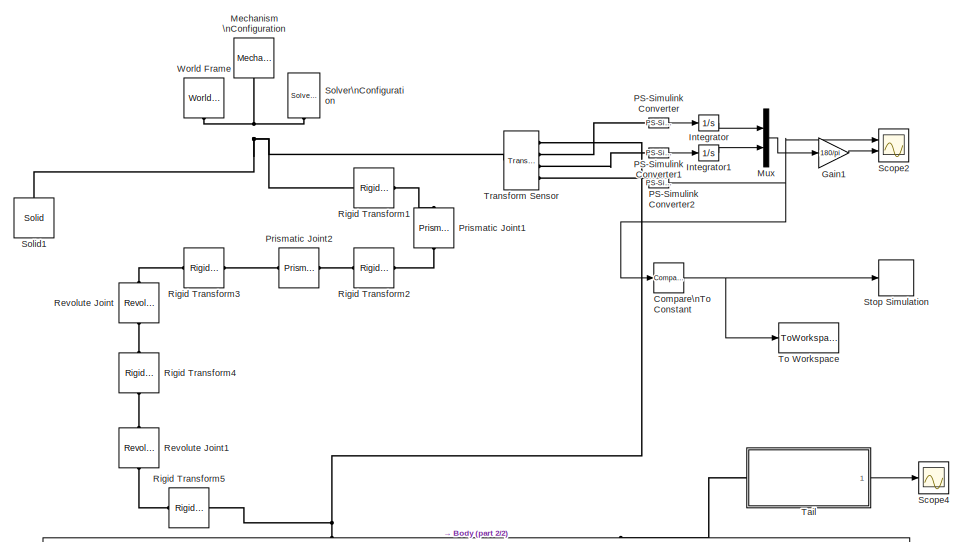
[diagram: root canvas - part 1/2, top center region]
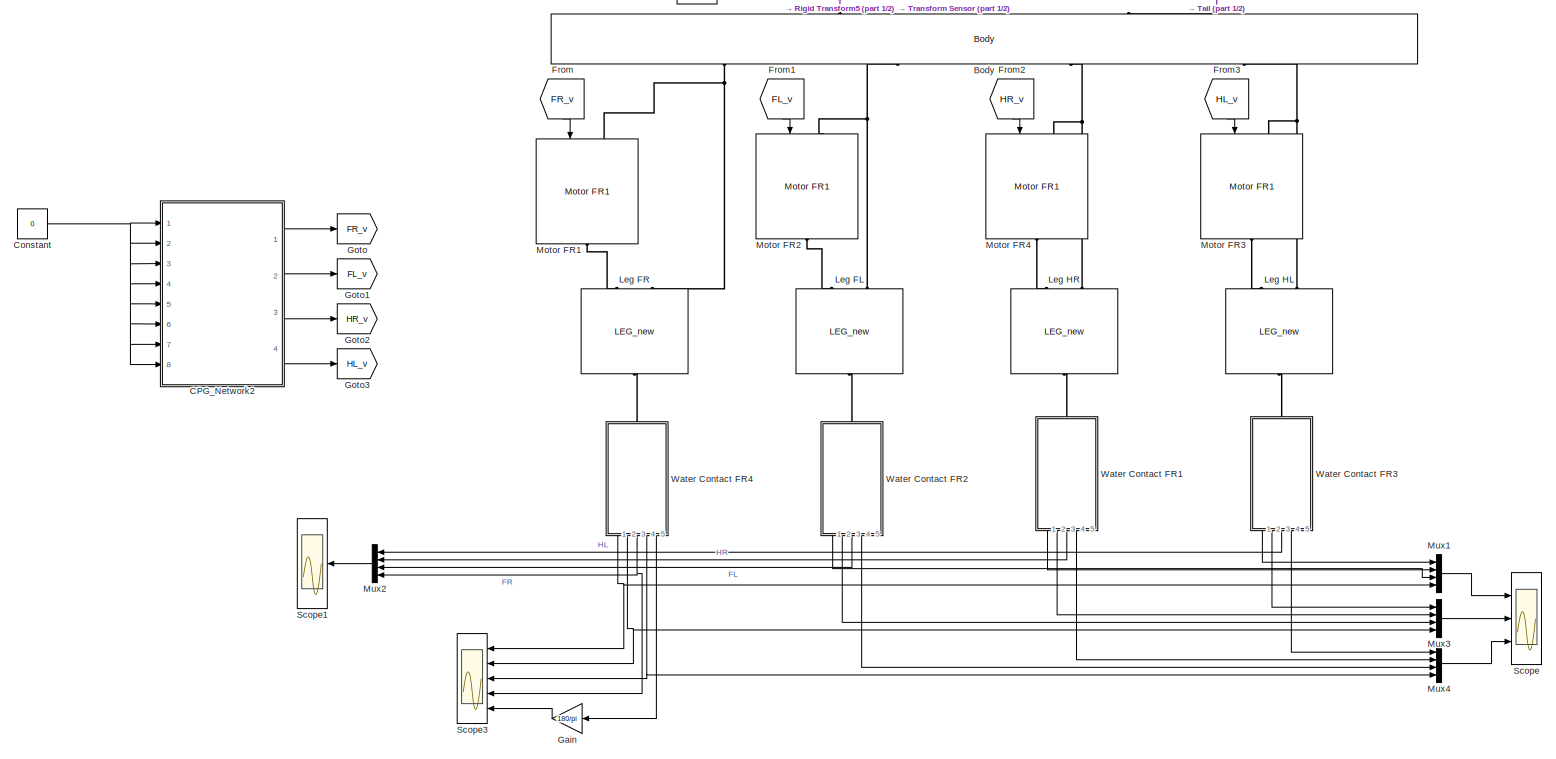
[diagram: root canvas - part 2/2, full width, bottom band]
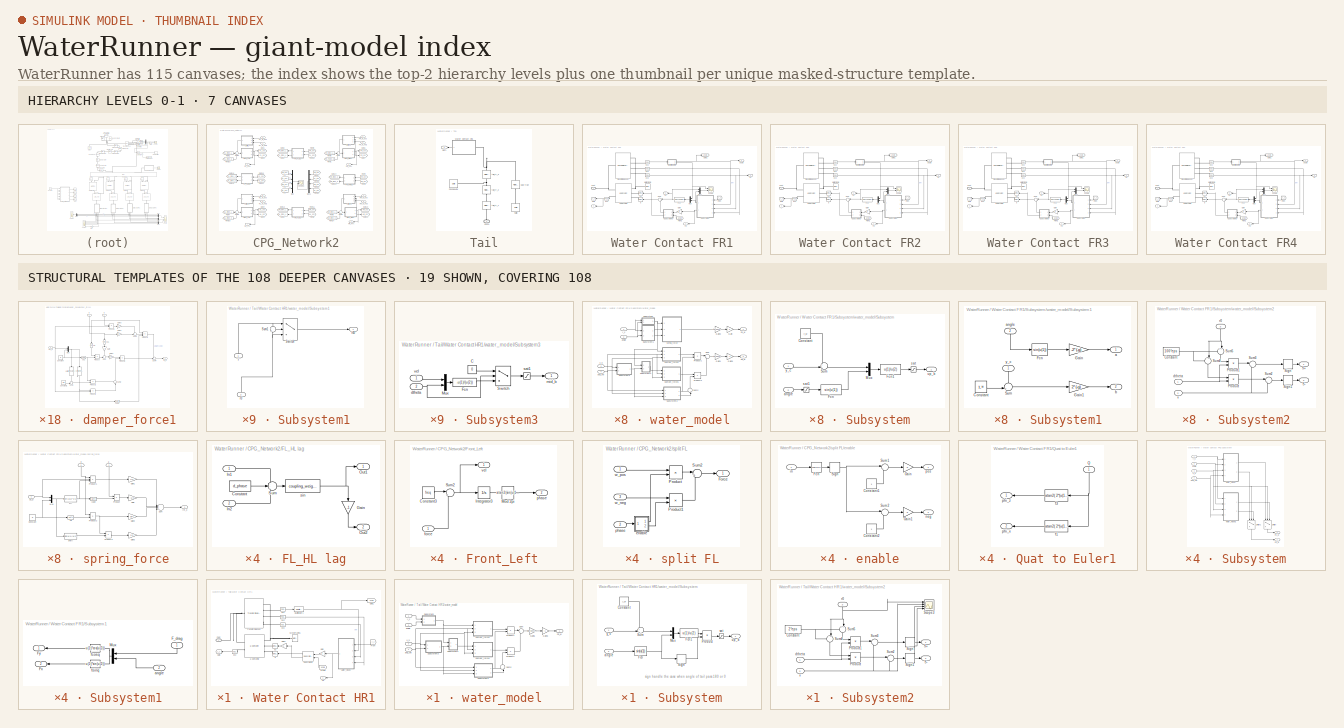
[diagram: thumbnail index - top-2 hierarchy levels (7 canvases) + 19 structural-template representatives of the remaining 108 canvases]
MODEL WaterRunner
KIND model
BLOCK [Reference] Body  REF=WaterRunner_lib_2/Body
  Ports = [0, 0, 0, 0, 0, 4, 2]
  SID = 1
  SourceBlock = WaterRunner_lib_2/Body
  SourceType = SubSystem
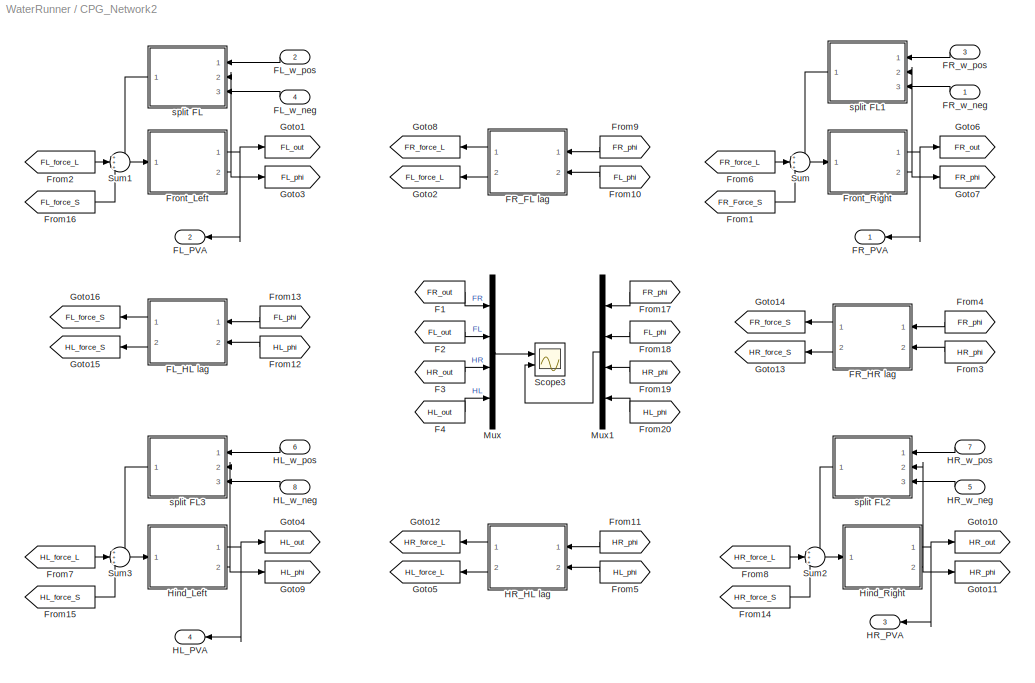
BLOCK [SubSystem] CPG_Network2
  FunctionWithSeparateData = off
  MaskHideContents = off
  MinAlgLoopOccurrences = off
  Opaque = off
  Ports = [8, 4]
  PropExecContextOutsideSubsystem = off
  RTWSystemCode = Auto
  RequestExecContextInheritance = off
  SID = 512
BLOCK [From] CPG_Network2/F1
  GotoTag = FR_out
  SID = 521
BLOCK [From] CPG_Network2/F2
  GotoTag = FL_out
  SID = 522
BLOCK [From] CPG_Network2/F3
  GotoTag = HR_out
  SID = 523
BLOCK [From] CPG_Network2/F4
  GotoTag = HL_out
  SID = 524
BLOCK [SubSystem] CPG_Network2/FL_HL lag
  FunctionWithSeparateData = off
  MaskHideContents = off
  MinAlgLoopOccurrences = off
  Opaque = off
  Ports = [2, 2]
  PropExecContextOutsideSubsystem = off
  RTWSystemCode = Auto
  RequestExecContextInheritance = off
  SID = 525
BLOCK [Constant] CPG_Network2/FL_HL lag/Constant
  SID = 528
  Value = d_phase
BLOCK [Gain] CPG_Network2/FL_HL lag/Gain
  Gain = -1
  OutDataTypeStr = Inherit: Inherit via internal rule
  ParamDataTypeStr = Inherit: Inherit via internal rule
  SID = 529
  SaturateOnIntegerOverflow = off
BLOCK [Inport] CPG_Network2/FL_HL lag/In1
  IconDisplay = Port number
  SID = 526
BLOCK [Inport] CPG_Network2/FL_HL lag/In2
  IconDisplay = Port number
  Port = 2
  SID = 527
BLOCK [Outport] CPG_Network2/FL_HL lag/Out1
  IconDisplay = Port number
  SID = 532
BLOCK [Outport] CPG_Network2/FL_HL lag/Out2
  IconDisplay = Port number
  Port = 2
  SID = 533
BLOCK [Sum] CPG_Network2/FL_HL lag/Sum
  IconShape = round
  InputSameDT = off
  Inputs = --+
  OutDataTypeStr = Inherit: Inherit via internal rule
  Ports = [3, 1]
  SID = 530
  SaturateOnIntegerOverflow = off
BLOCK [Fcn] CPG_Network2/FL_HL lag/sin
  Expr = coupling_weight*sin(u(1))
  SID = 531
BLOCK [Outport] CPG_Network2/FL_PVA
  IconDisplay = Port number
  Port = 2
  SID = 777
BLOCK [Inport] CPG_Network2/FL_w_neg
  IconDisplay = Port number
  Port = 4
  SID = 516
BLOCK [Inport] CPG_Network2/FL_w_pos
  IconDisplay = Port number
  Port = 2
  SID = 514
BLOCK [SubSystem] CPG_Network2/FR_FL lag
  FunctionWithSeparateData = off
  MaskHideContents = off
  MinAlgLoopOccurrences = off
  Opaque = off
  Ports = [2, 2]
  PropExecContextOutsideSubsystem = off
  RTWSystemCode = Auto
  RequestExecContextInheritance = off
  SID = 534
BLOCK [Constant] CPG_Network2/FR_FL lag/Constant
  SID = 537
  Value = d_phase
BLOCK [Gain] CPG_Network2/FR_FL lag/Gain
  Gain = -1
  OutDataTypeStr = Inherit: Inherit via internal rule
  ParamDataTypeStr = Inherit: Inherit via internal rule
  SID = 538
  SaturateOnIntegerOverflow = off
BLOCK [Inport] CPG_Network2/FR_FL lag/In1
  IconDisplay = Port number
  SID = 535
BLOCK [Inport] CPG_Network2/FR_FL lag/In2
  IconDisplay = Port number
  Port = 2
  SID = 536
BLOCK [Outport] CPG_Network2/FR_FL lag/Out1
  IconDisplay = Port number
  SID = 541
BLOCK [Outport] CPG_Network2/FR_FL lag/Out2
  IconDisplay = Port number
  Port = 2
  SID = 542
BLOCK [Sum] CPG_Network2/FR_FL lag/Sum
  IconShape = round
  InputSameDT = off
  Inputs = --+
  OutDataTypeStr = Inherit: Inherit via internal rule
  Ports = [3, 1]
  SID = 539
  SaturateOnIntegerOverflow = off
BLOCK [Fcn] CPG_Network2/FR_FL lag/sin
  Expr = coupling_weight*sin(u(1))
  SID = 540
BLOCK [SubSystem] CPG_Network2/FR_HR lag
  FunctionWithSeparateData = off
  MaskHideContents = off
  MinAlgLoopOccurrences = off
  Opaque = off
  Ports = [2, 2]
  PropExecContextOutsideSubsystem = off
  RTWSystemCode = Auto
  RequestExecContextInheritance = off
  SID = 543
BLOCK [Constant] CPG_Network2/FR_HR lag/Constant
  SID = 546
  Value = d_phase
BLOCK [Gain] CPG_Network2/FR_HR lag/Gain
  Gain = -1
  OutDataTypeStr = Inherit: Inherit via internal rule
  ParamDataTypeStr = Inherit: Inherit via internal rule
  SID = 547
  SaturateOnIntegerOverflow = off
BLOCK [Inport] CPG_Network2/FR_HR lag/In1
  IconDisplay = Port number
  SID = 544
BLOCK [Inport] CPG_Network2/FR_HR lag/In2
  IconDisplay = Port number
  Port = 2
  SID = 545
BLOCK [Outport] CPG_Network2/FR_HR lag/Out1
  IconDisplay = Port number
  SID = 550
BLOCK [Outport] CPG_Network2/FR_HR lag/Out2
  IconDisplay = Port number
  Port = 2
  SID = 551
BLOCK [Sum] CPG_Network2/FR_HR lag/Sum
  IconShape = round
  InputSameDT = off
  Inputs = --+
  OutDataTypeStr = Inherit: Inherit via internal rule
  Ports = [3, 1]
  SID = 548
  SaturateOnIntegerOverflow = off
BLOCK [Fcn] CPG_Network2/FR_HR lag/sin
  Expr = coupling_weight*sin(u(1))
  SID = 549
BLOCK [Outport] CPG_Network2/FR_PVA
  IconDisplay = Port number
  SID = 776
BLOCK [Inport] CPG_Network2/FR_w_neg
  IconDisplay = Port number
  SID = 513
BLOCK [Inport] CPG_Network2/FR_w_pos
  IconDisplay = Port number
  Port = 3
  SID = 515
BLOCK [From] CPG_Network2/From1
  GotoTag = FR_Force_S
  SID = 552
BLOCK [From] CPG_Network2/From10
  GotoTag = FL_phi
  SID = 553
BLOCK [From] CPG_Network2/From11
  GotoTag = HR_phi
  SID = 554
BLOCK [From] CPG_Network2/From12
  GotoTag = HL_phi
  SID = 555
BLOCK [From] CPG_Network2/From13
  GotoTag = FL_phi
  SID = 556
BLOCK [From] CPG_Network2/From14
  GotoTag = HR_force_S
  SID = 557
BLOCK [From] CPG_Network2/From15
  GotoTag = HL_force_S
  SID = 558
BLOCK [From] CPG_Network2/From16
  GotoTag = FL_force_S
  SID = 559
BLOCK [From] CPG_Network2/From17
  GotoTag = FR_phi
  SID = 882
BLOCK [From] CPG_Network2/From18
  GotoTag = FL_phi
  SID = 883
BLOCK [From] CPG_Network2/From19
  GotoTag = HR_phi
  SID = 884
BLOCK [From] CPG_Network2/From2
  GotoTag = FL_force_L
  SID = 560
BLOCK [From] CPG_Network2/From20
  GotoTag = HL_phi
  SID = 885
BLOCK [From] CPG_Network2/From3
  GotoTag = HR_phi
  SID = 561
BLOCK [From] CPG_Network2/From4
  GotoTag = FR_phi
  SID = 562
BLOCK [From] CPG_Network2/From5
  GotoTag = HL_phi
  SID = 563
BLOCK [From] CPG_Network2/From6
  GotoTag = FR_force_L
  SID = 564
BLOCK [From] CPG_Network2/From7
  GotoTag = HL_force_L
  SID = 565
BLOCK [From] CPG_Network2/From8
  GotoTag = HR_force_L
  SID = 566
BLOCK [From] CPG_Network2/From9
  GotoTag = FR_phi
  SID = 567
BLOCK [SubSystem] CPG_Network2/Front_Left
  FunctionWithSeparateData = off
  MaskHideContents = off
  MinAlgLoopOccurrences = off
  Opaque = off
  Ports = [1, 2]
  PropExecContextOutsideSubsystem = off
  RTWSystemCode = Auto
  RequestExecContextInheritance = off
  SID = 568
BLOCK [Constant] CPG_Network2/Front_Left/Constant3
  SID = 572
  Value = freq
BLOCK [Integrator] CPG_Network2/Front_Left/Integrator3
  InitialCondition = init_phi + 0.001*rand
  Ports = [1, 1]
  SID = 578
BLOCK [Fcn] CPG_Network2/Front_Left/Mod 2pi
  Expr = atan2(sin(u(1)-pi),cos(u(1)-pi))+pi
  SID = 579
BLOCK [Sum] CPG_Network2/Front_Left/Sum2
  IconShape = round
  InputSameDT = off
  Inputs = |++
  OutDataTypeStr = Inherit: Inherit via internal rule
  Ports = [2, 1]
  SID = 584
  SaturateOnIntegerOverflow = off
BLOCK [Inport] CPG_Network2/Front_Left/force
  IconDisplay = Port number
  SID = 569
BLOCK [Outport] CPG_Network2/Front_Left/phase
  IconDisplay = Port number
  Port = 2
  SID = 589
BLOCK [Outport] CPG_Network2/Front_Left/vel
  IconDisplay = Port number
  SID = 588
BLOCK [SubSystem] CPG_Network2/Front_Right
  FunctionWithSeparateData = off
  MaskHideContents = off
  MinAlgLoopOccurrences = off
  Opaque = off
  Ports = [1, 2]
  PropExecContextOutsideSubsystem = off
  RTWSystemCode = Auto
  RequestExecContextInheritance = off
  SID = 780
BLOCK [Constant] CPG_Network2/Front_Right/Constant3
  SID = 782
  Value = freq
BLOCK [Integrator] CPG_Network2/Front_Right/Integrator3
  InitialCondition = init_phi + 0.001*rand
  Ports = [1, 1]
  SID = 783
BLOCK [Fcn] CPG_Network2/Front_Right/Mod 2pi
  Expr = atan2(sin(u(1)-pi),cos(u(1)-pi))+pi
  SID = 784
BLOCK [Sum] CPG_Network2/Front_Right/Sum2
  IconShape = round
  InputSameDT = off
  Inputs = |++
  OutDataTypeStr = Inherit: Inherit via internal rule
  Ports = [2, 1]
  SID = 785
  SaturateOnIntegerOverflow = off
BLOCK [Inport] CPG_Network2/Front_Right/force
  IconDisplay = Port number
  SID = 781
BLOCK [Outport] CPG_Network2/Front_Right/phase
  IconDisplay = Port number
  Port = 2
  SID = 787
BLOCK [Outport] CPG_Network2/Front_Right/vel
  IconDisplay = Port number
  SID = 786
BLOCK [Goto] CPG_Network2/Goto1
  GotoTag = FL_out
  SID = 612
BLOCK [Goto] CPG_Network2/Goto10
  GotoTag = HR_out
  SID = 613
BLOCK [Goto] CPG_Network2/Goto11
  GotoTag = HR_phi
  SID = 614
BLOCK [Goto] CPG_Network2/Goto12
  GotoTag = HR_force_L
  SID = 615
BLOCK [Goto] CPG_Network2/Goto13
  GotoTag = HR_force_S
  SID = 616
BLOCK [Goto] CPG_Network2/Goto14
  GotoTag = FR_force_S
  SID = 617
BLOCK [Goto] CPG_Network2/Goto15
  GotoTag = HL_force_S
  SID = 618
BLOCK [Goto] CPG_Network2/Goto16
  GotoTag = FL_force_S
  SID = 619
BLOCK [Goto] CPG_Network2/Goto2
  GotoTag = FL_force_L
  SID = 620
BLOCK [Goto] CPG_Network2/Goto3
  GotoTag = FL_phi
  SID = 621
BLOCK [Goto] CPG_Network2/Goto4
  GotoTag = HL_out
  SID = 622
BLOCK [Goto] CPG_Network2/Goto5
  GotoTag = HL_force_L
  SID = 623
BLOCK [Goto] CPG_Network2/Goto6
  GotoTag = FR_out
  SID = 624
BLOCK [Goto] CPG_Network2/Goto7
  GotoTag = FR_phi
  SID = 625
BLOCK [Goto] CPG_Network2/Goto8
  GotoTag = FR_force_L
  SID = 626
BLOCK [Goto] CPG_Network2/Goto9
  GotoTag = HL_phi
  SID = 627
BLOCK [Outport] CPG_Network2/HL_PVA
  IconDisplay = Port number
  Port = 4
  SID = 779
BLOCK [Inport] CPG_Network2/HL_w_neg
  IconDisplay = Port number
  Port = 8
  SID = 520
BLOCK [Inport] CPG_Network2/HL_w_pos
  IconDisplay = Port number
  Port = 6
  SID = 518
BLOCK [SubSystem] CPG_Network2/HR_HL lag
  FunctionWithSeparateData = off
  MaskHideContents = off
  MinAlgLoopOccurrences = off
  Opaque = off
  Ports = [2, 2]
  PropExecContextOutsideSubsystem = off
  RTWSystemCode = Auto
  RequestExecContextInheritance = off
  SID = 628
BLOCK [Constant] CPG_Network2/HR_HL lag/Constant
  SID = 631
  Value = d_phase
BLOCK [Gain] CPG_Network2/HR_HL lag/Gain
  Gain = -1
  OutDataTypeStr = Inherit: Inherit via internal rule
  ParamDataTypeStr = Inherit: Inherit via internal rule
  SID = 632
  SaturateOnIntegerOverflow = off
BLOCK [Inport] CPG_Network2/HR_HL lag/In1
  IconDisplay = Port number
  SID = 629
BLOCK [Inport] CPG_Network2/HR_HL lag/In2
  IconDisplay = Port number
  Port = 2
  SID = 630
BLOCK [Outport] CPG_Network2/HR_HL lag/Out1
  IconDisplay = Port number
  SID = 635
BLOCK [Outport] CPG_Network2/HR_HL lag/Out2
  IconDisplay = Port number
  Port = 2
  SID = 636
BLOCK [Sum] CPG_Network2/HR_HL lag/Sum
  IconShape = round
  InputSameDT = off
  Inputs = --+
  OutDataTypeStr = Inherit: Inherit via internal rule
  Ports = [3, 1]
  SID = 633
  SaturateOnIntegerOverflow = off
BLOCK [Fcn] CPG_Network2/HR_HL lag/sin
  Expr = coupling_weight*sin(u(1))
  SID = 634
BLOCK [Outport] CPG_Network2/HR_PVA
  IconDisplay = Port number
  Port = 3
  SID = 778
BLOCK [Inport] CPG_Network2/HR_w_neg
  IconDisplay = Port number
  Port = 5
  SID = 517
BLOCK [Inport] CPG_Network2/HR_w_pos
  IconDisplay = Port number
  Port = 7
  SID = 519
BLOCK [SubSystem] CPG_Network2/Hind_Left
  FunctionWithSeparateData = off
  MaskHideContents = off
  MinAlgLoopOccurrences = off
  Opaque = off
  Ports = [1, 2]
  PropExecContextOutsideSubsystem = off
  RTWSystemCode = Auto
  RequestExecContextInheritance = off
  SID = 812
BLOCK [Constant] CPG_Network2/Hind_Left/Constant3
  SID = 814
  Value = freq
BLOCK [Integrator] CPG_Network2/Hind_Left/Integrator3
  InitialCondition = init_phi + 0.001*rand
  Ports = [1, 1]
  SID = 815
BLOCK [Fcn] CPG_Network2/Hind_Left/Mod 2pi
  Expr = atan2(sin(u(1)-pi),cos(u(1)-pi))+pi
  SID = 816
BLOCK [Sum] CPG_Network2/Hind_Left/Sum2
  IconShape = round
  InputSameDT = off
  Inputs = |++
  OutDataTypeStr = Inherit: Inherit via internal rule
  Ports = [2, 1]
  SID = 817
  SaturateOnIntegerOverflow = off
BLOCK [Inport] CPG_Network2/Hind_Left/force
  IconDisplay = Port number
  SID = 813
BLOCK [Outport] CPG_Network2/Hind_Left/phase
  IconDisplay = Port number
  Port = 2
  SID = 819
BLOCK [Outport] CPG_Network2/Hind_Left/vel
  IconDisplay = Port number
  SID = 818
BLOCK [SubSystem] CPG_Network2/Hind_Right
  FunctionWithSeparateData = off
  MaskHideContents = off
  MinAlgLoopOccurrences = off
  Opaque = off
  Ports = [1, 2]
  PropExecContextOutsideSubsystem = off
  RTWSystemCode = Auto
  RequestExecContextInheritance = off
  SID = 796
BLOCK [Constant] CPG_Network2/Hind_Right/Constant3
  SID = 798
  Value = freq
BLOCK [Integrator] CPG_Network2/Hind_Right/Integrator3
  InitialCondition = init_phi + 0.001*rand
  Ports = [1, 1]
  SID = 799
BLOCK [Fcn] CPG_Network2/Hind_Right/Mod 2pi
  Expr = atan2(sin(u(1)-pi),cos(u(1)-pi))+pi
  SID = 800
BLOCK [Sum] CPG_Network2/Hind_Right/Sum2
  IconShape = round
  InputSameDT = off
  Inputs = |++
  OutDataTypeStr = Inherit: Inherit via internal rule
  Ports = [2, 1]
  SID = 801
  SaturateOnIntegerOverflow = off
BLOCK [Inport] CPG_Network2/Hind_Right/force
  IconDisplay = Port number
  SID = 797
BLOCK [Outport] CPG_Network2/Hind_Right/phase
  IconDisplay = Port number
  Port = 2
  SID = 803
BLOCK [Outport] CPG_Network2/Hind_Right/vel
  IconDisplay = Port number
  SID = 802
BLOCK [Mux] CPG_Network2/Mux
  DisplayOption = bar
  Ports = [4, 1]
  SID = 681
BLOCK [Mux] CPG_Network2/Mux1
  DisplayOption = bar
  Ports = [4, 1]
  SID = 881
BLOCK [Scope] CPG_Network2/Scope3
  DataFormat = StructureWithTime
  Floating = off
  LegendLocations = 0.82521      0.8619     0.04625    0.083025\n0.92271     0.40074    0.058125    0.083025
  LimitDataPoints = off
  NumInputPorts = 2
  Ports = [2]
  SID = 683
  SampleTime = 0
  SaveName = Output
  SaveToWorkspace = on
  ShowLegends = on
  TimeRange = 5
  YMax = 22.34~6.5
  YMin = 22.11~0
  ZoomMode = xonly
BLOCK [Sum] CPG_Network2/Sum
  IconShape = round
  InputSameDT = off
  Inputs = +++
  OutDataTypeStr = Inherit: Inherit via internal rule
  Ports = [3, 1]
  SID = 688
  SaturateOnIntegerOverflow = off
BLOCK [Sum] CPG_Network2/Sum1
  IconShape = round
  InputSameDT = off
  Inputs = +++
  OutDataTypeStr = Inherit: Inherit via internal rule
  Ports = [3, 1]
  SID = 689
  SaturateOnIntegerOverflow = off
BLOCK [Sum] CPG_Network2/Sum2
  IconShape = round
  InputSameDT = off
  Inputs = +++
  OutDataTypeStr = Inherit: Inherit via internal rule
  Ports = [3, 1]
  SID = 690
  SaturateOnIntegerOverflow = off
BLOCK [Sum] CPG_Network2/Sum3
  IconShape = round
  InputSameDT = off
  Inputs = +++
  OutDataTypeStr = Inherit: Inherit via internal rule
  Ports = [3, 1]
  SID = 691
  SaturateOnIntegerOverflow = off
BLOCK [SubSystem] CPG_Network2/split FL
  FunctionWithSeparateData = off
  MaskHideContents = off
  MinAlgLoopOccurrences = off
  Opaque = off
  Ports = [3, 1]
  PropExecContextOutsideSubsystem = off
  RTWSystemCode = Auto
  RequestExecContextInheritance = off
  SID = 692
BLOCK [Outport] CPG_Network2/split FL/Force
  IconDisplay = Port number
  SID = 712
BLOCK [Product] CPG_Network2/split FL/Product
  InputSameDT = off
  OutDataTypeStr = Inherit: Inherit via internal rule
  Ports = [2, 1]
  SID = 696
  SaturateOnIntegerOverflow = off
BLOCK [Product] CPG_Network2/split FL/Product1
  InputSameDT = off
  OutDataTypeStr = Inherit: Inherit via internal rule
  Ports = [2, 1]
  SID = 697
  SaturateOnIntegerOverflow = off
BLOCK [Sum] CPG_Network2/split FL/Sum2
  IconShape = round
  InputSameDT = off
  Inputs = |++
  OutDataTypeStr = Inherit: Inherit via internal rule
  Ports = [2, 1]
  SID = 698
  SaturateOnIntegerOverflow = off
BLOCK [SubSystem] CPG_Network2/split FL/enable
  FunctionWithSeparateData = off
  MaskHideContents = off
  MinAlgLoopOccurrences = off
  Opaque = off
  Ports = [1, 2]
  PropExecContextOutsideSubsystem = off
  RTWSystemCode = Auto
  RequestExecContextInheritance = off
  SID = 699
BLOCK [Constant] CPG_Network2/split FL/enable/Constant1
  SID = 701
BLOCK [Constant] CPG_Network2/split FL/enable/Constant2
  SID = 702
BLOCK [Fcn] CPG_Network2/split FL/enable/Fcn
  Expr = cos(u(1))
  SID = 820
BLOCK [Gain] CPG_Network2/split FL/enable/Gain
  Gain = .5
  OutDataTypeStr = Inherit: Inherit via internal rule
  ParamDataTypeStr = Inherit: Inherit via internal rule
  SID = 704
  SaturateOnIntegerOverflow = off
BLOCK [Gain] CPG_Network2/split FL/enable/Gain1
  Gain = .5
  OutDataTypeStr = Inherit: Inherit via internal rule
  ParamDataTypeStr = Inherit: Inherit via internal rule
  SID = 705
  SaturateOnIntegerOverflow = off
BLOCK [Signum] CPG_Network2/split FL/enable/Sign
  SID = 706
BLOCK [Sum] CPG_Network2/split FL/enable/Sum1
  IconShape = round
  InputSameDT = off
  Inputs = |++
  OutDataTypeStr = Inherit: Inherit via internal rule
  Ports = [2, 1]
  SID = 707
  SaturateOnIntegerOverflow = off
BLOCK [Sum] CPG_Network2/split FL/enable/Sum2
  IconShape = round
  InputSameDT = off
  Inputs = |-+
  OutDataTypeStr = Inherit: Inherit via internal rule
  Ports = [2, 1]
  SID = 708
  SaturateOnIntegerOverflow = off
BLOCK [Inport] CPG_Network2/split FL/enable/in
  IconDisplay = Port number
  SID = 700
BLOCK [Outport] CPG_Network2/split FL/enable/neg
  IconDisplay = Port number
  Port = 2
  SID = 710
BLOCK [Outport] CPG_Network2/split FL/enable/pos
  IconDisplay = Port number
  SID = 709
BLOCK [Inport] CPG_Network2/split FL/phase
  IconDisplay = Port number
  Port = 2
  SID = 694
BLOCK [Inport] CPG_Network2/split FL/w_neg
  IconDisplay = Port number
  Port = 3
  SID = 695
BLOCK [Inport] CPG_Network2/split FL/w_pos
  IconDisplay = Port number
  SID = 693
BLOCK [SubSystem] CPG_Network2/split FL1
  FunctionWithSeparateData = off
  MaskHideContents = off
  MinAlgLoopOccurrences = off
  Opaque = off
  Ports = [3, 1]
  PropExecContextOutsideSubsystem = off
  RTWSystemCode = Auto
  RequestExecContextInheritance = off
  SID = 821
BLOCK [Outport] CPG_Network2/split FL1/Force
  IconDisplay = Port number
  SID = 840
BLOCK [Product] CPG_Network2/split FL1/Product
  InputSameDT = off
  OutDataTypeStr = Inherit: Inherit via internal rule
  Ports = [2, 1]
  SID = 825
  SaturateOnIntegerOverflow = off
BLOCK [Product] CPG_Network2/split FL1/Product1
  InputSameDT = off
  OutDataTypeStr = Inherit: Inherit via internal rule
  Ports = [2, 1]
  SID = 826
  SaturateOnIntegerOverflow = off
BLOCK [Sum] CPG_Network2/split FL1/Sum2
  IconShape = round
  InputSameDT = off
  Inputs = |++
  OutDataTypeStr = Inherit: Inherit via internal rule
  Ports = [2, 1]
  SID = 827
  SaturateOnIntegerOverflow = off
BLOCK [SubSystem] CPG_Network2/split FL1/enable
  FunctionWithSeparateData = off
  MaskHideContents = off
  MinAlgLoopOccurrences = off
  Opaque = off
  Ports = [1, 2]
  PropExecContextOutsideSubsystem = off
  RTWSystemCode = Auto
  RequestExecContextInheritance = off
  SID = 828
BLOCK [Constant] CPG_Network2/split FL1/enable/Constant1
  SID = 830
BLOCK [Constant] CPG_Network2/split FL1/enable/Constant2
  SID = 831
BLOCK [Fcn] CPG_Network2/split FL1/enable/Fcn
  Expr = cos(u(1))
  SID = 832
BLOCK [Gain] CPG_Network2/split FL1/enable/Gain
  Gain = .5
  OutDataTypeStr = Inherit: Inherit via internal rule
  ParamDataTypeStr = Inherit: Inherit via internal rule
  SID = 833
  SaturateOnIntegerOverflow = off
BLOCK [Gain] CPG_Network2/split FL1/enable/Gain1
  Gain = .5
  OutDataTypeStr = Inherit: Inherit via internal rule
  ParamDataTypeStr = Inherit: Inherit via internal rule
  SID = 834
  SaturateOnIntegerOverflow = off
BLOCK [Signum] CPG_Network2/split FL1/enable/Sign
  SID = 835
BLOCK [Sum] CPG_Network2/split FL1/enable/Sum1
  IconShape = round
  InputSameDT = off
  Inputs = |++
  OutDataTypeStr = Inherit: Inherit via internal rule
  Ports = [2, 1]
  SID = 836
  SaturateOnIntegerOverflow = off
BLOCK [Sum] CPG_Network2/split FL1/enable/Sum2
  IconShape = round
  InputSameDT = off
  Inputs = |-+
  OutDataTypeStr = Inherit: Inherit via internal rule
  Ports = [2, 1]
  SID = 837
  SaturateOnIntegerOverflow = off
BLOCK [Inport] CPG_Network2/split FL1/enable/in
  IconDisplay = Port number
  SID = 829
BLOCK [Outport] CPG_Network2/split FL1/enable/neg
  IconDisplay = Port number
  Port = 2
  SID = 839
BLOCK [Outport] CPG_Network2/split FL1/enable/pos
  IconDisplay = Port number
  SID = 838
BLOCK [Inport] CPG_Network2/split FL1/phase
  IconDisplay = Port number
  Port = 2
  SID = 823
BLOCK [Inport] CPG_Network2/split FL1/w_neg
  IconDisplay = Port number
  Port = 3
  SID = 824
BLOCK [Inport] CPG_Network2/split FL1/w_pos
  IconDisplay = Port number
  SID = 822
BLOCK [SubSystem] CPG_Network2/split FL2
  FunctionWithSeparateData = off
  MaskHideContents = off
  MinAlgLoopOccurrences = off
  Opaque = off
  Ports = [3, 1]
  PropExecContextOutsideSubsystem = off
  RTWSystemCode = Auto
  RequestExecContextInheritance = off
  SID = 841
BLOCK [Outport] CPG_Network2/split FL2/Force
  IconDisplay = Port number
  SID = 860
BLOCK [Product] CPG_Network2/split FL2/Product
  InputSameDT = off
  OutDataTypeStr = Inherit: Inherit via internal rule
  Ports = [2, 1]
  SID = 845
  SaturateOnIntegerOverflow = off
BLOCK [Product] CPG_Network2/split FL2/Product1
  InputSameDT = off
  OutDataTypeStr = Inherit: Inherit via internal rule
  Ports = [2, 1]
  SID = 846
  SaturateOnIntegerOverflow = off
BLOCK [Sum] CPG_Network2/split FL2/Sum2
  IconShape = round
  InputSameDT = off
  Inputs = |++
  OutDataTypeStr = Inherit: Inherit via internal rule
  Ports = [2, 1]
  SID = 847
  SaturateOnIntegerOverflow = off
BLOCK [SubSystem] CPG_Network2/split FL2/enable
  FunctionWithSeparateData = off
  MaskHideContents = off
  MinAlgLoopOccurrences = off
  Opaque = off
  Ports = [1, 2]
  PropExecContextOutsideSubsystem = off
  RTWSystemCode = Auto
  RequestExecContextInheritance = off
  SID = 848
BLOCK [Constant] CPG_Network2/split FL2/enable/Constant1
  SID = 850
BLOCK [Constant] CPG_Network2/split FL2/enable/Constant2
  SID = 851
BLOCK [Fcn] CPG_Network2/split FL2/enable/Fcn
  Expr = cos(u(1))
  SID = 852
BLOCK [Gain] CPG_Network2/split FL2/enable/Gain
  Gain = .5
  OutDataTypeStr = Inherit: Inherit via internal rule
  ParamDataTypeStr = Inherit: Inherit via internal rule
  SID = 853
  SaturateOnIntegerOverflow = off
BLOCK [Gain] CPG_Network2/split FL2/enable/Gain1
  Gain = .5
  OutDataTypeStr = Inherit: Inherit via internal rule
  ParamDataTypeStr = Inherit: Inherit via internal rule
  SID = 854
  SaturateOnIntegerOverflow = off
BLOCK [Signum] CPG_Network2/split FL2/enable/Sign
  SID = 855
BLOCK [Sum] CPG_Network2/split FL2/enable/Sum1
  IconShape = round
  InputSameDT = off
  Inputs = |++
  OutDataTypeStr = Inherit: Inherit via internal rule
  Ports = [2, 1]
  SID = 856
  SaturateOnIntegerOverflow = off
BLOCK [Sum] CPG_Network2/split FL2/enable/Sum2
  IconShape = round
  InputSameDT = off
  Inputs = |-+
  OutDataTypeStr = Inherit: Inherit via internal rule
  Ports = [2, 1]
  SID = 857
  SaturateOnIntegerOverflow = off
BLOCK [Inport] CPG_Network2/split FL2/enable/in
  IconDisplay = Port number
  SID = 849
BLOCK [Outport] CPG_Network2/split FL2/enable/neg
  IconDisplay = Port number
  Port = 2
  SID = 859
BLOCK [Outport] CPG_Network2/split FL2/enable/pos
  IconDisplay = Port number
  SID = 858
BLOCK [Inport] CPG_Network2/split FL2/phase
  IconDisplay = Port number
  Port = 2
  SID = 843
BLOCK [Inport] CPG_Network2/split FL2/w_neg
  IconDisplay = Port number
  Port = 3
  SID = 844
BLOCK [Inport] CPG_Network2/split FL2/w_pos
  IconDisplay = Port number
  SID = 842
BLOCK [SubSystem] CPG_Network2/split FL3
  FunctionWithSeparateData = off
  MaskHideContents = off
  MinAlgLoopOccurrences = off
  Opaque = off
  Ports = [3, 1]
  PropExecContextOutsideSubsystem = off
  RTWSystemCode = Auto
  RequestExecContextInheritance = off
  SID = 861
BLOCK [Outport] CPG_Network2/split FL3/Force
  IconDisplay = Port number
  SID = 880
BLOCK [Product] CPG_Network2/split FL3/Product
  InputSameDT = off
  OutDataTypeStr = Inherit: Inherit via internal rule
  Ports = [2, 1]
  SID = 865
  SaturateOnIntegerOverflow = off
BLOCK [Product] CPG_Network2/split FL3/Product1
  InputSameDT = off
  OutDataTypeStr = Inherit: Inherit via internal rule
  Ports = [2, 1]
  SID = 866
  SaturateOnIntegerOverflow = off
BLOCK [Sum] CPG_Network2/split FL3/Sum2
  IconShape = round
  InputSameDT = off
  Inputs = |++
  OutDataTypeStr = Inherit: Inherit via internal rule
  Ports = [2, 1]
  SID = 867
  SaturateOnIntegerOverflow = off
BLOCK [SubSystem] CPG_Network2/split FL3/enable
  FunctionWithSeparateData = off
  MaskHideContents = off
  MinAlgLoopOccurrences = off
  Opaque = off
  Ports = [1, 2]
  PropExecContextOutsideSubsystem = off
  RTWSystemCode = Auto
  RequestExecContextInheritance = off
  SID = 868
BLOCK [Constant] CPG_Network2/split FL3/enable/Constant1
  SID = 870
BLOCK [Constant] CPG_Network2/split FL3/enable/Constant2
  SID = 871
BLOCK [Fcn] CPG_Network2/split FL3/enable/Fcn
  Expr = cos(u(1))
  SID = 872
BLOCK [Gain] CPG_Network2/split FL3/enable/Gain
  Gain = .5
  OutDataTypeStr = Inherit: Inherit via internal rule
  ParamDataTypeStr = Inherit: Inherit via internal rule
  SID = 873
  SaturateOnIntegerOverflow = off
BLOCK [Gain] CPG_Network2/split FL3/enable/Gain1
  Gain = .5
  OutDataTypeStr = Inherit: Inherit via internal rule
  ParamDataTypeStr = Inherit: Inherit via internal rule
  SID = 874
  SaturateOnIntegerOverflow = off
BLOCK [Signum] CPG_Network2/split FL3/enable/Sign
  SID = 875
BLOCK [Sum] CPG_Network2/split FL3/enable/Sum1
  IconShape = round
  InputSameDT = off
  Inputs = |++
  OutDataTypeStr = Inherit: Inherit via internal rule
  Ports = [2, 1]
  SID = 876
  SaturateOnIntegerOverflow = off
BLOCK [Sum] CPG_Network2/split FL3/enable/Sum2
  IconShape = round
  InputSameDT = off
  Inputs = |-+
  OutDataTypeStr = Inherit: Inherit via internal rule
  Ports = [2, 1]
  SID = 877
  SaturateOnIntegerOverflow = off
BLOCK [Inport] CPG_Network2/split FL3/enable/in
  IconDisplay = Port number
  SID = 869
BLOCK [Outport] CPG_Network2/split FL3/enable/neg
  IconDisplay = Port number
  Port = 2
  SID = 879
BLOCK [Outport] CPG_Network2/split FL3/enable/pos
  IconDisplay = Port number
  SID = 878
BLOCK [Inport] CPG_Network2/split FL3/phase
  IconDisplay = Port number
  Port = 2
  SID = 863
BLOCK [Inport] CPG_Network2/split FL3/w_neg
  IconDisplay = Port number
  Port = 3
  SID = 864
BLOCK [Inport] CPG_Network2/split FL3/w_pos
  IconDisplay = Port number
  SID = 862
BLOCK [Reference] Compare\nTo Constant  REF=simulink/Logic and Bit\nOperations/Compare\nTo Constant
  OutDataTypeStr = boolean
  Ports = [1, 1]
  SID = 5989
  SourceBlock = simulink/Logic and Bit\nOperations/Compare\nTo Constant
  SourceType = Compare To Constant
  ZeroCross = on
  const = -.03
  relop = <
BLOCK [Constant] Constant
  SID = 5618
  Value = 0
BLOCK [From] From
  GotoTag = FR_v
  SID = 5614
BLOCK [From] From1
  GotoTag = FL_v
  SID = 5615
BLOCK [From] From2
  GotoTag = HR_v
  SID = 5616
BLOCK [From] From3
  GotoTag = HL_v
  SID = 5617
BLOCK [Gain] Gain
  Gain = 180/pi
  OutDataTypeStr = Inherit: Inherit via internal rule
  ParamDataTypeStr = Inherit: Inherit via internal rule
  SID = 5950
  SaturateOnIntegerOverflow = off
BLOCK [Gain] Gain1
  Gain = 180/pi
  OutDataTypeStr = Inherit: Inherit via internal rule
  ParamDataTypeStr = Inherit: Inherit via internal rule
  SID = 6137
  SaturateOnIntegerOverflow = off
BLOCK [Goto] Goto
  GotoTag = FR_v
  SID = 887
BLOCK [Goto] Goto1
  GotoTag = FL_v
  SID = 888
BLOCK [Goto] Goto2
  GotoTag = HR_v
  SID = 889
BLOCK [Goto] Goto3
  GotoTag = HL_v
  SID = 890
BLOCK [Integrator] Integrator
  Ports = [1, 1]
  SID = 5986
BLOCK [Integrator] Integrator1
  Ports = [1, 1]
  SID = 5987
BLOCK [Reference] Leg FL  REF=WaterRunner_lib_2/LEG_new
  Ports = [0, 0, 0, 0, 0, 2, 1]
  SID = 237
  SourceBlock = WaterRunner_lib_2/LEG_new
  init_pas_ang = 0
  p_CF_density = CF_density
  p_L1 = L1
  p_L2 = L2
  p_L3 = L3
  p_L4 = L4
  p_L5 = L5
  p_bar_h = bar_h
  p_bar_w = bar_w
BLOCK [Reference] Leg FR  REF=WaterRunner_lib_2/LEG_new
  Ports = [0, 0, 0, 0, 0, 2, 1]
  SID = 16
  SourceBlock = WaterRunner_lib_2/LEG_new
  init_pas_ang = 0
  p_CF_density = CF_density
  p_L1 = L1
  p_L2 = L2
  p_L3 = L3
  p_L4 = L4
  p_L5 = L5
  p_bar_h = bar_h
  p_bar_w = bar_w
BLOCK [Reference] Leg HL  REF=WaterRunner_lib_2/LEG_new
  Ports = [0, 0, 0, 0, 0, 2, 1]
  SID = 233
  SourceBlock = WaterRunner_lib_2/LEG_new
  init_pas_ang = 0
  p_CF_density = CF_density
  p_L1 = L1
  p_L2 = L2
  p_L3 = L3
  p_L4 = L4
  p_L5 = L5
  p_bar_h = bar_h
  p_bar_w = bar_w
BLOCK [Reference] Leg HR  REF=WaterRunner_lib_2/LEG_new
  Ports = [0, 0, 0, 0, 0, 2, 1]
  SID = 239
  SourceBlock = WaterRunner_lib_2/LEG_new
  init_pas_ang = 0
  p_CF_density = CF_density
  p_L1 = L1
  p_L2 = L2
  p_L3 = L3
  p_L4 = L4
  p_L5 = L5
  p_bar_h = bar_h
  p_bar_w = bar_w
BLOCK [Reference] Mechanism \nConfiguration  REF=sm_lib/Utilities/Mechanism \nConfiguration
  AllowGravitySignal = off
  BlockFunction = simmechanics.library.utilities.mechanism_configuration
  ClassName = MechanismConfiguration
  GravityUnits = m/s^2
  GravityVector = [0 -9.81 0]
  LinearizationDelta = 0.001
  Ports = [0, 0, 0, 0, 0, 0, 1]
  SID = 8
  SourceBlock = sm_lib/Utilities/Mechanism \nConfiguration
  SourceType = Mechanism Configuration
BLOCK [Reference] Motor FR1  REF=WaterRunner_lib_2/Motor FR1
  Ports = [1, 0, 0, 0, 0, 1, 1]
  SID = 4622
  SourceBlock = WaterRunner_lib_2/Motor FR1
  init_ang = 180
BLOCK [Reference] Motor FR2  REF=WaterRunner_lib_2/Motor FR1
  Ports = [1, 0, 0, 0, 0, 1, 1]
  SID = 4623
  SourceBlock = WaterRunner_lib_2/Motor FR1
  init_ang = 0
BLOCK [Reference] Motor FR3  REF=WaterRunner_lib_2/Motor FR1
  Ports = [1, 0, 0, 0, 0, 1, 1]
  SID = 5158
  SourceBlock = WaterRunner_lib_2/Motor FR1
  init_ang = -180
BLOCK [Reference] Motor FR4  REF=WaterRunner_lib_2/Motor FR1
  Ports = [1, 0, 0, 0, 0, 1, 1]
  SID = 5159
  SourceBlock = WaterRunner_lib_2/Motor FR1
  init_ang = 0
BLOCK [Mux] Mux
  DisplayOption = bar
  Inputs = 2
  Ports = [2, 1]
  SID = 5988
BLOCK [Mux] Mux1
  DisplayOption = bar
  Ports = [4, 1]
  SID = 5641
BLOCK [Mux] Mux2
  DisplayOption = bar
  Ports = [4, 1]
  SID = 1083
BLOCK [Mux] Mux3
  DisplayOption = bar
  Ports = [4, 1]
  SID = 5642
BLOCK [Mux] Mux4
  DisplayOption = bar
  Ports = [4, 1]
  SID = 5948
BLOCK [Reference] PS-Simulink Converter  REF=nesl_utility/PS-Simulink\nConverter
  AffineConversion = off
  Frequencies = []
  LeftPortType = input
  PhysicalDomain = network_engine_domain
  Ports = [0, 1, 0, 0, 0, 1]
  PseudoPeriodic = off
  RightPortType = output
  SID = 5154
  SourceBlock = nesl_utility/PS-Simulink\nConverter
  SourceType = PS-Simulink\nConverter
  SubClassName = ps_output
  Unit = 1
BLOCK [Reference] PS-Simulink Converter1  REF=nesl_utility/PS-Simulink\nConverter
  AffineConversion = off
  Frequencies = []
  LeftPortType = input
  PhysicalDomain = network_engine_domain
  Ports = [0, 1, 0, 0, 0, 1]
  PseudoPeriodic = off
  RightPortType = output
  SID = 5625
  SourceBlock = nesl_utility/PS-Simulink\nConverter
  SourceType = PS-Simulink\nConverter
  SubClassName = ps_output
  Unit = 1
BLOCK [Reference] PS-Simulink Converter2  REF=nesl_utility/PS-Simulink\nConverter
  AffineConversion = off
  Frequencies = []
  LeftPortType = input
  PhysicalDomain = network_engine_domain
  Ports = [0, 1, 0, 0, 0, 1]
  PseudoPeriodic = off
  RightPortType = output
  SID = 5626
  SourceBlock = nesl_utility/PS-Simulink\nConverter
  SourceType = PS-Simulink\nConverter
  SubClassName = ps_output
  Unit = 1
BLOCK [Reference] Prismatic  Joint1  REF=sm_lib/Joints/Prismatic \nJoint
  ActuationMode = NoActuation
  BlockFunction = simmechanics.library.joints.prismatic_joint
  ClassName = PrismaticJoint
  ConstraintWrenchDir = FollowerOnBase
  ConstraintWrenchFrame = BaseFrame
  DampingCoefficient = .5
  DampingCoefficientUnits = N/(m/s)
  EquilibriumPosition = 0
  EquilibriumPositionUnits = m
  Ports = [0, 0, 0, 0, 0, 1, 1]
  PositionTargetPriority = High
  PositionTargetSpecify = on
  PositionTargetValue = 0
  PositionTargetValueUnits = m
  SID = 5623
  SenseAcceleration = off
  SenseConstraintForceX = off
  SenseConstraintForceY = off
  SenseConstraintForceZ = off
  SenseConstraintTorqueX = off
  SenseConstraintTorqueY = off
  SenseConstraintTorqueZ = off
  SensePosition = off
  SenseTorqueForce = off
  SenseVelocity = off
  SourceBlock = sm_lib/Joints/Prismatic \nJoint
  SourceType = Prismatic Joint
  SpringStiffness = 0
  SpringStiffnessUnits = N/m
  VelocityTargetPriority = High
  VelocityTargetSpecify = on
  VelocityTargetValue = 2
  VelocityTargetValueUnits = m/s
BLOCK [Reference] Prismatic  Joint2  REF=sm_lib/Joints/Prismatic \nJoint
  ActuationMode = NoActuation
  BlockFunction = simmechanics.library.joints.prismatic_joint
  ClassName = PrismaticJoint
  ConstraintWrenchDir = FollowerOnBase
  ConstraintWrenchFrame = BaseFrame
  DampingCoefficient = 0
  DampingCoefficientUnits = N/(m/s)
  EquilibriumPosition = 0
  EquilibriumPositionUnits = m
  Ports = [0, 0, 0, 0, 0, 1, 1]
  PositionTargetPriority = High
  PositionTargetSpecify = on
  PositionTargetValue = y_0
  PositionTargetValueUnits = m
  SID = 5638
  SenseAcceleration = off
  SenseConstraintForceX = off
  SenseConstraintForceY = off
  SenseConstraintForceZ = off
  SenseConstraintTorqueX = off
  SenseConstraintTorqueY = off
  SenseConstraintTorqueZ = off
  SensePosition = off
  SenseTorqueForce = off
  SenseVelocity = off
  SourceBlock = sm_lib/Joints/Prismatic \nJoint
  SourceType = Prismatic Joint
  SpringStiffness = 0
  SpringStiffnessUnits = N/m
  VelocityTargetPriority = High
  VelocityTargetSpecify = on
  VelocityTargetValue = 0
  VelocityTargetValueUnits = m/s
BLOCK [Reference] Revolute Joint  REF=sm_lib/Joints/Revolute Joint
  ActuationMode = NoActuation
  BlockFunction = simmechanics.library.joints.revolute_joint
  ClassName = RevoluteJoint
  ConstraintWrenchDir = FollowerOnBase
  ConstraintWrenchFrame = BaseFrame
  DampingCoefficient = 0
  DampingCoefficientUnits = N*m/(deg/s)
  EquilibriumPosition = 0
  EquilibriumPositionUnits = deg
  Ports = [0, 0, 0, 0, 0, 1, 1]
  PositionTargetPriority = High
  PositionTargetSpecify = off
  PositionTargetValue = 0
  PositionTargetValueUnits = deg
  SID = 5983
  SenseAcceleration = off
  SenseConstraintForceX = off
  SenseConstraintForceY = off
  SenseConstraintForceZ = off
  SenseConstraintTorqueX = off
  SenseConstraintTorqueY = off
  SenseConstraintTorqueZ = off
  SensePosition = off
  SenseTorqueForce = off
  SenseVelocity = off
  SourceBlock = sm_lib/Joints/Revolute Joint
  SourceType = Revolute Joint
  SpringStiffness = 0
  SpringStiffnessUnits = N*m/deg
  VelocityTargetPriority = High
  VelocityTargetSpecify = off
  VelocityTargetValue = 0
  VelocityTargetValueUnits = deg/s
BLOCK [Reference] Revolute Joint1  REF=sm_lib/Joints/Revolute Joint
  ActuationMode = NoActuation
  BlockFunction = simmechanics.library.joints.revolute_joint
  ClassName = RevoluteJoint
  ConstraintWrenchDir = FollowerOnBase
  ConstraintWrenchFrame = BaseFrame
  DampingCoefficient = 0
  DampingCoefficientUnits = N*m/(deg/s)
  EquilibriumPosition = 0
  EquilibriumPositionUnits = deg
  Ports = [0, 0, 0, 0, 0, 1, 1]
  PositionTargetPriority = High
  PositionTargetSpecify = off
  PositionTargetValue = 0
  PositionTargetValueUnits = deg
  SID = 5984
  SenseAcceleration = off
  SenseConstraintForceX = off
  SenseConstraintForceY = off
  SenseConstraintForceZ = off
  SenseConstraintTorqueX = off
  SenseConstraintTorqueY = off
  SenseConstraintTorqueZ = off
  SensePosition = off
  SenseTorqueForce = off
  SenseVelocity = off
  SourceBlock = sm_lib/Joints/Revolute Joint
  SourceType = Revolute Joint
  SpringStiffness = 0
  SpringStiffnessUnits = N*m/deg
  VelocityTargetPriority = High
  VelocityTargetSpecify = off
  VelocityTargetValue = 0
  VelocityTargetValueUnits = deg/s
BLOCK [Reference] Rigid  Transform1  REF=sm_lib/Frames and\n Transforms/Rigid \nTransform
  BaseAlignAxisA = +Y
  BaseAlignAxisB = +X
  BlockFunction = simmechanics.library.frames_transforms.rigid_transform
  ClassName = RigidTransform
  FollAlignAxisA = +Y
  FollAlignAxisB = +Z
  Ports = [0, 0, 0, 0, 0, 1, 1]
  RotationAngle = 0
  RotationAngleUnits = deg
  RotationArbitraryAxis = [0 0 1]
  RotationMethod = AlignedAxes
  RotationStandardAxis = +Z
  SID = 5630
  SourceBlock = sm_lib/Frames and\n Transforms/Rigid \nTransform
  SourceType = Rigid Transform
  TranslationCartesianOffset = [0 0 0]
  TranslationLengthUnit = m
  TranslationMethod = Cartesian
  TranslationROffset = 0
  TranslationROffsetUnits = m
  TranslationStandardAxis = +Z
  TranslationStandardOffset = 0
  TranslationThetaOffset = 0
  TranslationThetaOffsetUnits = deg
  TranslationZOffset = 0
  TranslationZOffsetUnits = m
BLOCK [Reference] Rigid  Transform2  REF=sm_lib/Frames and\n Transforms/Rigid \nTransform
  BaseAlignAxisA = +Z
  BaseAlignAxisB = +Y
  BlockFunction = simmechanics.library.frames_transforms.rigid_transform
  ClassName = RigidTransform
  FollAlignAxisA = +X
  FollAlignAxisB = +Z
  Ports = [0, 0, 0, 0, 0, 1, 1]
  RotationAngle = 0
  RotationAngleUnits = deg
  RotationArbitraryAxis = [0 0 1]
  RotationMethod = AlignedAxes
  RotationStandardAxis = +Z
  SID = 5631
  SourceBlock = sm_lib/Frames and\n Transforms/Rigid \nTransform
  SourceType = Rigid Transform
  TranslationCartesianOffset = [0 0 0]
  TranslationLengthUnit = m
  TranslationMethod = None
  TranslationROffset = 0
  TranslationROffsetUnits = m
  TranslationStandardAxis = +Z
  TranslationStandardOffset = 0
  TranslationThetaOffset = 0
  TranslationThetaOffsetUnits = deg
  TranslationZOffset = 0
  TranslationZOffsetUnits = m
BLOCK [Reference] Rigid  Transform3  REF=sm_lib/Frames and\n Transforms/Rigid \nTransform
  BaseAlignAxisA = +Z
  BaseAlignAxisB = +X
  BlockFunction = simmechanics.library.frames_transforms.rigid_transform
  ClassName = RigidTransform
  FollAlignAxisA = +Y
  FollAlignAxisB = +X
  Ports = [0, 0, 0, 0, 0, 1, 1]
  RotationAngle = 0
  RotationAngleUnits = deg
  RotationArbitraryAxis = [0 0 1]
  RotationMethod = AlignedAxes
  RotationStandardAxis = +Z
  SID = 5647
  SourceBlock = sm_lib/Frames and\n Transforms/Rigid \nTransform
  SourceType = Rigid Transform
  TranslationCartesianOffset = [0 0 0]
  TranslationLengthUnit = m
  TranslationMethod = None
  TranslationROffset = 0
  TranslationROffsetUnits = m
  TranslationStandardAxis = +Z
  TranslationStandardOffset = 0
  TranslationThetaOffset = 0
  TranslationThetaOffsetUnits = deg
  TranslationZOffset = 0
  TranslationZOffsetUnits = m
BLOCK [Reference] Rigid  Transform4  REF=sm_lib/Frames and\n Transforms/Rigid \nTransform
  BaseAlignAxisA = +X
  BaseAlignAxisB = +Y
  BlockFunction = simmechanics.library.frames_transforms.rigid_transform
  ClassName = RigidTransform
  FollAlignAxisA = +Z
  FollAlignAxisB = +Y
  Ports = [0, 0, 0, 0, 0, 1, 1]
  RotationAngle = 0
  RotationAngleUnits = deg
  RotationArbitraryAxis = [0 0 1]
  RotationMethod = AlignedAxes
  RotationStandardAxis = +Z
  SID = 5648
  SourceBlock = sm_lib/Frames and\n Transforms/Rigid \nTransform
  SourceType = Rigid Transform
  TranslationCartesianOffset = [0 0 0]
  TranslationLengthUnit = m
  TranslationMethod = None
  TranslationROffset = 0
  TranslationROffsetUnits = m
  TranslationStandardAxis = +Z
  TranslationStandardOffset = 0
  TranslationThetaOffset = 0
  TranslationThetaOffsetUnits = deg
  TranslationZOffset = 0
  TranslationZOffsetUnits = m
BLOCK [Reference] Rigid  Transform5  REF=sm_lib/Frames and\n Transforms/Rigid \nTransform
  BaseAlignAxisA = +Z
  BaseAlignAxisB = +Y
  BlockFunction = simmechanics.library.frames_transforms.rigid_transform
  ClassName = RigidTransform
  FollAlignAxisA = +X
  FollAlignAxisB = +Z
  Ports = [0, 0, 0, 0, 0, 1, 1]
  RotationAngle = 0
  RotationAngleUnits = deg
  RotationArbitraryAxis = [0 0 1]
  RotationMethod = AlignedAxes
  RotationStandardAxis = +Z
  SID = 5985
  SourceBlock = sm_lib/Frames and\n Transforms/Rigid \nTransform
  SourceType = Rigid Transform
  TranslationCartesianOffset = [0 0 0]
  TranslationLengthUnit = m
  TranslationMethod = None
  TranslationROffset = 0
  TranslationROffsetUnits = m
  TranslationStandardAxis = +Z
  TranslationStandardOffset = 0
  TranslationThetaOffset = 0
  TranslationThetaOffsetUnits = deg
  TranslationZOffset = 0
  TranslationZOffsetUnits = m
BLOCK [Scope] Scope
  DataFormat = StructureWithTime
  Floating = off
  LimitDataPoints = off
  NumInputPorts = 3
  Ports = [3]
  SID = 1072
  SampleTime = 0
  ShowLegends = off
  YMax = 0.325~0.75~0.045
  YMin = 0~-2.5~-0.04
  ZoomMode = yonly
BLOCK [Scope] Scope1
  DataFormat = StructureWithTime
  Floating = off
  LimitDataPoints = off
  NumInputPorts = 1
  Ports = [1]
  SID = 1082
  SampleTime = 0
  SaveName = ScopeData1
  ShowLegends = on
  YMax = 0.75
  YMin = -2.5
BLOCK [Scope] Scope2
  DataFormat = StructureWithTime
  Floating = off
  LimitDataPoints = off
  NumInputPorts = 2
  Ports = [2]
  SID = 5155
  SampleTime = 0
  SaveName = position
  SaveToWorkspace = on
  ShowLegends = off
  TimeRange = 15
  YMax = 0.02~11
  YMin = -0.01~-4
BLOCK [Scope] Scope3
  DataFormat = StructureWithTime
  Floating = off
  LegendLocations = 0.76318      0.9283      0.1977    0.025577\n0.76318     0.73962      0.1977    0.025577\n0.76318      0.5522      0.1977    0.025577\n0.86905     0.36478    0.091837    0.025577\n0.75298      0.1761     0.10204    0.025577
  LimitDataPoints = off
  NumInputPorts = 5
  Ports = [5]
  SID = 5949
  SampleTime = 0
  SaveName = ScopeData4
  ShowLegends = on
  YMax = 1.1~2.5~0.1~7.5~130
  YMin = 0~-15~-0.125~-7.5~0
BLOCK [Scope] Scope4
  DataFormat = StructureWithTime
  Floating = off
  NumInputPorts = 1
  Ports = [1]
  SID = 6004
  SampleTime = 0
  SaveName = ScopeData2
  ShowLegends = off
BLOCK [Reference] Solid1  REF=sm_lib/Body Elements/Solid
  BlockFunction = simmechanics.library.body_elements.solid
  BrickDimensionUnits = m
  BrickDimensions = [10 .001 1]
  CenterOfMass = [0 0 0]
  CenterOfMassUnits = m
  ClassName = Solid
  CylinderLength = 1
  CylinderLengthUnits = m
  CylinderRadius = 1
  CylinderRadiusUnits = m
  Density = 1000
  DensityBased = on
  DensityUnits = kg/(m^3)
  EllipsoidRadii = [1 1 1]
  EllipsoidRadiiUnits = m
  ExtGeomFileUnits = m
  ExtrusionCrossSection = [1 1; -1 1; -1 -1; 1 -1]
  ExtrusionCrossSectionUnits = m
  ExtrusionLength = 1
  ExtrusionLengthUnits = m
  GeometryShape = Brick
  GraphicAmbientColor = [0.15 0.15 0.15 1.0]
  GraphicDiffuseColor = [0.4 0.4 1.0]
  GraphicEmissiveColor = [0.0 0.0 0.0 1.0]
  GraphicOpacity = 0.5
  GraphicShininess = 75
  GraphicSpecularColor = [0.5 0.5 0.5 1.0]
  GraphicType = FromGeometry
  GraphicVisPropType = SimpleVisualProperties
  InertiaType = PointMass
  MarkerShape = Sphere
  MarkerSize = 10
  MarkerSizeUnits = m
  Mass = 0
  MassUnits = kg
  MomentsOfInertia = [1 1 1]
  MomentsOfInertiaUnits = kg*m^2
  PolygonNumSides = 3
  PolygonOuterRadius = 1
  PolygonOuterRadiusUnits = m
  Ports = [0, 0, 0, 0, 0, 0, 1]
  ProductsOfInertia = [0 0 0]
  ProductsOfInertiaUnits = kg*m^2
  RectangleSize = [1 1]
  RectangleSizeUnits = m
  RevolutionAngle = 180
  RevolutionAngleUnits = deg
  RevolutionCrossSection = [1 1; 1 -1; 2 -1; 2 1]
  RevolutionCrossSectionUnits = m
  RevolutionExtent = Full
  SID = 4538
  SourceBlock = sm_lib/Body Elements/Solid
  SourceType = Solid
  SphereRadius = 1
  SphereRadiusUnits = m
BLOCK [Reference] Solver\nConfiguration  REF=nesl_utility/Solver\nConfiguration
  Accelerate = off
  DelaysMemoryBudget = 1024
  DoDC = off
  DoFixedCost = off
  EnableSwitchedLinearOptims = on
  FrequencyDomain = off
  Harmonics = []
  LeftPortType = input
  LinearAlgebra = Sparse
  LocalSolverChoice = NE_BACKWARD_EULER_ADVANCER
  LocalSolverSampleTime = .001
  MaxModeIter = 2
  MaxNonlinIter = 3
  PhysicalDomain = network_engine_domain
  Ports = [0, 0, 0, 0, 0, 0, 1]
  Profile = off
  ResidualTolerance = 1e-3
  RightPortType = generic
  SID = 9
  SimulateNoise = off
  SourceBlock = nesl_utility/Solver\nConfiguration
  SourceType = Solver\nConfiguration
  SubClassName = solver
  Tones = []
  UseCCode = off
  UseLocalSampling = off
  UseLocalSolver = off
  UseNewInitialization = off
BLOCK [Stop] Stop Simulation
  SID = 5990
BLOCK [SubSystem] Tail
  FunctionWithSeparateData = off
  MaskHideContents = off
  MinAlgLoopOccurrences = off
  Opaque = off
  Ports = [0, 1, 0, 0, 0, 1]
  PropExecContextOutsideSubsystem = off
  RTWSystemCode = Auto
  RequestExecContextInheritance = off
  SID = 5992
BLOCK [PMIOPort] Tail/Conn1
  Port = 1
  SID = 6134
  Side = Left
BLOCK [Outport] Tail/Out1
  IconDisplay = Port number
  SID = 6135
BLOCK [Reference] Tail/PassiveLink  REF=sm_lib/Body Elements/Solid
  BlockFunction = simmechanics.library.body_elements.solid
  BrickDimensionUnits = m
  BrickDimensions = tail_dim
  CenterOfMass = [0 0 0]
  CenterOfMassUnits = m
  ClassName = Solid
  CylinderLength = 1
  CylinderLengthUnits = m
  CylinderRadius = 1
  CylinderRadiusUnits = m
  Density = tail_density*0
  DensityBased = on
  DensityUnits = kg/(m^3)
  EllipsoidRadii = [1 1 1]
  EllipsoidRadiiUnits = m
  ExtGeomFileUnits = m
  ExtrusionCrossSection = [1 1; -1 1; -1 -1; 1 -1]
  ExtrusionCrossSectionUnits = m
  ExtrusionLength = 1
  ExtrusionLengthUnits = m
  GeometryShape = Brick
  GraphicAmbientColor = [0.15 0.15 0.15 1.0]
  GraphicDiffuseColor = [0.4 1.0 0.4]
  GraphicEmissiveColor = [0.0 0.0 0.0 1.0]
  GraphicOpacity = 1.0
  GraphicShininess = 75
  GraphicSpecularColor = [0.5 0.5 0.5 1.0]
  GraphicType = FromGeometry
  GraphicVisPropType = SimpleVisualProperties
  InertiaType = CalculateFromGeometry
  MarkerShape = Sphere
  MarkerSize = 10
  MarkerSizeUnits = m
  Mass = 1
  MassUnits = kg
  MomentsOfInertia = [1 1 1]
  MomentsOfInertiaUnits = kg*m^2
  PolygonNumSides = 3
  PolygonOuterRadius = 1
  PolygonOuterRadiusUnits = m
  Ports = [0, 0, 0, 0, 0, 0, 1]
  ProductsOfInertia = [0 0 0]
  ProductsOfInertiaUnits = kg*m^2
  RectangleSize = [1 1]
  RectangleSizeUnits = m
  RevolutionAngle = 180
  RevolutionAngleUnits = deg
  RevolutionCrossSection = [1 1; 1 -1; 2 -1; 2 1]
  RevolutionCrossSectionUnits = m
  RevolutionExtent = Full
  SID = 5993
  SourceBlock = sm_lib/Body Elements/Solid
  SourceType = Solid
  SphereRadius = 1
  SphereRadiusUnits = m
BLOCK [Reference] Tail/Solid  REF=sm_lib/Body Elements/Solid
  BlockFunction = simmechanics.library.body_elements.solid
  BrickDimensionUnits = m
  BrickDimensions = [1 1 1]
  CenterOfMass = [0 0 0]
  CenterOfMassUnits = m
  ClassName = Solid
  CylinderLength = 0.001
  CylinderLengthUnits = m
  CylinderRadius = tail_pad_radius
  CylinderRadiusUnits = m
  Density = 0
  DensityBased = on
  DensityUnits = kg/(m^3)
  EllipsoidRadii = [1 1 1]
  EllipsoidRadiiUnits = m
  ExtGeomFileUnits = m
  ExtrusionCrossSection = [1 1; -1 1; -1 -1; 1 -1]
  ExtrusionCrossSectionUnits = m
  ExtrusionLength = 1
  ExtrusionLengthUnits = m
  GeometryShape = Cylinder
  GraphicAmbientColor = [0.15 0.15 0.15 1.0]
  GraphicDiffuseColor = [0.5 0.5 0.5]
  GraphicEmissiveColor = [0.0 0.0 0.0 1.0]
  GraphicOpacity = 1.0
  GraphicShininess = 75
  GraphicSpecularColor = [0.5 0.5 0.5 1.0]
  GraphicType = FromGeometry
  GraphicVisPropType = SimpleVisualProperties
  InertiaType = PointMass
  MarkerShape = Sphere
  MarkerSize = 10
  MarkerSizeUnits = m
  Mass = 0
  MassUnits = kg
  MomentsOfInertia = [1 1 1]
  MomentsOfInertiaUnits = kg*m^2
  PolygonNumSides = 3
  PolygonOuterRadius = 1
  PolygonOuterRadiusUnits = m
  Ports = [0, 0, 0, 0, 0, 0, 1]
  ProductsOfInertia = [0 0 0]
  ProductsOfInertiaUnits = kg*m^2
  RectangleSize = [1 1]
  RectangleSizeUnits = m
  RevolutionAngle = 180
  RevolutionAngleUnits = deg
  RevolutionCrossSection = [1 1; 1 -1; 2 -1; 2 1]
  RevolutionCrossSectionUnits = m
  RevolutionExtent = Full
  SID = 5994
  SourceBlock = sm_lib/Body Elements/Solid
  SourceType = Solid
  SphereRadius = 1
  SphereRadiusUnits = m
BLOCK [SubSystem] Tail/Water Contact HR1
  FunctionWithSeparateData = off
  MaskHideContents = off
  MinAlgLoopOccurrences = off
  Opaque = off
  Ports = [0, 1, 0, 0, 0, 1]
  PropExecContextOutsideSubsystem = off
  RTWSystemCode = Auto
  RequestExecContextInheritance = off
  SID = 5995
BLOCK [Reference] Tail/Water Contact HR1/6-DOF Joint2  REF=sm_lib/Joints/6-DOF Joint
  BlockFunction = simmechanics.library.joints.sixdof_joint
  ClassName = SixDofJoint
  ConstraintWrenchDir = FollowerOnBase
  ConstraintWrenchFrame = BaseFrame
  Ports = [0, 0, 0, 0, 0, 3, 2]
  PxActuationMode = TorqueForceActuation
  PxDampingCoefficient = 0
  PxDampingCoefficientUnits = N/(m/s)
  PxEquilibriumPosition = 0
  PxEquilibriumPositionUnits = m
  PxPositionTargetPriority = High
  PxPositionTargetSpecify = off
  PxPositionTargetValue = 0
  PxPositionTargetValueUnits = m
  PxSenseAcceleration = off
  PxSensePosition = off
  PxSenseTorqueForce = off
  PxSenseVelocity = off
  PxSpringStiffness = 0
  PxSpringStiffnessUnits = N/m
  PxVelocityTargetPriority = High
  PxVelocityTargetSpecify = off
  PxVelocityTargetValue = 0
  PxVelocityTargetValueUnits = m/s
  PyActuationMode = TorqueForceActuation
  PyDampingCoefficient = 0
  PyDampingCoefficientUnits = N/(m/s)
  PyEquilibriumPosition = 0
  PyEquilibriumPositionUnits = m
  PyPositionTargetPriority = High
  PyPositionTargetSpecify = off
  PyPositionTargetValue = 0
  PyPositionTargetValueUnits = m
  PySenseAcceleration = off
  PySensePosition = on
  PySenseTorqueForce = off
  PySenseVelocity = off
  PySpringStiffness = 0
  PySpringStiffnessUnits = N/m
  PyVelocityTargetPriority = High
  PyVelocityTargetSpecify = off
  PyVelocityTargetValue = 0
  PyVelocityTargetValueUnits = m/s
  PzActuationMode = NoActuation
  PzDampingCoefficient = 0
  PzDampingCoefficientUnits = N/(m/s)
  PzEquilibriumPosition = 0
  PzEquilibriumPositionUnits = m
  PzPositionTargetPriority = High
  PzPositionTargetSpecify = off
  PzPositionTargetValue = 0
  PzPositionTargetValueUnits = m
  PzSenseAcceleration = off
  PzSensePosition = off
  PzSenseTorqueForce = off
  PzSenseVelocity = off
  PzSpringStiffness = 0
  PzSpringStiffnessUnits = N/m
  PzVelocityTargetPriority = High
  PzVelocityTargetSpecify = off
  PzVelocityTargetValue = 0
  PzVelocityTargetValueUnits = m/s
  SID = 5996
  SenseConstraintForceX = off
  SenseConstraintForceY = off
  SenseConstraintForceZ = off
  SenseConstraintTorqueX = off
  SenseConstraintTorqueY = off
  SenseConstraintTorqueZ = off
  SourceBlock = sm_lib/Joints/6-DOF Joint
  SourceType = 6-DOF Joint
  SphActuateTorque = off
  SphActuateTorqueX = off
  SphActuateTorqueY = off
  SphActuateTorqueZ = off
  SphActuationFrame = BaseFrame
  SphActuationMode = NoActuation
  SphDampingCoefficient = 0
  SphDampingCoefficientUnits = N*m/(deg/s)
  SphDefPosBaseAlignAxisA = +Y
  SphDefPosBaseAlignAxisB = +Z
  SphDefPosFollAlignAxisA = +X
  SphDefPosFollAlignAxisB = +Y
  SphDefPosRotationAngle = 0
  SphDefPosRotationAngleUnits = deg
  SphDefPosRotationArbitraryAxis = [0 0 1]
  SphDefPosRotationMethod = None
  SphDefPosRotationStandardAxis = +Z
  SphEqPosBaseAlignAxisA = +Y
  SphEqPosBaseAlignAxisB = +Z
  SphEqPosFollAlignAxisA = +X
  SphEqPosFollAlignAxisB = +Y
  SphEqPosRotationAngle = 0
  SphEqPosRotationAngleUnits = deg
  SphEqPosRotationArbitraryAxis = [0 0 1]
  SphEqPosRotationMethod = None
  SphEqPosRotationStandardAxis = +Z
  SphPositionTargetBaseAlignAxisA = +Y
  SphPositionTargetBaseAlignAxisB = +Z
  SphPositionTargetFollAlignAxisA = +X
  SphPositionTargetFollAlignAxisB = +Y
  SphPositionTargetPriority = High
  SphPositionTargetRotationAngle = 0
  SphPositionTargetRotationAngleUnits = deg
  SphPositionTargetRotationArbitraryAxis = [0 0 1]
  SphPositionTargetRotationMethod = None
  SphPositionTargetRotationStandardAxis = +Z
  SphPositionTargetSpecify = off
  SphSenseAcceleration = off
  SphSenseAccelerationX = off
  SphSenseAccelerationY = off
  SphSenseAccelerationZ = off
  SphSensePosition = off
  SphSenseTorqueForce = off
  SphSenseTorqueX = off
  SphSenseTorqueY = off
  SphSenseTorqueZ = off
  SphSenseVelocity = off
  SphSenseVelocityX = off
  SphSenseVelocityY = off
  SphSenseVelocityZ = off
  SphSensingFrame = BaseFrame
  SphSpringStiffness = 0
  SphSpringStiffnessUnits = N*m/deg
  SphVelocityTargetInFollowerFrame = on
  SphVelocityTargetPriority = High
  SphVelocityTargetSpecify = off
  SphVelocityTargetValue = [0 0 0]
  SphVelocityTargetValueUnits = deg/s
BLOCK [Outport] Tail/Water Contact HR1/Fb
  IconDisplay = Port number
  SID = 6129
BLOCK [PMIOPort] Tail/Water Contact HR1/Foot
  Port = 1
  SID = 6128
  Side = Left
BLOCK [From] Tail/Water Contact HR1/From
  GotoTag = y_c
  SID = 5997
BLOCK [From] Tail/Water Contact HR1/From1
  GotoTag = angle
  SID = 5998
BLOCK [Gain] Tail/Water Contact HR1/Gain
  Gain = -1
  OutDataTypeStr = Inherit: Inherit via internal rule
  ParamDataTypeStr = Inherit: Inherit via internal rule
  SID = 5999
  SaturateOnIntegerOverflow = off
BLOCK [Gain] Tail/Water Contact HR1/Gain1
  Gain = -1
  OutDataTypeStr = Inherit: Inherit via internal rule
  ParamDataTypeStr = Inherit: Inherit via internal rule
  SID = 6000
  SaturateOnIntegerOverflow = off
BLOCK [Goto] Tail/Water Contact HR1/Goto
  GotoTag = y_c
  SID = 6001
BLOCK [Goto] Tail/Water Contact HR1/Goto1
  GotoTag = angle
  SID = 6002
BLOCK [Reference] Tail/Water Contact HR1/Quat to Euler1  REF=WaterRunner_lib_2/Water Contact FR/Quat to Euler1
  Ports = [1, 1]
  SID = 6003
  SourceBlock = WaterRunner_lib_2/Water Contact FR/Quat to Euler1
  SourceType = SubSystem
BLOCK [Reference] Tail/Water Contact HR1/Subsystem1  REF=WaterRunner_lib_2/Water Contact FR/Subsystem1
  Ports = [2, 2]
  SID = 6005
  SourceBlock = WaterRunner_lib_2/Water Contact FR/Subsystem1
  SourceType = SubSystem
BLOCK [Reference] Tail/Water Contact HR1/Transform  Sensor  REF=sm_lib/Frames and\n Transforms/Transform \nSensor
  BlockFunction = simmechanics.library.frames_transforms.transform_sensor
  ClassName = TransformSensor
  MeasurementFrame = NonRotatingBase
  Ports = [0, 0, 0, 0, 0, 1, 4]
  SID = 6006
  SenseAlpha1 = off
  SenseAlpha2 = off
  SenseAlpha3 = off
  SenseAlphaX = off
  SenseAlphaY = off
  SenseAlphaZ = off
  SenseAngle = off
  SenseAngle1 = off
  SenseAngle2 = off
  SenseAngle3 = off
  SenseAxis = off
  SenseAzim = off
  SenseAzimDDot = off
  SenseAzimDot = off
  SenseDist = off
  SenseDistDDot = off
  SenseDistDot = off
  SenseInc = off
  SenseIncDDot = off
  SenseIncDot = off
  SenseOmega1 = off
  SenseOmega2 = off
  SenseOmega3 = off
  SenseOmegaX = off
  SenseOmegaY = off
  SenseOmegaZ = on
  SenseQ = on
  SenseQDDot = off
  SenseQDot = off
  SenseR = off
  SenseRDDot = off
  SenseRDot = off
  SenseRad = off
  SenseRadDDot = off
  SenseRadDot = off
  SenseX = off
  SenseXDDot = off
  SenseXDot = off
  SenseY = off
  SenseYDDot = off
  SenseYDot = on
  SenseZ = off
  SenseZDDot = off
  SenseZDot = off
  SourceBlock = sm_lib/Frames and\n Transforms/Transform \nSensor
  SourceType = Transform Sensor
BLOCK [Reference] Tail/Water Contact HR1/World Frame1  REF=sm_lib/Frames and\n Transforms/World Frame
  BlockFunction = simmechanics.library.frames_transforms.world_frame
  ClassName = WorldFrame
  Ports = [0, 0, 0, 0, 0, 0, 1]
  SID = 6007
  SourceBlock = sm_lib/Frames and\n Transforms/World Frame
  SourceType = World Frame
BLOCK [Reference] Tail/Water Contact HR1/p  REF=nesl_utility/Simulink-PS\nConverter
  AffineConversion = off
  Frequencies = []
  InputFilterTimeConstant = .001
  InputFiltering = off
  LeftPortType = input
  NoiseDistribution = none
  NoiseParameters = []
  PhysicalDomain = network_engine_domain
  Ports = [1, 0, 0, 0, 0, 0, 1]
  PseudoPeriodic = off
  RightPortType = output
  SID = 6008
  SimscapeFilterOrder = 1
  SourceBlock = nesl_utility/Simulink-PS\nConverter
  SourceType = Simulink-PS\nConverter
  SubClassName = ps_input
  UdotUserProvided = []
  Unit = 1
BLOCK [Reference] Tail/Water Contact HR1/p2  REF=nesl_utility/Simulink-PS\nConverter
  AffineConversion = off
  Frequencies = []
  InputFilterTimeConstant = .001
  InputFiltering = off
  LeftPortType = input
  NoiseDistribution = none
  NoiseParameters = []
  PhysicalDomain = network_engine_domain
  Ports = [1, 0, 0, 0, 0, 0, 1]
  PseudoPeriodic = off
  RightPortType = output
  SID = 6009
  SimscapeFilterOrder = 1
  SourceBlock = nesl_utility/Simulink-PS\nConverter
  SourceType = Simulink-PS\nConverter
  SubClassName = ps_input
  UdotUserProvided = []
  Unit = 1
BLOCK [Reference] Tail/Water Contact HR1/px1  REF=nesl_utility/PS-Simulink\nConverter
  AffineConversion = off
  Frequencies = []
  LeftPortType = input
  PhysicalDomain = network_engine_domain
  Ports = [0, 1, 0, 0, 0, 1]
  PseudoPeriodic = off
  RightPortType = output
  SID = 6010
  SourceBlock = nesl_utility/PS-Simulink\nConverter
  SourceType = PS-Simulink\nConverter
  SubClassName = ps_output
  Unit = 1
BLOCK [Reference] Tail/Water Contact HR1/px2  REF=nesl_utility/PS-Simulink\nConverter
  AffineConversion = off
  Frequencies = []
  LeftPortType = input
  PhysicalDomain = network_engine_domain
  Ports = [0, 1, 0, 0, 0, 1]
  PseudoPeriodic = off
  RightPortType = output
  SID = 6011
  SourceBlock = nesl_utility/PS-Simulink\nConverter
  SourceType = PS-Simulink\nConverter
  SubClassName = ps_output
  Unit = 1
BLOCK [Reference] Tail/Water Contact HR1/px3  REF=nesl_utility/PS-Simulink\nConverter
  AffineConversion = off
  Frequencies = []
  LeftPortType = input
  PhysicalDomain = network_engine_domain
  Ports = [0, 1, 0, 0, 0, 1]
  PseudoPeriodic = off
  RightPortType = output
  SID = 6012
  SourceBlock = nesl_utility/PS-Simulink\nConverter
  SourceType = PS-Simulink\nConverter
  SubClassName = ps_output
  Unit = 1
BLOCK [Reference] Tail/Water Contact HR1/px4  REF=nesl_utility/PS-Simulink\nConverter
  AffineConversion = off
  Frequencies = []
  LeftPortType = input
  PhysicalDomain = network_engine_domain
  Ports = [0, 1, 0, 0, 0, 1]
  PseudoPeriodic = off
  RightPortType = output
  SID = 6013
  SourceBlock = nesl_utility/PS-Simulink\nConverter
  SourceType = PS-Simulink\nConverter
  SubClassName = ps_output
  Unit = 1
BLOCK [SubSystem] Tail/Water Contact HR1/water_model
  FunctionWithSeparateData = off
  MaskHideContents = off
  MinAlgLoopOccurrences = off
  Opaque = off
  Ports = [4, 1]
  PropExecContextOutsideSubsystem = off
  RTWSystemCode = Auto
  RequestExecContextInheritance = off
  SID = 6014
BLOCK [Outport] Tail/Water Contact HR1/water_model/Fb_w
  IconDisplay = Port number
  SID = 6127
BLOCK [Gain] Tail/Water Contact HR1/water_model/Gain1
  Gain = Cd*density
  OutDataTypeStr = Inherit: Inherit via internal rule
  ParamDataTypeStr = Inherit: Inherit via internal rule
  SID = 6019
  SaturateOnIntegerOverflow = off
BLOCK [Gain] Tail/Water Contact HR1/water_model/Gain3
  Gain = -1
  OutDataTypeStr = Inherit: Inherit via internal rule
  ParamDataTypeStr = Inherit: Inherit via internal rule
  SID = 6020
  SaturateOnIntegerOverflow = off
BLOCK [Product] Tail/Water Contact HR1/water_model/Product1
  InputSameDT = off
  OutDataTypeStr = Inherit: Inherit via internal rule
  Ports = [2, 1]
  SID = 6021
  SaturateOnIntegerOverflow = off
BLOCK [Product] Tail/Water Contact HR1/water_model/Product2
  InputSameDT = off
  OutDataTypeStr = Inherit: Inherit via internal rule
  Ports = [2, 1]
  SID = 6022
  SaturateOnIntegerOverflow = off
BLOCK [SubSystem] Tail/Water Contact HR1/water_model/Subsystem
  FunctionWithSeparateData = off
  MaskHideContents = off
  MinAlgLoopOccurrences = off
  Opaque = off
  Ports = [2, 1]
  PropExecContextOutsideSubsystem = off
  RTWSystemCode = Auto
  RequestExecContextInheritance = off
  SID = 6023
BLOCK [Constant] Tail/Water Contact HR1/water_model/Subsystem/Constant
  SID = 6026
  Value = y_w
BLOCK [Fcn] Tail/Water Contact HR1/water_model/Subsystem/Fcn
  Expr = sin(u(1))
  SID = 6027
BLOCK [Fcn] Tail/Water Contact HR1/water_model/Subsystem/Fcn1
  Expr = u(1)/u(2)
  SID = 6028
BLOCK [Mux] Tail/Water Contact HR1/water_model/Subsystem/Mux
  DisplayOption = bar
  Inputs = 2
  Ports = [2, 1]
  SID = 6029
BLOCK [Product] Tail/Water Contact HR1/water_model/Subsystem/Product
  InputSameDT = off
  OutDataTypeStr = Inherit: Inherit via internal rule
  Ports = [2, 1]
  SID = 6030
  SaturateOnIntegerOverflow = off
BLOCK [Signum] Tail/Water Contact HR1/water_model/Subsystem/Sign
  SID = 6031
BLOCK [Sum] Tail/Water Contact HR1/water_model/Subsystem/Sum
  IconShape = round
  InputSameDT = off
  Inputs = +-|
  OutDataTypeStr = Inherit: Inherit via internal rule
  Ports = [2, 1]
  SID = 6032
  SaturateOnIntegerOverflow = off
BLOCK [Inport] Tail/Water Contact HR1/water_model/Subsystem/angle
  IconDisplay = Port number
  Port = 2
  SID = 6025
BLOCK [Saturate] Tail/Water Contact HR1/water_model/Subsystem/sat
  InputPortMap = u0
  LowerLimit = -R
  Ports = [1, 1]
  SID = 6033
  UpperLimit = R
BLOCK [Outport] Tail/Water Contact HR1/water_model/Subsystem/up_b
  IconDisplay = Port number
  SID = 6034
BLOCK [Inport] Tail/Water Contact HR1/water_model/Subsystem/y_c
  IconDisplay = Port number
  SID = 6024
BLOCK [SubSystem] Tail/Water Contact HR1/water_model/Subsystem1
  FunctionWithSeparateData = off
  MaskHideContents = off
  MinAlgLoopOccurrences = off
  Opaque = off
  Ports = [2, 1]
  PropExecContextOutsideSubsystem = off
  RTWSystemCode = Auto
  RequestExecContextInheritance = off
  SID = 6036
BLOCK [Sum] Tail/Water Contact HR1/water_model/Subsystem1/Sum1
  IconShape = round
  InputSameDT = off
  Inputs = -|+
  OutDataTypeStr = Inherit: Inherit via internal rule
  Ports = [2, 1]
  SID = 6039
  SaturateOnIntegerOverflow = off
BLOCK [Switch] Tail/Water Contact HR1/water_model/Subsystem1/Switch
  InputSameDT = off
  SID = 6040
  SaturateOnIntegerOverflow = off
BLOCK [Inport] Tail/Water Contact HR1/water_model/Subsystem1/r
  IconDisplay = Port number
  SID = 6037
BLOCK [Inport] Tail/Water Contact HR1/water_model/Subsystem1/r0
  IconDisplay = Port number
  Port = 2
  SID = 6038
BLOCK [Outport] Tail/Water Contact HR1/water_model/Subsystem1/r00
  IconDisplay = Port number
  SID = 6041
BLOCK [SubSystem] Tail/Water Contact HR1/water_model/Subsystem2
  FunctionWithSeparateData = off
  MaskHideContents = off
  MinAlgLoopOccurrences = off
  Opaque = off
  Ports = [3, 2]
  PropExecContextOutsideSubsystem = off
  RTWSystemCode = Auto
  RequestExecContextInheritance = off
  SID = 6042
BLOCK [Constant] Tail/Water Contact HR1/water_model/Subsystem2/Constant
  SID = 6046
  Value = 2*eps
BLOCK [Product] Tail/Water Contact HR1/water_model/Subsystem2/Product
  InputSameDT = off
  OutDataTypeStr = Inherit: Inherit via internal rule
  Ports = [2, 1]
  SID = 6047
  SaturateOnIntegerOverflow = off
BLOCK [Product] Tail/Water Contact HR1/water_model/Subsystem2/Product1
  InputSameDT = off
  OutDataTypeStr = Inherit: Inherit via internal rule
  Ports = [2, 1]
  SID = 6048
  SaturateOnIntegerOverflow = off
BLOCK [Outport] Tail/Water Contact HR1/water_model/Subsystem2/S+
  IconDisplay = Port number
  SID = 6056
BLOCK [Outport] Tail/Water Contact HR1/water_model/Subsystem2/S-
  IconDisplay = Port number
  Port = 2
  SID = 6057
BLOCK [Scope] Tail/Water Contact HR1/water_model/Subsystem2/Scope3
  DataFormat = StructureWithTime
  Floating = off
  NumInputPorts = 4
  Ports = [4]
  SID = 6049
  SampleTime = 0
  SaveName = ScopeData6
  ShowLegends = off
  TimeRange = 0.6
  YMax = 0.03~4~1~1
  YMin = -0.03~-5~-1~-1
  ZoomMode = yonly
BLOCK [Signum] Tail/Water Contact HR1/water_model/Subsystem2/Sign
  SID = 6050
BLOCK [Signum] Tail/Water Contact HR1/water_model/Subsystem2/Sign1
  SID = 6051
BLOCK [Sum] Tail/Water Contact HR1/water_model/Subsystem2/Sum2
  IconShape = round
  InputSameDT = off
  Inputs = |++
  OutDataTypeStr = Inherit: Inherit via internal rule
  Ports = [2, 1]
  SID = 6052
  SaturateOnIntegerOverflow = off
BLOCK [Sum] Tail/Water Contact HR1/water_model/Subsystem2/Sum3
  IconShape = round
  InputSameDT = off
  Inputs = |++
  OutDataTypeStr = Inherit: Inherit via internal rule
  Ports = [2, 1]
  SID = 6053
  SaturateOnIntegerOverflow = off
BLOCK [Sum] Tail/Water Contact HR1/water_model/Subsystem2/Sum4
  IconShape = round
  InputSameDT = off
  Inputs = -+|
  OutDataTypeStr = Inherit: Inherit via internal rule
  Ports = [2, 1]
  SID = 6054
  SaturateOnIntegerOverflow = off
BLOCK [Sum] Tail/Water Contact HR1/water_model/Subsystem2/Sum5
  IconShape = round
  InputSameDT = off
  Inputs = ++|
  OutDataTypeStr = Inherit: Inherit via internal rule
  Ports = [2, 1]
  SID = 6055
  SaturateOnIntegerOverflow = off
BLOCK [Inport] Tail/Water Contact HR1/water_model/Subsystem2/dtheta
  IconDisplay = Port number
  SID = 6043
BLOCK [Inport] Tail/Water Contact HR1/water_model/Subsystem2/r0
  IconDisplay = Port number
  Port = 3
  SID = 6045
BLOCK [Inport] Tail/Water Contact HR1/water_model/Subsystem2/v
  IconDisplay = Port number
  Port = 2
  SID = 6044
BLOCK [SubSystem] Tail/Water Contact HR1/water_model/Subsystem3
  FunctionWithSeparateData = off
  MaskHideContents = off
  MinAlgLoopOccurrences = off
  Opaque = off
  Ports = [2, 1]
  PropExecContextOutsideSubsystem = off
  RTWSystemCode = Auto
  RequestExecContextInheritance = off
  SID = 6058
BLOCK [Constant] Tail/Water Contact HR1/water_model/Subsystem3/C
  SID = 6061
  Value = 0
BLOCK [Fcn] Tail/Water Contact HR1/water_model/Subsystem3/Fcn
  Expr = -u(1)/(u(2))
  SID = 6062
BLOCK [Mux] Tail/Water Contact HR1/water_model/Subsystem3/Mux
  DisplayOption = bar
  Inputs = 2
  Ports = [2, 1]
  SID = 6063
BLOCK [Switch] Tail/Water Contact HR1/water_model/Subsystem3/Switch
  InputSameDT = off
  SID = 6064
  SaturateOnIntegerOverflow = off
BLOCK [Inport] Tail/Water Contact HR1/water_model/Subsystem3/dtheta
  IconDisplay = Port number
  Port = 2
  SID = 6060
BLOCK [Outport] Tail/Water Contact HR1/water_model/Subsystem3/mid_b
  IconDisplay = Port number
  SID = 6066
BLOCK [Saturate] Tail/Water Contact HR1/water_model/Subsystem3/sat1
  InputPortMap = u0
  LowerLimit = -R
  Ports = [1, 1]
  SID = 6065
  UpperLimit = R
BLOCK [Inport] Tail/Water Contact HR1/water_model/Subsystem3/vel
  IconDisplay = Port number
  SID = 6059
BLOCK [Sum] Tail/Water Contact HR1/water_model/Sum
  IconShape = round
  InputSameDT = off
  Inputs = |++
  OutDataTypeStr = Inherit: Inherit via internal rule
  Ports = [2, 1]
  SID = 6067
  SaturateOnIntegerOverflow = off
BLOCK [Sum] Tail/Water Contact HR1/water_model/Sum2
  IconShape = round
  InputSameDT = off
  Inputs = -+|
  OutDataTypeStr = Inherit: Inherit via internal rule
  Ports = [2, 1]
  SID = 6068
  SaturateOnIntegerOverflow = off
BLOCK [Inport] Tail/Water Contact HR1/water_model/ang_vel
  IconDisplay = Port number
  Port = 4
  SID = 6018
BLOCK [Inport] Tail/Water Contact HR1/water_model/angle
  IconDisplay = Port number
  Port = 2
  SID = 6016
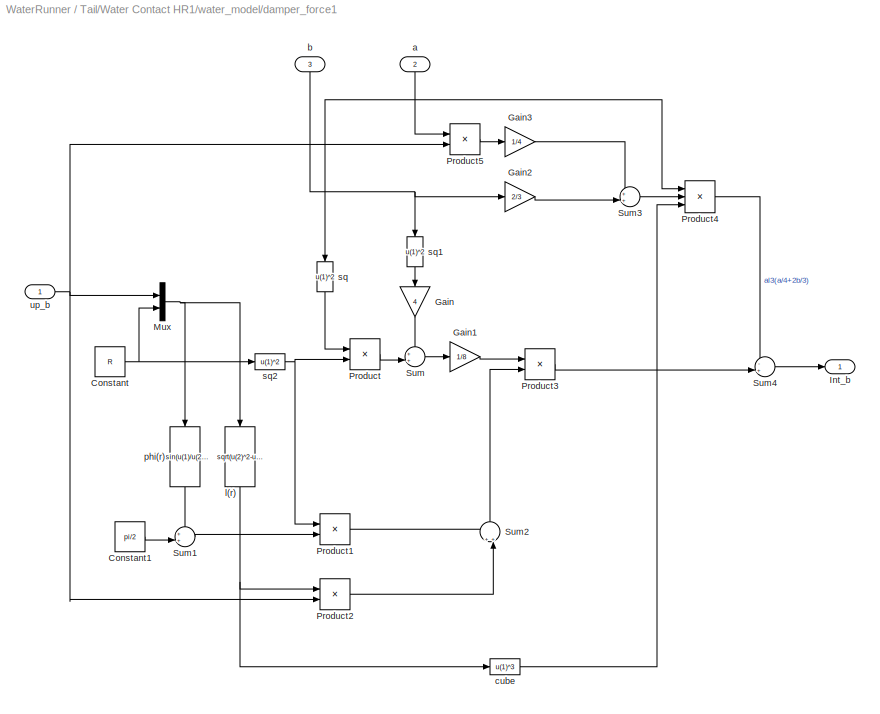
BLOCK [SubSystem] Tail/Water Contact HR1/water_model/damper_force1
  FunctionWithSeparateData = off
  MaskHideContents = off
  MinAlgLoopOccurrences = off
  Opaque = off
  Ports = [3, 1]
  PropExecContextOutsideSubsystem = off
  RTWSystemCode = Auto
  RequestExecContextInheritance = off
  SID = 6069
BLOCK [Constant] Tail/Water Contact HR1/water_model/damper_force1/Constant
  SID = 6073
  Value = R
BLOCK [Constant] Tail/Water Contact HR1/water_model/damper_force1/Constant1
  SID = 6074
  Value = pi/2
BLOCK [Gain] Tail/Water Contact HR1/water_model/damper_force1/Gain
  Gain = 4
  OutDataTypeStr = Inherit: Inherit via internal rule
  ParamDataTypeStr = Inherit: Inherit via internal rule
  SID = 6075
  SaturateOnIntegerOverflow = off
BLOCK [Gain] Tail/Water Contact HR1/water_model/damper_force1/Gain1
  Gain = 1/8
  OutDataTypeStr = Inherit: Inherit via internal rule
  ParamDataTypeStr = Inherit: Inherit via internal rule
  SID = 6076
  SaturateOnIntegerOverflow = off
BLOCK [Gain] Tail/Water Contact HR1/water_model/damper_force1/Gain2
  Gain = 2/3
  OutDataTypeStr = Inherit: Inherit via internal rule
  ParamDataTypeStr = Inherit: Inherit via internal rule
  SID = 6077
  SaturateOnIntegerOverflow = off
BLOCK [Gain] Tail/Water Contact HR1/water_model/damper_force1/Gain3
  Gain = 1/4
  OutDataTypeStr = Inherit: Inherit via internal rule
  ParamDataTypeStr = Inherit: Inherit via internal rule
  SID = 6078
  SaturateOnIntegerOverflow = off
BLOCK [Outport] Tail/Water Contact HR1/water_model/damper_force1/Int_b
  IconDisplay = Port number
  SID = 6097
BLOCK [Mux] Tail/Water Contact HR1/water_model/damper_force1/Mux
  DisplayOption = bar
  Inputs = 2
  Ports = [2, 1]
  SID = 6079
BLOCK [Product] Tail/Water Contact HR1/water_model/damper_force1/Product
  InputSameDT = off
  OutDataTypeStr = Inherit: Inherit via internal rule
  Ports = [2, 1]
  SID = 6080
  SaturateOnIntegerOverflow = off
BLOCK [Product] Tail/Water Contact HR1/water_model/damper_force1/Product1
  InputSameDT = off
  OutDataTypeStr = Inherit: Inherit via internal rule
  Ports = [2, 1]
  SID = 6081
  SaturateOnIntegerOverflow = off
BLOCK [Product] Tail/Water Contact HR1/water_model/damper_force1/Product2
  InputSameDT = off
  OutDataTypeStr = Inherit: Inherit via internal rule
  Ports = [2, 1]
  SID = 6082
  SaturateOnIntegerOverflow = off
BLOCK [Product] Tail/Water Contact HR1/water_model/damper_force1/Product3
  InputSameDT = off
  OutDataTypeStr = Inherit: Inherit via internal rule
  Ports = [2, 1]
  SID = 6083
  SaturateOnIntegerOverflow = off
BLOCK [Product] Tail/Water Contact HR1/water_model/damper_force1/Product4
  InputSameDT = off
  Inputs = 3
  OutDataTypeStr = Inherit: Inherit via internal rule
  Ports = [3, 1]
  SID = 6084
  SaturateOnIntegerOverflow = off
BLOCK [Product] Tail/Water Contact HR1/water_model/damper_force1/Product5
  InputSameDT = off
  OutDataTypeStr = Inherit: Inherit via internal rule
  Ports = [2, 1]
  SID = 6085
  SaturateOnIntegerOverflow = off
BLOCK [Sum] Tail/Water Contact HR1/water_model/damper_force1/Sum
  IconShape = round
  InputSameDT = off
  Inputs = ++|
  OutDataTypeStr = Inherit: Inherit via internal rule
  Ports = [2, 1]
  SID = 6086
  SaturateOnIntegerOverflow = off
BLOCK [Sum] Tail/Water Contact HR1/water_model/damper_force1/Sum1
  IconShape = round
  InputSameDT = off
  Inputs = ++|
  OutDataTypeStr = Inherit: Inherit via internal rule
  Ports = [2, 1]
  SID = 6087
  SaturateOnIntegerOverflow = off
BLOCK [Sum] Tail/Water Contact HR1/water_model/damper_force1/Sum2
  IconShape = round
  InputSameDT = off
  Inputs = ++|
  OutDataTypeStr = Inherit: Inherit via internal rule
  Ports = [2, 1]
  SID = 6088
  SaturateOnIntegerOverflow = off
BLOCK [Sum] Tail/Water Contact HR1/water_model/damper_force1/Sum3
  IconShape = round
  InputSameDT = off
  Inputs = ++|
  OutDataTypeStr = Inherit: Inherit via internal rule
  Ports = [2, 1]
  SID = 6089
  SaturateOnIntegerOverflow = off
BLOCK [Sum] Tail/Water Contact HR1/water_model/damper_force1/Sum4
  IconShape = round
  InputSameDT = off
  Inputs = -+|
  OutDataTypeStr = Inherit: Inherit via internal rule
  Ports = [2, 1]
  SID = 6090
  SaturateOnIntegerOverflow = off
BLOCK [Inport] Tail/Water Contact HR1/water_model/damper_force1/a
  IconDisplay = Port number
  Port = 2
  SID = 6071
BLOCK [Inport] Tail/Water Contact HR1/water_model/damper_force1/b
  IconDisplay = Port number
  Port = 3
  SID = 6072
BLOCK [Fcn] Tail/Water Contact HR1/water_model/damper_force1/cube
  Expr = u(1)^3
  SID = 6091
BLOCK [Fcn] Tail/Water Contact HR1/water_model/damper_force1/l(r)
  Expr = sqrt(u(2)^2-u(1)^2)
  SID = 6092
BLOCK [Fcn] Tail/Water Contact HR1/water_model/damper_force1/phi(r)
  Expr = asin(u(1)/u(2))
  SID = 6093
BLOCK [Fcn] Tail/Water Contact HR1/water_model/damper_force1/sq
  Expr = u(1)^2
  SID = 6094
BLOCK [Fcn] Tail/Water Contact HR1/water_model/damper_force1/sq1
  Expr = u(1)^2
  SID = 6095
BLOCK [Fcn] Tail/Water Contact HR1/water_model/damper_force1/sq2
  Expr = u(1)^2
  SID = 6096
BLOCK [Inport] Tail/Water Contact HR1/water_model/damper_force1/up_b
  IconDisplay = Port number
  SID = 6070
BLOCK [SubSystem] Tail/Water Contact HR1/water_model/damper_force2
  FunctionWithSeparateData = off
  MaskHideContents = off
  MinAlgLoopOccurrences = off
  Opaque = off
  Ports = [3, 1]
  PropExecContextOutsideSubsystem = off
  RTWSystemCode = Auto
  RequestExecContextInheritance = off
  SID = 6098
BLOCK [Constant] Tail/Water Contact HR1/water_model/damper_force2/Constant
  SID = 6102
  Value = R
BLOCK [Constant] Tail/Water Contact HR1/water_model/damper_force2/Constant1
  SID = 6103
  Value = pi/2
BLOCK [Gain] Tail/Water Contact HR1/water_model/damper_force2/Gain
  Gain = 4
  OutDataTypeStr = Inherit: Inherit via internal rule
  ParamDataTypeStr = Inherit: Inherit via internal rule
  SID = 6104
  SaturateOnIntegerOverflow = off
BLOCK [Gain] Tail/Water Contact HR1/water_model/damper_force2/Gain1
  Gain = 1/8
  OutDataTypeStr = Inherit: Inherit via internal rule
  ParamDataTypeStr = Inherit: Inherit via internal rule
  SID = 6105
  SaturateOnIntegerOverflow = off
BLOCK [Gain] Tail/Water Contact HR1/water_model/damper_force2/Gain2
  Gain = 2/3
  OutDataTypeStr = Inherit: Inherit via internal rule
  ParamDataTypeStr = Inherit: Inherit via internal rule
  SID = 6106
  SaturateOnIntegerOverflow = off
BLOCK [Gain] Tail/Water Contact HR1/water_model/damper_force2/Gain3
  Gain = 1/4
  OutDataTypeStr = Inherit: Inherit via internal rule
  ParamDataTypeStr = Inherit: Inherit via internal rule
  SID = 6107
  SaturateOnIntegerOverflow = off
BLOCK [Outport] Tail/Water Contact HR1/water_model/damper_force2/Int_b
  IconDisplay = Port number
  SID = 6126
BLOCK [Mux] Tail/Water Contact HR1/water_model/damper_force2/Mux
  DisplayOption = bar
  Inputs = 2
  Ports = [2, 1]
  SID = 6108
BLOCK [Product] Tail/Water Contact HR1/water_model/damper_force2/Product
  InputSameDT = off
  OutDataTypeStr = Inherit: Inherit via internal rule
  Ports = [2, 1]
  SID = 6109
  SaturateOnIntegerOverflow = off
BLOCK [Product] Tail/Water Contact HR1/water_model/damper_force2/Product1
  InputSameDT = off
  OutDataTypeStr = Inherit: Inherit via internal rule
  Ports = [2, 1]
  SID = 6110
  SaturateOnIntegerOverflow = off
BLOCK [Product] Tail/Water Contact HR1/water_model/damper_force2/Product2
  InputSameDT = off
  OutDataTypeStr = Inherit: Inherit via internal rule
  Ports = [2, 1]
  SID = 6111
  SaturateOnIntegerOverflow = off
BLOCK [Product] Tail/Water Contact HR1/water_model/damper_force2/Product3
  InputSameDT = off
  OutDataTypeStr = Inherit: Inherit via internal rule
  Ports = [2, 1]
  SID = 6112
  SaturateOnIntegerOverflow = off
BLOCK [Product] Tail/Water Contact HR1/water_model/damper_force2/Product4
  InputSameDT = off
  Inputs = 3
  OutDataTypeStr = Inherit: Inherit via internal rule
  Ports = [3, 1]
  SID = 6113
  SaturateOnIntegerOverflow = off
BLOCK [Product] Tail/Water Contact HR1/water_model/damper_force2/Product5
  InputSameDT = off
  OutDataTypeStr = Inherit: Inherit via internal rule
  Ports = [2, 1]
  SID = 6114
  SaturateOnIntegerOverflow = off
BLOCK [Sum] Tail/Water Contact HR1/water_model/damper_force2/Sum
  IconShape = round
  InputSameDT = off
  Inputs = ++|
  OutDataTypeStr = Inherit: Inherit via internal rule
  Ports = [2, 1]
  SID = 6115
  SaturateOnIntegerOverflow = off
BLOCK [Sum] Tail/Water Contact HR1/water_model/damper_force2/Sum1
  IconShape = round
  InputSameDT = off
  Inputs = ++|
  OutDataTypeStr = Inherit: Inherit via internal rule
  Ports = [2, 1]
  SID = 6116
  SaturateOnIntegerOverflow = off
BLOCK [Sum] Tail/Water Contact HR1/water_model/damper_force2/Sum2
  IconShape = round
  InputSameDT = off
  Inputs = ++|
  OutDataTypeStr = Inherit: Inherit via internal rule
  Ports = [2, 1]
  SID = 6117
  SaturateOnIntegerOverflow = off
BLOCK [Sum] Tail/Water Contact HR1/water_model/damper_force2/Sum3
  IconShape = round
  InputSameDT = off
  Inputs = ++|
  OutDataTypeStr = Inherit: Inherit via internal rule
  Ports = [2, 1]
  SID = 6118
  SaturateOnIntegerOverflow = off
BLOCK [Sum] Tail/Water Contact HR1/water_model/damper_force2/Sum4
  IconShape = round
  InputSameDT = off
  Inputs = -+|
  OutDataTypeStr = Inherit: Inherit via internal rule
  Ports = [2, 1]
  SID = 6119
  SaturateOnIntegerOverflow = off
BLOCK [Inport] Tail/Water Contact HR1/water_model/damper_force2/a
  IconDisplay = Port number
  Port = 2
  SID = 6100
BLOCK [Inport] Tail/Water Contact HR1/water_model/damper_force2/b
  IconDisplay = Port number
  Port = 3
  SID = 6101
BLOCK [Fcn] Tail/Water Contact HR1/water_model/damper_force2/cube
  Expr = u(1)^3
  SID = 6120
BLOCK [Fcn] Tail/Water Contact HR1/water_model/damper_force2/l(r)
  Expr = sqrt(u(2)^2-u(1)^2)
  SID = 6121
BLOCK [Fcn] Tail/Water Contact HR1/water_model/damper_force2/phi(r)
  Expr = asin(u(1)/u(2))
  SID = 6122
BLOCK [Fcn] Tail/Water Contact HR1/water_model/damper_force2/sq
  Expr = u(1)^2
  SID = 6123
BLOCK [Fcn] Tail/Water Contact HR1/water_model/damper_force2/sq1
  Expr = u(1)^2
  SID = 6124
BLOCK [Fcn] Tail/Water Contact HR1/water_model/damper_force2/sq2
  Expr = u(1)^2
  SID = 6125
BLOCK [Inport] Tail/Water Contact HR1/water_model/damper_force2/up_b
  IconDisplay = Port number
  SID = 6099
BLOCK [Inport] Tail/Water Contact HR1/water_model/v_n
  IconDisplay = Port number
  Port = 3
  SID = 6017
BLOCK [Inport] Tail/Water Contact HR1/water_model/y_c
  IconDisplay = Port number
  SID = 6015
BLOCK [Reference] Tail/pad tran  REF=sm_lib/Frames and\n Transforms/Rigid \nTransform
  BaseAlignAxisA = +X
  BaseAlignAxisB = +Z
  BlockFunction = simmechanics.library.frames_transforms.rigid_transform
  ClassName = RigidTransform
  FollAlignAxisA = +X
  FollAlignAxisB = +Y
  Ports = [0, 0, 0, 0, 0, 1, 1]
  RotationAngle = 0
  RotationAngleUnits = deg
  RotationArbitraryAxis = [0 0 1]
  RotationMethod = AlignedAxes
  RotationStandardAxis = +Z
  SID = 6130
  SourceBlock = sm_lib/Frames and\n Transforms/Rigid \nTransform
  SourceType = Rigid Transform
  TranslationCartesianOffset = [0 0 0.25]
  TranslationLengthUnit = m
  TranslationMethod = StandardAxis
  TranslationROffset = 0
  TranslationROffsetUnits = m
  TranslationStandardAxis = -Y
  TranslationStandardOffset = 0.0015
  TranslationThetaOffset = 0
  TranslationThetaOffsetUnits = deg
  TranslationZOffset = 0
  TranslationZOffsetUnits = m
BLOCK [Reference] Tail/tail_tr_1  REF=sm_lib/Frames and\n Transforms/Rigid \nTransform
  BaseAlignAxisA = +Y
  BaseAlignAxisB = +Z
  BlockFunction = simmechanics.library.frames_transforms.rigid_transform
  ClassName = RigidTransform
  FollAlignAxisA = +X
  FollAlignAxisB = +Y
  Ports = [0, 0, 0, 0, 0, 1, 1]
  RotationAngle = tail_angle
  RotationAngleUnits = deg
  RotationArbitraryAxis = [0 0 1]
  RotationMethod = StandardAxis
  RotationStandardAxis = +Z
  SID = 6131
  SourceBlock = sm_lib/Frames and\n Transforms/Rigid \nTransform
  SourceType = Rigid Transform
  TranslationCartesianOffset = [0 0 0]
  TranslationLengthUnit = m
  TranslationMethod = None
  TranslationROffset = 0
  TranslationROffsetUnits = m
  TranslationStandardAxis = +Z
  TranslationStandardOffset = 0
  TranslationThetaOffset = 0
  TranslationThetaOffsetUnits = deg
  TranslationZOffset = 0
  TranslationZOffsetUnits = m
BLOCK [Reference] Tail/tail_tr_2  REF=sm_lib/Frames and\n Transforms/Rigid \nTransform
  BaseAlignAxisA = +Y
  BaseAlignAxisB = +Z
  BlockFunction = simmechanics.library.frames_transforms.rigid_transform
  ClassName = RigidTransform
  FollAlignAxisA = +X
  FollAlignAxisB = +Y
  Ports = [0, 0, 0, 0, 0, 1, 1]
  RotationAngle = 0
  RotationAngleUnits = deg
  RotationArbitraryAxis = [0 0 1]
  RotationMethod = None
  RotationStandardAxis = +Z
  SID = 6132
  SourceBlock = sm_lib/Frames and\n Transforms/Rigid \nTransform
  SourceType = Rigid Transform
  TranslationCartesianOffset = [0 0 0]
  TranslationLengthUnit = m
  TranslationMethod = StandardAxis
  TranslationROffset = 0
  TranslationROffsetUnits = m
  TranslationStandardAxis = -X
  TranslationStandardOffset = tail_length/2
  TranslationThetaOffset = 0
  TranslationThetaOffsetUnits = deg
  TranslationZOffset = 0
  TranslationZOffsetUnits = m
BLOCK [Reference] Tail/tail_tr_3  REF=sm_lib/Frames and\n Transforms/Rigid \nTransform
  BaseAlignAxisA = +Y
  BaseAlignAxisB = +Z
  BlockFunction = simmechanics.library.frames_transforms.rigid_transform
  ClassName = RigidTransform
  FollAlignAxisA = +X
  FollAlignAxisB = +Y
  Ports = [0, 0, 0, 0, 0, 1, 1]
  RotationAngle = 0
  RotationAngleUnits = deg
  RotationArbitraryAxis = [0 0 1]
  RotationMethod = None
  RotationStandardAxis = +Z
  SID = 6133
  SourceBlock = sm_lib/Frames and\n Transforms/Rigid \nTransform
  SourceType = Rigid Transform
  TranslationCartesianOffset = [0 0 0]
  TranslationLengthUnit = m
  TranslationMethod = StandardAxis
  TranslationROffset = 0
  TranslationROffsetUnits = m
  TranslationStandardAxis = -X
  TranslationStandardOffset = tail_length/2
  TranslationThetaOffset = 0
  TranslationThetaOffsetUnits = deg
  TranslationZOffset = 0
  TranslationZOffsetUnits = m
BLOCK [ToWorkspace] To Workspace
  MaxDataPoints = inf
  Ports = [1]
  SID = 5991
  SampleTime = -1
  SaveFormat = Timeseries
  VariableName = stopped
BLOCK [Reference] Transform  Sensor  REF=sm_lib/Frames and\n Transforms/Transform \nSensor
  BlockFunction = simmechanics.library.frames_transforms.transform_sensor
  ClassName = TransformSensor
  MeasurementFrame = World
  Ports = [0, 0, 0, 0, 0, 1, 4]
  SID = 5153
  SenseAlpha1 = off
  SenseAlpha2 = off
  SenseAlpha3 = off
  SenseAlphaX = off
  SenseAlphaY = off
  SenseAlphaZ = off
  SenseAngle = off
  SenseAngle1 = off
  SenseAngle2 = off
  SenseAngle3 = off
  SenseAxis = off
  SenseAzim = off
  SenseAzimDDot = off
  SenseAzimDot = off
  SenseDist = off
  SenseDistDDot = off
  SenseDistDot = off
  SenseInc = off
  SenseIncDDot = off
  SenseIncDot = off
  SenseOmega1 = off
  SenseOmega2 = off
  SenseOmega3 = off
  SenseOmegaX = on
  SenseOmegaY = off
  SenseOmegaZ = on
  SenseQ = off
  SenseQDDot = off
  SenseQDot = off
  SenseR = off
  SenseRDDot = off
  SenseRDot = off
  SenseRad = off
  SenseRadDDot = off
  SenseRadDot = off
  SenseX = off
  SenseXDDot = off
  SenseXDot = off
  SenseY = on
  SenseYDDot = off
  SenseYDot = off
  SenseZ = off
  SenseZDDot = off
  SenseZDot = off
  SourceBlock = sm_lib/Frames and\n Transforms/Transform \nSensor
  SourceType = Transform Sensor
BLOCK [SubSystem] Water Contact FR1
  AncestorBlock = WaterRunner_lib_2/Water Contact FR
  FunctionWithSeparateData = off
  MaskHideContents = off
  MinAlgLoopOccurrences = off
  Opaque = off
  Ports = [0, 5, 0, 0, 0, 1]
  PropExecContextOutsideSubsystem = off
  RTWSystemCode = Auto
  RequestExecContextInheritance = off
  SID = 6138
BLOCK [Reference] Water Contact FR1/6-DOF Joint1  REF=sm_lib/Joints/6-DOF Joint
  BlockFunction = simmechanics.library.joints.sixdof_joint
  ClassName = SixDofJoint
  ConstraintWrenchDir = FollowerOnBase
  ConstraintWrenchFrame = BaseFrame
  Ports = [0, 0, 0, 0, 0, 3, 2]
  PxActuationMode = TorqueForceActuation
  PxDampingCoefficient = 0
  PxDampingCoefficientUnits = N/(m/s)
  PxEquilibriumPosition = 0
  PxEquilibriumPositionUnits = m
  PxPositionTargetPriority = High
  PxPositionTargetSpecify = off
  PxPositionTargetValue = 0
  PxPositionTargetValueUnits = m
  PxSenseAcceleration = off
  PxSensePosition = off
  PxSenseTorqueForce = off
  PxSenseVelocity = off
  PxSpringStiffness = 0
  PxSpringStiffnessUnits = N/m
  PxVelocityTargetPriority = High
  PxVelocityTargetSpecify = off
  PxVelocityTargetValue = 0
  PxVelocityTargetValueUnits = m/s
  PyActuationMode = TorqueForceActuation
  PyDampingCoefficient = 0
  PyDampingCoefficientUnits = N/(m/s)
  PyEquilibriumPosition = 0
  PyEquilibriumPositionUnits = m
  PyPositionTargetPriority = High
  PyPositionTargetSpecify = off
  PyPositionTargetValue = 0
  PyPositionTargetValueUnits = m
  PySenseAcceleration = off
  PySensePosition = on
  PySenseTorqueForce = off
  PySenseVelocity = off
  PySpringStiffness = 0
  PySpringStiffnessUnits = N/m
  PyVelocityTargetPriority = High
  PyVelocityTargetSpecify = off
  PyVelocityTargetValue = 0
  PyVelocityTargetValueUnits = m/s
  PzActuationMode = NoActuation
  PzDampingCoefficient = 0
  PzDampingCoefficientUnits = N/(m/s)
  PzEquilibriumPosition = 0
  PzEquilibriumPositionUnits = m
  PzPositionTargetPriority = High
  PzPositionTargetSpecify = off
  PzPositionTargetValue = 0
  PzPositionTargetValueUnits = m
  PzSenseAcceleration = off
  PzSensePosition = off
  PzSenseTorqueForce = off
  PzSenseVelocity = off
  PzSpringStiffness = 0
  PzSpringStiffnessUnits = N/m
  PzVelocityTargetPriority = High
  PzVelocityTargetSpecify = off
  PzVelocityTargetValue = 0
  PzVelocityTargetValueUnits = m/s
  SID = 6138:1347
  SenseConstraintForceX = off
  SenseConstraintForceY = off
  SenseConstraintForceZ = off
  SenseConstraintTorqueX = off
  SenseConstraintTorqueY = off
  SenseConstraintTorqueZ = off
  SourceBlock = sm_lib/Joints/6-DOF Joint
  SourceType = 6-DOF Joint
  SphActuateTorque = off
  SphActuateTorqueX = off
  SphActuateTorqueY = off
  SphActuateTorqueZ = off
  SphActuationFrame = BaseFrame
  SphActuationMode = NoActuation
  SphDampingCoefficient = 0
  SphDampingCoefficientUnits = N*m/(deg/s)
  SphDefPosBaseAlignAxisA = +Y
  SphDefPosBaseAlignAxisB = +Z
  SphDefPosFollAlignAxisA = +X
  SphDefPosFollAlignAxisB = +Y
  SphDefPosRotationAngle = 0
  SphDefPosRotationAngleUnits = deg
  SphDefPosRotationArbitraryAxis = [0 0 1]
  SphDefPosRotationMethod = None
  SphDefPosRotationStandardAxis = +Z
  SphEqPosBaseAlignAxisA = +Y
  SphEqPosBaseAlignAxisB = +Z
  SphEqPosFollAlignAxisA = +X
  SphEqPosFollAlignAxisB = +Y
  SphEqPosRotationAngle = 0
  SphEqPosRotationAngleUnits = deg
  SphEqPosRotationArbitraryAxis = [0 0 1]
  SphEqPosRotationMethod = None
  SphEqPosRotationStandardAxis = +Z
  SphPositionTargetBaseAlignAxisA = +Y
  SphPositionTargetBaseAlignAxisB = +Z
  SphPositionTargetFollAlignAxisA = +X
  SphPositionTargetFollAlignAxisB = +Y
  SphPositionTargetPriority = High
  SphPositionTargetRotationAngle = 0
  SphPositionTargetRotationAngleUnits = deg
  SphPositionTargetRotationArbitraryAxis = [0 0 1]
  SphPositionTargetRotationMethod = None
  SphPositionTargetRotationStandardAxis = +Z
  SphPositionTargetSpecify = off
  SphSenseAcceleration = off
  SphSenseAccelerationX = off
  SphSenseAccelerationY = off
  SphSenseAccelerationZ = off
  SphSensePosition = off
  SphSenseTorqueForce = off
  SphSenseTorqueX = off
  SphSenseTorqueY = off
  SphSenseTorqueZ = off
  SphSenseVelocity = off
  SphSenseVelocityX = off
  SphSenseVelocityY = off
  SphSenseVelocityZ = off
  SphSensingFrame = BaseFrame
  SphSpringStiffness = 0
  SphSpringStiffnessUnits = N*m/deg
  SphVelocityTargetInFollowerFrame = on
  SphVelocityTargetPriority = High
  SphVelocityTargetSpecify = off
  SphVelocityTargetValue = [0 0 0]
  SphVelocityTargetValueUnits = deg/s
BLOCK [Outport] Water Contact FR1/Fb
  IconDisplay = Port number
  Port = 2
  SID = 6138:1659
BLOCK [Fcn] Water Contact FR1/Fcn
  Expr = u(2)*cos(u(1))
  SID = 6138:1755
BLOCK [Outport] Water Contact FR1/Fk
  IconDisplay = Port number
  SID = 6138:1658
BLOCK [PMIOPort] Water Contact FR1/Foot
  Port = 1
  SID = 6138:1657
  Side = Left
BLOCK [From] Water Contact FR1/From
  GotoTag = y_c
  SID = 6138:1687
BLOCK [From] Water Contact FR1/From1
  GotoTag = angle
  SID = 6138:1694
BLOCK [Gain] Water Contact FR1/Gain
  Gain = -1
  OutDataTypeStr = Inherit: Inherit via internal rule
  ParamDataTypeStr = Inherit: Inherit via internal rule
  SID = 6138:1701
  SaturateOnIntegerOverflow = off
BLOCK [Goto] Water Contact FR1/Goto
  GotoTag = y_c
  SID = 6138:1688
BLOCK [Goto] Water Contact FR1/Goto1
  GotoTag = angle
  SID = 6138:1693
BLOCK [Mux] Water Contact FR1/Mux
  DisplayOption = bar
  Inputs = 2
  Ports = [2, 1]
  SID = 6138:1756
BLOCK [Mux] Water Contact FR1/Mux1
  DisplayOption = bar
  Inputs = 2
  Ports = [2, 1]
  SID = 6138:1758
BLOCK [SubSystem] Water Contact FR1/Quat to Euler1
  FunctionWithSeparateData = off
  MaskHideContents = off
  MinAlgLoopOccurrences = off
  Opaque = off
  Ports = [1, 2]
  PropExecContextOutsideSubsystem = off
  RTWSystemCode = Auto
  RequestExecContextInheritance = off
  SID = 6138:1678
BLOCK [Inport] Water Contact FR1/Quat to Euler1/Q
  IconDisplay = Port number
  SID = 6138:1679
BLOCK [Fcn] Water Contact FR1/Quat to Euler1/f1
  Expr = atan2( 2*(u(1)*u(2) + u(3)*u(4)) , 1-2*(u(2)^2+u(3)^2) )
  SID = 6138:1751
BLOCK [Fcn] Water Contact FR1/Quat to Euler1/f3
  Expr = atan2( 2*(u(1)*u(4) + u(2)*u(3)) , 1-2*(u(3)^2+u(4)^2) )
  SID = 6138:1680
BLOCK [Outport] Water Contact FR1/Quat to Euler1/phi_x
  IconDisplay = Port number
  Port = 2
  SID = 6138:1752
BLOCK [Outport] Water Contact FR1/Quat to Euler1/phi_z
  IconDisplay = Port number
  SID = 6138:1681
BLOCK [Scope] Water Contact FR1/Scope
  DataFormat = StructureWithTime
  Floating = off
  NumInputPorts = 2
  Ports = [2]
  SID = 6138:1757
  SampleTime = 0
  SaveName = ScopeData3
  ShowLegends = off
  YMax = 0.04~0.7
  YMin = -0.19~0
  ZoomMode = xonly
BLOCK [SubSystem] Water Contact FR1/Subsystem
  FunctionWithSeparateData = off
  MaskHideContents = off
  MinAlgLoopOccurrences = off
  Opaque = off
  Ports = [4, 2]
  PropExecContextOutsideSubsystem = off
  RTWSystemCode = Auto
  RequestExecContextInheritance = off
  SID = 6138:1352
BLOCK [Outport] Water Contact FR1/Subsystem/Fb_w
  IconDisplay = Port number
  Port = 2
  SID = 6138:1646
BLOCK [Outport] Water Contact FR1/Subsystem/Fk_w
  IconDisplay = Port number
  SID = 6138:1645
BLOCK [Switch] Water Contact FR1/Subsystem/Switch
  InputSameDT = off
  SID = 6138:1357
  SaturateOnIntegerOverflow = off
BLOCK [Switch] Water Contact FR1/Subsystem/Switch1
  InputSameDT = off
  SID = 6138:1358
  SaturateOnIntegerOverflow = off
BLOCK [Inport] Water Contact FR1/Subsystem/ang_vel
  IconDisplay = Port number
  Port = 4
  SID = 6138:1356
BLOCK [Inport] Water Contact FR1/Subsystem/angle
  IconDisplay = Port number
  Port = 2
  SID = 6138:1354
BLOCK [Inport] Water Contact FR1/Subsystem/v_n
  IconDisplay = Port number
  Port = 3
  SID = 6138:1355
BLOCK [SubSystem] Water Contact FR1/Subsystem/water_model
  FunctionWithSeparateData = off
  MaskHideContents = off
  MinAlgLoopOccurrences = off
  Opaque = off
  Ports = [4, 2]
  PropExecContextOutsideSubsystem = off
  RTWSystemCode = Auto
  RequestExecContextInheritance = off
  SID = 6138:1359
BLOCK [Outport] Water Contact FR1/Subsystem/water_model/Fb_w
  IconDisplay = Port number
  Port = 2
  SID = 6138:1501
BLOCK [Outport] Water Contact FR1/Subsystem/water_model/Fk_w
  IconDisplay = Port number
  SID = 6138:1500
BLOCK [Gain] Water Contact FR1/Subsystem/water_model/Gain
  OutDataTypeStr = Inherit: Inherit via internal rule
  ParamDataTypeStr = Inherit: Inherit via internal rule
  SID = 6138:1364
  SaturateOnIntegerOverflow = off
BLOCK [Gain] Water Contact FR1/Subsystem/water_model/Gain1
  Gain = Cd*density
  OutDataTypeStr = Inherit: Inherit via internal rule
  ParamDataTypeStr = Inherit: Inherit via internal rule
  SID = 6138:1365
  SaturateOnIntegerOverflow = off
BLOCK [Gain] Water Contact FR1/Subsystem/water_model/Gain2
  Gain = Cd*density
  OutDataTypeStr = Inherit: Inherit via internal rule
  ParamDataTypeStr = Inherit: Inherit via internal rule
  SID = 6138:1366
  SaturateOnIntegerOverflow = off
BLOCK [Gain] Water Contact FR1/Subsystem/water_model/Gain3
  Gain = -1
  OutDataTypeStr = Inherit: Inherit via internal rule
  ParamDataTypeStr = Inherit: Inherit via internal rule
  SID = 6138:1367
  SaturateOnIntegerOverflow = off
BLOCK [Product] Water Contact FR1/Subsystem/water_model/Product1
  InputSameDT = off
  OutDataTypeStr = Inherit: Inherit via internal rule
  Ports = [2, 1]
  SID = 6138:1368
  SaturateOnIntegerOverflow = off
BLOCK [Product] Water Contact FR1/Subsystem/water_model/Product2
  InputSameDT = off
  OutDataTypeStr = Inherit: Inherit via internal rule
  Ports = [2, 1]
  SID = 6138:1369
  SaturateOnIntegerOverflow = off
BLOCK [SubSystem] Water Contact FR1/Subsystem/water_model/Subsystem
  FunctionWithSeparateData = off
  MaskHideContents = off
  MinAlgLoopOccurrences = off
  Opaque = off
  Ports = [2, 1]
  PropExecContextOutsideSubsystem = off
  RTWSystemCode = Auto
  RequestExecContextInheritance = off
  SID = 6138:1370
BLOCK [Constant] Water Contact FR1/Subsystem/water_model/Subsystem/Constant
  SID = 6138:1373
  Value = y_w
BLOCK [Fcn] Water Contact FR1/Subsystem/water_model/Subsystem/Fcn
  Expr = sin(u(1))
  SID = 6138:1374
BLOCK [Fcn] Water Contact FR1/Subsystem/water_model/Subsystem/Fcn1
  Expr = u(1)/u(2)
  SID = 6138:1375
BLOCK [Mux] Water Contact FR1/Subsystem/water_model/Subsystem/Mux
  DisplayOption = bar
  Inputs = 2
  Ports = [2, 1]
  SID = 6138:1376
BLOCK [Sum] Water Contact FR1/Subsystem/water_model/Subsystem/Sum
  IconShape = round
  InputSameDT = off
  Inputs = +-|
  OutDataTypeStr = Inherit: Inherit via internal rule
  Ports = [2, 1]
  SID = 6138:1377
  SaturateOnIntegerOverflow = off
BLOCK [Inport] Water Contact FR1/Subsystem/water_model/Subsystem/angle
  IconDisplay = Port number
  Port = 2
  SID = 6138:1372
BLOCK [Saturate] Water Contact FR1/Subsystem/water_model/Subsystem/sat
  InputPortMap = u0
  LowerLimit = -R
  Ports = [1, 1]
  SID = 6138:1378
  UpperLimit = R
BLOCK [Saturate] Water Contact FR1/Subsystem/water_model/Subsystem/sat1
  InputPortMap = u0
  LowerLimit = 0
  Ports = [1, 1]
  SID = 6138:1707
  UpperLimit = pi
BLOCK [Outport] Water Contact FR1/Subsystem/water_model/Subsystem/up_b
  IconDisplay = Port number
  SID = 6138:1379
BLOCK [Inport] Water Contact FR1/Subsystem/water_model/Subsystem/y_c
  IconDisplay = Port number
  SID = 6138:1371
BLOCK [SubSystem] Water Contact FR1/Subsystem/water_model/Subsystem1
  FunctionWithSeparateData = off
  MaskHideContents = off
  MinAlgLoopOccurrences = off
  Opaque = off
  Ports = [2, 2]
  PropExecContextOutsideSubsystem = off
  RTWSystemCode = Auto
  RequestExecContextInheritance = off
  SID = 6138:1380
BLOCK [Constant] Water Contact FR1/Subsystem/water_model/Subsystem1/Constant
  SID = 6138:1383
  Value = y_w
BLOCK [Fcn] Water Contact FR1/Subsystem/water_model/Subsystem1/Fcn
  Expr = sin(u(1))
  SID = 6138:1384
BLOCK [Gain] Water Contact FR1/Subsystem/water_model/Subsystem1/Gain
  Gain = -2*(-g)
  OutDataTypeStr = Inherit: Inherit via internal rule
  ParamDataTypeStr = Inherit: Inherit via internal rule
  SID = 6138:1385
  SaturateOnIntegerOverflow = off
BLOCK [Gain] Water Contact FR1/Subsystem/water_model/Subsystem1/Gain1
  Gain = 2*(-g)
  OutDataTypeStr = Inherit: Inherit via internal rule
  ParamDataTypeStr = Inherit: Inherit via internal rule
  SID = 6138:1386
  SaturateOnIntegerOverflow = off
BLOCK [Sum] Water Contact FR1/Subsystem/water_model/Subsystem1/Sum
  IconShape = round
  InputSameDT = off
  Inputs = -+|
  OutDataTypeStr = Inherit: Inherit via internal rule
  Ports = [2, 1]
  SID = 6138:1387
  SaturateOnIntegerOverflow = off
BLOCK [Outport] Water Contact FR1/Subsystem/water_model/Subsystem1/a
  IconDisplay = Port number
  SID = 6138:1388
BLOCK [Inport] Water Contact FR1/Subsystem/water_model/Subsystem1/angle
  IconDisplay = Port number
  Port = 2
  SID = 6138:1382
BLOCK [Outport] Water Contact FR1/Subsystem/water_model/Subsystem1/b
  IconDisplay = Port number
  Port = 2
  SID = 6138:1389
BLOCK [Inport] Water Contact FR1/Subsystem/water_model/Subsystem1/y_c
  IconDisplay = Port number
  SID = 6138:1381
BLOCK [SubSystem] Water Contact FR1/Subsystem/water_model/Subsystem2
  FunctionWithSeparateData = off
  MaskHideContents = off
  MinAlgLoopOccurrences = off
  Opaque = off
  Ports = [3, 2]
  PropExecContextOutsideSubsystem = off
  RTWSystemCode = Auto
  RequestExecContextInheritance = off
  SID = 6138:1390
BLOCK [Constant] Water Contact FR1/Subsystem/water_model/Subsystem2/Constant
  SID = 6138:1394
  Value = 100*eps
BLOCK [Product] Water Contact FR1/Subsystem/water_model/Subsystem2/Product
  InputSameDT = off
  OutDataTypeStr = Inherit: Inherit via internal rule
  Ports = [2, 1]
  SID = 6138:1395
  SaturateOnIntegerOverflow = off
BLOCK [Product] Water Contact FR1/Subsystem/water_model/Subsystem2/Product1
  InputSameDT = off
  OutDataTypeStr = Inherit: Inherit via internal rule
  Ports = [2, 1]
  SID = 6138:1396
  SaturateOnIntegerOverflow = off
BLOCK [Outport] Water Contact FR1/Subsystem/water_model/Subsystem2/S+
  IconDisplay = Port number
  SID = 6138:1403
BLOCK [Outport] Water Contact FR1/Subsystem/water_model/Subsystem2/S-
  IconDisplay = Port number
  Port = 2
  SID = 6138:1404
BLOCK [Signum] Water Contact FR1/Subsystem/water_model/Subsystem2/Sign
  SID = 6138:1397
BLOCK [Signum] Water Contact FR1/Subsystem/water_model/Subsystem2/Sign1
  SID = 6138:1398
BLOCK [Sum] Water Contact FR1/Subsystem/water_model/Subsystem2/Sum2
  IconShape = round
  InputSameDT = off
  Inputs = |++
  OutDataTypeStr = Inherit: Inherit via internal rule
  Ports = [2, 1]
  SID = 6138:1399
  SaturateOnIntegerOverflow = off
BLOCK [Sum] Water Contact FR1/Subsystem/water_model/Subsystem2/Sum3
  IconShape = round
  InputSameDT = off
  Inputs = |++
  OutDataTypeStr = Inherit: Inherit via internal rule
  Ports = [2, 1]
  SID = 6138:1400
  SaturateOnIntegerOverflow = off
BLOCK [Sum] Water Contact FR1/Subsystem/water_model/Subsystem2/Sum4
  IconShape = round
  InputSameDT = off
  Inputs = -+|
  OutDataTypeStr = Inherit: Inherit via internal rule
  Ports = [2, 1]
  SID = 6138:1401
  SaturateOnIntegerOverflow = off
BLOCK [Sum] Water Contact FR1/Subsystem/water_model/Subsystem2/Sum5
  IconShape = round
  InputSameDT = off
  Inputs = ++|
  OutDataTypeStr = Inherit: Inherit via internal rule
  Ports = [2, 1]
  SID = 6138:1402
  SaturateOnIntegerOverflow = off
BLOCK [Inport] Water Contact FR1/Subsystem/water_model/Subsystem2/dtheta
  IconDisplay = Port number
  SID = 6138:1391
BLOCK [Inport] Water Contact FR1/Subsystem/water_model/Subsystem2/r0
  IconDisplay = Port number
  Port = 3
  SID = 6138:1393
BLOCK [Inport] Water Contact FR1/Subsystem/water_model/Subsystem2/v
  IconDisplay = Port number
  Port = 2
  SID = 6138:1392
BLOCK [SubSystem] Water Contact FR1/Subsystem/water_model/Subsystem3
  FunctionWithSeparateData = off
  MaskHideContents = off
  MinAlgLoopOccurrences = off
  Opaque = off
  Ports = [2, 1]
  PropExecContextOutsideSubsystem = off
  RTWSystemCode = Auto
  RequestExecContextInheritance = off
  SID = 6138:1405
BLOCK [Constant] Water Contact FR1/Subsystem/water_model/Subsystem3/C
  SID = 6138:1408
  Value = 0
BLOCK [Fcn] Water Contact FR1/Subsystem/water_model/Subsystem3/Fcn
  Expr = -u(1)/(u(2))
  SID = 6138:1409
BLOCK [Mux] Water Contact FR1/Subsystem/water_model/Subsystem3/Mux
  DisplayOption = bar
  Inputs = 2
  Ports = [2, 1]
  SID = 6138:1410
BLOCK [Switch] Water Contact FR1/Subsystem/water_model/Subsystem3/Switch
  InputSameDT = off
  SID = 6138:1411
  SaturateOnIntegerOverflow = off
BLOCK [Inport] Water Contact FR1/Subsystem/water_model/Subsystem3/dtheta
  IconDisplay = Port number
  Port = 2
  SID = 6138:1407
BLOCK [Outport] Water Contact FR1/Subsystem/water_model/Subsystem3/mid_b
  IconDisplay = Port number
  SID = 6138:1413
BLOCK [Saturate] Water Contact FR1/Subsystem/water_model/Subsystem3/sat1
  InputPortMap = u0
  LowerLimit = -R
  Ports = [1, 1]
  SID = 6138:1412
  UpperLimit = R
BLOCK [Inport] Water Contact FR1/Subsystem/water_model/Subsystem3/vel
  IconDisplay = Port number
  SID = 6138:1406
BLOCK [SubSystem] Water Contact FR1/Subsystem/water_model/Subsystem4
  FunctionWithSeparateData = off
  MaskHideContents = off
  MinAlgLoopOccurrences = off
  Opaque = off
  Ports = [2, 1]
  PropExecContextOutsideSubsystem = off
  RTWSystemCode = Auto
  RequestExecContextInheritance = off
  SID = 6138:1414
BLOCK [Sum] Water Contact FR1/Subsystem/water_model/Subsystem4/Sum1
  IconShape = round
  InputSameDT = off
  Inputs = -|+
  OutDataTypeStr = Inherit: Inherit via internal rule
  Ports = [2, 1]
  SID = 6138:1417
  SaturateOnIntegerOverflow = off
BLOCK [Switch] Water Contact FR1/Subsystem/water_model/Subsystem4/Switch
  InputSameDT = off
  SID = 6138:1418
  SaturateOnIntegerOverflow = off
BLOCK [Inport] Water Contact FR1/Subsystem/water_model/Subsystem4/r
  IconDisplay = Port number
  SID = 6138:1415
BLOCK [Inport] Water Contact FR1/Subsystem/water_model/Subsystem4/r0
  IconDisplay = Port number
  Port = 2
  SID = 6138:1416
BLOCK [Outport] Water Contact FR1/Subsystem/water_model/Subsystem4/r00
  IconDisplay = Port number
  SID = 6138:1419
BLOCK [Sum] Water Contact FR1/Subsystem/water_model/Sum
  IconShape = round
  InputSameDT = off
  Inputs = |++
  OutDataTypeStr = Inherit: Inherit via internal rule
  Ports = [2, 1]
  SID = 6138:1420
  SaturateOnIntegerOverflow = off
BLOCK [Sum] Water Contact FR1/Subsystem/water_model/Sum2
  IconShape = round
  InputSameDT = off
  Inputs = -+|
  OutDataTypeStr = Inherit: Inherit via internal rule
  Ports = [2, 1]
  SID = 6138:1421
  SaturateOnIntegerOverflow = off
BLOCK [Inport] Water Contact FR1/Subsystem/water_model/ang_vel
  IconDisplay = Port number
  Port = 4
  SID = 6138:1363
BLOCK [Inport] Water Contact FR1/Subsystem/water_model/angle
  IconDisplay = Port number
  Port = 2
  SID = 6138:1361
BLOCK [SubSystem] Water Contact FR1/Subsystem/water_model/damper_force1
  FunctionWithSeparateData = off
  MaskHideContents = off
  MinAlgLoopOccurrences = off
  Opaque = off
  Ports = [3, 1]
  PropExecContextOutsideSubsystem = off
  RTWSystemCode = Auto
  RequestExecContextInheritance = off
  SID = 6138:1422
BLOCK [Constant] Water Contact FR1/Subsystem/water_model/damper_force1/Constant
  SID = 6138:1426
  Value = R
BLOCK [Constant] Water Contact FR1/Subsystem/water_model/damper_force1/Constant1
  SID = 6138:1427
  Value = pi/2
BLOCK [Gain] Water Contact FR1/Subsystem/water_model/damper_force1/Gain
  Gain = 4
  OutDataTypeStr = Inherit: Inherit via internal rule
  ParamDataTypeStr = Inherit: Inherit via internal rule
  SID = 6138:1428
  SaturateOnIntegerOverflow = off
BLOCK [Gain] Water Contact FR1/Subsystem/water_model/damper_force1/Gain1
  Gain = 1/8
  OutDataTypeStr = Inherit: Inherit via internal rule
  ParamDataTypeStr = Inherit: Inherit via internal rule
  SID = 6138:1429
  SaturateOnIntegerOverflow = off
BLOCK [Gain] Water Contact FR1/Subsystem/water_model/damper_force1/Gain2
  Gain = 2/3
  OutDataTypeStr = Inherit: Inherit via internal rule
  ParamDataTypeStr = Inherit: Inherit via internal rule
  SID = 6138:1430
  SaturateOnIntegerOverflow = off
BLOCK [Gain] Water Contact FR1/Subsystem/water_model/damper_force1/Gain3
  Gain = 1/4
  OutDataTypeStr = Inherit: Inherit via internal rule
  ParamDataTypeStr = Inherit: Inherit via internal rule
  SID = 6138:1431
  SaturateOnIntegerOverflow = off
BLOCK [Outport] Water Contact FR1/Subsystem/water_model/damper_force1/Int_b
  IconDisplay = Port number
  SID = 6138:1450
BLOCK [Mux] Water Contact FR1/Subsystem/water_model/damper_force1/Mux
  DisplayOption = bar
  Inputs = 2
  Ports = [2, 1]
  SID = 6138:1432
BLOCK [Product] Water Contact FR1/Subsystem/water_model/damper_force1/Product
  InputSameDT = off
  OutDataTypeStr = Inherit: Inherit via internal rule
  Ports = [2, 1]
  SID = 6138:1433
  SaturateOnIntegerOverflow = off
BLOCK [Product] Water Contact FR1/Subsystem/water_model/damper_force1/Product1
  InputSameDT = off
  OutDataTypeStr = Inherit: Inherit via internal rule
  Ports = [2, 1]
  SID = 6138:1434
  SaturateOnIntegerOverflow = off
BLOCK [Product] Water Contact FR1/Subsystem/water_model/damper_force1/Product2
  InputSameDT = off
  OutDataTypeStr = Inherit: Inherit via internal rule
  Ports = [2, 1]
  SID = 6138:1435
  SaturateOnIntegerOverflow = off
BLOCK [Product] Water Contact FR1/Subsystem/water_model/damper_force1/Product3
  InputSameDT = off
  OutDataTypeStr = Inherit: Inherit via internal rule
  Ports = [2, 1]
  SID = 6138:1436
  SaturateOnIntegerOverflow = off
BLOCK [Product] Water Contact FR1/Subsystem/water_model/damper_force1/Product4
  InputSameDT = off
  Inputs = 3
  OutDataTypeStr = Inherit: Inherit via internal rule
  Ports = [3, 1]
  SID = 6138:1437
  SaturateOnIntegerOverflow = off
BLOCK [Product] Water Contact FR1/Subsystem/water_model/damper_force1/Product5
  InputSameDT = off
  OutDataTypeStr = Inherit: Inherit via internal rule
  Ports = [2, 1]
  SID = 6138:1438
  SaturateOnIntegerOverflow = off
BLOCK [Sum] Water Contact FR1/Subsystem/water_model/damper_force1/Sum
  IconShape = round
  InputSameDT = off
  Inputs = ++|
  OutDataTypeStr = Inherit: Inherit via internal rule
  Ports = [2, 1]
  SID = 6138:1439
  SaturateOnIntegerOverflow = off
BLOCK [Sum] Water Contact FR1/Subsystem/water_model/damper_force1/Sum1
  IconShape = round
  InputSameDT = off
  Inputs = ++|
  OutDataTypeStr = Inherit: Inherit via internal rule
  Ports = [2, 1]
  SID = 6138:1440
  SaturateOnIntegerOverflow = off
BLOCK [Sum] Water Contact FR1/Subsystem/water_model/damper_force1/Sum2
  IconShape = round
  InputSameDT = off
  Inputs = ++|
  OutDataTypeStr = Inherit: Inherit via internal rule
  Ports = [2, 1]
  SID = 6138:1441
  SaturateOnIntegerOverflow = off
BLOCK [Sum] Water Contact FR1/Subsystem/water_model/damper_force1/Sum3
  IconShape = round
  InputSameDT = off
  Inputs = ++|
  OutDataTypeStr = Inherit: Inherit via internal rule
  Ports = [2, 1]
  SID = 6138:1442
  SaturateOnIntegerOverflow = off
BLOCK [Sum] Water Contact FR1/Subsystem/water_model/damper_force1/Sum4
  IconShape = round
  InputSameDT = off
  Inputs = -+|
  OutDataTypeStr = Inherit: Inherit via internal rule
  Ports = [2, 1]
  SID = 6138:1443
  SaturateOnIntegerOverflow = off
BLOCK [Inport] Water Contact FR1/Subsystem/water_model/damper_force1/a
  IconDisplay = Port number
  Port = 2
  SID = 6138:1424
BLOCK [Inport] Water Contact FR1/Subsystem/water_model/damper_force1/b
  IconDisplay = Port number
  Port = 3
  SID = 6138:1425
BLOCK [Fcn] Water Contact FR1/Subsystem/water_model/damper_force1/cube
  Expr = u(1)^3
  SID = 6138:1444
BLOCK [Fcn] Water Contact FR1/Subsystem/water_model/damper_force1/l(r)
  Expr = sqrt(u(2)^2-u(1)^2)
  SID = 6138:1445
BLOCK [Fcn] Water Contact FR1/Subsystem/water_model/damper_force1/phi(r)
  Expr = asin(u(1)/u(2))
  SID = 6138:1446
BLOCK [Fcn] Water Contact FR1/Subsystem/water_model/damper_force1/sq
  Expr = u(1)^2
  SID = 6138:1447
BLOCK [Fcn] Water Contact FR1/Subsystem/water_model/damper_force1/sq1
  Expr = u(1)^2
  SID = 6138:1448
BLOCK [Fcn] Water Contact FR1/Subsystem/water_model/damper_force1/sq2
  Expr = u(1)^2
  SID = 6138:1449
BLOCK [Inport] Water Contact FR1/Subsystem/water_model/damper_force1/up_b
  IconDisplay = Port number
  SID = 6138:1423
BLOCK [SubSystem] Water Contact FR1/Subsystem/water_model/damper_force2
  FunctionWithSeparateData = off
  MaskHideContents = off
  MinAlgLoopOccurrences = off
  Opaque = off
  Ports = [3, 1]
  PropExecContextOutsideSubsystem = off
  RTWSystemCode = Auto
  RequestExecContextInheritance = off
  SID = 6138:1451
BLOCK [Constant] Water Contact FR1/Subsystem/water_model/damper_force2/Constant
  SID = 6138:1455
  Value = R
BLOCK [Constant] Water Contact FR1/Subsystem/water_model/damper_force2/Constant1
  SID = 6138:1456
  Value = pi/2
BLOCK [Gain] Water Contact FR1/Subsystem/water_model/damper_force2/Gain
  Gain = 4
  OutDataTypeStr = Inherit: Inherit via internal rule
  ParamDataTypeStr = Inherit: Inherit via internal rule
  SID = 6138:1457
  SaturateOnIntegerOverflow = off
BLOCK [Gain] Water Contact FR1/Subsystem/water_model/damper_force2/Gain1
  Gain = 1/8
  OutDataTypeStr = Inherit: Inherit via internal rule
  ParamDataTypeStr = Inherit: Inherit via internal rule
  SID = 6138:1458
  SaturateOnIntegerOverflow = off
BLOCK [Gain] Water Contact FR1/Subsystem/water_model/damper_force2/Gain2
  Gain = 2/3
  OutDataTypeStr = Inherit: Inherit via internal rule
  ParamDataTypeStr = Inherit: Inherit via internal rule
  SID = 6138:1459
  SaturateOnIntegerOverflow = off
BLOCK [Gain] Water Contact FR1/Subsystem/water_model/damper_force2/Gain3
  Gain = 1/4
  OutDataTypeStr = Inherit: Inherit via internal rule
  ParamDataTypeStr = Inherit: Inherit via internal rule
  SID = 6138:1460
  SaturateOnIntegerOverflow = off
BLOCK [Outport] Water Contact FR1/Subsystem/water_model/damper_force2/Int_b
  IconDisplay = Port number
  SID = 6138:1479
BLOCK [Mux] Water Contact FR1/Subsystem/water_model/damper_force2/Mux
  DisplayOption = bar
  Inputs = 2
  Ports = [2, 1]
  SID = 6138:1461
BLOCK [Product] Water Contact FR1/Subsystem/water_model/damper_force2/Product
  InputSameDT = off
  OutDataTypeStr = Inherit: Inherit via internal rule
  Ports = [2, 1]
  SID = 6138:1462
  SaturateOnIntegerOverflow = off
BLOCK [Product] Water Contact FR1/Subsystem/water_model/damper_force2/Product1
  InputSameDT = off
  OutDataTypeStr = Inherit: Inherit via internal rule
  Ports = [2, 1]
  SID = 6138:1463
  SaturateOnIntegerOverflow = off
BLOCK [Product] Water Contact FR1/Subsystem/water_model/damper_force2/Product2
  InputSameDT = off
  OutDataTypeStr = Inherit: Inherit via internal rule
  Ports = [2, 1]
  SID = 6138:1464
  SaturateOnIntegerOverflow = off
BLOCK [Product] Water Contact FR1/Subsystem/water_model/damper_force2/Product3
  InputSameDT = off
  OutDataTypeStr = Inherit: Inherit via internal rule
  Ports = [2, 1]
  SID = 6138:1465
  SaturateOnIntegerOverflow = off
BLOCK [Product] Water Contact FR1/Subsystem/water_model/damper_force2/Product4
  InputSameDT = off
  Inputs = 3
  OutDataTypeStr = Inherit: Inherit via internal rule
  Ports = [3, 1]
  SID = 6138:1466
  SaturateOnIntegerOverflow = off
BLOCK [Product] Water Contact FR1/Subsystem/water_model/damper_force2/Product5
  InputSameDT = off
  OutDataTypeStr = Inherit: Inherit via internal rule
  Ports = [2, 1]
  SID = 6138:1467
  SaturateOnIntegerOverflow = off
BLOCK [Sum] Water Contact FR1/Subsystem/water_model/damper_force2/Sum
  IconShape = round
  InputSameDT = off
  Inputs = ++|
  OutDataTypeStr = Inherit: Inherit via internal rule
  Ports = [2, 1]
  SID = 6138:1468
  SaturateOnIntegerOverflow = off
BLOCK [Sum] Water Contact FR1/Subsystem/water_model/damper_force2/Sum1
  IconShape = round
  InputSameDT = off
  Inputs = ++|
  OutDataTypeStr = Inherit: Inherit via internal rule
  Ports = [2, 1]
  SID = 6138:1469
  SaturateOnIntegerOverflow = off
BLOCK [Sum] Water Contact FR1/Subsystem/water_model/damper_force2/Sum2
  IconShape = round
  InputSameDT = off
  Inputs = ++|
  OutDataTypeStr = Inherit: Inherit via internal rule
  Ports = [2, 1]
  SID = 6138:1470
  SaturateOnIntegerOverflow = off
BLOCK [Sum] Water Contact FR1/Subsystem/water_model/damper_force2/Sum3
  IconShape = round
  InputSameDT = off
  Inputs = ++|
  OutDataTypeStr = Inherit: Inherit via internal rule
  Ports = [2, 1]
  SID = 6138:1471
  SaturateOnIntegerOverflow = off
BLOCK [Sum] Water Contact FR1/Subsystem/water_model/damper_force2/Sum4
  IconShape = round
  InputSameDT = off
  Inputs = -+|
  OutDataTypeStr = Inherit: Inherit via internal rule
  Ports = [2, 1]
  SID = 6138:1472
  SaturateOnIntegerOverflow = off
BLOCK [Inport] Water Contact FR1/Subsystem/water_model/damper_force2/a
  IconDisplay = Port number
  Port = 2
  SID = 6138:1453
BLOCK [Inport] Water Contact FR1/Subsystem/water_model/damper_force2/b
  IconDisplay = Port number
  Port = 3
  SID = 6138:1454
BLOCK [Fcn] Water Contact FR1/Subsystem/water_model/damper_force2/cube
  Expr = u(1)^3
  SID = 6138:1473
BLOCK [Fcn] Water Contact FR1/Subsystem/water_model/damper_force2/l(r)
  Expr = sqrt(u(2)^2-u(1)^2)
  SID = 6138:1474
BLOCK [Fcn] Water Contact FR1/Subsystem/water_model/damper_force2/phi(r)
  Expr = asin(u(1)/u(2))
  SID = 6138:1475
BLOCK [Fcn] Water Contact FR1/Subsystem/water_model/damper_force2/sq
  Expr = u(1)^2
  SID = 6138:1476
BLOCK [Fcn] Water Contact FR1/Subsystem/water_model/damper_force2/sq1
  Expr = u(1)^2
  SID = 6138:1477
BLOCK [Fcn] Water Contact FR1/Subsystem/water_model/damper_force2/sq2
  Expr = u(1)^2
  SID = 6138:1478
BLOCK [Inport] Water Contact FR1/Subsystem/water_model/damper_force2/up_b
  IconDisplay = Port number
  SID = 6138:1452
BLOCK [SubSystem] Water Contact FR1/Subsystem/water_model/spring_force
  FunctionWithSeparateData = off
  MaskHideContents = off
  MinAlgLoopOccurrences = off
  Opaque = off
  Ports = [3, 1]
  PropExecContextOutsideSubsystem = off
  RTWSystemCode = Auto
  RequestExecContextInheritance = off
  SID = 6138:1480
BLOCK [Constant] Water Contact FR1/Subsystem/water_model/spring_force/Constant
  SID = 6138:1484
  Value = R
BLOCK [Gain] Water Contact FR1/Subsystem/water_model/spring_force/Gain
  Gain = -1/3
  OutDataTypeStr = Inherit: Inherit via internal rule
  ParamDataTypeStr = Inherit: Inherit via internal rule
  SID = 6138:1485
  SaturateOnIntegerOverflow = off
BLOCK [Gain] Water Contact FR1/Subsystem/water_model/spring_force/Gain1
  Gain = 1/2
  OutDataTypeStr = Inherit: Inherit via internal rule
  ParamDataTypeStr = Inherit: Inherit via internal rule
  SID = 6138:1486
  SaturateOnIntegerOverflow = off
BLOCK [Gain] Water Contact FR1/Subsystem/water_model/spring_force/Gain2
  Gain = pi/4
  OutDataTypeStr = Inherit: Inherit via internal rule
  ParamDataTypeStr = Inherit: Inherit via internal rule
  SID = 6138:1487
  SaturateOnIntegerOverflow = off
BLOCK [Gain] Water Contact FR1/Subsystem/water_model/spring_force/Gain3
  Gain = 1/2
  OutDataTypeStr = Inherit: Inherit via internal rule
  ParamDataTypeStr = Inherit: Inherit via internal rule
  SID = 6138:1488
  SaturateOnIntegerOverflow = off
BLOCK [Outport] Water Contact FR1/Subsystem/water_model/spring_force/Int_k
  IconDisplay = Port number
  SID = 6138:1499
BLOCK [Mux] Water Contact FR1/Subsystem/water_model/spring_force/Mux
  DisplayOption = bar
  Inputs = 2
  Ports = [2, 1]
  SID = 6138:1489
BLOCK [Product] Water Contact FR1/Subsystem/water_model/spring_force/Product
  InputSameDT = off
  OutDataTypeStr = Inherit: Inherit via internal rule
  Ports = [2, 1]
  SID = 6138:1490
  SaturateOnIntegerOverflow = off
BLOCK [Product] Water Contact FR1/Subsystem/water_model/spring_force/Product1
  InputSameDT = off
  Inputs = 3
  OutDataTypeStr = Inherit: Inherit via internal rule
  Ports = [3, 1]
  SID = 6138:1491
  SaturateOnIntegerOverflow = off
BLOCK [Product] Water Contact FR1/Subsystem/water_model/spring_force/Product2
  InputSameDT = off
  OutDataTypeStr = Inherit: Inherit via internal rule
  Ports = [2, 1]
  SID = 6138:1492
  SaturateOnIntegerOverflow = off
BLOCK [Product] Water Contact FR1/Subsystem/water_model/spring_force/Product3
  InputSameDT = off
  OutDataTypeStr = Inherit: Inherit via internal rule
  Ports = [2, 1]
  SID = 6138:1493
  SaturateOnIntegerOverflow = off
BLOCK [Sum] Water Contact FR1/Subsystem/water_model/spring_force/Sum
  IconShape = round
  InputSameDT = off
  Inputs = |++++|
  OutDataTypeStr = Inherit: Inherit via internal rule
  Ports = [4, 1]
  SID = 6138:1494
  SaturateOnIntegerOverflow = off
BLOCK [Inport] Water Contact FR1/Subsystem/water_model/spring_force/a
  IconDisplay = Port number
  Port = 2
  SID = 6138:1482
BLOCK [Inport] Water Contact FR1/Subsystem/water_model/spring_force/b
  IconDisplay = Port number
  Port = 3
  SID = 6138:1483
BLOCK [Fcn] Water Contact FR1/Subsystem/water_model/spring_force/cube
  Expr = u(1)^3
  SID = 6138:1495
BLOCK [Fcn] Water Contact FR1/Subsystem/water_model/spring_force/l(r)
  Expr = sqrt(u(2)^2-u(1)^2)
  SID = 6138:1496
BLOCK [Fcn] Water Contact FR1/Subsystem/water_model/spring_force/phi(r)
  Expr = asin(u(1)/u(2))
  SID = 6138:1497
BLOCK [Fcn] Water Contact FR1/Subsystem/water_model/spring_force/sq
  Expr = u(1)^2
  SID = 6138:1498
BLOCK [Inport] Water Contact FR1/Subsystem/water_model/spring_force/up_b
  IconDisplay = Port number
  SID = 6138:1481
BLOCK [Inport] Water Contact FR1/Subsystem/water_model/v_n
  IconDisplay = Port number
  Port = 3
  SID = 6138:1362
BLOCK [Inport] Water Contact FR1/Subsystem/water_model/y_c
  IconDisplay = Port number
  SID = 6138:1360
BLOCK [SubSystem] Water Contact FR1/Subsystem/water_model1
  FunctionWithSeparateData = off
  MaskHideContents = off
  MinAlgLoopOccurrences = off
  Opaque = off
  Ports = [4, 2]
  PropExecContextOutsideSubsystem = off
  RTWSystemCode = Auto
  RequestExecContextInheritance = off
  SID = 6138:1502
BLOCK [Outport] Water Contact FR1/Subsystem/water_model1/Fb_w
  IconDisplay = Port number
  Port = 2
  SID = 6138:1644
BLOCK [Outport] Water Contact FR1/Subsystem/water_model1/Fk_w
  IconDisplay = Port number
  SID = 6138:1643
BLOCK [Gain] Water Contact FR1/Subsystem/water_model1/Gain
  OutDataTypeStr = Inherit: Inherit via internal rule
  ParamDataTypeStr = Inherit: Inherit via internal rule
  SID = 6138:1507
  SaturateOnIntegerOverflow = off
BLOCK [Gain] Water Contact FR1/Subsystem/water_model1/Gain1
  Gain = Cd*density
  OutDataTypeStr = Inherit: Inherit via internal rule
  ParamDataTypeStr = Inherit: Inherit via internal rule
  SID = 6138:1508
  SaturateOnIntegerOverflow = off
BLOCK [Gain] Water Contact FR1/Subsystem/water_model1/Gain2
  Gain = Cd*density
  OutDataTypeStr = Inherit: Inherit via internal rule
  ParamDataTypeStr = Inherit: Inherit via internal rule
  SID = 6138:1509
  SaturateOnIntegerOverflow = off
BLOCK [Gain] Water Contact FR1/Subsystem/water_model1/Gain3
  Gain = -1
  OutDataTypeStr = Inherit: Inherit via internal rule
  ParamDataTypeStr = Inherit: Inherit via internal rule
  SID = 6138:1510
  SaturateOnIntegerOverflow = off
BLOCK [Product] Water Contact FR1/Subsystem/water_model1/Product1
  InputSameDT = off
  OutDataTypeStr = Inherit: Inherit via internal rule
  Ports = [2, 1]
  SID = 6138:1511
  SaturateOnIntegerOverflow = off
BLOCK [Product] Water Contact FR1/Subsystem/water_model1/Product2
  InputSameDT = off
  OutDataTypeStr = Inherit: Inherit via internal rule
  Ports = [2, 1]
  SID = 6138:1512
  SaturateOnIntegerOverflow = off
BLOCK [SubSystem] Water Contact FR1/Subsystem/water_model1/Subsystem
  FunctionWithSeparateData = off
  MaskHideContents = off
  MinAlgLoopOccurrences = off
  Opaque = off
  Ports = [2, 1]
  PropExecContextOutsideSubsystem = off
  RTWSystemCode = Auto
  RequestExecContextInheritance = off
  SID = 6138:1513
BLOCK [Constant] Water Contact FR1/Subsystem/water_model1/Subsystem/Constant
  SID = 6138:1516
  Value = y_w
BLOCK [Fcn] Water Contact FR1/Subsystem/water_model1/Subsystem/Fcn
  Expr = sin(u(1))
  SID = 6138:1517
BLOCK [Fcn] Water Contact FR1/Subsystem/water_model1/Subsystem/Fcn1
  Expr = u(1)/u(2)
  SID = 6138:1518
BLOCK [Mux] Water Contact FR1/Subsystem/water_model1/Subsystem/Mux
  DisplayOption = bar
  Inputs = 2
  Ports = [2, 1]
  SID = 6138:1519
BLOCK [Sum] Water Contact FR1/Subsystem/water_model1/Subsystem/Sum
  IconShape = round
  InputSameDT = off
  Inputs = +-|
  OutDataTypeStr = Inherit: Inherit via internal rule
  Ports = [2, 1]
  SID = 6138:1520
  SaturateOnIntegerOverflow = off
BLOCK [Inport] Water Contact FR1/Subsystem/water_model1/Subsystem/angle
  IconDisplay = Port number
  Port = 2
  SID = 6138:1515
BLOCK [Saturate] Water Contact FR1/Subsystem/water_model1/Subsystem/sat
  InputPortMap = u0
  LowerLimit = -R
  Ports = [1, 1]
  SID = 6138:1521
  UpperLimit = R
BLOCK [Saturate] Water Contact FR1/Subsystem/water_model1/Subsystem/sat1
  InputPortMap = u0
  LowerLimit = 0
  Ports = [1, 1]
  SID = 6138:1708
  UpperLimit = pi
BLOCK [Outport] Water Contact FR1/Subsystem/water_model1/Subsystem/up_b
  IconDisplay = Port number
  SID = 6138:1522
BLOCK [Inport] Water Contact FR1/Subsystem/water_model1/Subsystem/y_c
  IconDisplay = Port number
  SID = 6138:1514
BLOCK [SubSystem] Water Contact FR1/Subsystem/water_model1/Subsystem1
  FunctionWithSeparateData = off
  MaskHideContents = off
  MinAlgLoopOccurrences = off
  Opaque = off
  Ports = [2, 2]
  PropExecContextOutsideSubsystem = off
  RTWSystemCode = Auto
  RequestExecContextInheritance = off
  SID = 6138:1523
BLOCK [Constant] Water Contact FR1/Subsystem/water_model1/Subsystem1/Constant
  SID = 6138:1526
  Value = y_w
BLOCK [Fcn] Water Contact FR1/Subsystem/water_model1/Subsystem1/Fcn
  Expr = sin(u(1))
  SID = 6138:1527
BLOCK [Gain] Water Contact FR1/Subsystem/water_model1/Subsystem1/Gain
  Gain = -2*(-g)
  OutDataTypeStr = Inherit: Inherit via internal rule
  ParamDataTypeStr = Inherit: Inherit via internal rule
  SID = 6138:1528
  SaturateOnIntegerOverflow = off
BLOCK [Gain] Water Contact FR1/Subsystem/water_model1/Subsystem1/Gain1
  Gain = 2*(-g)
  OutDataTypeStr = Inherit: Inherit via internal rule
  ParamDataTypeStr = Inherit: Inherit via internal rule
  SID = 6138:1529
  SaturateOnIntegerOverflow = off
BLOCK [Sum] Water Contact FR1/Subsystem/water_model1/Subsystem1/Sum
  IconShape = round
  InputSameDT = off
  Inputs = -+|
  OutDataTypeStr = Inherit: Inherit via internal rule
  Ports = [2, 1]
  SID = 6138:1530
  SaturateOnIntegerOverflow = off
BLOCK [Outport] Water Contact FR1/Subsystem/water_model1/Subsystem1/a
  IconDisplay = Port number
  SID = 6138:1531
BLOCK [Inport] Water Contact FR1/Subsystem/water_model1/Subsystem1/angle
  IconDisplay = Port number
  Port = 2
  SID = 6138:1525
BLOCK [Outport] Water Contact FR1/Subsystem/water_model1/Subsystem1/b
  IconDisplay = Port number
  Port = 2
  SID = 6138:1532
BLOCK [Inport] Water Contact FR1/Subsystem/water_model1/Subsystem1/y_c
  IconDisplay = Port number
  SID = 6138:1524
BLOCK [SubSystem] Water Contact FR1/Subsystem/water_model1/Subsystem2
  FunctionWithSeparateData = off
  MaskHideContents = off
  MinAlgLoopOccurrences = off
  Opaque = off
  Ports = [3, 2]
  PropExecContextOutsideSubsystem = off
  RTWSystemCode = Auto
  RequestExecContextInheritance = off
  SID = 6138:1533
BLOCK [Constant] Water Contact FR1/Subsystem/water_model1/Subsystem2/Constant
  SID = 6138:1537
  Value = 100*eps
BLOCK [Product] Water Contact FR1/Subsystem/water_model1/Subsystem2/Product
  InputSameDT = off
  OutDataTypeStr = Inherit: Inherit via internal rule
  Ports = [2, 1]
  SID = 6138:1538
  SaturateOnIntegerOverflow = off
BLOCK [Product] Water Contact FR1/Subsystem/water_model1/Subsystem2/Product1
  InputSameDT = off
  OutDataTypeStr = Inherit: Inherit via internal rule
  Ports = [2, 1]
  SID = 6138:1539
  SaturateOnIntegerOverflow = off
BLOCK [Outport] Water Contact FR1/Subsystem/water_model1/Subsystem2/S+
  IconDisplay = Port number
  SID = 6138:1546
BLOCK [Outport] Water Contact FR1/Subsystem/water_model1/Subsystem2/S-
  IconDisplay = Port number
  Port = 2
  SID = 6138:1547
BLOCK [Signum] Water Contact FR1/Subsystem/water_model1/Subsystem2/Sign
  SID = 6138:1540
BLOCK [Signum] Water Contact FR1/Subsystem/water_model1/Subsystem2/Sign1
  SID = 6138:1541
BLOCK [Sum] Water Contact FR1/Subsystem/water_model1/Subsystem2/Sum2
  IconShape = round
  InputSameDT = off
  Inputs = |++
  OutDataTypeStr = Inherit: Inherit via internal rule
  Ports = [2, 1]
  SID = 6138:1542
  SaturateOnIntegerOverflow = off
BLOCK [Sum] Water Contact FR1/Subsystem/water_model1/Subsystem2/Sum3
  IconShape = round
  InputSameDT = off
  Inputs = |++
  OutDataTypeStr = Inherit: Inherit via internal rule
  Ports = [2, 1]
  SID = 6138:1543
  SaturateOnIntegerOverflow = off
BLOCK [Sum] Water Contact FR1/Subsystem/water_model1/Subsystem2/Sum4
  IconShape = round
  InputSameDT = off
  Inputs = -+|
  OutDataTypeStr = Inherit: Inherit via internal rule
  Ports = [2, 1]
  SID = 6138:1544
  SaturateOnIntegerOverflow = off
BLOCK [Sum] Water Contact FR1/Subsystem/water_model1/Subsystem2/Sum5
  IconShape = round
  InputSameDT = off
  Inputs = ++|
  OutDataTypeStr = Inherit: Inherit via internal rule
  Ports = [2, 1]
  SID = 6138:1545
  SaturateOnIntegerOverflow = off
BLOCK [Inport] Water Contact FR1/Subsystem/water_model1/Subsystem2/dtheta
  IconDisplay = Port number
  SID = 6138:1534
BLOCK [Inport] Water Contact FR1/Subsystem/water_model1/Subsystem2/r0
  IconDisplay = Port number
  Port = 3
  SID = 6138:1536
BLOCK [Inport] Water Contact FR1/Subsystem/water_model1/Subsystem2/v
  IconDisplay = Port number
  Port = 2
  SID = 6138:1535
BLOCK [SubSystem] Water Contact FR1/Subsystem/water_model1/Subsystem3
  FunctionWithSeparateData = off
  MaskHideContents = off
  MinAlgLoopOccurrences = off
  Opaque = off
  Ports = [2, 1]
  PropExecContextOutsideSubsystem = off
  RTWSystemCode = Auto
  RequestExecContextInheritance = off
  SID = 6138:1548
BLOCK [Constant] Water Contact FR1/Subsystem/water_model1/Subsystem3/C
  SID = 6138:1551
  Value = 0
BLOCK [Fcn] Water Contact FR1/Subsystem/water_model1/Subsystem3/Fcn
  Expr = -u(1)/(u(2))
  SID = 6138:1552
BLOCK [Mux] Water Contact FR1/Subsystem/water_model1/Subsystem3/Mux
  DisplayOption = bar
  Inputs = 2
  Ports = [2, 1]
  SID = 6138:1553
BLOCK [Switch] Water Contact FR1/Subsystem/water_model1/Subsystem3/Switch
  InputSameDT = off
  SID = 6138:1554
  SaturateOnIntegerOverflow = off
BLOCK [Inport] Water Contact FR1/Subsystem/water_model1/Subsystem3/dtheta
  IconDisplay = Port number
  Port = 2
  SID = 6138:1550
BLOCK [Outport] Water Contact FR1/Subsystem/water_model1/Subsystem3/mid_b
  IconDisplay = Port number
  SID = 6138:1556
BLOCK [Saturate] Water Contact FR1/Subsystem/water_model1/Subsystem3/sat1
  InputPortMap = u0
  LowerLimit = -R
  Ports = [1, 1]
  SID = 6138:1555
  UpperLimit = R
BLOCK [Inport] Water Contact FR1/Subsystem/water_model1/Subsystem3/vel
  IconDisplay = Port number
  SID = 6138:1549
BLOCK [SubSystem] Water Contact FR1/Subsystem/water_model1/Subsystem4
  FunctionWithSeparateData = off
  MaskHideContents = off
  MinAlgLoopOccurrences = off
  Opaque = off
  Ports = [2, 1]
  PropExecContextOutsideSubsystem = off
  RTWSystemCode = Auto
  RequestExecContextInheritance = off
  SID = 6138:1557
BLOCK [Sum] Water Contact FR1/Subsystem/water_model1/Subsystem4/Sum1
  IconShape = round
  InputSameDT = off
  Inputs = -|+
  OutDataTypeStr = Inherit: Inherit via internal rule
  Ports = [2, 1]
  SID = 6138:1560
  SaturateOnIntegerOverflow = off
BLOCK [Switch] Water Contact FR1/Subsystem/water_model1/Subsystem4/Switch
  InputSameDT = off
  SID = 6138:1561
  SaturateOnIntegerOverflow = off
BLOCK [Inport] Water Contact FR1/Subsystem/water_model1/Subsystem4/r
  IconDisplay = Port number
  SID = 6138:1558
BLOCK [Inport] Water Contact FR1/Subsystem/water_model1/Subsystem4/r0
  IconDisplay = Port number
  Port = 2
  SID = 6138:1559
BLOCK [Outport] Water Contact FR1/Subsystem/water_model1/Subsystem4/r00
  IconDisplay = Port number
  SID = 6138:1562
BLOCK [Sum] Water Contact FR1/Subsystem/water_model1/Sum
  IconShape = round
  InputSameDT = off
  Inputs = |++
  OutDataTypeStr = Inherit: Inherit via internal rule
  Ports = [2, 1]
  SID = 6138:1563
  SaturateOnIntegerOverflow = off
BLOCK [Sum] Water Contact FR1/Subsystem/water_model1/Sum2
  IconShape = round
  InputSameDT = off
  Inputs = -+|
  OutDataTypeStr = Inherit: Inherit via internal rule
  Ports = [2, 1]
  SID = 6138:1564
  SaturateOnIntegerOverflow = off
BLOCK [Inport] Water Contact FR1/Subsystem/water_model1/ang_vel
  IconDisplay = Port number
  Port = 4
  SID = 6138:1506
BLOCK [Inport] Water Contact FR1/Subsystem/water_model1/angle
  IconDisplay = Port number
  Port = 2
  SID = 6138:1504
BLOCK [SubSystem] Water Contact FR1/Subsystem/water_model1/damper_force1
  FunctionWithSeparateData = off
  MaskHideContents = off
  MinAlgLoopOccurrences = off
  Opaque = off
  Ports = [3, 1]
  PropExecContextOutsideSubsystem = off
  RTWSystemCode = Auto
  RequestExecContextInheritance = off
  SID = 6138:1565
BLOCK [Constant] Water Contact FR1/Subsystem/water_model1/damper_force1/Constant
  SID = 6138:1569
  Value = R
BLOCK [Constant] Water Contact FR1/Subsystem/water_model1/damper_force1/Constant1
  SID = 6138:1570
  Value = pi/2
BLOCK [Gain] Water Contact FR1/Subsystem/water_model1/damper_force1/Gain
  Gain = 4
  OutDataTypeStr = Inherit: Inherit via internal rule
  ParamDataTypeStr = Inherit: Inherit via internal rule
  SID = 6138:1571
  SaturateOnIntegerOverflow = off
BLOCK [Gain] Water Contact FR1/Subsystem/water_model1/damper_force1/Gain1
  Gain = 1/8
  OutDataTypeStr = Inherit: Inherit via internal rule
  ParamDataTypeStr = Inherit: Inherit via internal rule
  SID = 6138:1572
  SaturateOnIntegerOverflow = off
BLOCK [Gain] Water Contact FR1/Subsystem/water_model1/damper_force1/Gain2
  Gain = 2/3
  OutDataTypeStr = Inherit: Inherit via internal rule
  ParamDataTypeStr = Inherit: Inherit via internal rule
  SID = 6138:1573
  SaturateOnIntegerOverflow = off
BLOCK [Gain] Water Contact FR1/Subsystem/water_model1/damper_force1/Gain3
  Gain = 1/4
  OutDataTypeStr = Inherit: Inherit via internal rule
  ParamDataTypeStr = Inherit: Inherit via internal rule
  SID = 6138:1574
  SaturateOnIntegerOverflow = off
BLOCK [Outport] Water Contact FR1/Subsystem/water_model1/damper_force1/Int_b
  IconDisplay = Port number
  SID = 6138:1593
BLOCK [Mux] Water Contact FR1/Subsystem/water_model1/damper_force1/Mux
  DisplayOption = bar
  Inputs = 2
  Ports = [2, 1]
  SID = 6138:1575
BLOCK [Product] Water Contact FR1/Subsystem/water_model1/damper_force1/Product
  InputSameDT = off
  OutDataTypeStr = Inherit: Inherit via internal rule
  Ports = [2, 1]
  SID = 6138:1576
  SaturateOnIntegerOverflow = off
BLOCK [Product] Water Contact FR1/Subsystem/water_model1/damper_force1/Product1
  InputSameDT = off
  OutDataTypeStr = Inherit: Inherit via internal rule
  Ports = [2, 1]
  SID = 6138:1577
  SaturateOnIntegerOverflow = off
BLOCK [Product] Water Contact FR1/Subsystem/water_model1/damper_force1/Product2
  InputSameDT = off
  OutDataTypeStr = Inherit: Inherit via internal rule
  Ports = [2, 1]
  SID = 6138:1578
  SaturateOnIntegerOverflow = off
BLOCK [Product] Water Contact FR1/Subsystem/water_model1/damper_force1/Product3
  InputSameDT = off
  OutDataTypeStr = Inherit: Inherit via internal rule
  Ports = [2, 1]
  SID = 6138:1579
  SaturateOnIntegerOverflow = off
BLOCK [Product] Water Contact FR1/Subsystem/water_model1/damper_force1/Product4
  InputSameDT = off
  Inputs = 3
  OutDataTypeStr = Inherit: Inherit via internal rule
  Ports = [3, 1]
  SID = 6138:1580
  SaturateOnIntegerOverflow = off
BLOCK [Product] Water Contact FR1/Subsystem/water_model1/damper_force1/Product5
  InputSameDT = off
  OutDataTypeStr = Inherit: Inherit via internal rule
  Ports = [2, 1]
  SID = 6138:1581
  SaturateOnIntegerOverflow = off
BLOCK [Sum] Water Contact FR1/Subsystem/water_model1/damper_force1/Sum
  IconShape = round
  InputSameDT = off
  Inputs = ++|
  OutDataTypeStr = Inherit: Inherit via internal rule
  Ports = [2, 1]
  SID = 6138:1582
  SaturateOnIntegerOverflow = off
BLOCK [Sum] Water Contact FR1/Subsystem/water_model1/damper_force1/Sum1
  IconShape = round
  InputSameDT = off
  Inputs = ++|
  OutDataTypeStr = Inherit: Inherit via internal rule
  Ports = [2, 1]
  SID = 6138:1583
  SaturateOnIntegerOverflow = off
BLOCK [Sum] Water Contact FR1/Subsystem/water_model1/damper_force1/Sum2
  IconShape = round
  InputSameDT = off
  Inputs = ++|
  OutDataTypeStr = Inherit: Inherit via internal rule
  Ports = [2, 1]
  SID = 6138:1584
  SaturateOnIntegerOverflow = off
BLOCK [Sum] Water Contact FR1/Subsystem/water_model1/damper_force1/Sum3
  IconShape = round
  InputSameDT = off
  Inputs = ++|
  OutDataTypeStr = Inherit: Inherit via internal rule
  Ports = [2, 1]
  SID = 6138:1585
  SaturateOnIntegerOverflow = off
BLOCK [Sum] Water Contact FR1/Subsystem/water_model1/damper_force1/Sum4
  IconShape = round
  InputSameDT = off
  Inputs = -+|
  OutDataTypeStr = Inherit: Inherit via internal rule
  Ports = [2, 1]
  SID = 6138:1586
  SaturateOnIntegerOverflow = off
BLOCK [Inport] Water Contact FR1/Subsystem/water_model1/damper_force1/a
  IconDisplay = Port number
  Port = 2
  SID = 6138:1567
BLOCK [Inport] Water Contact FR1/Subsystem/water_model1/damper_force1/b
  IconDisplay = Port number
  Port = 3
  SID = 6138:1568
BLOCK [Fcn] Water Contact FR1/Subsystem/water_model1/damper_force1/cube
  Expr = u(1)^3
  SID = 6138:1587
BLOCK [Fcn] Water Contact FR1/Subsystem/water_model1/damper_force1/l(r)
  Expr = sqrt(u(2)^2-u(1)^2)
  SID = 6138:1588
BLOCK [Fcn] Water Contact FR1/Subsystem/water_model1/damper_force1/phi(r)
  Expr = asin(u(1)/u(2))
  SID = 6138:1589
BLOCK [Fcn] Water Contact FR1/Subsystem/water_model1/damper_force1/sq
  Expr = u(1)^2
  SID = 6138:1590
BLOCK [Fcn] Water Contact FR1/Subsystem/water_model1/damper_force1/sq1
  Expr = u(1)^2
  SID = 6138:1591
BLOCK [Fcn] Water Contact FR1/Subsystem/water_model1/damper_force1/sq2
  Expr = u(1)^2
  SID = 6138:1592
BLOCK [Inport] Water Contact FR1/Subsystem/water_model1/damper_force1/up_b
  IconDisplay = Port number
  SID = 6138:1566
BLOCK [SubSystem] Water Contact FR1/Subsystem/water_model1/damper_force2
  FunctionWithSeparateData = off
  MaskHideContents = off
  MinAlgLoopOccurrences = off
  Opaque = off
  Ports = [3, 1]
  PropExecContextOutsideSubsystem = off
  RTWSystemCode = Auto
  RequestExecContextInheritance = off
  SID = 6138:1594
BLOCK [Constant] Water Contact FR1/Subsystem/water_model1/damper_force2/Constant
  SID = 6138:1598
  Value = R
BLOCK [Constant] Water Contact FR1/Subsystem/water_model1/damper_force2/Constant1
  SID = 6138:1599
  Value = pi/2
BLOCK [Gain] Water Contact FR1/Subsystem/water_model1/damper_force2/Gain
  Gain = 4
  OutDataTypeStr = Inherit: Inherit via internal rule
  ParamDataTypeStr = Inherit: Inherit via internal rule
  SID = 6138:1600
  SaturateOnIntegerOverflow = off
BLOCK [Gain] Water Contact FR1/Subsystem/water_model1/damper_force2/Gain1
  Gain = 1/8
  OutDataTypeStr = Inherit: Inherit via internal rule
  ParamDataTypeStr = Inherit: Inherit via internal rule
  SID = 6138:1601
  SaturateOnIntegerOverflow = off
BLOCK [Gain] Water Contact FR1/Subsystem/water_model1/damper_force2/Gain2
  Gain = 2/3
  OutDataTypeStr = Inherit: Inherit via internal rule
  ParamDataTypeStr = Inherit: Inherit via internal rule
  SID = 6138:1602
  SaturateOnIntegerOverflow = off
BLOCK [Gain] Water Contact FR1/Subsystem/water_model1/damper_force2/Gain3
  Gain = 1/4
  OutDataTypeStr = Inherit: Inherit via internal rule
  ParamDataTypeStr = Inherit: Inherit via internal rule
  SID = 6138:1603
  SaturateOnIntegerOverflow = off
BLOCK [Outport] Water Contact FR1/Subsystem/water_model1/damper_force2/Int_b
  IconDisplay = Port number
  SID = 6138:1622
BLOCK [Mux] Water Contact FR1/Subsystem/water_model1/damper_force2/Mux
  DisplayOption = bar
  Inputs = 2
  Ports = [2, 1]
  SID = 6138:1604
BLOCK [Product] Water Contact FR1/Subsystem/water_model1/damper_force2/Product
  InputSameDT = off
  OutDataTypeStr = Inherit: Inherit via internal rule
  Ports = [2, 1]
  SID = 6138:1605
  SaturateOnIntegerOverflow = off
BLOCK [Product] Water Contact FR1/Subsystem/water_model1/damper_force2/Product1
  InputSameDT = off
  OutDataTypeStr = Inherit: Inherit via internal rule
  Ports = [2, 1]
  SID = 6138:1606
  SaturateOnIntegerOverflow = off
BLOCK [Product] Water Contact FR1/Subsystem/water_model1/damper_force2/Product2
  InputSameDT = off
  OutDataTypeStr = Inherit: Inherit via internal rule
  Ports = [2, 1]
  SID = 6138:1607
  SaturateOnIntegerOverflow = off
BLOCK [Product] Water Contact FR1/Subsystem/water_model1/damper_force2/Product3
  InputSameDT = off
  OutDataTypeStr = Inherit: Inherit via internal rule
  Ports = [2, 1]
  SID = 6138:1608
  SaturateOnIntegerOverflow = off
BLOCK [Product] Water Contact FR1/Subsystem/water_model1/damper_force2/Product4
  InputSameDT = off
  Inputs = 3
  OutDataTypeStr = Inherit: Inherit via internal rule
  Ports = [3, 1]
  SID = 6138:1609
  SaturateOnIntegerOverflow = off
BLOCK [Product] Water Contact FR1/Subsystem/water_model1/damper_force2/Product5
  InputSameDT = off
  OutDataTypeStr = Inherit: Inherit via internal rule
  Ports = [2, 1]
  SID = 6138:1610
  SaturateOnIntegerOverflow = off
BLOCK [Sum] Water Contact FR1/Subsystem/water_model1/damper_force2/Sum
  IconShape = round
  InputSameDT = off
  Inputs = ++|
  OutDataTypeStr = Inherit: Inherit via internal rule
  Ports = [2, 1]
  SID = 6138:1611
  SaturateOnIntegerOverflow = off
BLOCK [Sum] Water Contact FR1/Subsystem/water_model1/damper_force2/Sum1
  IconShape = round
  InputSameDT = off
  Inputs = ++|
  OutDataTypeStr = Inherit: Inherit via internal rule
  Ports = [2, 1]
  SID = 6138:1612
  SaturateOnIntegerOverflow = off
BLOCK [Sum] Water Contact FR1/Subsystem/water_model1/damper_force2/Sum2
  IconShape = round
  InputSameDT = off
  Inputs = ++|
  OutDataTypeStr = Inherit: Inherit via internal rule
  Ports = [2, 1]
  SID = 6138:1613
  SaturateOnIntegerOverflow = off
BLOCK [Sum] Water Contact FR1/Subsystem/water_model1/damper_force2/Sum3
  IconShape = round
  InputSameDT = off
  Inputs = ++|
  OutDataTypeStr = Inherit: Inherit via internal rule
  Ports = [2, 1]
  SID = 6138:1614
  SaturateOnIntegerOverflow = off
BLOCK [Sum] Water Contact FR1/Subsystem/water_model1/damper_force2/Sum4
  IconShape = round
  InputSameDT = off
  Inputs = -+|
  OutDataTypeStr = Inherit: Inherit via internal rule
  Ports = [2, 1]
  SID = 6138:1615
  SaturateOnIntegerOverflow = off
BLOCK [Inport] Water Contact FR1/Subsystem/water_model1/damper_force2/a
  IconDisplay = Port number
  Port = 2
  SID = 6138:1596
BLOCK [Inport] Water Contact FR1/Subsystem/water_model1/damper_force2/b
  IconDisplay = Port number
  Port = 3
  SID = 6138:1597
BLOCK [Fcn] Water Contact FR1/Subsystem/water_model1/damper_force2/cube
  Expr = u(1)^3
  SID = 6138:1616
BLOCK [Fcn] Water Contact FR1/Subsystem/water_model1/damper_force2/l(r)
  Expr = sqrt(u(2)^2-u(1)^2)
  SID = 6138:1617
BLOCK [Fcn] Water Contact FR1/Subsystem/water_model1/damper_force2/phi(r)
  Expr = asin(u(1)/u(2))
  SID = 6138:1618
BLOCK [Fcn] Water Contact FR1/Subsystem/water_model1/damper_force2/sq
  Expr = u(1)^2
  SID = 6138:1619
BLOCK [Fcn] Water Contact FR1/Subsystem/water_model1/damper_force2/sq1
  Expr = u(1)^2
  SID = 6138:1620
BLOCK [Fcn] Water Contact FR1/Subsystem/water_model1/damper_force2/sq2
  Expr = u(1)^2
  SID = 6138:1621
BLOCK [Inport] Water Contact FR1/Subsystem/water_model1/damper_force2/up_b
  IconDisplay = Port number
  SID = 6138:1595
BLOCK [SubSystem] Water Contact FR1/Subsystem/water_model1/spring_force
  FunctionWithSeparateData = off
  MaskHideContents = off
  MinAlgLoopOccurrences = off
  Opaque = off
  Ports = [3, 1]
  PropExecContextOutsideSubsystem = off
  RTWSystemCode = Auto
  RequestExecContextInheritance = off
  SID = 6138:1623
BLOCK [Constant] Water Contact FR1/Subsystem/water_model1/spring_force/Constant
  SID = 6138:1627
  Value = R
BLOCK [Gain] Water Contact FR1/Subsystem/water_model1/spring_force/Gain
  Gain = -1/3
  OutDataTypeStr = Inherit: Inherit via internal rule
  ParamDataTypeStr = Inherit: Inherit via internal rule
  SID = 6138:1628
  SaturateOnIntegerOverflow = off
BLOCK [Gain] Water Contact FR1/Subsystem/water_model1/spring_force/Gain1
  Gain = 1/2
  OutDataTypeStr = Inherit: Inherit via internal rule
  ParamDataTypeStr = Inherit: Inherit via internal rule
  SID = 6138:1629
  SaturateOnIntegerOverflow = off
BLOCK [Gain] Water Contact FR1/Subsystem/water_model1/spring_force/Gain2
  Gain = pi/4
  OutDataTypeStr = Inherit: Inherit via internal rule
  ParamDataTypeStr = Inherit: Inherit via internal rule
  SID = 6138:1630
  SaturateOnIntegerOverflow = off
BLOCK [Gain] Water Contact FR1/Subsystem/water_model1/spring_force/Gain3
  Gain = 1/2
  OutDataTypeStr = Inherit: Inherit via internal rule
  ParamDataTypeStr = Inherit: Inherit via internal rule
  SID = 6138:1631
  SaturateOnIntegerOverflow = off
BLOCK [Outport] Water Contact FR1/Subsystem/water_model1/spring_force/Int_k
  IconDisplay = Port number
  SID = 6138:1642
BLOCK [Mux] Water Contact FR1/Subsystem/water_model1/spring_force/Mux
  DisplayOption = bar
  Inputs = 2
  Ports = [2, 1]
  SID = 6138:1632
BLOCK [Product] Water Contact FR1/Subsystem/water_model1/spring_force/Product
  InputSameDT = off
  OutDataTypeStr = Inherit: Inherit via internal rule
  Ports = [2, 1]
  SID = 6138:1633
  SaturateOnIntegerOverflow = off
BLOCK [Product] Water Contact FR1/Subsystem/water_model1/spring_force/Product1
  InputSameDT = off
  Inputs = 3
  OutDataTypeStr = Inherit: Inherit via internal rule
  Ports = [3, 1]
  SID = 6138:1634
  SaturateOnIntegerOverflow = off
BLOCK [Product] Water Contact FR1/Subsystem/water_model1/spring_force/Product2
  InputSameDT = off
  OutDataTypeStr = Inherit: Inherit via internal rule
  Ports = [2, 1]
  SID = 6138:1635
  SaturateOnIntegerOverflow = off
BLOCK [Product] Water Contact FR1/Subsystem/water_model1/spring_force/Product3
  InputSameDT = off
  OutDataTypeStr = Inherit: Inherit via internal rule
  Ports = [2, 1]
  SID = 6138:1636
  SaturateOnIntegerOverflow = off
BLOCK [Sum] Water Contact FR1/Subsystem/water_model1/spring_force/Sum
  IconShape = round
  InputSameDT = off
  Inputs = |++++|
  OutDataTypeStr = Inherit: Inherit via internal rule
  Ports = [4, 1]
  SID = 6138:1637
  SaturateOnIntegerOverflow = off
BLOCK [Inport] Water Contact FR1/Subsystem/water_model1/spring_force/a
  IconDisplay = Port number
  Port = 2
  SID = 6138:1625
BLOCK [Inport] Water Contact FR1/Subsystem/water_model1/spring_force/b
  IconDisplay = Port number
  Port = 3
  SID = 6138:1626
BLOCK [Fcn] Water Contact FR1/Subsystem/water_model1/spring_force/cube
  Expr = u(1)^3
  SID = 6138:1638
BLOCK [Fcn] Water Contact FR1/Subsystem/water_model1/spring_force/l(r)
  Expr = sqrt(u(2)^2-u(1)^2)
  SID = 6138:1639
BLOCK [Fcn] Water Contact FR1/Subsystem/water_model1/spring_force/phi(r)
  Expr = asin(u(1)/u(2))
  SID = 6138:1640
BLOCK [Fcn] Water Contact FR1/Subsystem/water_model1/spring_force/sq
  Expr = u(1)^2
  SID = 6138:1641
BLOCK [Inport] Water Contact FR1/Subsystem/water_model1/spring_force/up_b
  IconDisplay = Port number
  SID = 6138:1624
BLOCK [Inport] Water Contact FR1/Subsystem/water_model1/v_n
  IconDisplay = Port number
  Port = 3
  SID = 6138:1505
BLOCK [Inport] Water Contact FR1/Subsystem/water_model1/y_c
  IconDisplay = Port number
  SID = 6138:1503
BLOCK [Inport] Water Contact FR1/Subsystem/y_c
  IconDisplay = Port number
  SID = 6138:1353
BLOCK [SubSystem] Water Contact FR1/Subsystem1
  FunctionWithSeparateData = off
  MaskHideContents = off
  MinAlgLoopOccurrences = off
  Opaque = off
  Ports = [2, 2]
  PropExecContextOutsideSubsystem = off
  RTWSystemCode = Auto
  RequestExecContextInheritance = off
  SID = 6138:1695
BLOCK [Inport] Water Contact FR1/Subsystem1/F_drag
  IconDisplay = Port number
  SID = 6138:1696
BLOCK [Outport] Water Contact FR1/Subsystem1/Fx
  IconDisplay = Port number
  Port = 2
  SID = 6138:1699
BLOCK [Outport] Water Contact FR1/Subsystem1/Fy
  IconDisplay = Port number
  SID = 6138:1698
BLOCK [Mux] Water Contact FR1/Subsystem1/Mux
  DisplayOption = bar
  Inputs = 2
  Ports = [2, 1]
  SID = 6138:1692
BLOCK [Inport] Water Contact FR1/Subsystem1/angle
  IconDisplay = Port number
  Port = 2
  SID = 6138:1697
BLOCK [Fcn] Water Contact FR1/Subsystem1/fcosq
  Expr = u(1)*cos(u(2))
  SID = 6138:1690
BLOCK [Fcn] Water Contact FR1/Subsystem1/fsinq
  Expr = u(1)*sin(u(2))
  SID = 6138:1691
BLOCK [Sum] Water Contact FR1/Sum
  IconShape = round
  InputSameDT = off
  Inputs = |++
  OutDataTypeStr = Inherit: Inherit via internal rule
  Ports = [2, 1]
  SID = 6138:1700
  SaturateOnIntegerOverflow = off
BLOCK [Reference] Water Contact FR1/Transform  Sensor  REF=sm_lib/Frames and\n Transforms/Transform \nSensor
  BlockFunction = simmechanics.library.frames_transforms.transform_sensor
  ClassName = TransformSensor
  MeasurementFrame = NonRotatingBase
  Ports = [0, 0, 0, 0, 0, 1, 4]
  SID = 6138:1647
  SenseAlpha1 = off
  SenseAlpha2 = off
  SenseAlpha3 = off
  SenseAlphaX = off
  SenseAlphaY = off
  SenseAlphaZ = off
  SenseAngle = off
  SenseAngle1 = off
  SenseAngle2 = off
  SenseAngle3 = off
  SenseAxis = off
  SenseAzim = off
  SenseAzimDDot = off
  SenseAzimDot = off
  SenseDist = off
  SenseDistDDot = off
  SenseDistDot = off
  SenseInc = off
  SenseIncDDot = off
  SenseIncDot = off
  SenseOmega1 = off
  SenseOmega2 = off
  SenseOmega3 = off
  SenseOmegaX = off
  SenseOmegaY = off
  SenseOmegaZ = on
  SenseQ = on
  SenseQDDot = off
  SenseQDot = off
  SenseR = off
  SenseRDDot = off
  SenseRDot = off
  SenseRad = off
  SenseRadDDot = off
  SenseRadDot = off
  SenseX = off
  SenseXDDot = off
  SenseXDot = off
  SenseY = off
  SenseYDDot = off
  SenseYDot = on
  SenseZ = off
  SenseZDDot = off
  SenseZDot = off
  SourceBlock = sm_lib/Frames and\n Transforms/Transform \nSensor
  SourceType = Transform Sensor
BLOCK [Outport] Water Contact FR1/Vy
  IconDisplay = Port number
  Port = 3
  SID = 6138:1660
BLOCK [Reference] Water Contact FR1/World Frame  REF=sm_lib/Frames and\n Transforms/World Frame
  BlockFunction = simmechanics.library.frames_transforms.world_frame
  ClassName = WorldFrame
  Ports = [0, 0, 0, 0, 0, 0, 1]
  SID = 6138:1648
  SourceBlock = sm_lib/Frames and\n Transforms/World Frame
  SourceType = World Frame
BLOCK [Outport] Water Contact FR1/angle
  IconDisplay = Port number
  Port = 5
  SID = 6138:1673
BLOCK [Reference] Water Contact FR1/p  REF=nesl_utility/Simulink-PS\nConverter
  AffineConversion = off
  Frequencies = []
  InputFilterTimeConstant = .001
  InputFiltering = off
  LeftPortType = input
  NoiseDistribution = none
  NoiseParameters = []
  PhysicalDomain = network_engine_domain
  Ports = [1, 0, 0, 0, 0, 0, 1]
  PseudoPeriodic = off
  RightPortType = output
  SID = 6138:1649
  SimscapeFilterOrder = 1
  SourceBlock = nesl_utility/Simulink-PS\nConverter
  SourceType = Simulink-PS\nConverter
  SubClassName = ps_input
  UdotUserProvided = []
  Unit = 1
BLOCK [Reference] Water Contact FR1/p2  REF=nesl_utility/Simulink-PS\nConverter
  AffineConversion = off
  Frequencies = []
  InputFilterTimeConstant = .001
  InputFiltering = off
  LeftPortType = input
  NoiseDistribution = none
  NoiseParameters = []
  PhysicalDomain = network_engine_domain
  Ports = [1, 0, 0, 0, 0, 0, 1]
  PseudoPeriodic = off
  RightPortType = output
  SID = 6138:1689
  SimscapeFilterOrder = 1
  SourceBlock = nesl_utility/Simulink-PS\nConverter
  SourceType = Simulink-PS\nConverter
  SubClassName = ps_input
  UdotUserProvided = []
  Unit = 1
BLOCK [Reference] Water Contact FR1/px1  REF=nesl_utility/PS-Simulink\nConverter
  AffineConversion = off
  Frequencies = []
  LeftPortType = input
  PhysicalDomain = network_engine_domain
  Ports = [0, 1, 0, 0, 0, 1]
  PseudoPeriodic = off
  RightPortType = output
  SID = 6138:1685
  SourceBlock = nesl_utility/PS-Simulink\nConverter
  SourceType = PS-Simulink\nConverter
  SubClassName = ps_output
  Unit = 1
BLOCK [Reference] Water Contact FR1/px2  REF=nesl_utility/PS-Simulink\nConverter
  AffineConversion = off
  Frequencies = []
  LeftPortType = input
  PhysicalDomain = network_engine_domain
  Ports = [0, 1, 0, 0, 0, 1]
  PseudoPeriodic = off
  RightPortType = output
  SID = 6138:1655
  SourceBlock = nesl_utility/PS-Simulink\nConverter
  SourceType = PS-Simulink\nConverter
  SubClassName = ps_output
  Unit = 1
BLOCK [Reference] Water Contact FR1/px3  REF=nesl_utility/PS-Simulink\nConverter
  AffineConversion = off
  Frequencies = []
  LeftPortType = input
  PhysicalDomain = network_engine_domain
  Ports = [0, 1, 0, 0, 0, 1]
  PseudoPeriodic = off
  RightPortType = output
  SID = 6138:1656
  SourceBlock = nesl_utility/PS-Simulink\nConverter
  SourceType = PS-Simulink\nConverter
  SubClassName = ps_output
  Unit = 1
BLOCK [Reference] Water Contact FR1/px4  REF=nesl_utility/PS-Simulink\nConverter
  AffineConversion = off
  Frequencies = []
  LeftPortType = input
  PhysicalDomain = network_engine_domain
  Ports = [0, 1, 0, 0, 0, 1]
  PseudoPeriodic = off
  RightPortType = output
  SID = 6138:1686
  SourceBlock = nesl_utility/PS-Simulink\nConverter
  SourceType = PS-Simulink\nConverter
  SubClassName = ps_output
  Unit = 1
BLOCK [Outport] Water Contact FR1/y
  IconDisplay = Port number
  Port = 4
  SID = 6138:1661
BLOCK [SubSystem] Water Contact FR2
  AncestorBlock = WaterRunner_lib_2/Water Contact FR
  FunctionWithSeparateData = off
  MaskHideContents = off
  MinAlgLoopOccurrences = off
  Opaque = off
  Ports = [0, 5, 0, 0, 0, 1]
  PropExecContextOutsideSubsystem = off
  RTWSystemCode = Auto
  RequestExecContextInheritance = off
  SID = 6139
BLOCK [Reference] Water Contact FR2/6-DOF Joint1  REF=sm_lib/Joints/6-DOF Joint
  BlockFunction = simmechanics.library.joints.sixdof_joint
  ClassName = SixDofJoint
  ConstraintWrenchDir = FollowerOnBase
  ConstraintWrenchFrame = BaseFrame
  Ports = [0, 0, 0, 0, 0, 3, 2]
  PxActuationMode = TorqueForceActuation
  PxDampingCoefficient = 0
  PxDampingCoefficientUnits = N/(m/s)
  PxEquilibriumPosition = 0
  PxEquilibriumPositionUnits = m
  PxPositionTargetPriority = High
  PxPositionTargetSpecify = off
  PxPositionTargetValue = 0
  PxPositionTargetValueUnits = m
  PxSenseAcceleration = off
  PxSensePosition = off
  PxSenseTorqueForce = off
  PxSenseVelocity = off
  PxSpringStiffness = 0
  PxSpringStiffnessUnits = N/m
  PxVelocityTargetPriority = High
  PxVelocityTargetSpecify = off
  PxVelocityTargetValue = 0
  PxVelocityTargetValueUnits = m/s
  PyActuationMode = TorqueForceActuation
  PyDampingCoefficient = 0
  PyDampingCoefficientUnits = N/(m/s)
  PyEquilibriumPosition = 0
  PyEquilibriumPositionUnits = m
  PyPositionTargetPriority = High
  PyPositionTargetSpecify = off
  PyPositionTargetValue = 0
  PyPositionTargetValueUnits = m
  PySenseAcceleration = off
  PySensePosition = on
  PySenseTorqueForce = off
  PySenseVelocity = off
  PySpringStiffness = 0
  PySpringStiffnessUnits = N/m
  PyVelocityTargetPriority = High
  PyVelocityTargetSpecify = off
  PyVelocityTargetValue = 0
  PyVelocityTargetValueUnits = m/s
  PzActuationMode = NoActuation
  PzDampingCoefficient = 0
  PzDampingCoefficientUnits = N/(m/s)
  PzEquilibriumPosition = 0
  PzEquilibriumPositionUnits = m
  PzPositionTargetPriority = High
  PzPositionTargetSpecify = off
  PzPositionTargetValue = 0
  PzPositionTargetValueUnits = m
  PzSenseAcceleration = off
  PzSensePosition = off
  PzSenseTorqueForce = off
  PzSenseVelocity = off
  PzSpringStiffness = 0
  PzSpringStiffnessUnits = N/m
  PzVelocityTargetPriority = High
  PzVelocityTargetSpecify = off
  PzVelocityTargetValue = 0
  PzVelocityTargetValueUnits = m/s
  SID = 6139:1347
  SenseConstraintForceX = off
  SenseConstraintForceY = off
  SenseConstraintForceZ = off
  SenseConstraintTorqueX = off
  SenseConstraintTorqueY = off
  SenseConstraintTorqueZ = off
  SourceBlock = sm_lib/Joints/6-DOF Joint
  SourceType = 6-DOF Joint
  SphActuateTorque = off
  SphActuateTorqueX = off
  SphActuateTorqueY = off
  SphActuateTorqueZ = off
  SphActuationFrame = BaseFrame
  SphActuationMode = NoActuation
  SphDampingCoefficient = 0
  SphDampingCoefficientUnits = N*m/(deg/s)
  SphDefPosBaseAlignAxisA = +Y
  SphDefPosBaseAlignAxisB = +Z
  SphDefPosFollAlignAxisA = +X
  SphDefPosFollAlignAxisB = +Y
  SphDefPosRotationAngle = 0
  SphDefPosRotationAngleUnits = deg
  SphDefPosRotationArbitraryAxis = [0 0 1]
  SphDefPosRotationMethod = None
  SphDefPosRotationStandardAxis = +Z
  SphEqPosBaseAlignAxisA = +Y
  SphEqPosBaseAlignAxisB = +Z
  SphEqPosFollAlignAxisA = +X
  SphEqPosFollAlignAxisB = +Y
  SphEqPosRotationAngle = 0
  SphEqPosRotationAngleUnits = deg
  SphEqPosRotationArbitraryAxis = [0 0 1]
  SphEqPosRotationMethod = None
  SphEqPosRotationStandardAxis = +Z
  SphPositionTargetBaseAlignAxisA = +Y
  SphPositionTargetBaseAlignAxisB = +Z
  SphPositionTargetFollAlignAxisA = +X
  SphPositionTargetFollAlignAxisB = +Y
  SphPositionTargetPriority = High
  SphPositionTargetRotationAngle = 0
  SphPositionTargetRotationAngleUnits = deg
  SphPositionTargetRotationArbitraryAxis = [0 0 1]
  SphPositionTargetRotationMethod = None
  SphPositionTargetRotationStandardAxis = +Z
  SphPositionTargetSpecify = off
  SphSenseAcceleration = off
  SphSenseAccelerationX = off
  SphSenseAccelerationY = off
  SphSenseAccelerationZ = off
  SphSensePosition = off
  SphSenseTorqueForce = off
  SphSenseTorqueX = off
  SphSenseTorqueY = off
  SphSenseTorqueZ = off
  SphSenseVelocity = off
  SphSenseVelocityX = off
  SphSenseVelocityY = off
  SphSenseVelocityZ = off
  SphSensingFrame = BaseFrame
  SphSpringStiffness = 0
  SphSpringStiffnessUnits = N*m/deg
  SphVelocityTargetInFollowerFrame = on
  SphVelocityTargetPriority = High
  SphVelocityTargetSpecify = off
  SphVelocityTargetValue = [0 0 0]
  SphVelocityTargetValueUnits = deg/s
BLOCK [Outport] Water Contact FR2/Fb
  IconDisplay = Port number
  Port = 2
  SID = 6139:1659
BLOCK [Fcn] Water Contact FR2/Fcn
  Expr = u(2)*cos(u(1))
  SID = 6139:1755
BLOCK [Outport] Water Contact FR2/Fk
  IconDisplay = Port number
  SID = 6139:1658
BLOCK [PMIOPort] Water Contact FR2/Foot
  Port = 1
  SID = 6139:1657
  Side = Left
BLOCK [From] Water Contact FR2/From
  GotoTag = y_c
  SID = 6139:1687
BLOCK [From] Water Contact FR2/From1
  GotoTag = angle
  SID = 6139:1694
BLOCK [Gain] Water Contact FR2/Gain
  Gain = -1
  OutDataTypeStr = Inherit: Inherit via internal rule
  ParamDataTypeStr = Inherit: Inherit via internal rule
  SID = 6139:1701
  SaturateOnIntegerOverflow = off
BLOCK [Goto] Water Contact FR2/Goto
  GotoTag = y_c
  SID = 6139:1688
BLOCK [Goto] Water Contact FR2/Goto1
  GotoTag = angle
  SID = 6139:1693
BLOCK [Mux] Water Contact FR2/Mux
  DisplayOption = bar
  Inputs = 2
  Ports = [2, 1]
  SID = 6139:1756
BLOCK [Mux] Water Contact FR2/Mux1
  DisplayOption = bar
  Inputs = 2
  Ports = [2, 1]
  SID = 6139:1758
BLOCK [SubSystem] Water Contact FR2/Quat to Euler1
  FunctionWithSeparateData = off
  MaskHideContents = off
  MinAlgLoopOccurrences = off
  Opaque = off
  Ports = [1, 2]
  PropExecContextOutsideSubsystem = off
  RTWSystemCode = Auto
  RequestExecContextInheritance = off
  SID = 6139:1678
BLOCK [Inport] Water Contact FR2/Quat to Euler1/Q
  IconDisplay = Port number
  SID = 6139:1679
BLOCK [Fcn] Water Contact FR2/Quat to Euler1/f1
  Expr = atan2( 2*(u(1)*u(2) + u(3)*u(4)) , 1-2*(u(2)^2+u(3)^2) )
  SID = 6139:1751
BLOCK [Fcn] Water Contact FR2/Quat to Euler1/f3
  Expr = atan2( 2*(u(1)*u(4) + u(2)*u(3)) , 1-2*(u(3)^2+u(4)^2) )
  SID = 6139:1680
BLOCK [Outport] Water Contact FR2/Quat to Euler1/phi_x
  IconDisplay = Port number
  Port = 2
  SID = 6139:1752
BLOCK [Outport] Water Contact FR2/Quat to Euler1/phi_z
  IconDisplay = Port number
  SID = 6139:1681
BLOCK [Scope] Water Contact FR2/Scope
  DataFormat = StructureWithTime
  Floating = off
  NumInputPorts = 2
  Ports = [2]
  SID = 6139:1757
  SampleTime = 0
  SaveName = ScopeData3
  ShowLegends = off
  YMax = 0.04~0.7
  YMin = -0.19~0
  ZoomMode = xonly
BLOCK [SubSystem] Water Contact FR2/Subsystem
  FunctionWithSeparateData = off
  MaskHideContents = off
  MinAlgLoopOccurrences = off
  Opaque = off
  Ports = [4, 2]
  PropExecContextOutsideSubsystem = off
  RTWSystemCode = Auto
  RequestExecContextInheritance = off
  SID = 6139:1352
BLOCK [Outport] Water Contact FR2/Subsystem/Fb_w
  IconDisplay = Port number
  Port = 2
  SID = 6139:1646
BLOCK [Outport] Water Contact FR2/Subsystem/Fk_w
  IconDisplay = Port number
  SID = 6139:1645
BLOCK [Switch] Water Contact FR2/Subsystem/Switch
  InputSameDT = off
  SID = 6139:1357
  SaturateOnIntegerOverflow = off
BLOCK [Switch] Water Contact FR2/Subsystem/Switch1
  InputSameDT = off
  SID = 6139:1358
  SaturateOnIntegerOverflow = off
BLOCK [Inport] Water Contact FR2/Subsystem/ang_vel
  IconDisplay = Port number
  Port = 4
  SID = 6139:1356
BLOCK [Inport] Water Contact FR2/Subsystem/angle
  IconDisplay = Port number
  Port = 2
  SID = 6139:1354
BLOCK [Inport] Water Contact FR2/Subsystem/v_n
  IconDisplay = Port number
  Port = 3
  SID = 6139:1355
BLOCK [SubSystem] Water Contact FR2/Subsystem/water_model
  FunctionWithSeparateData = off
  MaskHideContents = off
  MinAlgLoopOccurrences = off
  Opaque = off
  Ports = [4, 2]
  PropExecContextOutsideSubsystem = off
  RTWSystemCode = Auto
  RequestExecContextInheritance = off
  SID = 6139:1359
BLOCK [Outport] Water Contact FR2/Subsystem/water_model/Fb_w
  IconDisplay = Port number
  Port = 2
  SID = 6139:1501
BLOCK [Outport] Water Contact FR2/Subsystem/water_model/Fk_w
  IconDisplay = Port number
  SID = 6139:1500
BLOCK [Gain] Water Contact FR2/Subsystem/water_model/Gain
  OutDataTypeStr = Inherit: Inherit via internal rule
  ParamDataTypeStr = Inherit: Inherit via internal rule
  SID = 6139:1364
  SaturateOnIntegerOverflow = off
BLOCK [Gain] Water Contact FR2/Subsystem/water_model/Gain1
  Gain = Cd*density
  OutDataTypeStr = Inherit: Inherit via internal rule
  ParamDataTypeStr = Inherit: Inherit via internal rule
  SID = 6139:1365
  SaturateOnIntegerOverflow = off
BLOCK [Gain] Water Contact FR2/Subsystem/water_model/Gain2
  Gain = Cd*density
  OutDataTypeStr = Inherit: Inherit via internal rule
  ParamDataTypeStr = Inherit: Inherit via internal rule
  SID = 6139:1366
  SaturateOnIntegerOverflow = off
BLOCK [Gain] Water Contact FR2/Subsystem/water_model/Gain3
  Gain = -1
  OutDataTypeStr = Inherit: Inherit via internal rule
  ParamDataTypeStr = Inherit: Inherit via internal rule
  SID = 6139:1367
  SaturateOnIntegerOverflow = off
BLOCK [Product] Water Contact FR2/Subsystem/water_model/Product1
  InputSameDT = off
  OutDataTypeStr = Inherit: Inherit via internal rule
  Ports = [2, 1]
  SID = 6139:1368
  SaturateOnIntegerOverflow = off
BLOCK [Product] Water Contact FR2/Subsystem/water_model/Product2
  InputSameDT = off
  OutDataTypeStr = Inherit: Inherit via internal rule
  Ports = [2, 1]
  SID = 6139:1369
  SaturateOnIntegerOverflow = off
BLOCK [SubSystem] Water Contact FR2/Subsystem/water_model/Subsystem
  FunctionWithSeparateData = off
  MaskHideContents = off
  MinAlgLoopOccurrences = off
  Opaque = off
  Ports = [2, 1]
  PropExecContextOutsideSubsystem = off
  RTWSystemCode = Auto
  RequestExecContextInheritance = off
  SID = 6139:1370
BLOCK [Constant] Water Contact FR2/Subsystem/water_model/Subsystem/Constant
  SID = 6139:1373
  Value = y_w
BLOCK [Fcn] Water Contact FR2/Subsystem/water_model/Subsystem/Fcn
  Expr = sin(u(1))
  SID = 6139:1374
BLOCK [Fcn] Water Contact FR2/Subsystem/water_model/Subsystem/Fcn1
  Expr = u(1)/u(2)
  SID = 6139:1375
BLOCK [Mux] Water Contact FR2/Subsystem/water_model/Subsystem/Mux
  DisplayOption = bar
  Inputs = 2
  Ports = [2, 1]
  SID = 6139:1376
BLOCK [Sum] Water Contact FR2/Subsystem/water_model/Subsystem/Sum
  IconShape = round
  InputSameDT = off
  Inputs = +-|
  OutDataTypeStr = Inherit: Inherit via internal rule
  Ports = [2, 1]
  SID = 6139:1377
  SaturateOnIntegerOverflow = off
BLOCK [Inport] Water Contact FR2/Subsystem/water_model/Subsystem/angle
  IconDisplay = Port number
  Port = 2
  SID = 6139:1372
BLOCK [Saturate] Water Contact FR2/Subsystem/water_model/Subsystem/sat
  InputPortMap = u0
  LowerLimit = -R
  Ports = [1, 1]
  SID = 6139:1378
  UpperLimit = R
BLOCK [Saturate] Water Contact FR2/Subsystem/water_model/Subsystem/sat1
  InputPortMap = u0
  LowerLimit = 0
  Ports = [1, 1]
  SID = 6139:1707
  UpperLimit = pi
BLOCK [Outport] Water Contact FR2/Subsystem/water_model/Subsystem/up_b
  IconDisplay = Port number
  SID = 6139:1379
BLOCK [Inport] Water Contact FR2/Subsystem/water_model/Subsystem/y_c
  IconDisplay = Port number
  SID = 6139:1371
BLOCK [SubSystem] Water Contact FR2/Subsystem/water_model/Subsystem1
  FunctionWithSeparateData = off
  MaskHideContents = off
  MinAlgLoopOccurrences = off
  Opaque = off
  Ports = [2, 2]
  PropExecContextOutsideSubsystem = off
  RTWSystemCode = Auto
  RequestExecContextInheritance = off
  SID = 6139:1380
BLOCK [Constant] Water Contact FR2/Subsystem/water_model/Subsystem1/Constant
  SID = 6139:1383
  Value = y_w
BLOCK [Fcn] Water Contact FR2/Subsystem/water_model/Subsystem1/Fcn
  Expr = sin(u(1))
  SID = 6139:1384
BLOCK [Gain] Water Contact FR2/Subsystem/water_model/Subsystem1/Gain
  Gain = -2*(-g)
  OutDataTypeStr = Inherit: Inherit via internal rule
  ParamDataTypeStr = Inherit: Inherit via internal rule
  SID = 6139:1385
  SaturateOnIntegerOverflow = off
BLOCK [Gain] Water Contact FR2/Subsystem/water_model/Subsystem1/Gain1
  Gain = 2*(-g)
  OutDataTypeStr = Inherit: Inherit via internal rule
  ParamDataTypeStr = Inherit: Inherit via internal rule
  SID = 6139:1386
  SaturateOnIntegerOverflow = off
BLOCK [Sum] Water Contact FR2/Subsystem/water_model/Subsystem1/Sum
  IconShape = round
  InputSameDT = off
  Inputs = -+|
  OutDataTypeStr = Inherit: Inherit via internal rule
  Ports = [2, 1]
  SID = 6139:1387
  SaturateOnIntegerOverflow = off
BLOCK [Outport] Water Contact FR2/Subsystem/water_model/Subsystem1/a
  IconDisplay = Port number
  SID = 6139:1388
BLOCK [Inport] Water Contact FR2/Subsystem/water_model/Subsystem1/angle
  IconDisplay = Port number
  Port = 2
  SID = 6139:1382
BLOCK [Outport] Water Contact FR2/Subsystem/water_model/Subsystem1/b
  IconDisplay = Port number
  Port = 2
  SID = 6139:1389
BLOCK [Inport] Water Contact FR2/Subsystem/water_model/Subsystem1/y_c
  IconDisplay = Port number
  SID = 6139:1381
BLOCK [SubSystem] Water Contact FR2/Subsystem/water_model/Subsystem2
  FunctionWithSeparateData = off
  MaskHideContents = off
  MinAlgLoopOccurrences = off
  Opaque = off
  Ports = [3, 2]
  PropExecContextOutsideSubsystem = off
  RTWSystemCode = Auto
  RequestExecContextInheritance = off
  SID = 6139:1390
BLOCK [Constant] Water Contact FR2/Subsystem/water_model/Subsystem2/Constant
  SID = 6139:1394
  Value = 100*eps
BLOCK [Product] Water Contact FR2/Subsystem/water_model/Subsystem2/Product
  InputSameDT = off
  OutDataTypeStr = Inherit: Inherit via internal rule
  Ports = [2, 1]
  SID = 6139:1395
  SaturateOnIntegerOverflow = off
BLOCK [Product] Water Contact FR2/Subsystem/water_model/Subsystem2/Product1
  InputSameDT = off
  OutDataTypeStr = Inherit: Inherit via internal rule
  Ports = [2, 1]
  SID = 6139:1396
  SaturateOnIntegerOverflow = off
BLOCK [Outport] Water Contact FR2/Subsystem/water_model/Subsystem2/S+
  IconDisplay = Port number
  SID = 6139:1403
BLOCK [Outport] Water Contact FR2/Subsystem/water_model/Subsystem2/S-
  IconDisplay = Port number
  Port = 2
  SID = 6139:1404
BLOCK [Signum] Water Contact FR2/Subsystem/water_model/Subsystem2/Sign
  SID = 6139:1397
BLOCK [Signum] Water Contact FR2/Subsystem/water_model/Subsystem2/Sign1
  SID = 6139:1398
BLOCK [Sum] Water Contact FR2/Subsystem/water_model/Subsystem2/Sum2
  IconShape = round
  InputSameDT = off
  Inputs = |++
  OutDataTypeStr = Inherit: Inherit via internal rule
  Ports = [2, 1]
  SID = 6139:1399
  SaturateOnIntegerOverflow = off
BLOCK [Sum] Water Contact FR2/Subsystem/water_model/Subsystem2/Sum3
  IconShape = round
  InputSameDT = off
  Inputs = |++
  OutDataTypeStr = Inherit: Inherit via internal rule
  Ports = [2, 1]
  SID = 6139:1400
  SaturateOnIntegerOverflow = off
BLOCK [Sum] Water Contact FR2/Subsystem/water_model/Subsystem2/Sum4
  IconShape = round
  InputSameDT = off
  Inputs = -+|
  OutDataTypeStr = Inherit: Inherit via internal rule
  Ports = [2, 1]
  SID = 6139:1401
  SaturateOnIntegerOverflow = off
BLOCK [Sum] Water Contact FR2/Subsystem/water_model/Subsystem2/Sum5
  IconShape = round
  InputSameDT = off
  Inputs = ++|
  OutDataTypeStr = Inherit: Inherit via internal rule
  Ports = [2, 1]
  SID = 6139:1402
  SaturateOnIntegerOverflow = off
BLOCK [Inport] Water Contact FR2/Subsystem/water_model/Subsystem2/dtheta
  IconDisplay = Port number
  SID = 6139:1391
BLOCK [Inport] Water Contact FR2/Subsystem/water_model/Subsystem2/r0
  IconDisplay = Port number
  Port = 3
  SID = 6139:1393
BLOCK [Inport] Water Contact FR2/Subsystem/water_model/Subsystem2/v
  IconDisplay = Port number
  Port = 2
  SID = 6139:1392
BLOCK [SubSystem] Water Contact FR2/Subsystem/water_model/Subsystem3
  FunctionWithSeparateData = off
  MaskHideContents = off
  MinAlgLoopOccurrences = off
  Opaque = off
  Ports = [2, 1]
  PropExecContextOutsideSubsystem = off
  RTWSystemCode = Auto
  RequestExecContextInheritance = off
  SID = 6139:1405
BLOCK [Constant] Water Contact FR2/Subsystem/water_model/Subsystem3/C
  SID = 6139:1408
  Value = 0
BLOCK [Fcn] Water Contact FR2/Subsystem/water_model/Subsystem3/Fcn
  Expr = -u(1)/(u(2))
  SID = 6139:1409
BLOCK [Mux] Water Contact FR2/Subsystem/water_model/Subsystem3/Mux
  DisplayOption = bar
  Inputs = 2
  Ports = [2, 1]
  SID = 6139:1410
BLOCK [Switch] Water Contact FR2/Subsystem/water_model/Subsystem3/Switch
  InputSameDT = off
  SID = 6139:1411
  SaturateOnIntegerOverflow = off
BLOCK [Inport] Water Contact FR2/Subsystem/water_model/Subsystem3/dtheta
  IconDisplay = Port number
  Port = 2
  SID = 6139:1407
BLOCK [Outport] Water Contact FR2/Subsystem/water_model/Subsystem3/mid_b
  IconDisplay = Port number
  SID = 6139:1413
BLOCK [Saturate] Water Contact FR2/Subsystem/water_model/Subsystem3/sat1
  InputPortMap = u0
  LowerLimit = -R
  Ports = [1, 1]
  SID = 6139:1412
  UpperLimit = R
BLOCK [Inport] Water Contact FR2/Subsystem/water_model/Subsystem3/vel
  IconDisplay = Port number
  SID = 6139:1406
BLOCK [SubSystem] Water Contact FR2/Subsystem/water_model/Subsystem4
  FunctionWithSeparateData = off
  MaskHideContents = off
  MinAlgLoopOccurrences = off
  Opaque = off
  Ports = [2, 1]
  PropExecContextOutsideSubsystem = off
  RTWSystemCode = Auto
  RequestExecContextInheritance = off
  SID = 6139:1414
BLOCK [Sum] Water Contact FR2/Subsystem/water_model/Subsystem4/Sum1
  IconShape = round
  InputSameDT = off
  Inputs = -|+
  OutDataTypeStr = Inherit: Inherit via internal rule
  Ports = [2, 1]
  SID = 6139:1417
  SaturateOnIntegerOverflow = off
BLOCK [Switch] Water Contact FR2/Subsystem/water_model/Subsystem4/Switch
  InputSameDT = off
  SID = 6139:1418
  SaturateOnIntegerOverflow = off
BLOCK [Inport] Water Contact FR2/Subsystem/water_model/Subsystem4/r
  IconDisplay = Port number
  SID = 6139:1415
BLOCK [Inport] Water Contact FR2/Subsystem/water_model/Subsystem4/r0
  IconDisplay = Port number
  Port = 2
  SID = 6139:1416
BLOCK [Outport] Water Contact FR2/Subsystem/water_model/Subsystem4/r00
  IconDisplay = Port number
  SID = 6139:1419
BLOCK [Sum] Water Contact FR2/Subsystem/water_model/Sum
  IconShape = round
  InputSameDT = off
  Inputs = |++
  OutDataTypeStr = Inherit: Inherit via internal rule
  Ports = [2, 1]
  SID = 6139:1420
  SaturateOnIntegerOverflow = off
BLOCK [Sum] Water Contact FR2/Subsystem/water_model/Sum2
  IconShape = round
  InputSameDT = off
  Inputs = -+|
  OutDataTypeStr = Inherit: Inherit via internal rule
  Ports = [2, 1]
  SID = 6139:1421
  SaturateOnIntegerOverflow = off
BLOCK [Inport] Water Contact FR2/Subsystem/water_model/ang_vel
  IconDisplay = Port number
  Port = 4
  SID = 6139:1363
BLOCK [Inport] Water Contact FR2/Subsystem/water_model/angle
  IconDisplay = Port number
  Port = 2
  SID = 6139:1361
BLOCK [SubSystem] Water Contact FR2/Subsystem/water_model/damper_force1
  FunctionWithSeparateData = off
  MaskHideContents = off
  MinAlgLoopOccurrences = off
  Opaque = off
  Ports = [3, 1]
  PropExecContextOutsideSubsystem = off
  RTWSystemCode = Auto
  RequestExecContextInheritance = off
  SID = 6139:1422
BLOCK [Constant] Water Contact FR2/Subsystem/water_model/damper_force1/Constant
  SID = 6139:1426
  Value = R
BLOCK [Constant] Water Contact FR2/Subsystem/water_model/damper_force1/Constant1
  SID = 6139:1427
  Value = pi/2
BLOCK [Gain] Water Contact FR2/Subsystem/water_model/damper_force1/Gain
  Gain = 4
  OutDataTypeStr = Inherit: Inherit via internal rule
  ParamDataTypeStr = Inherit: Inherit via internal rule
  SID = 6139:1428
  SaturateOnIntegerOverflow = off
BLOCK [Gain] Water Contact FR2/Subsystem/water_model/damper_force1/Gain1
  Gain = 1/8
  OutDataTypeStr = Inherit: Inherit via internal rule
  ParamDataTypeStr = Inherit: Inherit via internal rule
  SID = 6139:1429
  SaturateOnIntegerOverflow = off
BLOCK [Gain] Water Contact FR2/Subsystem/water_model/damper_force1/Gain2
  Gain = 2/3
  OutDataTypeStr = Inherit: Inherit via internal rule
  ParamDataTypeStr = Inherit: Inherit via internal rule
  SID = 6139:1430
  SaturateOnIntegerOverflow = off
BLOCK [Gain] Water Contact FR2/Subsystem/water_model/damper_force1/Gain3
  Gain = 1/4
  OutDataTypeStr = Inherit: Inherit via internal rule
  ParamDataTypeStr = Inherit: Inherit via internal rule
  SID = 6139:1431
  SaturateOnIntegerOverflow = off
BLOCK [Outport] Water Contact FR2/Subsystem/water_model/damper_force1/Int_b
  IconDisplay = Port number
  SID = 6139:1450
BLOCK [Mux] Water Contact FR2/Subsystem/water_model/damper_force1/Mux
  DisplayOption = bar
  Inputs = 2
  Ports = [2, 1]
  SID = 6139:1432
BLOCK [Product] Water Contact FR2/Subsystem/water_model/damper_force1/Product
  InputSameDT = off
  OutDataTypeStr = Inherit: Inherit via internal rule
  Ports = [2, 1]
  SID = 6139:1433
  SaturateOnIntegerOverflow = off
BLOCK [Product] Water Contact FR2/Subsystem/water_model/damper_force1/Product1
  InputSameDT = off
  OutDataTypeStr = Inherit: Inherit via internal rule
  Ports = [2, 1]
  SID = 6139:1434
  SaturateOnIntegerOverflow = off
BLOCK [Product] Water Contact FR2/Subsystem/water_model/damper_force1/Product2
  InputSameDT = off
  OutDataTypeStr = Inherit: Inherit via internal rule
  Ports = [2, 1]
  SID = 6139:1435
  SaturateOnIntegerOverflow = off
BLOCK [Product] Water Contact FR2/Subsystem/water_model/damper_force1/Product3
  InputSameDT = off
  OutDataTypeStr = Inherit: Inherit via internal rule
  Ports = [2, 1]
  SID = 6139:1436
  SaturateOnIntegerOverflow = off
BLOCK [Product] Water Contact FR2/Subsystem/water_model/damper_force1/Product4
  InputSameDT = off
  Inputs = 3
  OutDataTypeStr = Inherit: Inherit via internal rule
  Ports = [3, 1]
  SID = 6139:1437
  SaturateOnIntegerOverflow = off
BLOCK [Product] Water Contact FR2/Subsystem/water_model/damper_force1/Product5
  InputSameDT = off
  OutDataTypeStr = Inherit: Inherit via internal rule
  Ports = [2, 1]
  SID = 6139:1438
  SaturateOnIntegerOverflow = off
BLOCK [Sum] Water Contact FR2/Subsystem/water_model/damper_force1/Sum
  IconShape = round
  InputSameDT = off
  Inputs = ++|
  OutDataTypeStr = Inherit: Inherit via internal rule
  Ports = [2, 1]
  SID = 6139:1439
  SaturateOnIntegerOverflow = off
BLOCK [Sum] Water Contact FR2/Subsystem/water_model/damper_force1/Sum1
  IconShape = round
  InputSameDT = off
  Inputs = ++|
  OutDataTypeStr = Inherit: Inherit via internal rule
  Ports = [2, 1]
  SID = 6139:1440
  SaturateOnIntegerOverflow = off
BLOCK [Sum] Water Contact FR2/Subsystem/water_model/damper_force1/Sum2
  IconShape = round
  InputSameDT = off
  Inputs = ++|
  OutDataTypeStr = Inherit: Inherit via internal rule
  Ports = [2, 1]
  SID = 6139:1441
  SaturateOnIntegerOverflow = off
BLOCK [Sum] Water Contact FR2/Subsystem/water_model/damper_force1/Sum3
  IconShape = round
  InputSameDT = off
  Inputs = ++|
  OutDataTypeStr = Inherit: Inherit via internal rule
  Ports = [2, 1]
  SID = 6139:1442
  SaturateOnIntegerOverflow = off
BLOCK [Sum] Water Contact FR2/Subsystem/water_model/damper_force1/Sum4
  IconShape = round
  InputSameDT = off
  Inputs = -+|
  OutDataTypeStr = Inherit: Inherit via internal rule
  Ports = [2, 1]
  SID = 6139:1443
  SaturateOnIntegerOverflow = off
BLOCK [Inport] Water Contact FR2/Subsystem/water_model/damper_force1/a
  IconDisplay = Port number
  Port = 2
  SID = 6139:1424
BLOCK [Inport] Water Contact FR2/Subsystem/water_model/damper_force1/b
  IconDisplay = Port number
  Port = 3
  SID = 6139:1425
BLOCK [Fcn] Water Contact FR2/Subsystem/water_model/damper_force1/cube
  Expr = u(1)^3
  SID = 6139:1444
BLOCK [Fcn] Water Contact FR2/Subsystem/water_model/damper_force1/l(r)
  Expr = sqrt(u(2)^2-u(1)^2)
  SID = 6139:1445
BLOCK [Fcn] Water Contact FR2/Subsystem/water_model/damper_force1/phi(r)
  Expr = asin(u(1)/u(2))
  SID = 6139:1446
BLOCK [Fcn] Water Contact FR2/Subsystem/water_model/damper_force1/sq
  Expr = u(1)^2
  SID = 6139:1447
BLOCK [Fcn] Water Contact FR2/Subsystem/water_model/damper_force1/sq1
  Expr = u(1)^2
  SID = 6139:1448
BLOCK [Fcn] Water Contact FR2/Subsystem/water_model/damper_force1/sq2
  Expr = u(1)^2
  SID = 6139:1449
BLOCK [Inport] Water Contact FR2/Subsystem/water_model/damper_force1/up_b
  IconDisplay = Port number
  SID = 6139:1423
BLOCK [SubSystem] Water Contact FR2/Subsystem/water_model/damper_force2
  FunctionWithSeparateData = off
  MaskHideContents = off
  MinAlgLoopOccurrences = off
  Opaque = off
  Ports = [3, 1]
  PropExecContextOutsideSubsystem = off
  RTWSystemCode = Auto
  RequestExecContextInheritance = off
  SID = 6139:1451
BLOCK [Constant] Water Contact FR2/Subsystem/water_model/damper_force2/Constant
  SID = 6139:1455
  Value = R
BLOCK [Constant] Water Contact FR2/Subsystem/water_model/damper_force2/Constant1
  SID = 6139:1456
  Value = pi/2
BLOCK [Gain] Water Contact FR2/Subsystem/water_model/damper_force2/Gain
  Gain = 4
  OutDataTypeStr = Inherit: Inherit via internal rule
  ParamDataTypeStr = Inherit: Inherit via internal rule
  SID = 6139:1457
  SaturateOnIntegerOverflow = off
BLOCK [Gain] Water Contact FR2/Subsystem/water_model/damper_force2/Gain1
  Gain = 1/8
  OutDataTypeStr = Inherit: Inherit via internal rule
  ParamDataTypeStr = Inherit: Inherit via internal rule
  SID = 6139:1458
  SaturateOnIntegerOverflow = off
BLOCK [Gain] Water Contact FR2/Subsystem/water_model/damper_force2/Gain2
  Gain = 2/3
  OutDataTypeStr = Inherit: Inherit via internal rule
  ParamDataTypeStr = Inherit: Inherit via internal rule
  SID = 6139:1459
  SaturateOnIntegerOverflow = off
BLOCK [Gain] Water Contact FR2/Subsystem/water_model/damper_force2/Gain3
  Gain = 1/4
  OutDataTypeStr = Inherit: Inherit via internal rule
  ParamDataTypeStr = Inherit: Inherit via internal rule
  SID = 6139:1460
  SaturateOnIntegerOverflow = off
BLOCK [Outport] Water Contact FR2/Subsystem/water_model/damper_force2/Int_b
  IconDisplay = Port number
  SID = 6139:1479
BLOCK [Mux] Water Contact FR2/Subsystem/water_model/damper_force2/Mux
  DisplayOption = bar
  Inputs = 2
  Ports = [2, 1]
  SID = 6139:1461
BLOCK [Product] Water Contact FR2/Subsystem/water_model/damper_force2/Product
  InputSameDT = off
  OutDataTypeStr = Inherit: Inherit via internal rule
  Ports = [2, 1]
  SID = 6139:1462
  SaturateOnIntegerOverflow = off
BLOCK [Product] Water Contact FR2/Subsystem/water_model/damper_force2/Product1
  InputSameDT = off
  OutDataTypeStr = Inherit: Inherit via internal rule
  Ports = [2, 1]
  SID = 6139:1463
  SaturateOnIntegerOverflow = off
BLOCK [Product] Water Contact FR2/Subsystem/water_model/damper_force2/Product2
  InputSameDT = off
  OutDataTypeStr = Inherit: Inherit via internal rule
  Ports = [2, 1]
  SID = 6139:1464
  SaturateOnIntegerOverflow = off
BLOCK [Product] Water Contact FR2/Subsystem/water_model/damper_force2/Product3
  InputSameDT = off
  OutDataTypeStr = Inherit: Inherit via internal rule
  Ports = [2, 1]
  SID = 6139:1465
  SaturateOnIntegerOverflow = off
BLOCK [Product] Water Contact FR2/Subsystem/water_model/damper_force2/Product4
  InputSameDT = off
  Inputs = 3
  OutDataTypeStr = Inherit: Inherit via internal rule
  Ports = [3, 1]
  SID = 6139:1466
  SaturateOnIntegerOverflow = off
BLOCK [Product] Water Contact FR2/Subsystem/water_model/damper_force2/Product5
  InputSameDT = off
  OutDataTypeStr = Inherit: Inherit via internal rule
  Ports = [2, 1]
  SID = 6139:1467
  SaturateOnIntegerOverflow = off
BLOCK [Sum] Water Contact FR2/Subsystem/water_model/damper_force2/Sum
  IconShape = round
  InputSameDT = off
  Inputs = ++|
  OutDataTypeStr = Inherit: Inherit via internal rule
  Ports = [2, 1]
  SID = 6139:1468
  SaturateOnIntegerOverflow = off
BLOCK [Sum] Water Contact FR2/Subsystem/water_model/damper_force2/Sum1
  IconShape = round
  InputSameDT = off
  Inputs = ++|
  OutDataTypeStr = Inherit: Inherit via internal rule
  Ports = [2, 1]
  SID = 6139:1469
  SaturateOnIntegerOverflow = off
BLOCK [Sum] Water Contact FR2/Subsystem/water_model/damper_force2/Sum2
  IconShape = round
  InputSameDT = off
  Inputs = ++|
  OutDataTypeStr = Inherit: Inherit via internal rule
  Ports = [2, 1]
  SID = 6139:1470
  SaturateOnIntegerOverflow = off
BLOCK [Sum] Water Contact FR2/Subsystem/water_model/damper_force2/Sum3
  IconShape = round
  InputSameDT = off
  Inputs = ++|
  OutDataTypeStr = Inherit: Inherit via internal rule
  Ports = [2, 1]
  SID = 6139:1471
  SaturateOnIntegerOverflow = off
BLOCK [Sum] Water Contact FR2/Subsystem/water_model/damper_force2/Sum4
  IconShape = round
  InputSameDT = off
  Inputs = -+|
  OutDataTypeStr = Inherit: Inherit via internal rule
  Ports = [2, 1]
  SID = 6139:1472
  SaturateOnIntegerOverflow = off
BLOCK [Inport] Water Contact FR2/Subsystem/water_model/damper_force2/a
  IconDisplay = Port number
  Port = 2
  SID = 6139:1453
BLOCK [Inport] Water Contact FR2/Subsystem/water_model/damper_force2/b
  IconDisplay = Port number
  Port = 3
  SID = 6139:1454
BLOCK [Fcn] Water Contact FR2/Subsystem/water_model/damper_force2/cube
  Expr = u(1)^3
  SID = 6139:1473
BLOCK [Fcn] Water Contact FR2/Subsystem/water_model/damper_force2/l(r)
  Expr = sqrt(u(2)^2-u(1)^2)
  SID = 6139:1474
BLOCK [Fcn] Water Contact FR2/Subsystem/water_model/damper_force2/phi(r)
  Expr = asin(u(1)/u(2))
  SID = 6139:1475
BLOCK [Fcn] Water Contact FR2/Subsystem/water_model/damper_force2/sq
  Expr = u(1)^2
  SID = 6139:1476
BLOCK [Fcn] Water Contact FR2/Subsystem/water_model/damper_force2/sq1
  Expr = u(1)^2
  SID = 6139:1477
BLOCK [Fcn] Water Contact FR2/Subsystem/water_model/damper_force2/sq2
  Expr = u(1)^2
  SID = 6139:1478
BLOCK [Inport] Water Contact FR2/Subsystem/water_model/damper_force2/up_b
  IconDisplay = Port number
  SID = 6139:1452
BLOCK [SubSystem] Water Contact FR2/Subsystem/water_model/spring_force
  FunctionWithSeparateData = off
  MaskHideContents = off
  MinAlgLoopOccurrences = off
  Opaque = off
  Ports = [3, 1]
  PropExecContextOutsideSubsystem = off
  RTWSystemCode = Auto
  RequestExecContextInheritance = off
  SID = 6139:1480
BLOCK [Constant] Water Contact FR2/Subsystem/water_model/spring_force/Constant
  SID = 6139:1484
  Value = R
BLOCK [Gain] Water Contact FR2/Subsystem/water_model/spring_force/Gain
  Gain = -1/3
  OutDataTypeStr = Inherit: Inherit via internal rule
  ParamDataTypeStr = Inherit: Inherit via internal rule
  SID = 6139:1485
  SaturateOnIntegerOverflow = off
BLOCK [Gain] Water Contact FR2/Subsystem/water_model/spring_force/Gain1
  Gain = 1/2
  OutDataTypeStr = Inherit: Inherit via internal rule
  ParamDataTypeStr = Inherit: Inherit via internal rule
  SID = 6139:1486
  SaturateOnIntegerOverflow = off
BLOCK [Gain] Water Contact FR2/Subsystem/water_model/spring_force/Gain2
  Gain = pi/4
  OutDataTypeStr = Inherit: Inherit via internal rule
  ParamDataTypeStr = Inherit: Inherit via internal rule
  SID = 6139:1487
  SaturateOnIntegerOverflow = off
BLOCK [Gain] Water Contact FR2/Subsystem/water_model/spring_force/Gain3
  Gain = 1/2
  OutDataTypeStr = Inherit: Inherit via internal rule
  ParamDataTypeStr = Inherit: Inherit via internal rule
  SID = 6139:1488
  SaturateOnIntegerOverflow = off
BLOCK [Outport] Water Contact FR2/Subsystem/water_model/spring_force/Int_k
  IconDisplay = Port number
  SID = 6139:1499
BLOCK [Mux] Water Contact FR2/Subsystem/water_model/spring_force/Mux
  DisplayOption = bar
  Inputs = 2
  Ports = [2, 1]
  SID = 6139:1489
BLOCK [Product] Water Contact FR2/Subsystem/water_model/spring_force/Product
  InputSameDT = off
  OutDataTypeStr = Inherit: Inherit via internal rule
  Ports = [2, 1]
  SID = 6139:1490
  SaturateOnIntegerOverflow = off
BLOCK [Product] Water Contact FR2/Subsystem/water_model/spring_force/Product1
  InputSameDT = off
  Inputs = 3
  OutDataTypeStr = Inherit: Inherit via internal rule
  Ports = [3, 1]
  SID = 6139:1491
  SaturateOnIntegerOverflow = off
BLOCK [Product] Water Contact FR2/Subsystem/water_model/spring_force/Product2
  InputSameDT = off
  OutDataTypeStr = Inherit: Inherit via internal rule
  Ports = [2, 1]
  SID = 6139:1492
  SaturateOnIntegerOverflow = off
BLOCK [Product] Water Contact FR2/Subsystem/water_model/spring_force/Product3
  InputSameDT = off
  OutDataTypeStr = Inherit: Inherit via internal rule
  Ports = [2, 1]
  SID = 6139:1493
  SaturateOnIntegerOverflow = off
BLOCK [Sum] Water Contact FR2/Subsystem/water_model/spring_force/Sum
  IconShape = round
  InputSameDT = off
  Inputs = |++++|
  OutDataTypeStr = Inherit: Inherit via internal rule
  Ports = [4, 1]
  SID = 6139:1494
  SaturateOnIntegerOverflow = off
BLOCK [Inport] Water Contact FR2/Subsystem/water_model/spring_force/a
  IconDisplay = Port number
  Port = 2
  SID = 6139:1482
BLOCK [Inport] Water Contact FR2/Subsystem/water_model/spring_force/b
  IconDisplay = Port number
  Port = 3
  SID = 6139:1483
BLOCK [Fcn] Water Contact FR2/Subsystem/water_model/spring_force/cube
  Expr = u(1)^3
  SID = 6139:1495
BLOCK [Fcn] Water Contact FR2/Subsystem/water_model/spring_force/l(r)
  Expr = sqrt(u(2)^2-u(1)^2)
  SID = 6139:1496
BLOCK [Fcn] Water Contact FR2/Subsystem/water_model/spring_force/phi(r)
  Expr = asin(u(1)/u(2))
  SID = 6139:1497
BLOCK [Fcn] Water Contact FR2/Subsystem/water_model/spring_force/sq
  Expr = u(1)^2
  SID = 6139:1498
BLOCK [Inport] Water Contact FR2/Subsystem/water_model/spring_force/up_b
  IconDisplay = Port number
  SID = 6139:1481
BLOCK [Inport] Water Contact FR2/Subsystem/water_model/v_n
  IconDisplay = Port number
  Port = 3
  SID = 6139:1362
BLOCK [Inport] Water Contact FR2/Subsystem/water_model/y_c
  IconDisplay = Port number
  SID = 6139:1360
BLOCK [SubSystem] Water Contact FR2/Subsystem/water_model1
  FunctionWithSeparateData = off
  MaskHideContents = off
  MinAlgLoopOccurrences = off
  Opaque = off
  Ports = [4, 2]
  PropExecContextOutsideSubsystem = off
  RTWSystemCode = Auto
  RequestExecContextInheritance = off
  SID = 6139:1502
BLOCK [Outport] Water Contact FR2/Subsystem/water_model1/Fb_w
  IconDisplay = Port number
  Port = 2
  SID = 6139:1644
BLOCK [Outport] Water Contact FR2/Subsystem/water_model1/Fk_w
  IconDisplay = Port number
  SID = 6139:1643
BLOCK [Gain] Water Contact FR2/Subsystem/water_model1/Gain
  OutDataTypeStr = Inherit: Inherit via internal rule
  ParamDataTypeStr = Inherit: Inherit via internal rule
  SID = 6139:1507
  SaturateOnIntegerOverflow = off
BLOCK [Gain] Water Contact FR2/Subsystem/water_model1/Gain1
  Gain = Cd*density
  OutDataTypeStr = Inherit: Inherit via internal rule
  ParamDataTypeStr = Inherit: Inherit via internal rule
  SID = 6139:1508
  SaturateOnIntegerOverflow = off
BLOCK [Gain] Water Contact FR2/Subsystem/water_model1/Gain2
  Gain = Cd*density
  OutDataTypeStr = Inherit: Inherit via internal rule
  ParamDataTypeStr = Inherit: Inherit via internal rule
  SID = 6139:1509
  SaturateOnIntegerOverflow = off
BLOCK [Gain] Water Contact FR2/Subsystem/water_model1/Gain3
  Gain = -1
  OutDataTypeStr = Inherit: Inherit via internal rule
  ParamDataTypeStr = Inherit: Inherit via internal rule
  SID = 6139:1510
  SaturateOnIntegerOverflow = off
BLOCK [Product] Water Contact FR2/Subsystem/water_model1/Product1
  InputSameDT = off
  OutDataTypeStr = Inherit: Inherit via internal rule
  Ports = [2, 1]
  SID = 6139:1511
  SaturateOnIntegerOverflow = off
BLOCK [Product] Water Contact FR2/Subsystem/water_model1/Product2
  InputSameDT = off
  OutDataTypeStr = Inherit: Inherit via internal rule
  Ports = [2, 1]
  SID = 6139:1512
  SaturateOnIntegerOverflow = off
BLOCK [SubSystem] Water Contact FR2/Subsystem/water_model1/Subsystem
  FunctionWithSeparateData = off
  MaskHideContents = off
  MinAlgLoopOccurrences = off
  Opaque = off
  Ports = [2, 1]
  PropExecContextOutsideSubsystem = off
  RTWSystemCode = Auto
  RequestExecContextInheritance = off
  SID = 6139:1513
BLOCK [Constant] Water Contact FR2/Subsystem/water_model1/Subsystem/Constant
  SID = 6139:1516
  Value = y_w
BLOCK [Fcn] Water Contact FR2/Subsystem/water_model1/Subsystem/Fcn
  Expr = sin(u(1))
  SID = 6139:1517
BLOCK [Fcn] Water Contact FR2/Subsystem/water_model1/Subsystem/Fcn1
  Expr = u(1)/u(2)
  SID = 6139:1518
BLOCK [Mux] Water Contact FR2/Subsystem/water_model1/Subsystem/Mux
  DisplayOption = bar
  Inputs = 2
  Ports = [2, 1]
  SID = 6139:1519
BLOCK [Sum] Water Contact FR2/Subsystem/water_model1/Subsystem/Sum
  IconShape = round
  InputSameDT = off
  Inputs = +-|
  OutDataTypeStr = Inherit: Inherit via internal rule
  Ports = [2, 1]
  SID = 6139:1520
  SaturateOnIntegerOverflow = off
BLOCK [Inport] Water Contact FR2/Subsystem/water_model1/Subsystem/angle
  IconDisplay = Port number
  Port = 2
  SID = 6139:1515
BLOCK [Saturate] Water Contact FR2/Subsystem/water_model1/Subsystem/sat
  InputPortMap = u0
  LowerLimit = -R
  Ports = [1, 1]
  SID = 6139:1521
  UpperLimit = R
BLOCK [Saturate] Water Contact FR2/Subsystem/water_model1/Subsystem/sat1
  InputPortMap = u0
  LowerLimit = 0
  Ports = [1, 1]
  SID = 6139:1708
  UpperLimit = pi
BLOCK [Outport] Water Contact FR2/Subsystem/water_model1/Subsystem/up_b
  IconDisplay = Port number
  SID = 6139:1522
BLOCK [Inport] Water Contact FR2/Subsystem/water_model1/Subsystem/y_c
  IconDisplay = Port number
  SID = 6139:1514
BLOCK [SubSystem] Water Contact FR2/Subsystem/water_model1/Subsystem1
  FunctionWithSeparateData = off
  MaskHideContents = off
  MinAlgLoopOccurrences = off
  Opaque = off
  Ports = [2, 2]
  PropExecContextOutsideSubsystem = off
  RTWSystemCode = Auto
  RequestExecContextInheritance = off
  SID = 6139:1523
BLOCK [Constant] Water Contact FR2/Subsystem/water_model1/Subsystem1/Constant
  SID = 6139:1526
  Value = y_w
BLOCK [Fcn] Water Contact FR2/Subsystem/water_model1/Subsystem1/Fcn
  Expr = sin(u(1))
  SID = 6139:1527
BLOCK [Gain] Water Contact FR2/Subsystem/water_model1/Subsystem1/Gain
  Gain = -2*(-g)
  OutDataTypeStr = Inherit: Inherit via internal rule
  ParamDataTypeStr = Inherit: Inherit via internal rule
  SID = 6139:1528
  SaturateOnIntegerOverflow = off
BLOCK [Gain] Water Contact FR2/Subsystem/water_model1/Subsystem1/Gain1
  Gain = 2*(-g)
  OutDataTypeStr = Inherit: Inherit via internal rule
  ParamDataTypeStr = Inherit: Inherit via internal rule
  SID = 6139:1529
  SaturateOnIntegerOverflow = off
BLOCK [Sum] Water Contact FR2/Subsystem/water_model1/Subsystem1/Sum
  IconShape = round
  InputSameDT = off
  Inputs = -+|
  OutDataTypeStr = Inherit: Inherit via internal rule
  Ports = [2, 1]
  SID = 6139:1530
  SaturateOnIntegerOverflow = off
BLOCK [Outport] Water Contact FR2/Subsystem/water_model1/Subsystem1/a
  IconDisplay = Port number
  SID = 6139:1531
BLOCK [Inport] Water Contact FR2/Subsystem/water_model1/Subsystem1/angle
  IconDisplay = Port number
  Port = 2
  SID = 6139:1525
BLOCK [Outport] Water Contact FR2/Subsystem/water_model1/Subsystem1/b
  IconDisplay = Port number
  Port = 2
  SID = 6139:1532
BLOCK [Inport] Water Contact FR2/Subsystem/water_model1/Subsystem1/y_c
  IconDisplay = Port number
  SID = 6139:1524
BLOCK [SubSystem] Water Contact FR2/Subsystem/water_model1/Subsystem2
  FunctionWithSeparateData = off
  MaskHideContents = off
  MinAlgLoopOccurrences = off
  Opaque = off
  Ports = [3, 2]
  PropExecContextOutsideSubsystem = off
  RTWSystemCode = Auto
  RequestExecContextInheritance = off
  SID = 6139:1533
BLOCK [Constant] Water Contact FR2/Subsystem/water_model1/Subsystem2/Constant
  SID = 6139:1537
  Value = 100*eps
BLOCK [Product] Water Contact FR2/Subsystem/water_model1/Subsystem2/Product
  InputSameDT = off
  OutDataTypeStr = Inherit: Inherit via internal rule
  Ports = [2, 1]
  SID = 6139:1538
  SaturateOnIntegerOverflow = off
BLOCK [Product] Water Contact FR2/Subsystem/water_model1/Subsystem2/Product1
  InputSameDT = off
  OutDataTypeStr = Inherit: Inherit via internal rule
  Ports = [2, 1]
  SID = 6139:1539
  SaturateOnIntegerOverflow = off
BLOCK [Outport] Water Contact FR2/Subsystem/water_model1/Subsystem2/S+
  IconDisplay = Port number
  SID = 6139:1546
BLOCK [Outport] Water Contact FR2/Subsystem/water_model1/Subsystem2/S-
  IconDisplay = Port number
  Port = 2
  SID = 6139:1547
BLOCK [Signum] Water Contact FR2/Subsystem/water_model1/Subsystem2/Sign
  SID = 6139:1540
BLOCK [Signum] Water Contact FR2/Subsystem/water_model1/Subsystem2/Sign1
  SID = 6139:1541
BLOCK [Sum] Water Contact FR2/Subsystem/water_model1/Subsystem2/Sum2
  IconShape = round
  InputSameDT = off
  Inputs = |++
  OutDataTypeStr = Inherit: Inherit via internal rule
  Ports = [2, 1]
  SID = 6139:1542
  SaturateOnIntegerOverflow = off
BLOCK [Sum] Water Contact FR2/Subsystem/water_model1/Subsystem2/Sum3
  IconShape = round
  InputSameDT = off
  Inputs = |++
  OutDataTypeStr = Inherit: Inherit via internal rule
  Ports = [2, 1]
  SID = 6139:1543
  SaturateOnIntegerOverflow = off
BLOCK [Sum] Water Contact FR2/Subsystem/water_model1/Subsystem2/Sum4
  IconShape = round
  InputSameDT = off
  Inputs = -+|
  OutDataTypeStr = Inherit: Inherit via internal rule
  Ports = [2, 1]
  SID = 6139:1544
  SaturateOnIntegerOverflow = off
BLOCK [Sum] Water Contact FR2/Subsystem/water_model1/Subsystem2/Sum5
  IconShape = round
  InputSameDT = off
  Inputs = ++|
  OutDataTypeStr = Inherit: Inherit via internal rule
  Ports = [2, 1]
  SID = 6139:1545
  SaturateOnIntegerOverflow = off
BLOCK [Inport] Water Contact FR2/Subsystem/water_model1/Subsystem2/dtheta
  IconDisplay = Port number
  SID = 6139:1534
BLOCK [Inport] Water Contact FR2/Subsystem/water_model1/Subsystem2/r0
  IconDisplay = Port number
  Port = 3
  SID = 6139:1536
BLOCK [Inport] Water Contact FR2/Subsystem/water_model1/Subsystem2/v
  IconDisplay = Port number
  Port = 2
  SID = 6139:1535
BLOCK [SubSystem] Water Contact FR2/Subsystem/water_model1/Subsystem3
  FunctionWithSeparateData = off
  MaskHideContents = off
  MinAlgLoopOccurrences = off
  Opaque = off
  Ports = [2, 1]
  PropExecContextOutsideSubsystem = off
  RTWSystemCode = Auto
  RequestExecContextInheritance = off
  SID = 6139:1548
BLOCK [Constant] Water Contact FR2/Subsystem/water_model1/Subsystem3/C
  SID = 6139:1551
  Value = 0
BLOCK [Fcn] Water Contact FR2/Subsystem/water_model1/Subsystem3/Fcn
  Expr = -u(1)/(u(2))
  SID = 6139:1552
BLOCK [Mux] Water Contact FR2/Subsystem/water_model1/Subsystem3/Mux
  DisplayOption = bar
  Inputs = 2
  Ports = [2, 1]
  SID = 6139:1553
BLOCK [Switch] Water Contact FR2/Subsystem/water_model1/Subsystem3/Switch
  InputSameDT = off
  SID = 6139:1554
  SaturateOnIntegerOverflow = off
BLOCK [Inport] Water Contact FR2/Subsystem/water_model1/Subsystem3/dtheta
  IconDisplay = Port number
  Port = 2
  SID = 6139:1550
BLOCK [Outport] Water Contact FR2/Subsystem/water_model1/Subsystem3/mid_b
  IconDisplay = Port number
  SID = 6139:1556
BLOCK [Saturate] Water Contact FR2/Subsystem/water_model1/Subsystem3/sat1
  InputPortMap = u0
  LowerLimit = -R
  Ports = [1, 1]
  SID = 6139:1555
  UpperLimit = R
BLOCK [Inport] Water Contact FR2/Subsystem/water_model1/Subsystem3/vel
  IconDisplay = Port number
  SID = 6139:1549
BLOCK [SubSystem] Water Contact FR2/Subsystem/water_model1/Subsystem4
  FunctionWithSeparateData = off
  MaskHideContents = off
  MinAlgLoopOccurrences = off
  Opaque = off
  Ports = [2, 1]
  PropExecContextOutsideSubsystem = off
  RTWSystemCode = Auto
  RequestExecContextInheritance = off
  SID = 6139:1557
BLOCK [Sum] Water Contact FR2/Subsystem/water_model1/Subsystem4/Sum1
  IconShape = round
  InputSameDT = off
  Inputs = -|+
  OutDataTypeStr = Inherit: Inherit via internal rule
  Ports = [2, 1]
  SID = 6139:1560
  SaturateOnIntegerOverflow = off
BLOCK [Switch] Water Contact FR2/Subsystem/water_model1/Subsystem4/Switch
  InputSameDT = off
  SID = 6139:1561
  SaturateOnIntegerOverflow = off
BLOCK [Inport] Water Contact FR2/Subsystem/water_model1/Subsystem4/r
  IconDisplay = Port number
  SID = 6139:1558
BLOCK [Inport] Water Contact FR2/Subsystem/water_model1/Subsystem4/r0
  IconDisplay = Port number
  Port = 2
  SID = 6139:1559
BLOCK [Outport] Water Contact FR2/Subsystem/water_model1/Subsystem4/r00
  IconDisplay = Port number
  SID = 6139:1562
BLOCK [Sum] Water Contact FR2/Subsystem/water_model1/Sum
  IconShape = round
  InputSameDT = off
  Inputs = |++
  OutDataTypeStr = Inherit: Inherit via internal rule
  Ports = [2, 1]
  SID = 6139:1563
  SaturateOnIntegerOverflow = off
BLOCK [Sum] Water Contact FR2/Subsystem/water_model1/Sum2
  IconShape = round
  InputSameDT = off
  Inputs = -+|
  OutDataTypeStr = Inherit: Inherit via internal rule
  Ports = [2, 1]
  SID = 6139:1564
  SaturateOnIntegerOverflow = off
BLOCK [Inport] Water Contact FR2/Subsystem/water_model1/ang_vel
  IconDisplay = Port number
  Port = 4
  SID = 6139:1506
BLOCK [Inport] Water Contact FR2/Subsystem/water_model1/angle
  IconDisplay = Port number
  Port = 2
  SID = 6139:1504
BLOCK [SubSystem] Water Contact FR2/Subsystem/water_model1/damper_force1
  FunctionWithSeparateData = off
  MaskHideContents = off
  MinAlgLoopOccurrences = off
  Opaque = off
  Ports = [3, 1]
  PropExecContextOutsideSubsystem = off
  RTWSystemCode = Auto
  RequestExecContextInheritance = off
  SID = 6139:1565
BLOCK [Constant] Water Contact FR2/Subsystem/water_model1/damper_force1/Constant
  SID = 6139:1569
  Value = R
BLOCK [Constant] Water Contact FR2/Subsystem/water_model1/damper_force1/Constant1
  SID = 6139:1570
  Value = pi/2
BLOCK [Gain] Water Contact FR2/Subsystem/water_model1/damper_force1/Gain
  Gain = 4
  OutDataTypeStr = Inherit: Inherit via internal rule
  ParamDataTypeStr = Inherit: Inherit via internal rule
  SID = 6139:1571
  SaturateOnIntegerOverflow = off
BLOCK [Gain] Water Contact FR2/Subsystem/water_model1/damper_force1/Gain1
  Gain = 1/8
  OutDataTypeStr = Inherit: Inherit via internal rule
  ParamDataTypeStr = Inherit: Inherit via internal rule
  SID = 6139:1572
  SaturateOnIntegerOverflow = off
BLOCK [Gain] Water Contact FR2/Subsystem/water_model1/damper_force1/Gain2
  Gain = 2/3
  OutDataTypeStr = Inherit: Inherit via internal rule
  ParamDataTypeStr = Inherit: Inherit via internal rule
  SID = 6139:1573
  SaturateOnIntegerOverflow = off
BLOCK [Gain] Water Contact FR2/Subsystem/water_model1/damper_force1/Gain3
  Gain = 1/4
  OutDataTypeStr = Inherit: Inherit via internal rule
  ParamDataTypeStr = Inherit: Inherit via internal rule
  SID = 6139:1574
  SaturateOnIntegerOverflow = off
BLOCK [Outport] Water Contact FR2/Subsystem/water_model1/damper_force1/Int_b
  IconDisplay = Port number
  SID = 6139:1593
BLOCK [Mux] Water Contact FR2/Subsystem/water_model1/damper_force1/Mux
  DisplayOption = bar
  Inputs = 2
  Ports = [2, 1]
  SID = 6139:1575
BLOCK [Product] Water Contact FR2/Subsystem/water_model1/damper_force1/Product
  InputSameDT = off
  OutDataTypeStr = Inherit: Inherit via internal rule
  Ports = [2, 1]
  SID = 6139:1576
  SaturateOnIntegerOverflow = off
BLOCK [Product] Water Contact FR2/Subsystem/water_model1/damper_force1/Product1
  InputSameDT = off
  OutDataTypeStr = Inherit: Inherit via internal rule
  Ports = [2, 1]
  SID = 6139:1577
  SaturateOnIntegerOverflow = off
BLOCK [Product] Water Contact FR2/Subsystem/water_model1/damper_force1/Product2
  InputSameDT = off
  OutDataTypeStr = Inherit: Inherit via internal rule
  Ports = [2, 1]
  SID = 6139:1578
  SaturateOnIntegerOverflow = off
BLOCK [Product] Water Contact FR2/Subsystem/water_model1/damper_force1/Product3
  InputSameDT = off
  OutDataTypeStr = Inherit: Inherit via internal rule
  Ports = [2, 1]
  SID = 6139:1579
  SaturateOnIntegerOverflow = off
BLOCK [Product] Water Contact FR2/Subsystem/water_model1/damper_force1/Product4
  InputSameDT = off
  Inputs = 3
  OutDataTypeStr = Inherit: Inherit via internal rule
  Ports = [3, 1]
  SID = 6139:1580
  SaturateOnIntegerOverflow = off
BLOCK [Product] Water Contact FR2/Subsystem/water_model1/damper_force1/Product5
  InputSameDT = off
  OutDataTypeStr = Inherit: Inherit via internal rule
  Ports = [2, 1]
  SID = 6139:1581
  SaturateOnIntegerOverflow = off
BLOCK [Sum] Water Contact FR2/Subsystem/water_model1/damper_force1/Sum
  IconShape = round
  InputSameDT = off
  Inputs = ++|
  OutDataTypeStr = Inherit: Inherit via internal rule
  Ports = [2, 1]
  SID = 6139:1582
  SaturateOnIntegerOverflow = off
BLOCK [Sum] Water Contact FR2/Subsystem/water_model1/damper_force1/Sum1
  IconShape = round
  InputSameDT = off
  Inputs = ++|
  OutDataTypeStr = Inherit: Inherit via internal rule
  Ports = [2, 1]
  SID = 6139:1583
  SaturateOnIntegerOverflow = off
BLOCK [Sum] Water Contact FR2/Subsystem/water_model1/damper_force1/Sum2
  IconShape = round
  InputSameDT = off
  Inputs = ++|
  OutDataTypeStr = Inherit: Inherit via internal rule
  Ports = [2, 1]
  SID = 6139:1584
  SaturateOnIntegerOverflow = off
BLOCK [Sum] Water Contact FR2/Subsystem/water_model1/damper_force1/Sum3
  IconShape = round
  InputSameDT = off
  Inputs = ++|
  OutDataTypeStr = Inherit: Inherit via internal rule
  Ports = [2, 1]
  SID = 6139:1585
  SaturateOnIntegerOverflow = off
BLOCK [Sum] Water Contact FR2/Subsystem/water_model1/damper_force1/Sum4
  IconShape = round
  InputSameDT = off
  Inputs = -+|
  OutDataTypeStr = Inherit: Inherit via internal rule
  Ports = [2, 1]
  SID = 6139:1586
  SaturateOnIntegerOverflow = off
BLOCK [Inport] Water Contact FR2/Subsystem/water_model1/damper_force1/a
  IconDisplay = Port number
  Port = 2
  SID = 6139:1567
BLOCK [Inport] Water Contact FR2/Subsystem/water_model1/damper_force1/b
  IconDisplay = Port number
  Port = 3
  SID = 6139:1568
BLOCK [Fcn] Water Contact FR2/Subsystem/water_model1/damper_force1/cube
  Expr = u(1)^3
  SID = 6139:1587
BLOCK [Fcn] Water Contact FR2/Subsystem/water_model1/damper_force1/l(r)
  Expr = sqrt(u(2)^2-u(1)^2)
  SID = 6139:1588
BLOCK [Fcn] Water Contact FR2/Subsystem/water_model1/damper_force1/phi(r)
  Expr = asin(u(1)/u(2))
  SID = 6139:1589
BLOCK [Fcn] Water Contact FR2/Subsystem/water_model1/damper_force1/sq
  Expr = u(1)^2
  SID = 6139:1590
BLOCK [Fcn] Water Contact FR2/Subsystem/water_model1/damper_force1/sq1
  Expr = u(1)^2
  SID = 6139:1591
BLOCK [Fcn] Water Contact FR2/Subsystem/water_model1/damper_force1/sq2
  Expr = u(1)^2
  SID = 6139:1592
BLOCK [Inport] Water Contact FR2/Subsystem/water_model1/damper_force1/up_b
  IconDisplay = Port number
  SID = 6139:1566
BLOCK [SubSystem] Water Contact FR2/Subsystem/water_model1/damper_force2
  FunctionWithSeparateData = off
  MaskHideContents = off
  MinAlgLoopOccurrences = off
  Opaque = off
  Ports = [3, 1]
  PropExecContextOutsideSubsystem = off
  RTWSystemCode = Auto
  RequestExecContextInheritance = off
  SID = 6139:1594
BLOCK [Constant] Water Contact FR2/Subsystem/water_model1/damper_force2/Constant
  SID = 6139:1598
  Value = R
BLOCK [Constant] Water Contact FR2/Subsystem/water_model1/damper_force2/Constant1
  SID = 6139:1599
  Value = pi/2
BLOCK [Gain] Water Contact FR2/Subsystem/water_model1/damper_force2/Gain
  Gain = 4
  OutDataTypeStr = Inherit: Inherit via internal rule
  ParamDataTypeStr = Inherit: Inherit via internal rule
  SID = 6139:1600
  SaturateOnIntegerOverflow = off
BLOCK [Gain] Water Contact FR2/Subsystem/water_model1/damper_force2/Gain1
  Gain = 1/8
  OutDataTypeStr = Inherit: Inherit via internal rule
  ParamDataTypeStr = Inherit: Inherit via internal rule
  SID = 6139:1601
  SaturateOnIntegerOverflow = off
BLOCK [Gain] Water Contact FR2/Subsystem/water_model1/damper_force2/Gain2
  Gain = 2/3
  OutDataTypeStr = Inherit: Inherit via internal rule
  ParamDataTypeStr = Inherit: Inherit via internal rule
  SID = 6139:1602
  SaturateOnIntegerOverflow = off
BLOCK [Gain] Water Contact FR2/Subsystem/water_model1/damper_force2/Gain3
  Gain = 1/4
  OutDataTypeStr = Inherit: Inherit via internal rule
  ParamDataTypeStr = Inherit: Inherit via internal rule
  SID = 6139:1603
  SaturateOnIntegerOverflow = off
BLOCK [Outport] Water Contact FR2/Subsystem/water_model1/damper_force2/Int_b
  IconDisplay = Port number
  SID = 6139:1622
BLOCK [Mux] Water Contact FR2/Subsystem/water_model1/damper_force2/Mux
  DisplayOption = bar
  Inputs = 2
  Ports = [2, 1]
  SID = 6139:1604
BLOCK [Product] Water Contact FR2/Subsystem/water_model1/damper_force2/Product
  InputSameDT = off
  OutDataTypeStr = Inherit: Inherit via internal rule
  Ports = [2, 1]
  SID = 6139:1605
  SaturateOnIntegerOverflow = off
BLOCK [Product] Water Contact FR2/Subsystem/water_model1/damper_force2/Product1
  InputSameDT = off
  OutDataTypeStr = Inherit: Inherit via internal rule
  Ports = [2, 1]
  SID = 6139:1606
  SaturateOnIntegerOverflow = off
BLOCK [Product] Water Contact FR2/Subsystem/water_model1/damper_force2/Product2
  InputSameDT = off
  OutDataTypeStr = Inherit: Inherit via internal rule
  Ports = [2, 1]
  SID = 6139:1607
  SaturateOnIntegerOverflow = off
BLOCK [Product] Water Contact FR2/Subsystem/water_model1/damper_force2/Product3
  InputSameDT = off
  OutDataTypeStr = Inherit: Inherit via internal rule
  Ports = [2, 1]
  SID = 6139:1608
  SaturateOnIntegerOverflow = off
BLOCK [Product] Water Contact FR2/Subsystem/water_model1/damper_force2/Product4
  InputSameDT = off
  Inputs = 3
  OutDataTypeStr = Inherit: Inherit via internal rule
  Ports = [3, 1]
  SID = 6139:1609
  SaturateOnIntegerOverflow = off
BLOCK [Product] Water Contact FR2/Subsystem/water_model1/damper_force2/Product5
  InputSameDT = off
  OutDataTypeStr = Inherit: Inherit via internal rule
  Ports = [2, 1]
  SID = 6139:1610
  SaturateOnIntegerOverflow = off
BLOCK [Sum] Water Contact FR2/Subsystem/water_model1/damper_force2/Sum
  IconShape = round
  InputSameDT = off
  Inputs = ++|
  OutDataTypeStr = Inherit: Inherit via internal rule
  Ports = [2, 1]
  SID = 6139:1611
  SaturateOnIntegerOverflow = off
BLOCK [Sum] Water Contact FR2/Subsystem/water_model1/damper_force2/Sum1
  IconShape = round
  InputSameDT = off
  Inputs = ++|
  OutDataTypeStr = Inherit: Inherit via internal rule
  Ports = [2, 1]
  SID = 6139:1612
  SaturateOnIntegerOverflow = off
BLOCK [Sum] Water Contact FR2/Subsystem/water_model1/damper_force2/Sum2
  IconShape = round
  InputSameDT = off
  Inputs = ++|
  OutDataTypeStr = Inherit: Inherit via internal rule
  Ports = [2, 1]
  SID = 6139:1613
  SaturateOnIntegerOverflow = off
BLOCK [Sum] Water Contact FR2/Subsystem/water_model1/damper_force2/Sum3
  IconShape = round
  InputSameDT = off
  Inputs = ++|
  OutDataTypeStr = Inherit: Inherit via internal rule
  Ports = [2, 1]
  SID = 6139:1614
  SaturateOnIntegerOverflow = off
BLOCK [Sum] Water Contact FR2/Subsystem/water_model1/damper_force2/Sum4
  IconShape = round
  InputSameDT = off
  Inputs = -+|
  OutDataTypeStr = Inherit: Inherit via internal rule
  Ports = [2, 1]
  SID = 6139:1615
  SaturateOnIntegerOverflow = off
BLOCK [Inport] Water Contact FR2/Subsystem/water_model1/damper_force2/a
  IconDisplay = Port number
  Port = 2
  SID = 6139:1596
BLOCK [Inport] Water Contact FR2/Subsystem/water_model1/damper_force2/b
  IconDisplay = Port number
  Port = 3
  SID = 6139:1597
BLOCK [Fcn] Water Contact FR2/Subsystem/water_model1/damper_force2/cube
  Expr = u(1)^3
  SID = 6139:1616
BLOCK [Fcn] Water Contact FR2/Subsystem/water_model1/damper_force2/l(r)
  Expr = sqrt(u(2)^2-u(1)^2)
  SID = 6139:1617
BLOCK [Fcn] Water Contact FR2/Subsystem/water_model1/damper_force2/phi(r)
  Expr = asin(u(1)/u(2))
  SID = 6139:1618
BLOCK [Fcn] Water Contact FR2/Subsystem/water_model1/damper_force2/sq
  Expr = u(1)^2
  SID = 6139:1619
BLOCK [Fcn] Water Contact FR2/Subsystem/water_model1/damper_force2/sq1
  Expr = u(1)^2
  SID = 6139:1620
BLOCK [Fcn] Water Contact FR2/Subsystem/water_model1/damper_force2/sq2
  Expr = u(1)^2
  SID = 6139:1621
BLOCK [Inport] Water Contact FR2/Subsystem/water_model1/damper_force2/up_b
  IconDisplay = Port number
  SID = 6139:1595
BLOCK [SubSystem] Water Contact FR2/Subsystem/water_model1/spring_force
  FunctionWithSeparateData = off
  MaskHideContents = off
  MinAlgLoopOccurrences = off
  Opaque = off
  Ports = [3, 1]
  PropExecContextOutsideSubsystem = off
  RTWSystemCode = Auto
  RequestExecContextInheritance = off
  SID = 6139:1623
BLOCK [Constant] Water Contact FR2/Subsystem/water_model1/spring_force/Constant
  SID = 6139:1627
  Value = R
BLOCK [Gain] Water Contact FR2/Subsystem/water_model1/spring_force/Gain
  Gain = -1/3
  OutDataTypeStr = Inherit: Inherit via internal rule
  ParamDataTypeStr = Inherit: Inherit via internal rule
  SID = 6139:1628
  SaturateOnIntegerOverflow = off
BLOCK [Gain] Water Contact FR2/Subsystem/water_model1/spring_force/Gain1
  Gain = 1/2
  OutDataTypeStr = Inherit: Inherit via internal rule
  ParamDataTypeStr = Inherit: Inherit via internal rule
  SID = 6139:1629
  SaturateOnIntegerOverflow = off
BLOCK [Gain] Water Contact FR2/Subsystem/water_model1/spring_force/Gain2
  Gain = pi/4
  OutDataTypeStr = Inherit: Inherit via internal rule
  ParamDataTypeStr = Inherit: Inherit via internal rule
  SID = 6139:1630
  SaturateOnIntegerOverflow = off
BLOCK [Gain] Water Contact FR2/Subsystem/water_model1/spring_force/Gain3
  Gain = 1/2
  OutDataTypeStr = Inherit: Inherit via internal rule
  ParamDataTypeStr = Inherit: Inherit via internal rule
  SID = 6139:1631
  SaturateOnIntegerOverflow = off
BLOCK [Outport] Water Contact FR2/Subsystem/water_model1/spring_force/Int_k
  IconDisplay = Port number
  SID = 6139:1642
BLOCK [Mux] Water Contact FR2/Subsystem/water_model1/spring_force/Mux
  DisplayOption = bar
  Inputs = 2
  Ports = [2, 1]
  SID = 6139:1632
BLOCK [Product] Water Contact FR2/Subsystem/water_model1/spring_force/Product
  InputSameDT = off
  OutDataTypeStr = Inherit: Inherit via internal rule
  Ports = [2, 1]
  SID = 6139:1633
  SaturateOnIntegerOverflow = off
BLOCK [Product] Water Contact FR2/Subsystem/water_model1/spring_force/Product1
  InputSameDT = off
  Inputs = 3
  OutDataTypeStr = Inherit: Inherit via internal rule
  Ports = [3, 1]
  SID = 6139:1634
  SaturateOnIntegerOverflow = off
BLOCK [Product] Water Contact FR2/Subsystem/water_model1/spring_force/Product2
  InputSameDT = off
  OutDataTypeStr = Inherit: Inherit via internal rule
  Ports = [2, 1]
  SID = 6139:1635
  SaturateOnIntegerOverflow = off
BLOCK [Product] Water Contact FR2/Subsystem/water_model1/spring_force/Product3
  InputSameDT = off
  OutDataTypeStr = Inherit: Inherit via internal rule
  Ports = [2, 1]
  SID = 6139:1636
  SaturateOnIntegerOverflow = off
BLOCK [Sum] Water Contact FR2/Subsystem/water_model1/spring_force/Sum
  IconShape = round
  InputSameDT = off
  Inputs = |++++|
  OutDataTypeStr = Inherit: Inherit via internal rule
  Ports = [4, 1]
  SID = 6139:1637
  SaturateOnIntegerOverflow = off
BLOCK [Inport] Water Contact FR2/Subsystem/water_model1/spring_force/a
  IconDisplay = Port number
  Port = 2
  SID = 6139:1625
BLOCK [Inport] Water Contact FR2/Subsystem/water_model1/spring_force/b
  IconDisplay = Port number
  Port = 3
  SID = 6139:1626
BLOCK [Fcn] Water Contact FR2/Subsystem/water_model1/spring_force/cube
  Expr = u(1)^3
  SID = 6139:1638
BLOCK [Fcn] Water Contact FR2/Subsystem/water_model1/spring_force/l(r)
  Expr = sqrt(u(2)^2-u(1)^2)
  SID = 6139:1639
BLOCK [Fcn] Water Contact FR2/Subsystem/water_model1/spring_force/phi(r)
  Expr = asin(u(1)/u(2))
  SID = 6139:1640
BLOCK [Fcn] Water Contact FR2/Subsystem/water_model1/spring_force/sq
  Expr = u(1)^2
  SID = 6139:1641
BLOCK [Inport] Water Contact FR2/Subsystem/water_model1/spring_force/up_b
  IconDisplay = Port number
  SID = 6139:1624
BLOCK [Inport] Water Contact FR2/Subsystem/water_model1/v_n
  IconDisplay = Port number
  Port = 3
  SID = 6139:1505
BLOCK [Inport] Water Contact FR2/Subsystem/water_model1/y_c
  IconDisplay = Port number
  SID = 6139:1503
BLOCK [Inport] Water Contact FR2/Subsystem/y_c
  IconDisplay = Port number
  SID = 6139:1353
BLOCK [SubSystem] Water Contact FR2/Subsystem1
  FunctionWithSeparateData = off
  MaskHideContents = off
  MinAlgLoopOccurrences = off
  Opaque = off
  Ports = [2, 2]
  PropExecContextOutsideSubsystem = off
  RTWSystemCode = Auto
  RequestExecContextInheritance = off
  SID = 6139:1695
BLOCK [Inport] Water Contact FR2/Subsystem1/F_drag
  IconDisplay = Port number
  SID = 6139:1696
BLOCK [Outport] Water Contact FR2/Subsystem1/Fx
  IconDisplay = Port number
  Port = 2
  SID = 6139:1699
BLOCK [Outport] Water Contact FR2/Subsystem1/Fy
  IconDisplay = Port number
  SID = 6139:1698
BLOCK [Mux] Water Contact FR2/Subsystem1/Mux
  DisplayOption = bar
  Inputs = 2
  Ports = [2, 1]
  SID = 6139:1692
BLOCK [Inport] Water Contact FR2/Subsystem1/angle
  IconDisplay = Port number
  Port = 2
  SID = 6139:1697
BLOCK [Fcn] Water Contact FR2/Subsystem1/fcosq
  Expr = u(1)*cos(u(2))
  SID = 6139:1690
BLOCK [Fcn] Water Contact FR2/Subsystem1/fsinq
  Expr = u(1)*sin(u(2))
  SID = 6139:1691
BLOCK [Sum] Water Contact FR2/Sum
  IconShape = round
  InputSameDT = off
  Inputs = |++
  OutDataTypeStr = Inherit: Inherit via internal rule
  Ports = [2, 1]
  SID = 6139:1700
  SaturateOnIntegerOverflow = off
BLOCK [Reference] Water Contact FR2/Transform  Sensor  REF=sm_lib/Frames and\n Transforms/Transform \nSensor
  BlockFunction = simmechanics.library.frames_transforms.transform_sensor
  ClassName = TransformSensor
  MeasurementFrame = NonRotatingBase
  Ports = [0, 0, 0, 0, 0, 1, 4]
  SID = 6139:1647
  SenseAlpha1 = off
  SenseAlpha2 = off
  SenseAlpha3 = off
  SenseAlphaX = off
  SenseAlphaY = off
  SenseAlphaZ = off
  SenseAngle = off
  SenseAngle1 = off
  SenseAngle2 = off
  SenseAngle3 = off
  SenseAxis = off
  SenseAzim = off
  SenseAzimDDot = off
  SenseAzimDot = off
  SenseDist = off
  SenseDistDDot = off
  SenseDistDot = off
  SenseInc = off
  SenseIncDDot = off
  SenseIncDot = off
  SenseOmega1 = off
  SenseOmega2 = off
  SenseOmega3 = off
  SenseOmegaX = off
  SenseOmegaY = off
  SenseOmegaZ = on
  SenseQ = on
  SenseQDDot = off
  SenseQDot = off
  SenseR = off
  SenseRDDot = off
  SenseRDot = off
  SenseRad = off
  SenseRadDDot = off
  SenseRadDot = off
  SenseX = off
  SenseXDDot = off
  SenseXDot = off
  SenseY = off
  SenseYDDot = off
  SenseYDot = on
  SenseZ = off
  SenseZDDot = off
  SenseZDot = off
  SourceBlock = sm_lib/Frames and\n Transforms/Transform \nSensor
  SourceType = Transform Sensor
BLOCK [Outport] Water Contact FR2/Vy
  IconDisplay = Port number
  Port = 3
  SID = 6139:1660
BLOCK [Reference] Water Contact FR2/World Frame  REF=sm_lib/Frames and\n Transforms/World Frame
  BlockFunction = simmechanics.library.frames_transforms.world_frame
  ClassName = WorldFrame
  Ports = [0, 0, 0, 0, 0, 0, 1]
  SID = 6139:1648
  SourceBlock = sm_lib/Frames and\n Transforms/World Frame
  SourceType = World Frame
BLOCK [Outport] Water Contact FR2/angle
  IconDisplay = Port number
  Port = 5
  SID = 6139:1673
BLOCK [Reference] Water Contact FR2/p  REF=nesl_utility/Simulink-PS\nConverter
  AffineConversion = off
  Frequencies = []
  InputFilterTimeConstant = .001
  InputFiltering = off
  LeftPortType = input
  NoiseDistribution = none
  NoiseParameters = []
  PhysicalDomain = network_engine_domain
  Ports = [1, 0, 0, 0, 0, 0, 1]
  PseudoPeriodic = off
  RightPortType = output
  SID = 6139:1649
  SimscapeFilterOrder = 1
  SourceBlock = nesl_utility/Simulink-PS\nConverter
  SourceType = Simulink-PS\nConverter
  SubClassName = ps_input
  UdotUserProvided = []
  Unit = 1
BLOCK [Reference] Water Contact FR2/p2  REF=nesl_utility/Simulink-PS\nConverter
  AffineConversion = off
  Frequencies = []
  InputFilterTimeConstant = .001
  InputFiltering = off
  LeftPortType = input
  NoiseDistribution = none
  NoiseParameters = []
  PhysicalDomain = network_engine_domain
  Ports = [1, 0, 0, 0, 0, 0, 1]
  PseudoPeriodic = off
  RightPortType = output
  SID = 6139:1689
  SimscapeFilterOrder = 1
  SourceBlock = nesl_utility/Simulink-PS\nConverter
  SourceType = Simulink-PS\nConverter
  SubClassName = ps_input
  UdotUserProvided = []
  Unit = 1
BLOCK [Reference] Water Contact FR2/px1  REF=nesl_utility/PS-Simulink\nConverter
  AffineConversion = off
  Frequencies = []
  LeftPortType = input
  PhysicalDomain = network_engine_domain
  Ports = [0, 1, 0, 0, 0, 1]
  PseudoPeriodic = off
  RightPortType = output
  SID = 6139:1685
  SourceBlock = nesl_utility/PS-Simulink\nConverter
  SourceType = PS-Simulink\nConverter
  SubClassName = ps_output
  Unit = 1
BLOCK [Reference] Water Contact FR2/px2  REF=nesl_utility/PS-Simulink\nConverter
  AffineConversion = off
  Frequencies = []
  LeftPortType = input
  PhysicalDomain = network_engine_domain
  Ports = [0, 1, 0, 0, 0, 1]
  PseudoPeriodic = off
  RightPortType = output
  SID = 6139:1655
  SourceBlock = nesl_utility/PS-Simulink\nConverter
  SourceType = PS-Simulink\nConverter
  SubClassName = ps_output
  Unit = 1
BLOCK [Reference] Water Contact FR2/px3  REF=nesl_utility/PS-Simulink\nConverter
  AffineConversion = off
  Frequencies = []
  LeftPortType = input
  PhysicalDomain = network_engine_domain
  Ports = [0, 1, 0, 0, 0, 1]
  PseudoPeriodic = off
  RightPortType = output
  SID = 6139:1656
  SourceBlock = nesl_utility/PS-Simulink\nConverter
  SourceType = PS-Simulink\nConverter
  SubClassName = ps_output
  Unit = 1
BLOCK [Reference] Water Contact FR2/px4  REF=nesl_utility/PS-Simulink\nConverter
  AffineConversion = off
  Frequencies = []
  LeftPortType = input
  PhysicalDomain = network_engine_domain
  Ports = [0, 1, 0, 0, 0, 1]
  PseudoPeriodic = off
  RightPortType = output
  SID = 6139:1686
  SourceBlock = nesl_utility/PS-Simulink\nConverter
  SourceType = PS-Simulink\nConverter
  SubClassName = ps_output
  Unit = 1
BLOCK [Outport] Water Contact FR2/y
  IconDisplay = Port number
  Port = 4
  SID = 6139:1661
BLOCK [SubSystem] Water Contact FR3
  AncestorBlock = WaterRunner_lib_2/Water Contact FR
  FunctionWithSeparateData = off
  MaskHideContents = off
  MinAlgLoopOccurrences = off
  Opaque = off
  Ports = [0, 5, 0, 0, 0, 1]
  PropExecContextOutsideSubsystem = off
  RTWSystemCode = Auto
  RequestExecContextInheritance = off
  SID = 5947
BLOCK [Reference] Water Contact FR3/6-DOF Joint1  REF=sm_lib/Joints/6-DOF Joint
  BlockFunction = simmechanics.library.joints.sixdof_joint
  ClassName = SixDofJoint
  ConstraintWrenchDir = FollowerOnBase
  ConstraintWrenchFrame = BaseFrame
  Ports = [0, 0, 0, 0, 0, 3, 2]
  PxActuationMode = TorqueForceActuation
  PxDampingCoefficient = 0
  PxDampingCoefficientUnits = N/(m/s)
  PxEquilibriumPosition = 0
  PxEquilibriumPositionUnits = m
  PxPositionTargetPriority = High
  PxPositionTargetSpecify = off
  PxPositionTargetValue = 0
  PxPositionTargetValueUnits = m
  PxSenseAcceleration = off
  PxSensePosition = off
  PxSenseTorqueForce = off
  PxSenseVelocity = off
  PxSpringStiffness = 0
  PxSpringStiffnessUnits = N/m
  PxVelocityTargetPriority = High
  PxVelocityTargetSpecify = off
  PxVelocityTargetValue = 0
  PxVelocityTargetValueUnits = m/s
  PyActuationMode = TorqueForceActuation
  PyDampingCoefficient = 0
  PyDampingCoefficientUnits = N/(m/s)
  PyEquilibriumPosition = 0
  PyEquilibriumPositionUnits = m
  PyPositionTargetPriority = High
  PyPositionTargetSpecify = off
  PyPositionTargetValue = 0
  PyPositionTargetValueUnits = m
  PySenseAcceleration = off
  PySensePosition = on
  PySenseTorqueForce = off
  PySenseVelocity = off
  PySpringStiffness = 0
  PySpringStiffnessUnits = N/m
  PyVelocityTargetPriority = High
  PyVelocityTargetSpecify = off
  PyVelocityTargetValue = 0
  PyVelocityTargetValueUnits = m/s
  PzActuationMode = NoActuation
  PzDampingCoefficient = 0
  PzDampingCoefficientUnits = N/(m/s)
  PzEquilibriumPosition = 0
  PzEquilibriumPositionUnits = m
  PzPositionTargetPriority = High
  PzPositionTargetSpecify = off
  PzPositionTargetValue = 0
  PzPositionTargetValueUnits = m
  PzSenseAcceleration = off
  PzSensePosition = off
  PzSenseTorqueForce = off
  PzSenseVelocity = off
  PzSpringStiffness = 0
  PzSpringStiffnessUnits = N/m
  PzVelocityTargetPriority = High
  PzVelocityTargetSpecify = off
  PzVelocityTargetValue = 0
  PzVelocityTargetValueUnits = m/s
  SID = 5947:1347
  SenseConstraintForceX = off
  SenseConstraintForceY = off
  SenseConstraintForceZ = off
  SenseConstraintTorqueX = off
  SenseConstraintTorqueY = off
  SenseConstraintTorqueZ = off
  SourceBlock = sm_lib/Joints/6-DOF Joint
  SourceType = 6-DOF Joint
  SphActuateTorque = off
  SphActuateTorqueX = off
  SphActuateTorqueY = off
  SphActuateTorqueZ = off
  SphActuationFrame = BaseFrame
  SphActuationMode = NoActuation
  SphDampingCoefficient = 0
  SphDampingCoefficientUnits = N*m/(deg/s)
  SphDefPosBaseAlignAxisA = +Y
  SphDefPosBaseAlignAxisB = +Z
  SphDefPosFollAlignAxisA = +X
  SphDefPosFollAlignAxisB = +Y
  SphDefPosRotationAngle = 0
  SphDefPosRotationAngleUnits = deg
  SphDefPosRotationArbitraryAxis = [0 0 1]
  SphDefPosRotationMethod = None
  SphDefPosRotationStandardAxis = +Z
  SphEqPosBaseAlignAxisA = +Y
  SphEqPosBaseAlignAxisB = +Z
  SphEqPosFollAlignAxisA = +X
  SphEqPosFollAlignAxisB = +Y
  SphEqPosRotationAngle = 0
  SphEqPosRotationAngleUnits = deg
  SphEqPosRotationArbitraryAxis = [0 0 1]
  SphEqPosRotationMethod = None
  SphEqPosRotationStandardAxis = +Z
  SphPositionTargetBaseAlignAxisA = +Y
  SphPositionTargetBaseAlignAxisB = +Z
  SphPositionTargetFollAlignAxisA = +X
  SphPositionTargetFollAlignAxisB = +Y
  SphPositionTargetPriority = High
  SphPositionTargetRotationAngle = 0
  SphPositionTargetRotationAngleUnits = deg
  SphPositionTargetRotationArbitraryAxis = [0 0 1]
  SphPositionTargetRotationMethod = None
  SphPositionTargetRotationStandardAxis = +Z
  SphPositionTargetSpecify = off
  SphSenseAcceleration = off
  SphSenseAccelerationX = off
  SphSenseAccelerationY = off
  SphSenseAccelerationZ = off
  SphSensePosition = off
  SphSenseTorqueForce = off
  SphSenseTorqueX = off
  SphSenseTorqueY = off
  SphSenseTorqueZ = off
  SphSenseVelocity = off
  SphSenseVelocityX = off
  SphSenseVelocityY = off
  SphSenseVelocityZ = off
  SphSensingFrame = BaseFrame
  SphSpringStiffness = 0
  SphSpringStiffnessUnits = N*m/deg
  SphVelocityTargetInFollowerFrame = on
  SphVelocityTargetPriority = High
  SphVelocityTargetSpecify = off
  SphVelocityTargetValue = [0 0 0]
  SphVelocityTargetValueUnits = deg/s
BLOCK [Outport] Water Contact FR3/Fb
  IconDisplay = Port number
  Port = 2
  SID = 5947:1659
BLOCK [Fcn] Water Contact FR3/Fcn
  Expr = u(2)*cos(u(1))
  SID = 5947:1755
BLOCK [Outport] Water Contact FR3/Fk
  IconDisplay = Port number
  SID = 5947:1658
BLOCK [PMIOPort] Water Contact FR3/Foot
  Port = 1
  SID = 5947:1657
  Side = Left
BLOCK [From] Water Contact FR3/From
  GotoTag = y_c
  SID = 5947:1687
BLOCK [From] Water Contact FR3/From1
  GotoTag = angle
  SID = 5947:1694
BLOCK [Gain] Water Contact FR3/Gain
  Gain = -1
  OutDataTypeStr = Inherit: Inherit via internal rule
  ParamDataTypeStr = Inherit: Inherit via internal rule
  SID = 5947:1701
  SaturateOnIntegerOverflow = off
BLOCK [Goto] Water Contact FR3/Goto
  GotoTag = y_c
  SID = 5947:1688
BLOCK [Goto] Water Contact FR3/Goto1
  GotoTag = angle
  SID = 5947:1693
BLOCK [Mux] Water Contact FR3/Mux
  DisplayOption = bar
  Inputs = 2
  Ports = [2, 1]
  SID = 5947:1756
BLOCK [Mux] Water Contact FR3/Mux1
  DisplayOption = bar
  Inputs = 2
  Ports = [2, 1]
  SID = 5947:1758
BLOCK [SubSystem] Water Contact FR3/Quat to Euler1
  FunctionWithSeparateData = off
  MaskHideContents = off
  MinAlgLoopOccurrences = off
  Opaque = off
  Ports = [1, 2]
  PropExecContextOutsideSubsystem = off
  RTWSystemCode = Auto
  RequestExecContextInheritance = off
  SID = 5947:1678
BLOCK [Inport] Water Contact FR3/Quat to Euler1/Q
  IconDisplay = Port number
  SID = 5947:1679
BLOCK [Fcn] Water Contact FR3/Quat to Euler1/f1
  Expr = atan2( 2*(u(1)*u(2) + u(3)*u(4)) , 1-2*(u(2)^2+u(3)^2) )
  SID = 5947:1751
BLOCK [Fcn] Water Contact FR3/Quat to Euler1/f3
  Expr = atan2( 2*(u(1)*u(4) + u(2)*u(3)) , 1-2*(u(3)^2+u(4)^2) )
  SID = 5947:1680
BLOCK [Outport] Water Contact FR3/Quat to Euler1/phi_x
  IconDisplay = Port number
  Port = 2
  SID = 5947:1752
BLOCK [Outport] Water Contact FR3/Quat to Euler1/phi_z
  IconDisplay = Port number
  SID = 5947:1681
BLOCK [Scope] Water Contact FR3/Scope
  DataFormat = StructureWithTime
  Floating = off
  NumInputPorts = 2
  Ports = [2]
  SID = 5947:1757
  SampleTime = 0
  SaveName = ScopeData3
  ShowLegends = off
  YMax = 0.04~0.7
  YMin = -0.19~0
  ZoomMode = xonly
BLOCK [SubSystem] Water Contact FR3/Subsystem
  FunctionWithSeparateData = off
  MaskHideContents = off
  MinAlgLoopOccurrences = off
  Opaque = off
  Ports = [4, 2]
  PropExecContextOutsideSubsystem = off
  RTWSystemCode = Auto
  RequestExecContextInheritance = off
  SID = 5947:1352
BLOCK [Outport] Water Contact FR3/Subsystem/Fb_w
  IconDisplay = Port number
  Port = 2
  SID = 5947:1646
BLOCK [Outport] Water Contact FR3/Subsystem/Fk_w
  IconDisplay = Port number
  SID = 5947:1645
BLOCK [Switch] Water Contact FR3/Subsystem/Switch
  InputSameDT = off
  SID = 5947:1357
  SaturateOnIntegerOverflow = off
BLOCK [Switch] Water Contact FR3/Subsystem/Switch1
  InputSameDT = off
  SID = 5947:1358
  SaturateOnIntegerOverflow = off
BLOCK [Inport] Water Contact FR3/Subsystem/ang_vel
  IconDisplay = Port number
  Port = 4
  SID = 5947:1356
BLOCK [Inport] Water Contact FR3/Subsystem/angle
  IconDisplay = Port number
  Port = 2
  SID = 5947:1354
BLOCK [Inport] Water Contact FR3/Subsystem/v_n
  IconDisplay = Port number
  Port = 3
  SID = 5947:1355
BLOCK [SubSystem] Water Contact FR3/Subsystem/water_model
  FunctionWithSeparateData = off
  MaskHideContents = off
  MinAlgLoopOccurrences = off
  Opaque = off
  Ports = [4, 2]
  PropExecContextOutsideSubsystem = off
  RTWSystemCode = Auto
  RequestExecContextInheritance = off
  SID = 5947:1359
BLOCK [Outport] Water Contact FR3/Subsystem/water_model/Fb_w
  IconDisplay = Port number
  Port = 2
  SID = 5947:1501
BLOCK [Outport] Water Contact FR3/Subsystem/water_model/Fk_w
  IconDisplay = Port number
  SID = 5947:1500
BLOCK [Gain] Water Contact FR3/Subsystem/water_model/Gain
  OutDataTypeStr = Inherit: Inherit via internal rule
  ParamDataTypeStr = Inherit: Inherit via internal rule
  SID = 5947:1364
  SaturateOnIntegerOverflow = off
BLOCK [Gain] Water Contact FR3/Subsystem/water_model/Gain1
  Gain = Cd*density
  OutDataTypeStr = Inherit: Inherit via internal rule
  ParamDataTypeStr = Inherit: Inherit via internal rule
  SID = 5947:1365
  SaturateOnIntegerOverflow = off
BLOCK [Gain] Water Contact FR3/Subsystem/water_model/Gain2
  Gain = Cd*density
  OutDataTypeStr = Inherit: Inherit via internal rule
  ParamDataTypeStr = Inherit: Inherit via internal rule
  SID = 5947:1366
  SaturateOnIntegerOverflow = off
BLOCK [Gain] Water Contact FR3/Subsystem/water_model/Gain3
  Gain = -1
  OutDataTypeStr = Inherit: Inherit via internal rule
  ParamDataTypeStr = Inherit: Inherit via internal rule
  SID = 5947:1367
  SaturateOnIntegerOverflow = off
BLOCK [Product] Water Contact FR3/Subsystem/water_model/Product1
  InputSameDT = off
  OutDataTypeStr = Inherit: Inherit via internal rule
  Ports = [2, 1]
  SID = 5947:1368
  SaturateOnIntegerOverflow = off
BLOCK [Product] Water Contact FR3/Subsystem/water_model/Product2
  InputSameDT = off
  OutDataTypeStr = Inherit: Inherit via internal rule
  Ports = [2, 1]
  SID = 5947:1369
  SaturateOnIntegerOverflow = off
BLOCK [SubSystem] Water Contact FR3/Subsystem/water_model/Subsystem
  FunctionWithSeparateData = off
  MaskHideContents = off
  MinAlgLoopOccurrences = off
  Opaque = off
  Ports = [2, 1]
  PropExecContextOutsideSubsystem = off
  RTWSystemCode = Auto
  RequestExecContextInheritance = off
  SID = 5947:1370
BLOCK [Constant] Water Contact FR3/Subsystem/water_model/Subsystem/Constant
  SID = 5947:1373
  Value = y_w
BLOCK [Fcn] Water Contact FR3/Subsystem/water_model/Subsystem/Fcn
  Expr = sin(u(1))
  SID = 5947:1374
BLOCK [Fcn] Water Contact FR3/Subsystem/water_model/Subsystem/Fcn1
  Expr = u(1)/u(2)
  SID = 5947:1375
BLOCK [Mux] Water Contact FR3/Subsystem/water_model/Subsystem/Mux
  DisplayOption = bar
  Inputs = 2
  Ports = [2, 1]
  SID = 5947:1376
BLOCK [Sum] Water Contact FR3/Subsystem/water_model/Subsystem/Sum
  IconShape = round
  InputSameDT = off
  Inputs = +-|
  OutDataTypeStr = Inherit: Inherit via internal rule
  Ports = [2, 1]
  SID = 5947:1377
  SaturateOnIntegerOverflow = off
BLOCK [Inport] Water Contact FR3/Subsystem/water_model/Subsystem/angle
  IconDisplay = Port number
  Port = 2
  SID = 5947:1372
BLOCK [Saturate] Water Contact FR3/Subsystem/water_model/Subsystem/sat
  InputPortMap = u0
  LowerLimit = -R
  Ports = [1, 1]
  SID = 5947:1378
  UpperLimit = R
BLOCK [Saturate] Water Contact FR3/Subsystem/water_model/Subsystem/sat1
  InputPortMap = u0
  LowerLimit = 0
  Ports = [1, 1]
  SID = 5947:1707
  UpperLimit = pi
BLOCK [Outport] Water Contact FR3/Subsystem/water_model/Subsystem/up_b
  IconDisplay = Port number
  SID = 5947:1379
BLOCK [Inport] Water Contact FR3/Subsystem/water_model/Subsystem/y_c
  IconDisplay = Port number
  SID = 5947:1371
BLOCK [SubSystem] Water Contact FR3/Subsystem/water_model/Subsystem1
  FunctionWithSeparateData = off
  MaskHideContents = off
  MinAlgLoopOccurrences = off
  Opaque = off
  Ports = [2, 2]
  PropExecContextOutsideSubsystem = off
  RTWSystemCode = Auto
  RequestExecContextInheritance = off
  SID = 5947:1380
BLOCK [Constant] Water Contact FR3/Subsystem/water_model/Subsystem1/Constant
  SID = 5947:1383
  Value = y_w
BLOCK [Fcn] Water Contact FR3/Subsystem/water_model/Subsystem1/Fcn
  Expr = sin(u(1))
  SID = 5947:1384
BLOCK [Gain] Water Contact FR3/Subsystem/water_model/Subsystem1/Gain
  Gain = -2*(-g)
  OutDataTypeStr = Inherit: Inherit via internal rule
  ParamDataTypeStr = Inherit: Inherit via internal rule
  SID = 5947:1385
  SaturateOnIntegerOverflow = off
BLOCK [Gain] Water Contact FR3/Subsystem/water_model/Subsystem1/Gain1
  Gain = 2*(-g)
  OutDataTypeStr = Inherit: Inherit via internal rule
  ParamDataTypeStr = Inherit: Inherit via internal rule
  SID = 5947:1386
  SaturateOnIntegerOverflow = off
BLOCK [Sum] Water Contact FR3/Subsystem/water_model/Subsystem1/Sum
  IconShape = round
  InputSameDT = off
  Inputs = -+|
  OutDataTypeStr = Inherit: Inherit via internal rule
  Ports = [2, 1]
  SID = 5947:1387
  SaturateOnIntegerOverflow = off
BLOCK [Outport] Water Contact FR3/Subsystem/water_model/Subsystem1/a
  IconDisplay = Port number
  SID = 5947:1388
BLOCK [Inport] Water Contact FR3/Subsystem/water_model/Subsystem1/angle
  IconDisplay = Port number
  Port = 2
  SID = 5947:1382
BLOCK [Outport] Water Contact FR3/Subsystem/water_model/Subsystem1/b
  IconDisplay = Port number
  Port = 2
  SID = 5947:1389
BLOCK [Inport] Water Contact FR3/Subsystem/water_model/Subsystem1/y_c
  IconDisplay = Port number
  SID = 5947:1381
BLOCK [SubSystem] Water Contact FR3/Subsystem/water_model/Subsystem2
  FunctionWithSeparateData = off
  MaskHideContents = off
  MinAlgLoopOccurrences = off
  Opaque = off
  Ports = [3, 2]
  PropExecContextOutsideSubsystem = off
  RTWSystemCode = Auto
  RequestExecContextInheritance = off
  SID = 5947:1390
BLOCK [Constant] Water Contact FR3/Subsystem/water_model/Subsystem2/Constant
  SID = 5947:1394
  Value = 100*eps
BLOCK [Product] Water Contact FR3/Subsystem/water_model/Subsystem2/Product
  InputSameDT = off
  OutDataTypeStr = Inherit: Inherit via internal rule
  Ports = [2, 1]
  SID = 5947:1395
  SaturateOnIntegerOverflow = off
BLOCK [Product] Water Contact FR3/Subsystem/water_model/Subsystem2/Product1
  InputSameDT = off
  OutDataTypeStr = Inherit: Inherit via internal rule
  Ports = [2, 1]
  SID = 5947:1396
  SaturateOnIntegerOverflow = off
BLOCK [Outport] Water Contact FR3/Subsystem/water_model/Subsystem2/S+
  IconDisplay = Port number
  SID = 5947:1403
BLOCK [Outport] Water Contact FR3/Subsystem/water_model/Subsystem2/S-
  IconDisplay = Port number
  Port = 2
  SID = 5947:1404
BLOCK [Signum] Water Contact FR3/Subsystem/water_model/Subsystem2/Sign
  SID = 5947:1397
BLOCK [Signum] Water Contact FR3/Subsystem/water_model/Subsystem2/Sign1
  SID = 5947:1398
BLOCK [Sum] Water Contact FR3/Subsystem/water_model/Subsystem2/Sum2
  IconShape = round
  InputSameDT = off
  Inputs = |++
  OutDataTypeStr = Inherit: Inherit via internal rule
  Ports = [2, 1]
  SID = 5947:1399
  SaturateOnIntegerOverflow = off
BLOCK [Sum] Water Contact FR3/Subsystem/water_model/Subsystem2/Sum3
  IconShape = round
  InputSameDT = off
  Inputs = |++
  OutDataTypeStr = Inherit: Inherit via internal rule
  Ports = [2, 1]
  SID = 5947:1400
  SaturateOnIntegerOverflow = off
BLOCK [Sum] Water Contact FR3/Subsystem/water_model/Subsystem2/Sum4
  IconShape = round
  InputSameDT = off
  Inputs = -+|
  OutDataTypeStr = Inherit: Inherit via internal rule
  Ports = [2, 1]
  SID = 5947:1401
  SaturateOnIntegerOverflow = off
BLOCK [Sum] Water Contact FR3/Subsystem/water_model/Subsystem2/Sum5
  IconShape = round
  InputSameDT = off
  Inputs = ++|
  OutDataTypeStr = Inherit: Inherit via internal rule
  Ports = [2, 1]
  SID = 5947:1402
  SaturateOnIntegerOverflow = off
BLOCK [Inport] Water Contact FR3/Subsystem/water_model/Subsystem2/dtheta
  IconDisplay = Port number
  SID = 5947:1391
BLOCK [Inport] Water Contact FR3/Subsystem/water_model/Subsystem2/r0
  IconDisplay = Port number
  Port = 3
  SID = 5947:1393
BLOCK [Inport] Water Contact FR3/Subsystem/water_model/Subsystem2/v
  IconDisplay = Port number
  Port = 2
  SID = 5947:1392
BLOCK [SubSystem] Water Contact FR3/Subsystem/water_model/Subsystem3
  FunctionWithSeparateData = off
  MaskHideContents = off
  MinAlgLoopOccurrences = off
  Opaque = off
  Ports = [2, 1]
  PropExecContextOutsideSubsystem = off
  RTWSystemCode = Auto
  RequestExecContextInheritance = off
  SID = 5947:1405
BLOCK [Constant] Water Contact FR3/Subsystem/water_model/Subsystem3/C
  SID = 5947:1408
  Value = 0
BLOCK [Fcn] Water Contact FR3/Subsystem/water_model/Subsystem3/Fcn
  Expr = -u(1)/(u(2))
  SID = 5947:1409
BLOCK [Mux] Water Contact FR3/Subsystem/water_model/Subsystem3/Mux
  DisplayOption = bar
  Inputs = 2
  Ports = [2, 1]
  SID = 5947:1410
BLOCK [Switch] Water Contact FR3/Subsystem/water_model/Subsystem3/Switch
  InputSameDT = off
  SID = 5947:1411
  SaturateOnIntegerOverflow = off
BLOCK [Inport] Water Contact FR3/Subsystem/water_model/Subsystem3/dtheta
  IconDisplay = Port number
  Port = 2
  SID = 5947:1407
BLOCK [Outport] Water Contact FR3/Subsystem/water_model/Subsystem3/mid_b
  IconDisplay = Port number
  SID = 5947:1413
BLOCK [Saturate] Water Contact FR3/Subsystem/water_model/Subsystem3/sat1
  InputPortMap = u0
  LowerLimit = -R
  Ports = [1, 1]
  SID = 5947:1412
  UpperLimit = R
BLOCK [Inport] Water Contact FR3/Subsystem/water_model/Subsystem3/vel
  IconDisplay = Port number
  SID = 5947:1406
BLOCK [SubSystem] Water Contact FR3/Subsystem/water_model/Subsystem4
  FunctionWithSeparateData = off
  MaskHideContents = off
  MinAlgLoopOccurrences = off
  Opaque = off
  Ports = [2, 1]
  PropExecContextOutsideSubsystem = off
  RTWSystemCode = Auto
  RequestExecContextInheritance = off
  SID = 5947:1414
BLOCK [Sum] Water Contact FR3/Subsystem/water_model/Subsystem4/Sum1
  IconShape = round
  InputSameDT = off
  Inputs = -|+
  OutDataTypeStr = Inherit: Inherit via internal rule
  Ports = [2, 1]
  SID = 5947:1417
  SaturateOnIntegerOverflow = off
BLOCK [Switch] Water Contact FR3/Subsystem/water_model/Subsystem4/Switch
  InputSameDT = off
  SID = 5947:1418
  SaturateOnIntegerOverflow = off
BLOCK [Inport] Water Contact FR3/Subsystem/water_model/Subsystem4/r
  IconDisplay = Port number
  SID = 5947:1415
BLOCK [Inport] Water Contact FR3/Subsystem/water_model/Subsystem4/r0
  IconDisplay = Port number
  Port = 2
  SID = 5947:1416
BLOCK [Outport] Water Contact FR3/Subsystem/water_model/Subsystem4/r00
  IconDisplay = Port number
  SID = 5947:1419
BLOCK [Sum] Water Contact FR3/Subsystem/water_model/Sum
  IconShape = round
  InputSameDT = off
  Inputs = |++
  OutDataTypeStr = Inherit: Inherit via internal rule
  Ports = [2, 1]
  SID = 5947:1420
  SaturateOnIntegerOverflow = off
BLOCK [Sum] Water Contact FR3/Subsystem/water_model/Sum2
  IconShape = round
  InputSameDT = off
  Inputs = -+|
  OutDataTypeStr = Inherit: Inherit via internal rule
  Ports = [2, 1]
  SID = 5947:1421
  SaturateOnIntegerOverflow = off
BLOCK [Inport] Water Contact FR3/Subsystem/water_model/ang_vel
  IconDisplay = Port number
  Port = 4
  SID = 5947:1363
BLOCK [Inport] Water Contact FR3/Subsystem/water_model/angle
  IconDisplay = Port number
  Port = 2
  SID = 5947:1361
BLOCK [SubSystem] Water Contact FR3/Subsystem/water_model/damper_force1
  FunctionWithSeparateData = off
  MaskHideContents = off
  MinAlgLoopOccurrences = off
  Opaque = off
  Ports = [3, 1]
  PropExecContextOutsideSubsystem = off
  RTWSystemCode = Auto
  RequestExecContextInheritance = off
  SID = 5947:1422
BLOCK [Constant] Water Contact FR3/Subsystem/water_model/damper_force1/Constant
  SID = 5947:1426
  Value = R
BLOCK [Constant] Water Contact FR3/Subsystem/water_model/damper_force1/Constant1
  SID = 5947:1427
  Value = pi/2
BLOCK [Gain] Water Contact FR3/Subsystem/water_model/damper_force1/Gain
  Gain = 4
  OutDataTypeStr = Inherit: Inherit via internal rule
  ParamDataTypeStr = Inherit: Inherit via internal rule
  SID = 5947:1428
  SaturateOnIntegerOverflow = off
BLOCK [Gain] Water Contact FR3/Subsystem/water_model/damper_force1/Gain1
  Gain = 1/8
  OutDataTypeStr = Inherit: Inherit via internal rule
  ParamDataTypeStr = Inherit: Inherit via internal rule
  SID = 5947:1429
  SaturateOnIntegerOverflow = off
BLOCK [Gain] Water Contact FR3/Subsystem/water_model/damper_force1/Gain2
  Gain = 2/3
  OutDataTypeStr = Inherit: Inherit via internal rule
  ParamDataTypeStr = Inherit: Inherit via internal rule
  SID = 5947:1430
  SaturateOnIntegerOverflow = off
BLOCK [Gain] Water Contact FR3/Subsystem/water_model/damper_force1/Gain3
  Gain = 1/4
  OutDataTypeStr = Inherit: Inherit via internal rule
  ParamDataTypeStr = Inherit: Inherit via internal rule
  SID = 5947:1431
  SaturateOnIntegerOverflow = off
BLOCK [Outport] Water Contact FR3/Subsystem/water_model/damper_force1/Int_b
  IconDisplay = Port number
  SID = 5947:1450
BLOCK [Mux] Water Contact FR3/Subsystem/water_model/damper_force1/Mux
  DisplayOption = bar
  Inputs = 2
  Ports = [2, 1]
  SID = 5947:1432
BLOCK [Product] Water Contact FR3/Subsystem/water_model/damper_force1/Product
  InputSameDT = off
  OutDataTypeStr = Inherit: Inherit via internal rule
  Ports = [2, 1]
  SID = 5947:1433
  SaturateOnIntegerOverflow = off
BLOCK [Product] Water Contact FR3/Subsystem/water_model/damper_force1/Product1
  InputSameDT = off
  OutDataTypeStr = Inherit: Inherit via internal rule
  Ports = [2, 1]
  SID = 5947:1434
  SaturateOnIntegerOverflow = off
BLOCK [Product] Water Contact FR3/Subsystem/water_model/damper_force1/Product2
  InputSameDT = off
  OutDataTypeStr = Inherit: Inherit via internal rule
  Ports = [2, 1]
  SID = 5947:1435
  SaturateOnIntegerOverflow = off
BLOCK [Product] Water Contact FR3/Subsystem/water_model/damper_force1/Product3
  InputSameDT = off
  OutDataTypeStr = Inherit: Inherit via internal rule
  Ports = [2, 1]
  SID = 5947:1436
  SaturateOnIntegerOverflow = off
BLOCK [Product] Water Contact FR3/Subsystem/water_model/damper_force1/Product4
  InputSameDT = off
  Inputs = 3
  OutDataTypeStr = Inherit: Inherit via internal rule
  Ports = [3, 1]
  SID = 5947:1437
  SaturateOnIntegerOverflow = off
BLOCK [Product] Water Contact FR3/Subsystem/water_model/damper_force1/Product5
  InputSameDT = off
  OutDataTypeStr = Inherit: Inherit via internal rule
  Ports = [2, 1]
  SID = 5947:1438
  SaturateOnIntegerOverflow = off
BLOCK [Sum] Water Contact FR3/Subsystem/water_model/damper_force1/Sum
  IconShape = round
  InputSameDT = off
  Inputs = ++|
  OutDataTypeStr = Inherit: Inherit via internal rule
  Ports = [2, 1]
  SID = 5947:1439
  SaturateOnIntegerOverflow = off
BLOCK [Sum] Water Contact FR3/Subsystem/water_model/damper_force1/Sum1
  IconShape = round
  InputSameDT = off
  Inputs = ++|
  OutDataTypeStr = Inherit: Inherit via internal rule
  Ports = [2, 1]
  SID = 5947:1440
  SaturateOnIntegerOverflow = off
BLOCK [Sum] Water Contact FR3/Subsystem/water_model/damper_force1/Sum2
  IconShape = round
  InputSameDT = off
  Inputs = ++|
  OutDataTypeStr = Inherit: Inherit via internal rule
  Ports = [2, 1]
  SID = 5947:1441
  SaturateOnIntegerOverflow = off
BLOCK [Sum] Water Contact FR3/Subsystem/water_model/damper_force1/Sum3
  IconShape = round
  InputSameDT = off
  Inputs = ++|
  OutDataTypeStr = Inherit: Inherit via internal rule
  Ports = [2, 1]
  SID = 5947:1442
  SaturateOnIntegerOverflow = off
BLOCK [Sum] Water Contact FR3/Subsystem/water_model/damper_force1/Sum4
  IconShape = round
  InputSameDT = off
  Inputs = -+|
  OutDataTypeStr = Inherit: Inherit via internal rule
  Ports = [2, 1]
  SID = 5947:1443
  SaturateOnIntegerOverflow = off
BLOCK [Inport] Water Contact FR3/Subsystem/water_model/damper_force1/a
  IconDisplay = Port number
  Port = 2
  SID = 5947:1424
BLOCK [Inport] Water Contact FR3/Subsystem/water_model/damper_force1/b
  IconDisplay = Port number
  Port = 3
  SID = 5947:1425
BLOCK [Fcn] Water Contact FR3/Subsystem/water_model/damper_force1/cube
  Expr = u(1)^3
  SID = 5947:1444
BLOCK [Fcn] Water Contact FR3/Subsystem/water_model/damper_force1/l(r)
  Expr = sqrt(u(2)^2-u(1)^2)
  SID = 5947:1445
BLOCK [Fcn] Water Contact FR3/Subsystem/water_model/damper_force1/phi(r)
  Expr = asin(u(1)/u(2))
  SID = 5947:1446
BLOCK [Fcn] Water Contact FR3/Subsystem/water_model/damper_force1/sq
  Expr = u(1)^2
  SID = 5947:1447
BLOCK [Fcn] Water Contact FR3/Subsystem/water_model/damper_force1/sq1
  Expr = u(1)^2
  SID = 5947:1448
BLOCK [Fcn] Water Contact FR3/Subsystem/water_model/damper_force1/sq2
  Expr = u(1)^2
  SID = 5947:1449
BLOCK [Inport] Water Contact FR3/Subsystem/water_model/damper_force1/up_b
  IconDisplay = Port number
  SID = 5947:1423
BLOCK [SubSystem] Water Contact FR3/Subsystem/water_model/damper_force2
  FunctionWithSeparateData = off
  MaskHideContents = off
  MinAlgLoopOccurrences = off
  Opaque = off
  Ports = [3, 1]
  PropExecContextOutsideSubsystem = off
  RTWSystemCode = Auto
  RequestExecContextInheritance = off
  SID = 5947:1451
BLOCK [Constant] Water Contact FR3/Subsystem/water_model/damper_force2/Constant
  SID = 5947:1455
  Value = R
BLOCK [Constant] Water Contact FR3/Subsystem/water_model/damper_force2/Constant1
  SID = 5947:1456
  Value = pi/2
BLOCK [Gain] Water Contact FR3/Subsystem/water_model/damper_force2/Gain
  Gain = 4
  OutDataTypeStr = Inherit: Inherit via internal rule
  ParamDataTypeStr = Inherit: Inherit via internal rule
  SID = 5947:1457
  SaturateOnIntegerOverflow = off
BLOCK [Gain] Water Contact FR3/Subsystem/water_model/damper_force2/Gain1
  Gain = 1/8
  OutDataTypeStr = Inherit: Inherit via internal rule
  ParamDataTypeStr = Inherit: Inherit via internal rule
  SID = 5947:1458
  SaturateOnIntegerOverflow = off
BLOCK [Gain] Water Contact FR3/Subsystem/water_model/damper_force2/Gain2
  Gain = 2/3
  OutDataTypeStr = Inherit: Inherit via internal rule
  ParamDataTypeStr = Inherit: Inherit via internal rule
  SID = 5947:1459
  SaturateOnIntegerOverflow = off
BLOCK [Gain] Water Contact FR3/Subsystem/water_model/damper_force2/Gain3
  Gain = 1/4
  OutDataTypeStr = Inherit: Inherit via internal rule
  ParamDataTypeStr = Inherit: Inherit via internal rule
  SID = 5947:1460
  SaturateOnIntegerOverflow = off
BLOCK [Outport] Water Contact FR3/Subsystem/water_model/damper_force2/Int_b
  IconDisplay = Port number
  SID = 5947:1479
BLOCK [Mux] Water Contact FR3/Subsystem/water_model/damper_force2/Mux
  DisplayOption = bar
  Inputs = 2
  Ports = [2, 1]
  SID = 5947:1461
BLOCK [Product] Water Contact FR3/Subsystem/water_model/damper_force2/Product
  InputSameDT = off
  OutDataTypeStr = Inherit: Inherit via internal rule
  Ports = [2, 1]
  SID = 5947:1462
  SaturateOnIntegerOverflow = off
BLOCK [Product] Water Contact FR3/Subsystem/water_model/damper_force2/Product1
  InputSameDT = off
  OutDataTypeStr = Inherit: Inherit via internal rule
  Ports = [2, 1]
  SID = 5947:1463
  SaturateOnIntegerOverflow = off
BLOCK [Product] Water Contact FR3/Subsystem/water_model/damper_force2/Product2
  InputSameDT = off
  OutDataTypeStr = Inherit: Inherit via internal rule
  Ports = [2, 1]
  SID = 5947:1464
  SaturateOnIntegerOverflow = off
BLOCK [Product] Water Contact FR3/Subsystem/water_model/damper_force2/Product3
  InputSameDT = off
  OutDataTypeStr = Inherit: Inherit via internal rule
  Ports = [2, 1]
  SID = 5947:1465
  SaturateOnIntegerOverflow = off
BLOCK [Product] Water Contact FR3/Subsystem/water_model/damper_force2/Product4
  InputSameDT = off
  Inputs = 3
  OutDataTypeStr = Inherit: Inherit via internal rule
  Ports = [3, 1]
  SID = 5947:1466
  SaturateOnIntegerOverflow = off
BLOCK [Product] Water Contact FR3/Subsystem/water_model/damper_force2/Product5
  InputSameDT = off
  OutDataTypeStr = Inherit: Inherit via internal rule
  Ports = [2, 1]
  SID = 5947:1467
  SaturateOnIntegerOverflow = off
BLOCK [Sum] Water Contact FR3/Subsystem/water_model/damper_force2/Sum
  IconShape = round
  InputSameDT = off
  Inputs = ++|
  OutDataTypeStr = Inherit: Inherit via internal rule
  Ports = [2, 1]
  SID = 5947:1468
  SaturateOnIntegerOverflow = off
BLOCK [Sum] Water Contact FR3/Subsystem/water_model/damper_force2/Sum1
  IconShape = round
  InputSameDT = off
  Inputs = ++|
  OutDataTypeStr = Inherit: Inherit via internal rule
  Ports = [2, 1]
  SID = 5947:1469
  SaturateOnIntegerOverflow = off
BLOCK [Sum] Water Contact FR3/Subsystem/water_model/damper_force2/Sum2
  IconShape = round
  InputSameDT = off
  Inputs = ++|
  OutDataTypeStr = Inherit: Inherit via internal rule
  Ports = [2, 1]
  SID = 5947:1470
  SaturateOnIntegerOverflow = off
BLOCK [Sum] Water Contact FR3/Subsystem/water_model/damper_force2/Sum3
  IconShape = round
  InputSameDT = off
  Inputs = ++|
  OutDataTypeStr = Inherit: Inherit via internal rule
  Ports = [2, 1]
  SID = 5947:1471
  SaturateOnIntegerOverflow = off
BLOCK [Sum] Water Contact FR3/Subsystem/water_model/damper_force2/Sum4
  IconShape = round
  InputSameDT = off
  Inputs = -+|
  OutDataTypeStr = Inherit: Inherit via internal rule
  Ports = [2, 1]
  SID = 5947:1472
  SaturateOnIntegerOverflow = off
BLOCK [Inport] Water Contact FR3/Subsystem/water_model/damper_force2/a
  IconDisplay = Port number
  Port = 2
  SID = 5947:1453
BLOCK [Inport] Water Contact FR3/Subsystem/water_model/damper_force2/b
  IconDisplay = Port number
  Port = 3
  SID = 5947:1454
BLOCK [Fcn] Water Contact FR3/Subsystem/water_model/damper_force2/cube
  Expr = u(1)^3
  SID = 5947:1473
BLOCK [Fcn] Water Contact FR3/Subsystem/water_model/damper_force2/l(r)
  Expr = sqrt(u(2)^2-u(1)^2)
  SID = 5947:1474
BLOCK [Fcn] Water Contact FR3/Subsystem/water_model/damper_force2/phi(r)
  Expr = asin(u(1)/u(2))
  SID = 5947:1475
BLOCK [Fcn] Water Contact FR3/Subsystem/water_model/damper_force2/sq
  Expr = u(1)^2
  SID = 5947:1476
BLOCK [Fcn] Water Contact FR3/Subsystem/water_model/damper_force2/sq1
  Expr = u(1)^2
  SID = 5947:1477
BLOCK [Fcn] Water Contact FR3/Subsystem/water_model/damper_force2/sq2
  Expr = u(1)^2
  SID = 5947:1478
BLOCK [Inport] Water Contact FR3/Subsystem/water_model/damper_force2/up_b
  IconDisplay = Port number
  SID = 5947:1452
BLOCK [SubSystem] Water Contact FR3/Subsystem/water_model/spring_force
  FunctionWithSeparateData = off
  MaskHideContents = off
  MinAlgLoopOccurrences = off
  Opaque = off
  Ports = [3, 1]
  PropExecContextOutsideSubsystem = off
  RTWSystemCode = Auto
  RequestExecContextInheritance = off
  SID = 5947:1480
BLOCK [Constant] Water Contact FR3/Subsystem/water_model/spring_force/Constant
  SID = 5947:1484
  Value = R
BLOCK [Gain] Water Contact FR3/Subsystem/water_model/spring_force/Gain
  Gain = -1/3
  OutDataTypeStr = Inherit: Inherit via internal rule
  ParamDataTypeStr = Inherit: Inherit via internal rule
  SID = 5947:1485
  SaturateOnIntegerOverflow = off
BLOCK [Gain] Water Contact FR3/Subsystem/water_model/spring_force/Gain1
  Gain = 1/2
  OutDataTypeStr = Inherit: Inherit via internal rule
  ParamDataTypeStr = Inherit: Inherit via internal rule
  SID = 5947:1486
  SaturateOnIntegerOverflow = off
BLOCK [Gain] Water Contact FR3/Subsystem/water_model/spring_force/Gain2
  Gain = pi/4
  OutDataTypeStr = Inherit: Inherit via internal rule
  ParamDataTypeStr = Inherit: Inherit via internal rule
  SID = 5947:1487
  SaturateOnIntegerOverflow = off
BLOCK [Gain] Water Contact FR3/Subsystem/water_model/spring_force/Gain3
  Gain = 1/2
  OutDataTypeStr = Inherit: Inherit via internal rule
  ParamDataTypeStr = Inherit: Inherit via internal rule
  SID = 5947:1488
  SaturateOnIntegerOverflow = off
BLOCK [Outport] Water Contact FR3/Subsystem/water_model/spring_force/Int_k
  IconDisplay = Port number
  SID = 5947:1499
BLOCK [Mux] Water Contact FR3/Subsystem/water_model/spring_force/Mux
  DisplayOption = bar
  Inputs = 2
  Ports = [2, 1]
  SID = 5947:1489
BLOCK [Product] Water Contact FR3/Subsystem/water_model/spring_force/Product
  InputSameDT = off
  OutDataTypeStr = Inherit: Inherit via internal rule
  Ports = [2, 1]
  SID = 5947:1490
  SaturateOnIntegerOverflow = off
BLOCK [Product] Water Contact FR3/Subsystem/water_model/spring_force/Product1
  InputSameDT = off
  Inputs = 3
  OutDataTypeStr = Inherit: Inherit via internal rule
  Ports = [3, 1]
  SID = 5947:1491
  SaturateOnIntegerOverflow = off
BLOCK [Product] Water Contact FR3/Subsystem/water_model/spring_force/Product2
  InputSameDT = off
  OutDataTypeStr = Inherit: Inherit via internal rule
  Ports = [2, 1]
  SID = 5947:1492
  SaturateOnIntegerOverflow = off
BLOCK [Product] Water Contact FR3/Subsystem/water_model/spring_force/Product3
  InputSameDT = off
  OutDataTypeStr = Inherit: Inherit via internal rule
  Ports = [2, 1]
  SID = 5947:1493
  SaturateOnIntegerOverflow = off
BLOCK [Sum] Water Contact FR3/Subsystem/water_model/spring_force/Sum
  IconShape = round
  InputSameDT = off
  Inputs = |++++|
  OutDataTypeStr = Inherit: Inherit via internal rule
  Ports = [4, 1]
  SID = 5947:1494
  SaturateOnIntegerOverflow = off
BLOCK [Inport] Water Contact FR3/Subsystem/water_model/spring_force/a
  IconDisplay = Port number
  Port = 2
  SID = 5947:1482
BLOCK [Inport] Water Contact FR3/Subsystem/water_model/spring_force/b
  IconDisplay = Port number
  Port = 3
  SID = 5947:1483
BLOCK [Fcn] Water Contact FR3/Subsystem/water_model/spring_force/cube
  Expr = u(1)^3
  SID = 5947:1495
BLOCK [Fcn] Water Contact FR3/Subsystem/water_model/spring_force/l(r)
  Expr = sqrt(u(2)^2-u(1)^2)
  SID = 5947:1496
BLOCK [Fcn] Water Contact FR3/Subsystem/water_model/spring_force/phi(r)
  Expr = asin(u(1)/u(2))
  SID = 5947:1497
BLOCK [Fcn] Water Contact FR3/Subsystem/water_model/spring_force/sq
  Expr = u(1)^2
  SID = 5947:1498
BLOCK [Inport] Water Contact FR3/Subsystem/water_model/spring_force/up_b
  IconDisplay = Port number
  SID = 5947:1481
BLOCK [Inport] Water Contact FR3/Subsystem/water_model/v_n
  IconDisplay = Port number
  Port = 3
  SID = 5947:1362
BLOCK [Inport] Water Contact FR3/Subsystem/water_model/y_c
  IconDisplay = Port number
  SID = 5947:1360
BLOCK [SubSystem] Water Contact FR3/Subsystem/water_model1
  FunctionWithSeparateData = off
  MaskHideContents = off
  MinAlgLoopOccurrences = off
  Opaque = off
  Ports = [4, 2]
  PropExecContextOutsideSubsystem = off
  RTWSystemCode = Auto
  RequestExecContextInheritance = off
  SID = 5947:1502
BLOCK [Outport] Water Contact FR3/Subsystem/water_model1/Fb_w
  IconDisplay = Port number
  Port = 2
  SID = 5947:1644
BLOCK [Outport] Water Contact FR3/Subsystem/water_model1/Fk_w
  IconDisplay = Port number
  SID = 5947:1643
BLOCK [Gain] Water Contact FR3/Subsystem/water_model1/Gain
  OutDataTypeStr = Inherit: Inherit via internal rule
  ParamDataTypeStr = Inherit: Inherit via internal rule
  SID = 5947:1507
  SaturateOnIntegerOverflow = off
BLOCK [Gain] Water Contact FR3/Subsystem/water_model1/Gain1
  Gain = Cd*density
  OutDataTypeStr = Inherit: Inherit via internal rule
  ParamDataTypeStr = Inherit: Inherit via internal rule
  SID = 5947:1508
  SaturateOnIntegerOverflow = off
BLOCK [Gain] Water Contact FR3/Subsystem/water_model1/Gain2
  Gain = Cd*density
  OutDataTypeStr = Inherit: Inherit via internal rule
  ParamDataTypeStr = Inherit: Inherit via internal rule
  SID = 5947:1509
  SaturateOnIntegerOverflow = off
BLOCK [Gain] Water Contact FR3/Subsystem/water_model1/Gain3
  Gain = -1
  OutDataTypeStr = Inherit: Inherit via internal rule
  ParamDataTypeStr = Inherit: Inherit via internal rule
  SID = 5947:1510
  SaturateOnIntegerOverflow = off
BLOCK [Product] Water Contact FR3/Subsystem/water_model1/Product1
  InputSameDT = off
  OutDataTypeStr = Inherit: Inherit via internal rule
  Ports = [2, 1]
  SID = 5947:1511
  SaturateOnIntegerOverflow = off
BLOCK [Product] Water Contact FR3/Subsystem/water_model1/Product2
  InputSameDT = off
  OutDataTypeStr = Inherit: Inherit via internal rule
  Ports = [2, 1]
  SID = 5947:1512
  SaturateOnIntegerOverflow = off
BLOCK [SubSystem] Water Contact FR3/Subsystem/water_model1/Subsystem
  FunctionWithSeparateData = off
  MaskHideContents = off
  MinAlgLoopOccurrences = off
  Opaque = off
  Ports = [2, 1]
  PropExecContextOutsideSubsystem = off
  RTWSystemCode = Auto
  RequestExecContextInheritance = off
  SID = 5947:1513
BLOCK [Constant] Water Contact FR3/Subsystem/water_model1/Subsystem/Constant
  SID = 5947:1516
  Value = y_w
BLOCK [Fcn] Water Contact FR3/Subsystem/water_model1/Subsystem/Fcn
  Expr = sin(u(1))
  SID = 5947:1517
BLOCK [Fcn] Water Contact FR3/Subsystem/water_model1/Subsystem/Fcn1
  Expr = u(1)/u(2)
  SID = 5947:1518
BLOCK [Mux] Water Contact FR3/Subsystem/water_model1/Subsystem/Mux
  DisplayOption = bar
  Inputs = 2
  Ports = [2, 1]
  SID = 5947:1519
BLOCK [Sum] Water Contact FR3/Subsystem/water_model1/Subsystem/Sum
  IconShape = round
  InputSameDT = off
  Inputs = +-|
  OutDataTypeStr = Inherit: Inherit via internal rule
  Ports = [2, 1]
  SID = 5947:1520
  SaturateOnIntegerOverflow = off
BLOCK [Inport] Water Contact FR3/Subsystem/water_model1/Subsystem/angle
  IconDisplay = Port number
  Port = 2
  SID = 5947:1515
BLOCK [Saturate] Water Contact FR3/Subsystem/water_model1/Subsystem/sat
  InputPortMap = u0
  LowerLimit = -R
  Ports = [1, 1]
  SID = 5947:1521
  UpperLimit = R
BLOCK [Saturate] Water Contact FR3/Subsystem/water_model1/Subsystem/sat1
  InputPortMap = u0
  LowerLimit = 0
  Ports = [1, 1]
  SID = 5947:1708
  UpperLimit = pi
BLOCK [Outport] Water Contact FR3/Subsystem/water_model1/Subsystem/up_b
  IconDisplay = Port number
  SID = 5947:1522
BLOCK [Inport] Water Contact FR3/Subsystem/water_model1/Subsystem/y_c
  IconDisplay = Port number
  SID = 5947:1514
BLOCK [SubSystem] Water Contact FR3/Subsystem/water_model1/Subsystem1
  FunctionWithSeparateData = off
  MaskHideContents = off
  MinAlgLoopOccurrences = off
  Opaque = off
  Ports = [2, 2]
  PropExecContextOutsideSubsystem = off
  RTWSystemCode = Auto
  RequestExecContextInheritance = off
  SID = 5947:1523
BLOCK [Constant] Water Contact FR3/Subsystem/water_model1/Subsystem1/Constant
  SID = 5947:1526
  Value = y_w
BLOCK [Fcn] Water Contact FR3/Subsystem/water_model1/Subsystem1/Fcn
  Expr = sin(u(1))
  SID = 5947:1527
BLOCK [Gain] Water Contact FR3/Subsystem/water_model1/Subsystem1/Gain
  Gain = -2*(-g)
  OutDataTypeStr = Inherit: Inherit via internal rule
  ParamDataTypeStr = Inherit: Inherit via internal rule
  SID = 5947:1528
  SaturateOnIntegerOverflow = off
BLOCK [Gain] Water Contact FR3/Subsystem/water_model1/Subsystem1/Gain1
  Gain = 2*(-g)
  OutDataTypeStr = Inherit: Inherit via internal rule
  ParamDataTypeStr = Inherit: Inherit via internal rule
  SID = 5947:1529
  SaturateOnIntegerOverflow = off
BLOCK [Sum] Water Contact FR3/Subsystem/water_model1/Subsystem1/Sum
  IconShape = round
  InputSameDT = off
  Inputs = -+|
  OutDataTypeStr = Inherit: Inherit via internal rule
  Ports = [2, 1]
  SID = 5947:1530
  SaturateOnIntegerOverflow = off
BLOCK [Outport] Water Contact FR3/Subsystem/water_model1/Subsystem1/a
  IconDisplay = Port number
  SID = 5947:1531
BLOCK [Inport] Water Contact FR3/Subsystem/water_model1/Subsystem1/angle
  IconDisplay = Port number
  Port = 2
  SID = 5947:1525
BLOCK [Outport] Water Contact FR3/Subsystem/water_model1/Subsystem1/b
  IconDisplay = Port number
  Port = 2
  SID = 5947:1532
BLOCK [Inport] Water Contact FR3/Subsystem/water_model1/Subsystem1/y_c
  IconDisplay = Port number
  SID = 5947:1524
BLOCK [SubSystem] Water Contact FR3/Subsystem/water_model1/Subsystem2
  FunctionWithSeparateData = off
  MaskHideContents = off
  MinAlgLoopOccurrences = off
  Opaque = off
  Ports = [3, 2]
  PropExecContextOutsideSubsystem = off
  RTWSystemCode = Auto
  RequestExecContextInheritance = off
  SID = 5947:1533
BLOCK [Constant] Water Contact FR3/Subsystem/water_model1/Subsystem2/Constant
  SID = 5947:1537
  Value = 100*eps
BLOCK [Product] Water Contact FR3/Subsystem/water_model1/Subsystem2/Product
  InputSameDT = off
  OutDataTypeStr = Inherit: Inherit via internal rule
  Ports = [2, 1]
  SID = 5947:1538
  SaturateOnIntegerOverflow = off
BLOCK [Product] Water Contact FR3/Subsystem/water_model1/Subsystem2/Product1
  InputSameDT = off
  OutDataTypeStr = Inherit: Inherit via internal rule
  Ports = [2, 1]
  SID = 5947:1539
  SaturateOnIntegerOverflow = off
BLOCK [Outport] Water Contact FR3/Subsystem/water_model1/Subsystem2/S+
  IconDisplay = Port number
  SID = 5947:1546
BLOCK [Outport] Water Contact FR3/Subsystem/water_model1/Subsystem2/S-
  IconDisplay = Port number
  Port = 2
  SID = 5947:1547
BLOCK [Signum] Water Contact FR3/Subsystem/water_model1/Subsystem2/Sign
  SID = 5947:1540
BLOCK [Signum] Water Contact FR3/Subsystem/water_model1/Subsystem2/Sign1
  SID = 5947:1541
BLOCK [Sum] Water Contact FR3/Subsystem/water_model1/Subsystem2/Sum2
  IconShape = round
  InputSameDT = off
  Inputs = |++
  OutDataTypeStr = Inherit: Inherit via internal rule
  Ports = [2, 1]
  SID = 5947:1542
  SaturateOnIntegerOverflow = off
BLOCK [Sum] Water Contact FR3/Subsystem/water_model1/Subsystem2/Sum3
  IconShape = round
  InputSameDT = off
  Inputs = |++
  OutDataTypeStr = Inherit: Inherit via internal rule
  Ports = [2, 1]
  SID = 5947:1543
  SaturateOnIntegerOverflow = off
BLOCK [Sum] Water Contact FR3/Subsystem/water_model1/Subsystem2/Sum4
  IconShape = round
  InputSameDT = off
  Inputs = -+|
  OutDataTypeStr = Inherit: Inherit via internal rule
  Ports = [2, 1]
  SID = 5947:1544
  SaturateOnIntegerOverflow = off
BLOCK [Sum] Water Contact FR3/Subsystem/water_model1/Subsystem2/Sum5
  IconShape = round
  InputSameDT = off
  Inputs = ++|
  OutDataTypeStr = Inherit: Inherit via internal rule
  Ports = [2, 1]
  SID = 5947:1545
  SaturateOnIntegerOverflow = off
BLOCK [Inport] Water Contact FR3/Subsystem/water_model1/Subsystem2/dtheta
  IconDisplay = Port number
  SID = 5947:1534
BLOCK [Inport] Water Contact FR3/Subsystem/water_model1/Subsystem2/r0
  IconDisplay = Port number
  Port = 3
  SID = 5947:1536
BLOCK [Inport] Water Contact FR3/Subsystem/water_model1/Subsystem2/v
  IconDisplay = Port number
  Port = 2
  SID = 5947:1535
BLOCK [SubSystem] Water Contact FR3/Subsystem/water_model1/Subsystem3
  FunctionWithSeparateData = off
  MaskHideContents = off
  MinAlgLoopOccurrences = off
  Opaque = off
  Ports = [2, 1]
  PropExecContextOutsideSubsystem = off
  RTWSystemCode = Auto
  RequestExecContextInheritance = off
  SID = 5947:1548
BLOCK [Constant] Water Contact FR3/Subsystem/water_model1/Subsystem3/C
  SID = 5947:1551
  Value = 0
BLOCK [Fcn] Water Contact FR3/Subsystem/water_model1/Subsystem3/Fcn
  Expr = -u(1)/(u(2))
  SID = 5947:1552
BLOCK [Mux] Water Contact FR3/Subsystem/water_model1/Subsystem3/Mux
  DisplayOption = bar
  Inputs = 2
  Ports = [2, 1]
  SID = 5947:1553
BLOCK [Switch] Water Contact FR3/Subsystem/water_model1/Subsystem3/Switch
  InputSameDT = off
  SID = 5947:1554
  SaturateOnIntegerOverflow = off
BLOCK [Inport] Water Contact FR3/Subsystem/water_model1/Subsystem3/dtheta
  IconDisplay = Port number
  Port = 2
  SID = 5947:1550
BLOCK [Outport] Water Contact FR3/Subsystem/water_model1/Subsystem3/mid_b
  IconDisplay = Port number
  SID = 5947:1556
BLOCK [Saturate] Water Contact FR3/Subsystem/water_model1/Subsystem3/sat1
  InputPortMap = u0
  LowerLimit = -R
  Ports = [1, 1]
  SID = 5947:1555
  UpperLimit = R
BLOCK [Inport] Water Contact FR3/Subsystem/water_model1/Subsystem3/vel
  IconDisplay = Port number
  SID = 5947:1549
BLOCK [SubSystem] Water Contact FR3/Subsystem/water_model1/Subsystem4
  FunctionWithSeparateData = off
  MaskHideContents = off
  MinAlgLoopOccurrences = off
  Opaque = off
  Ports = [2, 1]
  PropExecContextOutsideSubsystem = off
  RTWSystemCode = Auto
  RequestExecContextInheritance = off
  SID = 5947:1557
BLOCK [Sum] Water Contact FR3/Subsystem/water_model1/Subsystem4/Sum1
  IconShape = round
  InputSameDT = off
  Inputs = -|+
  OutDataTypeStr = Inherit: Inherit via internal rule
  Ports = [2, 1]
  SID = 5947:1560
  SaturateOnIntegerOverflow = off
BLOCK [Switch] Water Contact FR3/Subsystem/water_model1/Subsystem4/Switch
  InputSameDT = off
  SID = 5947:1561
  SaturateOnIntegerOverflow = off
BLOCK [Inport] Water Contact FR3/Subsystem/water_model1/Subsystem4/r
  IconDisplay = Port number
  SID = 5947:1558
BLOCK [Inport] Water Contact FR3/Subsystem/water_model1/Subsystem4/r0
  IconDisplay = Port number
  Port = 2
  SID = 5947:1559
BLOCK [Outport] Water Contact FR3/Subsystem/water_model1/Subsystem4/r00
  IconDisplay = Port number
  SID = 5947:1562
BLOCK [Sum] Water Contact FR3/Subsystem/water_model1/Sum
  IconShape = round
  InputSameDT = off
  Inputs = |++
  OutDataTypeStr = Inherit: Inherit via internal rule
  Ports = [2, 1]
  SID = 5947:1563
  SaturateOnIntegerOverflow = off
BLOCK [Sum] Water Contact FR3/Subsystem/water_model1/Sum2
  IconShape = round
  InputSameDT = off
  Inputs = -+|
  OutDataTypeStr = Inherit: Inherit via internal rule
  Ports = [2, 1]
  SID = 5947:1564
  SaturateOnIntegerOverflow = off
BLOCK [Inport] Water Contact FR3/Subsystem/water_model1/ang_vel
  IconDisplay = Port number
  Port = 4
  SID = 5947:1506
BLOCK [Inport] Water Contact FR3/Subsystem/water_model1/angle
  IconDisplay = Port number
  Port = 2
  SID = 5947:1504
BLOCK [SubSystem] Water Contact FR3/Subsystem/water_model1/damper_force1
  FunctionWithSeparateData = off
  MaskHideContents = off
  MinAlgLoopOccurrences = off
  Opaque = off
  Ports = [3, 1]
  PropExecContextOutsideSubsystem = off
  RTWSystemCode = Auto
  RequestExecContextInheritance = off
  SID = 5947:1565
BLOCK [Constant] Water Contact FR3/Subsystem/water_model1/damper_force1/Constant
  SID = 5947:1569
  Value = R
BLOCK [Constant] Water Contact FR3/Subsystem/water_model1/damper_force1/Constant1
  SID = 5947:1570
  Value = pi/2
BLOCK [Gain] Water Contact FR3/Subsystem/water_model1/damper_force1/Gain
  Gain = 4
  OutDataTypeStr = Inherit: Inherit via internal rule
  ParamDataTypeStr = Inherit: Inherit via internal rule
  SID = 5947:1571
  SaturateOnIntegerOverflow = off
BLOCK [Gain] Water Contact FR3/Subsystem/water_model1/damper_force1/Gain1
  Gain = 1/8
  OutDataTypeStr = Inherit: Inherit via internal rule
  ParamDataTypeStr = Inherit: Inherit via internal rule
  SID = 5947:1572
  SaturateOnIntegerOverflow = off
BLOCK [Gain] Water Contact FR3/Subsystem/water_model1/damper_force1/Gain2
  Gain = 2/3
  OutDataTypeStr = Inherit: Inherit via internal rule
  ParamDataTypeStr = Inherit: Inherit via internal rule
  SID = 5947:1573
  SaturateOnIntegerOverflow = off
BLOCK [Gain] Water Contact FR3/Subsystem/water_model1/damper_force1/Gain3
  Gain = 1/4
  OutDataTypeStr = Inherit: Inherit via internal rule
  ParamDataTypeStr = Inherit: Inherit via internal rule
  SID = 5947:1574
  SaturateOnIntegerOverflow = off
BLOCK [Outport] Water Contact FR3/Subsystem/water_model1/damper_force1/Int_b
  IconDisplay = Port number
  SID = 5947:1593
BLOCK [Mux] Water Contact FR3/Subsystem/water_model1/damper_force1/Mux
  DisplayOption = bar
  Inputs = 2
  Ports = [2, 1]
  SID = 5947:1575
BLOCK [Product] Water Contact FR3/Subsystem/water_model1/damper_force1/Product
  InputSameDT = off
  OutDataTypeStr = Inherit: Inherit via internal rule
  Ports = [2, 1]
  SID = 5947:1576
  SaturateOnIntegerOverflow = off
BLOCK [Product] Water Contact FR3/Subsystem/water_model1/damper_force1/Product1
  InputSameDT = off
  OutDataTypeStr = Inherit: Inherit via internal rule
  Ports = [2, 1]
  SID = 5947:1577
  SaturateOnIntegerOverflow = off
BLOCK [Product] Water Contact FR3/Subsystem/water_model1/damper_force1/Product2
  InputSameDT = off
  OutDataTypeStr = Inherit: Inherit via internal rule
  Ports = [2, 1]
  SID = 5947:1578
  SaturateOnIntegerOverflow = off
BLOCK [Product] Water Contact FR3/Subsystem/water_model1/damper_force1/Product3
  InputSameDT = off
  OutDataTypeStr = Inherit: Inherit via internal rule
  Ports = [2, 1]
  SID = 5947:1579
  SaturateOnIntegerOverflow = off
BLOCK [Product] Water Contact FR3/Subsystem/water_model1/damper_force1/Product4
  InputSameDT = off
  Inputs = 3
  OutDataTypeStr = Inherit: Inherit via internal rule
  Ports = [3, 1]
  SID = 5947:1580
  SaturateOnIntegerOverflow = off
BLOCK [Product] Water Contact FR3/Subsystem/water_model1/damper_force1/Product5
  InputSameDT = off
  OutDataTypeStr = Inherit: Inherit via internal rule
  Ports = [2, 1]
  SID = 5947:1581
  SaturateOnIntegerOverflow = off
BLOCK [Sum] Water Contact FR3/Subsystem/water_model1/damper_force1/Sum
  IconShape = round
  InputSameDT = off
  Inputs = ++|
  OutDataTypeStr = Inherit: Inherit via internal rule
  Ports = [2, 1]
  SID = 5947:1582
  SaturateOnIntegerOverflow = off
BLOCK [Sum] Water Contact FR3/Subsystem/water_model1/damper_force1/Sum1
  IconShape = round
  InputSameDT = off
  Inputs = ++|
  OutDataTypeStr = Inherit: Inherit via internal rule
  Ports = [2, 1]
  SID = 5947:1583
  SaturateOnIntegerOverflow = off
BLOCK [Sum] Water Contact FR3/Subsystem/water_model1/damper_force1/Sum2
  IconShape = round
  InputSameDT = off
  Inputs = ++|
  OutDataTypeStr = Inherit: Inherit via internal rule
  Ports = [2, 1]
  SID = 5947:1584
  SaturateOnIntegerOverflow = off
BLOCK [Sum] Water Contact FR3/Subsystem/water_model1/damper_force1/Sum3
  IconShape = round
  InputSameDT = off
  Inputs = ++|
  OutDataTypeStr = Inherit: Inherit via internal rule
  Ports = [2, 1]
  SID = 5947:1585
  SaturateOnIntegerOverflow = off
BLOCK [Sum] Water Contact FR3/Subsystem/water_model1/damper_force1/Sum4
  IconShape = round
  InputSameDT = off
  Inputs = -+|
  OutDataTypeStr = Inherit: Inherit via internal rule
  Ports = [2, 1]
  SID = 5947:1586
  SaturateOnIntegerOverflow = off
BLOCK [Inport] Water Contact FR3/Subsystem/water_model1/damper_force1/a
  IconDisplay = Port number
  Port = 2
  SID = 5947:1567
BLOCK [Inport] Water Contact FR3/Subsystem/water_model1/damper_force1/b
  IconDisplay = Port number
  Port = 3
  SID = 5947:1568
BLOCK [Fcn] Water Contact FR3/Subsystem/water_model1/damper_force1/cube
  Expr = u(1)^3
  SID = 5947:1587
BLOCK [Fcn] Water Contact FR3/Subsystem/water_model1/damper_force1/l(r)
  Expr = sqrt(u(2)^2-u(1)^2)
  SID = 5947:1588
BLOCK [Fcn] Water Contact FR3/Subsystem/water_model1/damper_force1/phi(r)
  Expr = asin(u(1)/u(2))
  SID = 5947:1589
BLOCK [Fcn] Water Contact FR3/Subsystem/water_model1/damper_force1/sq
  Expr = u(1)^2
  SID = 5947:1590
BLOCK [Fcn] Water Contact FR3/Subsystem/water_model1/damper_force1/sq1
  Expr = u(1)^2
  SID = 5947:1591
BLOCK [Fcn] Water Contact FR3/Subsystem/water_model1/damper_force1/sq2
  Expr = u(1)^2
  SID = 5947:1592
BLOCK [Inport] Water Contact FR3/Subsystem/water_model1/damper_force1/up_b
  IconDisplay = Port number
  SID = 5947:1566
BLOCK [SubSystem] Water Contact FR3/Subsystem/water_model1/damper_force2
  FunctionWithSeparateData = off
  MaskHideContents = off
  MinAlgLoopOccurrences = off
  Opaque = off
  Ports = [3, 1]
  PropExecContextOutsideSubsystem = off
  RTWSystemCode = Auto
  RequestExecContextInheritance = off
  SID = 5947:1594
BLOCK [Constant] Water Contact FR3/Subsystem/water_model1/damper_force2/Constant
  SID = 5947:1598
  Value = R
BLOCK [Constant] Water Contact FR3/Subsystem/water_model1/damper_force2/Constant1
  SID = 5947:1599
  Value = pi/2
BLOCK [Gain] Water Contact FR3/Subsystem/water_model1/damper_force2/Gain
  Gain = 4
  OutDataTypeStr = Inherit: Inherit via internal rule
  ParamDataTypeStr = Inherit: Inherit via internal rule
  SID = 5947:1600
  SaturateOnIntegerOverflow = off
BLOCK [Gain] Water Contact FR3/Subsystem/water_model1/damper_force2/Gain1
  Gain = 1/8
  OutDataTypeStr = Inherit: Inherit via internal rule
  ParamDataTypeStr = Inherit: Inherit via internal rule
  SID = 5947:1601
  SaturateOnIntegerOverflow = off
BLOCK [Gain] Water Contact FR3/Subsystem/water_model1/damper_force2/Gain2
  Gain = 2/3
  OutDataTypeStr = Inherit: Inherit via internal rule
  ParamDataTypeStr = Inherit: Inherit via internal rule
  SID = 5947:1602
  SaturateOnIntegerOverflow = off
BLOCK [Gain] Water Contact FR3/Subsystem/water_model1/damper_force2/Gain3
  Gain = 1/4
  OutDataTypeStr = Inherit: Inherit via internal rule
  ParamDataTypeStr = Inherit: Inherit via internal rule
  SID = 5947:1603
  SaturateOnIntegerOverflow = off
BLOCK [Outport] Water Contact FR3/Subsystem/water_model1/damper_force2/Int_b
  IconDisplay = Port number
  SID = 5947:1622
BLOCK [Mux] Water Contact FR3/Subsystem/water_model1/damper_force2/Mux
  DisplayOption = bar
  Inputs = 2
  Ports = [2, 1]
  SID = 5947:1604
BLOCK [Product] Water Contact FR3/Subsystem/water_model1/damper_force2/Product
  InputSameDT = off
  OutDataTypeStr = Inherit: Inherit via internal rule
  Ports = [2, 1]
  SID = 5947:1605
  SaturateOnIntegerOverflow = off
BLOCK [Product] Water Contact FR3/Subsystem/water_model1/damper_force2/Product1
  InputSameDT = off
  OutDataTypeStr = Inherit: Inherit via internal rule
  Ports = [2, 1]
  SID = 5947:1606
  SaturateOnIntegerOverflow = off
BLOCK [Product] Water Contact FR3/Subsystem/water_model1/damper_force2/Product2
  InputSameDT = off
  OutDataTypeStr = Inherit: Inherit via internal rule
  Ports = [2, 1]
  SID = 5947:1607
  SaturateOnIntegerOverflow = off
BLOCK [Product] Water Contact FR3/Subsystem/water_model1/damper_force2/Product3
  InputSameDT = off
  OutDataTypeStr = Inherit: Inherit via internal rule
  Ports = [2, 1]
  SID = 5947:1608
  SaturateOnIntegerOverflow = off
BLOCK [Product] Water Contact FR3/Subsystem/water_model1/damper_force2/Product4
  InputSameDT = off
  Inputs = 3
  OutDataTypeStr = Inherit: Inherit via internal rule
  Ports = [3, 1]
  SID = 5947:1609
  SaturateOnIntegerOverflow = off
BLOCK [Product] Water Contact FR3/Subsystem/water_model1/damper_force2/Product5
  InputSameDT = off
  OutDataTypeStr = Inherit: Inherit via internal rule
  Ports = [2, 1]
  SID = 5947:1610
  SaturateOnIntegerOverflow = off
BLOCK [Sum] Water Contact FR3/Subsystem/water_model1/damper_force2/Sum
  IconShape = round
  InputSameDT = off
  Inputs = ++|
  OutDataTypeStr = Inherit: Inherit via internal rule
  Ports = [2, 1]
  SID = 5947:1611
  SaturateOnIntegerOverflow = off
BLOCK [Sum] Water Contact FR3/Subsystem/water_model1/damper_force2/Sum1
  IconShape = round
  InputSameDT = off
  Inputs = ++|
  OutDataTypeStr = Inherit: Inherit via internal rule
  Ports = [2, 1]
  SID = 5947:1612
  SaturateOnIntegerOverflow = off
BLOCK [Sum] Water Contact FR3/Subsystem/water_model1/damper_force2/Sum2
  IconShape = round
  InputSameDT = off
  Inputs = ++|
  OutDataTypeStr = Inherit: Inherit via internal rule
  Ports = [2, 1]
  SID = 5947:1613
  SaturateOnIntegerOverflow = off
BLOCK [Sum] Water Contact FR3/Subsystem/water_model1/damper_force2/Sum3
  IconShape = round
  InputSameDT = off
  Inputs = ++|
  OutDataTypeStr = Inherit: Inherit via internal rule
  Ports = [2, 1]
  SID = 5947:1614
  SaturateOnIntegerOverflow = off
BLOCK [Sum] Water Contact FR3/Subsystem/water_model1/damper_force2/Sum4
  IconShape = round
  InputSameDT = off
  Inputs = -+|
  OutDataTypeStr = Inherit: Inherit via internal rule
  Ports = [2, 1]
  SID = 5947:1615
  SaturateOnIntegerOverflow = off
BLOCK [Inport] Water Contact FR3/Subsystem/water_model1/damper_force2/a
  IconDisplay = Port number
  Port = 2
  SID = 5947:1596
BLOCK [Inport] Water Contact FR3/Subsystem/water_model1/damper_force2/b
  IconDisplay = Port number
  Port = 3
  SID = 5947:1597
BLOCK [Fcn] Water Contact FR3/Subsystem/water_model1/damper_force2/cube
  Expr = u(1)^3
  SID = 5947:1616
BLOCK [Fcn] Water Contact FR3/Subsystem/water_model1/damper_force2/l(r)
  Expr = sqrt(u(2)^2-u(1)^2)
  SID = 5947:1617
BLOCK [Fcn] Water Contact FR3/Subsystem/water_model1/damper_force2/phi(r)
  Expr = asin(u(1)/u(2))
  SID = 5947:1618
BLOCK [Fcn] Water Contact FR3/Subsystem/water_model1/damper_force2/sq
  Expr = u(1)^2
  SID = 5947:1619
BLOCK [Fcn] Water Contact FR3/Subsystem/water_model1/damper_force2/sq1
  Expr = u(1)^2
  SID = 5947:1620
BLOCK [Fcn] Water Contact FR3/Subsystem/water_model1/damper_force2/sq2
  Expr = u(1)^2
  SID = 5947:1621
BLOCK [Inport] Water Contact FR3/Subsystem/water_model1/damper_force2/up_b
  IconDisplay = Port number
  SID = 5947:1595
BLOCK [SubSystem] Water Contact FR3/Subsystem/water_model1/spring_force
  FunctionWithSeparateData = off
  MaskHideContents = off
  MinAlgLoopOccurrences = off
  Opaque = off
  Ports = [3, 1]
  PropExecContextOutsideSubsystem = off
  RTWSystemCode = Auto
  RequestExecContextInheritance = off
  SID = 5947:1623
BLOCK [Constant] Water Contact FR3/Subsystem/water_model1/spring_force/Constant
  SID = 5947:1627
  Value = R
BLOCK [Gain] Water Contact FR3/Subsystem/water_model1/spring_force/Gain
  Gain = -1/3
  OutDataTypeStr = Inherit: Inherit via internal rule
  ParamDataTypeStr = Inherit: Inherit via internal rule
  SID = 5947:1628
  SaturateOnIntegerOverflow = off
BLOCK [Gain] Water Contact FR3/Subsystem/water_model1/spring_force/Gain1
  Gain = 1/2
  OutDataTypeStr = Inherit: Inherit via internal rule
  ParamDataTypeStr = Inherit: Inherit via internal rule
  SID = 5947:1629
  SaturateOnIntegerOverflow = off
BLOCK [Gain] Water Contact FR3/Subsystem/water_model1/spring_force/Gain2
  Gain = pi/4
  OutDataTypeStr = Inherit: Inherit via internal rule
  ParamDataTypeStr = Inherit: Inherit via internal rule
  SID = 5947:1630
  SaturateOnIntegerOverflow = off
BLOCK [Gain] Water Contact FR3/Subsystem/water_model1/spring_force/Gain3
  Gain = 1/2
  OutDataTypeStr = Inherit: Inherit via internal rule
  ParamDataTypeStr = Inherit: Inherit via internal rule
  SID = 5947:1631
  SaturateOnIntegerOverflow = off
BLOCK [Outport] Water Contact FR3/Subsystem/water_model1/spring_force/Int_k
  IconDisplay = Port number
  SID = 5947:1642
BLOCK [Mux] Water Contact FR3/Subsystem/water_model1/spring_force/Mux
  DisplayOption = bar
  Inputs = 2
  Ports = [2, 1]
  SID = 5947:1632
BLOCK [Product] Water Contact FR3/Subsystem/water_model1/spring_force/Product
  InputSameDT = off
  OutDataTypeStr = Inherit: Inherit via internal rule
  Ports = [2, 1]
  SID = 5947:1633
  SaturateOnIntegerOverflow = off
BLOCK [Product] Water Contact FR3/Subsystem/water_model1/spring_force/Product1
  InputSameDT = off
  Inputs = 3
  OutDataTypeStr = Inherit: Inherit via internal rule
  Ports = [3, 1]
  SID = 5947:1634
  SaturateOnIntegerOverflow = off
BLOCK [Product] Water Contact FR3/Subsystem/water_model1/spring_force/Product2
  InputSameDT = off
  OutDataTypeStr = Inherit: Inherit via internal rule
  Ports = [2, 1]
  SID = 5947:1635
  SaturateOnIntegerOverflow = off
BLOCK [Product] Water Contact FR3/Subsystem/water_model1/spring_force/Product3
  InputSameDT = off
  OutDataTypeStr = Inherit: Inherit via internal rule
  Ports = [2, 1]
  SID = 5947:1636
  SaturateOnIntegerOverflow = off
BLOCK [Sum] Water Contact FR3/Subsystem/water_model1/spring_force/Sum
  IconShape = round
  InputSameDT = off
  Inputs = |++++|
  OutDataTypeStr = Inherit: Inherit via internal rule
  Ports = [4, 1]
  SID = 5947:1637
  SaturateOnIntegerOverflow = off
BLOCK [Inport] Water Contact FR3/Subsystem/water_model1/spring_force/a
  IconDisplay = Port number
  Port = 2
  SID = 5947:1625
BLOCK [Inport] Water Contact FR3/Subsystem/water_model1/spring_force/b
  IconDisplay = Port number
  Port = 3
  SID = 5947:1626
BLOCK [Fcn] Water Contact FR3/Subsystem/water_model1/spring_force/cube
  Expr = u(1)^3
  SID = 5947:1638
BLOCK [Fcn] Water Contact FR3/Subsystem/water_model1/spring_force/l(r)
  Expr = sqrt(u(2)^2-u(1)^2)
  SID = 5947:1639
BLOCK [Fcn] Water Contact FR3/Subsystem/water_model1/spring_force/phi(r)
  Expr = asin(u(1)/u(2))
  SID = 5947:1640
BLOCK [Fcn] Water Contact FR3/Subsystem/water_model1/spring_force/sq
  Expr = u(1)^2
  SID = 5947:1641
BLOCK [Inport] Water Contact FR3/Subsystem/water_model1/spring_force/up_b
  IconDisplay = Port number
  SID = 5947:1624
BLOCK [Inport] Water Contact FR3/Subsystem/water_model1/v_n
  IconDisplay = Port number
  Port = 3
  SID = 5947:1505
BLOCK [Inport] Water Contact FR3/Subsystem/water_model1/y_c
  IconDisplay = Port number
  SID = 5947:1503
BLOCK [Inport] Water Contact FR3/Subsystem/y_c
  IconDisplay = Port number
  SID = 5947:1353
BLOCK [SubSystem] Water Contact FR3/Subsystem1
  FunctionWithSeparateData = off
  MaskHideContents = off
  MinAlgLoopOccurrences = off
  Opaque = off
  Ports = [2, 2]
  PropExecContextOutsideSubsystem = off
  RTWSystemCode = Auto
  RequestExecContextInheritance = off
  SID = 5947:1695
BLOCK [Inport] Water Contact FR3/Subsystem1/F_drag
  IconDisplay = Port number
  SID = 5947:1696
BLOCK [Outport] Water Contact FR3/Subsystem1/Fx
  IconDisplay = Port number
  Port = 2
  SID = 5947:1699
BLOCK [Outport] Water Contact FR3/Subsystem1/Fy
  IconDisplay = Port number
  SID = 5947:1698
BLOCK [Mux] Water Contact FR3/Subsystem1/Mux
  DisplayOption = bar
  Inputs = 2
  Ports = [2, 1]
  SID = 5947:1692
BLOCK [Inport] Water Contact FR3/Subsystem1/angle
  IconDisplay = Port number
  Port = 2
  SID = 5947:1697
BLOCK [Fcn] Water Contact FR3/Subsystem1/fcosq
  Expr = u(1)*cos(u(2))
  SID = 5947:1690
BLOCK [Fcn] Water Contact FR3/Subsystem1/fsinq
  Expr = u(1)*sin(u(2))
  SID = 5947:1691
BLOCK [Sum] Water Contact FR3/Sum
  IconShape = round
  InputSameDT = off
  Inputs = |++
  OutDataTypeStr = Inherit: Inherit via internal rule
  Ports = [2, 1]
  SID = 5947:1700
  SaturateOnIntegerOverflow = off
BLOCK [Reference] Water Contact FR3/Transform  Sensor  REF=sm_lib/Frames and\n Transforms/Transform \nSensor
  BlockFunction = simmechanics.library.frames_transforms.transform_sensor
  ClassName = TransformSensor
  MeasurementFrame = NonRotatingBase
  Ports = [0, 0, 0, 0, 0, 1, 4]
  SID = 5947:1647
  SenseAlpha1 = off
  SenseAlpha2 = off
  SenseAlpha3 = off
  SenseAlphaX = off
  SenseAlphaY = off
  SenseAlphaZ = off
  SenseAngle = off
  SenseAngle1 = off
  SenseAngle2 = off
  SenseAngle3 = off
  SenseAxis = off
  SenseAzim = off
  SenseAzimDDot = off
  SenseAzimDot = off
  SenseDist = off
  SenseDistDDot = off
  SenseDistDot = off
  SenseInc = off
  SenseIncDDot = off
  SenseIncDot = off
  SenseOmega1 = off
  SenseOmega2 = off
  SenseOmega3 = off
  SenseOmegaX = off
  SenseOmegaY = off
  SenseOmegaZ = on
  SenseQ = on
  SenseQDDot = off
  SenseQDot = off
  SenseR = off
  SenseRDDot = off
  SenseRDot = off
  SenseRad = off
  SenseRadDDot = off
  SenseRadDot = off
  SenseX = off
  SenseXDDot = off
  SenseXDot = off
  SenseY = off
  SenseYDDot = off
  SenseYDot = on
  SenseZ = off
  SenseZDDot = off
  SenseZDot = off
  SourceBlock = sm_lib/Frames and\n Transforms/Transform \nSensor
  SourceType = Transform Sensor
BLOCK [Outport] Water Contact FR3/Vy
  IconDisplay = Port number
  Port = 3
  SID = 5947:1660
BLOCK [Reference] Water Contact FR3/World Frame  REF=sm_lib/Frames and\n Transforms/World Frame
  BlockFunction = simmechanics.library.frames_transforms.world_frame
  ClassName = WorldFrame
  Ports = [0, 0, 0, 0, 0, 0, 1]
  SID = 5947:1648
  SourceBlock = sm_lib/Frames and\n Transforms/World Frame
  SourceType = World Frame
BLOCK [Outport] Water Contact FR3/angle
  IconDisplay = Port number
  Port = 5
  SID = 5947:1673
BLOCK [Reference] Water Contact FR3/p  REF=nesl_utility/Simulink-PS\nConverter
  AffineConversion = off
  Frequencies = []
  InputFilterTimeConstant = .001
  InputFiltering = off
  LeftPortType = input
  NoiseDistribution = none
  NoiseParameters = []
  PhysicalDomain = network_engine_domain
  Ports = [1, 0, 0, 0, 0, 0, 1]
  PseudoPeriodic = off
  RightPortType = output
  SID = 5947:1649
  SimscapeFilterOrder = 1
  SourceBlock = nesl_utility/Simulink-PS\nConverter
  SourceType = Simulink-PS\nConverter
  SubClassName = ps_input
  UdotUserProvided = []
  Unit = 1
BLOCK [Reference] Water Contact FR3/p2  REF=nesl_utility/Simulink-PS\nConverter
  AffineConversion = off
  Frequencies = []
  InputFilterTimeConstant = .001
  InputFiltering = off
  LeftPortType = input
  NoiseDistribution = none
  NoiseParameters = []
  PhysicalDomain = network_engine_domain
  Ports = [1, 0, 0, 0, 0, 0, 1]
  PseudoPeriodic = off
  RightPortType = output
  SID = 5947:1689
  SimscapeFilterOrder = 1
  SourceBlock = nesl_utility/Simulink-PS\nConverter
  SourceType = Simulink-PS\nConverter
  SubClassName = ps_input
  UdotUserProvided = []
  Unit = 1
BLOCK [Reference] Water Contact FR3/px1  REF=nesl_utility/PS-Simulink\nConverter
  AffineConversion = off
  Frequencies = []
  LeftPortType = input
  PhysicalDomain = network_engine_domain
  Ports = [0, 1, 0, 0, 0, 1]
  PseudoPeriodic = off
  RightPortType = output
  SID = 5947:1685
  SourceBlock = nesl_utility/PS-Simulink\nConverter
  SourceType = PS-Simulink\nConverter
  SubClassName = ps_output
  Unit = 1
BLOCK [Reference] Water Contact FR3/px2  REF=nesl_utility/PS-Simulink\nConverter
  AffineConversion = off
  Frequencies = []
  LeftPortType = input
  PhysicalDomain = network_engine_domain
  Ports = [0, 1, 0, 0, 0, 1]
  PseudoPeriodic = off
  RightPortType = output
  SID = 5947:1655
  SourceBlock = nesl_utility/PS-Simulink\nConverter
  SourceType = PS-Simulink\nConverter
  SubClassName = ps_output
  Unit = 1
BLOCK [Reference] Water Contact FR3/px3  REF=nesl_utility/PS-Simulink\nConverter
  AffineConversion = off
  Frequencies = []
  LeftPortType = input
  PhysicalDomain = network_engine_domain
  Ports = [0, 1, 0, 0, 0, 1]
  PseudoPeriodic = off
  RightPortType = output
  SID = 5947:1656
  SourceBlock = nesl_utility/PS-Simulink\nConverter
  SourceType = PS-Simulink\nConverter
  SubClassName = ps_output
  Unit = 1
BLOCK [Reference] Water Contact FR3/px4  REF=nesl_utility/PS-Simulink\nConverter
  AffineConversion = off
  Frequencies = []
  LeftPortType = input
  PhysicalDomain = network_engine_domain
  Ports = [0, 1, 0, 0, 0, 1]
  PseudoPeriodic = off
  RightPortType = output
  SID = 5947:1686
  SourceBlock = nesl_utility/PS-Simulink\nConverter
  SourceType = PS-Simulink\nConverter
  SubClassName = ps_output
  Unit = 1
BLOCK [Outport] Water Contact FR3/y
  IconDisplay = Port number
  Port = 4
  SID = 5947:1661
BLOCK [SubSystem] Water Contact FR4
  AncestorBlock = WaterRunner_lib_2/Water Contact FR
  FunctionWithSeparateData = off
  MaskHideContents = off
  MinAlgLoopOccurrences = off
  Opaque = off
  Ports = [0, 5, 0, 0, 0, 1]
  PropExecContextOutsideSubsystem = off
  RTWSystemCode = Auto
  RequestExecContextInheritance = off
  SID = 6140
BLOCK [Reference] Water Contact FR4/6-DOF Joint1  REF=sm_lib/Joints/6-DOF Joint
  BlockFunction = simmechanics.library.joints.sixdof_joint
  ClassName = SixDofJoint
  ConstraintWrenchDir = FollowerOnBase
  ConstraintWrenchFrame = BaseFrame
  Ports = [0, 0, 0, 0, 0, 3, 2]
  PxActuationMode = TorqueForceActuation
  PxDampingCoefficient = 0
  PxDampingCoefficientUnits = N/(m/s)
  PxEquilibriumPosition = 0
  PxEquilibriumPositionUnits = m
  PxPositionTargetPriority = High
  PxPositionTargetSpecify = off
  PxPositionTargetValue = 0
  PxPositionTargetValueUnits = m
  PxSenseAcceleration = off
  PxSensePosition = off
  PxSenseTorqueForce = off
  PxSenseVelocity = off
  PxSpringStiffness = 0
  PxSpringStiffnessUnits = N/m
  PxVelocityTargetPriority = High
  PxVelocityTargetSpecify = off
  PxVelocityTargetValue = 0
  PxVelocityTargetValueUnits = m/s
  PyActuationMode = TorqueForceActuation
  PyDampingCoefficient = 0
  PyDampingCoefficientUnits = N/(m/s)
  PyEquilibriumPosition = 0
  PyEquilibriumPositionUnits = m
  PyPositionTargetPriority = High
  PyPositionTargetSpecify = off
  PyPositionTargetValue = 0
  PyPositionTargetValueUnits = m
  PySenseAcceleration = off
  PySensePosition = on
  PySenseTorqueForce = off
  PySenseVelocity = off
  PySpringStiffness = 0
  PySpringStiffnessUnits = N/m
  PyVelocityTargetPriority = High
  PyVelocityTargetSpecify = off
  PyVelocityTargetValue = 0
  PyVelocityTargetValueUnits = m/s
  PzActuationMode = NoActuation
  PzDampingCoefficient = 0
  PzDampingCoefficientUnits = N/(m/s)
  PzEquilibriumPosition = 0
  PzEquilibriumPositionUnits = m
  PzPositionTargetPriority = High
  PzPositionTargetSpecify = off
  PzPositionTargetValue = 0
  PzPositionTargetValueUnits = m
  PzSenseAcceleration = off
  PzSensePosition = off
  PzSenseTorqueForce = off
  PzSenseVelocity = off
  PzSpringStiffness = 0
  PzSpringStiffnessUnits = N/m
  PzVelocityTargetPriority = High
  PzVelocityTargetSpecify = off
  PzVelocityTargetValue = 0
  PzVelocityTargetValueUnits = m/s
  SID = 6140:1347
  SenseConstraintForceX = off
  SenseConstraintForceY = off
  SenseConstraintForceZ = off
  SenseConstraintTorqueX = off
  SenseConstraintTorqueY = off
  SenseConstraintTorqueZ = off
  SourceBlock = sm_lib/Joints/6-DOF Joint
  SourceType = 6-DOF Joint
  SphActuateTorque = off
  SphActuateTorqueX = off
  SphActuateTorqueY = off
  SphActuateTorqueZ = off
  SphActuationFrame = BaseFrame
  SphActuationMode = NoActuation
  SphDampingCoefficient = 0
  SphDampingCoefficientUnits = N*m/(deg/s)
  SphDefPosBaseAlignAxisA = +Y
  SphDefPosBaseAlignAxisB = +Z
  SphDefPosFollAlignAxisA = +X
  SphDefPosFollAlignAxisB = +Y
  SphDefPosRotationAngle = 0
  SphDefPosRotationAngleUnits = deg
  SphDefPosRotationArbitraryAxis = [0 0 1]
  SphDefPosRotationMethod = None
  SphDefPosRotationStandardAxis = +Z
  SphEqPosBaseAlignAxisA = +Y
  SphEqPosBaseAlignAxisB = +Z
  SphEqPosFollAlignAxisA = +X
  SphEqPosFollAlignAxisB = +Y
  SphEqPosRotationAngle = 0
  SphEqPosRotationAngleUnits = deg
  SphEqPosRotationArbitraryAxis = [0 0 1]
  SphEqPosRotationMethod = None
  SphEqPosRotationStandardAxis = +Z
  SphPositionTargetBaseAlignAxisA = +Y
  SphPositionTargetBaseAlignAxisB = +Z
  SphPositionTargetFollAlignAxisA = +X
  SphPositionTargetFollAlignAxisB = +Y
  SphPositionTargetPriority = High
  SphPositionTargetRotationAngle = 0
  SphPositionTargetRotationAngleUnits = deg
  SphPositionTargetRotationArbitraryAxis = [0 0 1]
  SphPositionTargetRotationMethod = None
  SphPositionTargetRotationStandardAxis = +Z
  SphPositionTargetSpecify = off
  SphSenseAcceleration = off
  SphSenseAccelerationX = off
  SphSenseAccelerationY = off
  SphSenseAccelerationZ = off
  SphSensePosition = off
  SphSenseTorqueForce = off
  SphSenseTorqueX = off
  SphSenseTorqueY = off
  SphSenseTorqueZ = off
  SphSenseVelocity = off
  SphSenseVelocityX = off
  SphSenseVelocityY = off
  SphSenseVelocityZ = off
  SphSensingFrame = BaseFrame
  SphSpringStiffness = 0
  SphSpringStiffnessUnits = N*m/deg
  SphVelocityTargetInFollowerFrame = on
  SphVelocityTargetPriority = High
  SphVelocityTargetSpecify = off
  SphVelocityTargetValue = [0 0 0]
  SphVelocityTargetValueUnits = deg/s
BLOCK [Outport] Water Contact FR4/Fb
  IconDisplay = Port number
  Port = 2
  SID = 6140:1659
BLOCK [Fcn] Water Contact FR4/Fcn
  Expr = u(2)*cos(u(1))
  SID = 6140:1755
BLOCK [Outport] Water Contact FR4/Fk
  IconDisplay = Port number
  SID = 6140:1658
BLOCK [PMIOPort] Water Contact FR4/Foot
  Port = 1
  SID = 6140:1657
  Side = Left
BLOCK [From] Water Contact FR4/From
  GotoTag = y_c
  SID = 6140:1687
BLOCK [From] Water Contact FR4/From1
  GotoTag = angle
  SID = 6140:1694
BLOCK [Gain] Water Contact FR4/Gain
  Gain = -1
  OutDataTypeStr = Inherit: Inherit via internal rule
  ParamDataTypeStr = Inherit: Inherit via internal rule
  SID = 6140:1701
  SaturateOnIntegerOverflow = off
BLOCK [Goto] Water Contact FR4/Goto
  GotoTag = y_c
  SID = 6140:1688
BLOCK [Goto] Water Contact FR4/Goto1
  GotoTag = angle
  SID = 6140:1693
BLOCK [Mux] Water Contact FR4/Mux
  DisplayOption = bar
  Inputs = 2
  Ports = [2, 1]
  SID = 6140:1756
BLOCK [Mux] Water Contact FR4/Mux1
  DisplayOption = bar
  Inputs = 2
  Ports = [2, 1]
  SID = 6140:1758
BLOCK [SubSystem] Water Contact FR4/Quat to Euler1
  FunctionWithSeparateData = off
  MaskHideContents = off
  MinAlgLoopOccurrences = off
  Opaque = off
  Ports = [1, 2]
  PropExecContextOutsideSubsystem = off
  RTWSystemCode = Auto
  RequestExecContextInheritance = off
  SID = 6140:1678
BLOCK [Inport] Water Contact FR4/Quat to Euler1/Q
  IconDisplay = Port number
  SID = 6140:1679
BLOCK [Fcn] Water Contact FR4/Quat to Euler1/f1
  Expr = atan2( 2*(u(1)*u(2) + u(3)*u(4)) , 1-2*(u(2)^2+u(3)^2) )
  SID = 6140:1751
BLOCK [Fcn] Water Contact FR4/Quat to Euler1/f3
  Expr = atan2( 2*(u(1)*u(4) + u(2)*u(3)) , 1-2*(u(3)^2+u(4)^2) )
  SID = 6140:1680
BLOCK [Outport] Water Contact FR4/Quat to Euler1/phi_x
  IconDisplay = Port number
  Port = 2
  SID = 6140:1752
BLOCK [Outport] Water Contact FR4/Quat to Euler1/phi_z
  IconDisplay = Port number
  SID = 6140:1681
BLOCK [Scope] Water Contact FR4/Scope
  DataFormat = StructureWithTime
  Floating = off
  NumInputPorts = 2
  Ports = [2]
  SID = 6140:1757
  SampleTime = 0
  SaveName = ScopeData3
  ShowLegends = off
  YMax = 0.04~0.7
  YMin = -0.19~0
  ZoomMode = xonly
BLOCK [SubSystem] Water Contact FR4/Subsystem
  FunctionWithSeparateData = off
  MaskHideContents = off
  MinAlgLoopOccurrences = off
  Opaque = off
  Ports = [4, 2]
  PropExecContextOutsideSubsystem = off
  RTWSystemCode = Auto
  RequestExecContextInheritance = off
  SID = 6140:1352
BLOCK [Outport] Water Contact FR4/Subsystem/Fb_w
  IconDisplay = Port number
  Port = 2
  SID = 6140:1646
BLOCK [Outport] Water Contact FR4/Subsystem/Fk_w
  IconDisplay = Port number
  SID = 6140:1645
BLOCK [Switch] Water Contact FR4/Subsystem/Switch
  InputSameDT = off
  SID = 6140:1357
  SaturateOnIntegerOverflow = off
BLOCK [Switch] Water Contact FR4/Subsystem/Switch1
  InputSameDT = off
  SID = 6140:1358
  SaturateOnIntegerOverflow = off
BLOCK [Inport] Water Contact FR4/Subsystem/ang_vel
  IconDisplay = Port number
  Port = 4
  SID = 6140:1356
BLOCK [Inport] Water Contact FR4/Subsystem/angle
  IconDisplay = Port number
  Port = 2
  SID = 6140:1354
BLOCK [Inport] Water Contact FR4/Subsystem/v_n
  IconDisplay = Port number
  Port = 3
  SID = 6140:1355
BLOCK [SubSystem] Water Contact FR4/Subsystem/water_model
  FunctionWithSeparateData = off
  MaskHideContents = off
  MinAlgLoopOccurrences = off
  Opaque = off
  Ports = [4, 2]
  PropExecContextOutsideSubsystem = off
  RTWSystemCode = Auto
  RequestExecContextInheritance = off
  SID = 6140:1359
BLOCK [Outport] Water Contact FR4/Subsystem/water_model/Fb_w
  IconDisplay = Port number
  Port = 2
  SID = 6140:1501
BLOCK [Outport] Water Contact FR4/Subsystem/water_model/Fk_w
  IconDisplay = Port number
  SID = 6140:1500
BLOCK [Gain] Water Contact FR4/Subsystem/water_model/Gain
  OutDataTypeStr = Inherit: Inherit via internal rule
  ParamDataTypeStr = Inherit: Inherit via internal rule
  SID = 6140:1364
  SaturateOnIntegerOverflow = off
BLOCK [Gain] Water Contact FR4/Subsystem/water_model/Gain1
  Gain = Cd*density
  OutDataTypeStr = Inherit: Inherit via internal rule
  ParamDataTypeStr = Inherit: Inherit via internal rule
  SID = 6140:1365
  SaturateOnIntegerOverflow = off
BLOCK [Gain] Water Contact FR4/Subsystem/water_model/Gain2
  Gain = Cd*density
  OutDataTypeStr = Inherit: Inherit via internal rule
  ParamDataTypeStr = Inherit: Inherit via internal rule
  SID = 6140:1366
  SaturateOnIntegerOverflow = off
BLOCK [Gain] Water Contact FR4/Subsystem/water_model/Gain3
  Gain = -1
  OutDataTypeStr = Inherit: Inherit via internal rule
  ParamDataTypeStr = Inherit: Inherit via internal rule
  SID = 6140:1367
  SaturateOnIntegerOverflow = off
BLOCK [Product] Water Contact FR4/Subsystem/water_model/Product1
  InputSameDT = off
  OutDataTypeStr = Inherit: Inherit via internal rule
  Ports = [2, 1]
  SID = 6140:1368
  SaturateOnIntegerOverflow = off
BLOCK [Product] Water Contact FR4/Subsystem/water_model/Product2
  InputSameDT = off
  OutDataTypeStr = Inherit: Inherit via internal rule
  Ports = [2, 1]
  SID = 6140:1369
  SaturateOnIntegerOverflow = off
BLOCK [SubSystem] Water Contact FR4/Subsystem/water_model/Subsystem
  FunctionWithSeparateData = off
  MaskHideContents = off
  MinAlgLoopOccurrences = off
  Opaque = off
  Ports = [2, 1]
  PropExecContextOutsideSubsystem = off
  RTWSystemCode = Auto
  RequestExecContextInheritance = off
  SID = 6140:1370
BLOCK [Constant] Water Contact FR4/Subsystem/water_model/Subsystem/Constant
  SID = 6140:1373
  Value = y_w
BLOCK [Fcn] Water Contact FR4/Subsystem/water_model/Subsystem/Fcn
  Expr = sin(u(1))
  SID = 6140:1374
BLOCK [Fcn] Water Contact FR4/Subsystem/water_model/Subsystem/Fcn1
  Expr = u(1)/u(2)
  SID = 6140:1375
BLOCK [Mux] Water Contact FR4/Subsystem/water_model/Subsystem/Mux
  DisplayOption = bar
  Inputs = 2
  Ports = [2, 1]
  SID = 6140:1376
BLOCK [Sum] Water Contact FR4/Subsystem/water_model/Subsystem/Sum
  IconShape = round
  InputSameDT = off
  Inputs = +-|
  OutDataTypeStr = Inherit: Inherit via internal rule
  Ports = [2, 1]
  SID = 6140:1377
  SaturateOnIntegerOverflow = off
BLOCK [Inport] Water Contact FR4/Subsystem/water_model/Subsystem/angle
  IconDisplay = Port number
  Port = 2
  SID = 6140:1372
BLOCK [Saturate] Water Contact FR4/Subsystem/water_model/Subsystem/sat
  InputPortMap = u0
  LowerLimit = -R
  Ports = [1, 1]
  SID = 6140:1378
  UpperLimit = R
BLOCK [Saturate] Water Contact FR4/Subsystem/water_model/Subsystem/sat1
  InputPortMap = u0
  LowerLimit = 0
  Ports = [1, 1]
  SID = 6140:1707
  UpperLimit = pi
BLOCK [Outport] Water Contact FR4/Subsystem/water_model/Subsystem/up_b
  IconDisplay = Port number
  SID = 6140:1379
BLOCK [Inport] Water Contact FR4/Subsystem/water_model/Subsystem/y_c
  IconDisplay = Port number
  SID = 6140:1371
BLOCK [SubSystem] Water Contact FR4/Subsystem/water_model/Subsystem1
  FunctionWithSeparateData = off
  MaskHideContents = off
  MinAlgLoopOccurrences = off
  Opaque = off
  Ports = [2, 2]
  PropExecContextOutsideSubsystem = off
  RTWSystemCode = Auto
  RequestExecContextInheritance = off
  SID = 6140:1380
BLOCK [Constant] Water Contact FR4/Subsystem/water_model/Subsystem1/Constant
  SID = 6140:1383
  Value = y_w
BLOCK [Fcn] Water Contact FR4/Subsystem/water_model/Subsystem1/Fcn
  Expr = sin(u(1))
  SID = 6140:1384
BLOCK [Gain] Water Contact FR4/Subsystem/water_model/Subsystem1/Gain
  Gain = -2*(-g)
  OutDataTypeStr = Inherit: Inherit via internal rule
  ParamDataTypeStr = Inherit: Inherit via internal rule
  SID = 6140:1385
  SaturateOnIntegerOverflow = off
BLOCK [Gain] Water Contact FR4/Subsystem/water_model/Subsystem1/Gain1
  Gain = 2*(-g)
  OutDataTypeStr = Inherit: Inherit via internal rule
  ParamDataTypeStr = Inherit: Inherit via internal rule
  SID = 6140:1386
  SaturateOnIntegerOverflow = off
BLOCK [Sum] Water Contact FR4/Subsystem/water_model/Subsystem1/Sum
  IconShape = round
  InputSameDT = off
  Inputs = -+|
  OutDataTypeStr = Inherit: Inherit via internal rule
  Ports = [2, 1]
  SID = 6140:1387
  SaturateOnIntegerOverflow = off
BLOCK [Outport] Water Contact FR4/Subsystem/water_model/Subsystem1/a
  IconDisplay = Port number
  SID = 6140:1388
BLOCK [Inport] Water Contact FR4/Subsystem/water_model/Subsystem1/angle
  IconDisplay = Port number
  Port = 2
  SID = 6140:1382
BLOCK [Outport] Water Contact FR4/Subsystem/water_model/Subsystem1/b
  IconDisplay = Port number
  Port = 2
  SID = 6140:1389
BLOCK [Inport] Water Contact FR4/Subsystem/water_model/Subsystem1/y_c
  IconDisplay = Port number
  SID = 6140:1381
BLOCK [SubSystem] Water Contact FR4/Subsystem/water_model/Subsystem2
  FunctionWithSeparateData = off
  MaskHideContents = off
  MinAlgLoopOccurrences = off
  Opaque = off
  Ports = [3, 2]
  PropExecContextOutsideSubsystem = off
  RTWSystemCode = Auto
  RequestExecContextInheritance = off
  SID = 6140:1390
BLOCK [Constant] Water Contact FR4/Subsystem/water_model/Subsystem2/Constant
  SID = 6140:1394
  Value = 100*eps
BLOCK [Product] Water Contact FR4/Subsystem/water_model/Subsystem2/Product
  InputSameDT = off
  OutDataTypeStr = Inherit: Inherit via internal rule
  Ports = [2, 1]
  SID = 6140:1395
  SaturateOnIntegerOverflow = off
BLOCK [Product] Water Contact FR4/Subsystem/water_model/Subsystem2/Product1
  InputSameDT = off
  OutDataTypeStr = Inherit: Inherit via internal rule
  Ports = [2, 1]
  SID = 6140:1396
  SaturateOnIntegerOverflow = off
BLOCK [Outport] Water Contact FR4/Subsystem/water_model/Subsystem2/S+
  IconDisplay = Port number
  SID = 6140:1403
BLOCK [Outport] Water Contact FR4/Subsystem/water_model/Subsystem2/S-
  IconDisplay = Port number
  Port = 2
  SID = 6140:1404
BLOCK [Signum] Water Contact FR4/Subsystem/water_model/Subsystem2/Sign
  SID = 6140:1397
BLOCK [Signum] Water Contact FR4/Subsystem/water_model/Subsystem2/Sign1
  SID = 6140:1398
BLOCK [Sum] Water Contact FR4/Subsystem/water_model/Subsystem2/Sum2
  IconShape = round
  InputSameDT = off
  Inputs = |++
  OutDataTypeStr = Inherit: Inherit via internal rule
  Ports = [2, 1]
  SID = 6140:1399
  SaturateOnIntegerOverflow = off
BLOCK [Sum] Water Contact FR4/Subsystem/water_model/Subsystem2/Sum3
  IconShape = round
  InputSameDT = off
  Inputs = |++
  OutDataTypeStr = Inherit: Inherit via internal rule
  Ports = [2, 1]
  SID = 6140:1400
  SaturateOnIntegerOverflow = off
BLOCK [Sum] Water Contact FR4/Subsystem/water_model/Subsystem2/Sum4
  IconShape = round
  InputSameDT = off
  Inputs = -+|
  OutDataTypeStr = Inherit: Inherit via internal rule
  Ports = [2, 1]
  SID = 6140:1401
  SaturateOnIntegerOverflow = off
BLOCK [Sum] Water Contact FR4/Subsystem/water_model/Subsystem2/Sum5
  IconShape = round
  InputSameDT = off
  Inputs = ++|
  OutDataTypeStr = Inherit: Inherit via internal rule
  Ports = [2, 1]
  SID = 6140:1402
  SaturateOnIntegerOverflow = off
BLOCK [Inport] Water Contact FR4/Subsystem/water_model/Subsystem2/dtheta
  IconDisplay = Port number
  SID = 6140:1391
BLOCK [Inport] Water Contact FR4/Subsystem/water_model/Subsystem2/r0
  IconDisplay = Port number
  Port = 3
  SID = 6140:1393
BLOCK [Inport] Water Contact FR4/Subsystem/water_model/Subsystem2/v
  IconDisplay = Port number
  Port = 2
  SID = 6140:1392
BLOCK [SubSystem] Water Contact FR4/Subsystem/water_model/Subsystem3
  FunctionWithSeparateData = off
  MaskHideContents = off
  MinAlgLoopOccurrences = off
  Opaque = off
  Ports = [2, 1]
  PropExecContextOutsideSubsystem = off
  RTWSystemCode = Auto
  RequestExecContextInheritance = off
  SID = 6140:1405
BLOCK [Constant] Water Contact FR4/Subsystem/water_model/Subsystem3/C
  SID = 6140:1408
  Value = 0
BLOCK [Fcn] Water Contact FR4/Subsystem/water_model/Subsystem3/Fcn
  Expr = -u(1)/(u(2))
  SID = 6140:1409
BLOCK [Mux] Water Contact FR4/Subsystem/water_model/Subsystem3/Mux
  DisplayOption = bar
  Inputs = 2
  Ports = [2, 1]
  SID = 6140:1410
BLOCK [Switch] Water Contact FR4/Subsystem/water_model/Subsystem3/Switch
  InputSameDT = off
  SID = 6140:1411
  SaturateOnIntegerOverflow = off
BLOCK [Inport] Water Contact FR4/Subsystem/water_model/Subsystem3/dtheta
  IconDisplay = Port number
  Port = 2
  SID = 6140:1407
BLOCK [Outport] Water Contact FR4/Subsystem/water_model/Subsystem3/mid_b
  IconDisplay = Port number
  SID = 6140:1413
BLOCK [Saturate] Water Contact FR4/Subsystem/water_model/Subsystem3/sat1
  InputPortMap = u0
  LowerLimit = -R
  Ports = [1, 1]
  SID = 6140:1412
  UpperLimit = R
BLOCK [Inport] Water Contact FR4/Subsystem/water_model/Subsystem3/vel
  IconDisplay = Port number
  SID = 6140:1406
BLOCK [SubSystem] Water Contact FR4/Subsystem/water_model/Subsystem4
  FunctionWithSeparateData = off
  MaskHideContents = off
  MinAlgLoopOccurrences = off
  Opaque = off
  Ports = [2, 1]
  PropExecContextOutsideSubsystem = off
  RTWSystemCode = Auto
  RequestExecContextInheritance = off
  SID = 6140:1414
BLOCK [Sum] Water Contact FR4/Subsystem/water_model/Subsystem4/Sum1
  IconShape = round
  InputSameDT = off
  Inputs = -|+
  OutDataTypeStr = Inherit: Inherit via internal rule
  Ports = [2, 1]
  SID = 6140:1417
  SaturateOnIntegerOverflow = off
BLOCK [Switch] Water Contact FR4/Subsystem/water_model/Subsystem4/Switch
  InputSameDT = off
  SID = 6140:1418
  SaturateOnIntegerOverflow = off
BLOCK [Inport] Water Contact FR4/Subsystem/water_model/Subsystem4/r
  IconDisplay = Port number
  SID = 6140:1415
BLOCK [Inport] Water Contact FR4/Subsystem/water_model/Subsystem4/r0
  IconDisplay = Port number
  Port = 2
  SID = 6140:1416
BLOCK [Outport] Water Contact FR4/Subsystem/water_model/Subsystem4/r00
  IconDisplay = Port number
  SID = 6140:1419
BLOCK [Sum] Water Contact FR4/Subsystem/water_model/Sum
  IconShape = round
  InputSameDT = off
  Inputs = |++
  OutDataTypeStr = Inherit: Inherit via internal rule
  Ports = [2, 1]
  SID = 6140:1420
  SaturateOnIntegerOverflow = off
BLOCK [Sum] Water Contact FR4/Subsystem/water_model/Sum2
  IconShape = round
  InputSameDT = off
  Inputs = -+|
  OutDataTypeStr = Inherit: Inherit via internal rule
  Ports = [2, 1]
  SID = 6140:1421
  SaturateOnIntegerOverflow = off
BLOCK [Inport] Water Contact FR4/Subsystem/water_model/ang_vel
  IconDisplay = Port number
  Port = 4
  SID = 6140:1363
BLOCK [Inport] Water Contact FR4/Subsystem/water_model/angle
  IconDisplay = Port number
  Port = 2
  SID = 6140:1361
BLOCK [SubSystem] Water Contact FR4/Subsystem/water_model/damper_force1
  FunctionWithSeparateData = off
  MaskHideContents = off
  MinAlgLoopOccurrences = off
  Opaque = off
  Ports = [3, 1]
  PropExecContextOutsideSubsystem = off
  RTWSystemCode = Auto
  RequestExecContextInheritance = off
  SID = 6140:1422
BLOCK [Constant] Water Contact FR4/Subsystem/water_model/damper_force1/Constant
  SID = 6140:1426
  Value = R
BLOCK [Constant] Water Contact FR4/Subsystem/water_model/damper_force1/Constant1
  SID = 6140:1427
  Value = pi/2
BLOCK [Gain] Water Contact FR4/Subsystem/water_model/damper_force1/Gain
  Gain = 4
  OutDataTypeStr = Inherit: Inherit via internal rule
  ParamDataTypeStr = Inherit: Inherit via internal rule
  SID = 6140:1428
  SaturateOnIntegerOverflow = off
BLOCK [Gain] Water Contact FR4/Subsystem/water_model/damper_force1/Gain1
  Gain = 1/8
  OutDataTypeStr = Inherit: Inherit via internal rule
  ParamDataTypeStr = Inherit: Inherit via internal rule
  SID = 6140:1429
  SaturateOnIntegerOverflow = off
BLOCK [Gain] Water Contact FR4/Subsystem/water_model/damper_force1/Gain2
  Gain = 2/3
  OutDataTypeStr = Inherit: Inherit via internal rule
  ParamDataTypeStr = Inherit: Inherit via internal rule
  SID = 6140:1430
  SaturateOnIntegerOverflow = off
BLOCK [Gain] Water Contact FR4/Subsystem/water_model/damper_force1/Gain3
  Gain = 1/4
  OutDataTypeStr = Inherit: Inherit via internal rule
  ParamDataTypeStr = Inherit: Inherit via internal rule
  SID = 6140:1431
  SaturateOnIntegerOverflow = off
BLOCK [Outport] Water Contact FR4/Subsystem/water_model/damper_force1/Int_b
  IconDisplay = Port number
  SID = 6140:1450
BLOCK [Mux] Water Contact FR4/Subsystem/water_model/damper_force1/Mux
  DisplayOption = bar
  Inputs = 2
  Ports = [2, 1]
  SID = 6140:1432
BLOCK [Product] Water Contact FR4/Subsystem/water_model/damper_force1/Product
  InputSameDT = off
  OutDataTypeStr = Inherit: Inherit via internal rule
  Ports = [2, 1]
  SID = 6140:1433
  SaturateOnIntegerOverflow = off
BLOCK [Product] Water Contact FR4/Subsystem/water_model/damper_force1/Product1
  InputSameDT = off
  OutDataTypeStr = Inherit: Inherit via internal rule
  Ports = [2, 1]
  SID = 6140:1434
  SaturateOnIntegerOverflow = off
BLOCK [Product] Water Contact FR4/Subsystem/water_model/damper_force1/Product2
  InputSameDT = off
  OutDataTypeStr = Inherit: Inherit via internal rule
  Ports = [2, 1]
  SID = 6140:1435
  SaturateOnIntegerOverflow = off
BLOCK [Product] Water Contact FR4/Subsystem/water_model/damper_force1/Product3
  InputSameDT = off
  OutDataTypeStr = Inherit: Inherit via internal rule
  Ports = [2, 1]
  SID = 6140:1436
  SaturateOnIntegerOverflow = off
BLOCK [Product] Water Contact FR4/Subsystem/water_model/damper_force1/Product4
  InputSameDT = off
  Inputs = 3
  OutDataTypeStr = Inherit: Inherit via internal rule
  Ports = [3, 1]
  SID = 6140:1437
  SaturateOnIntegerOverflow = off
BLOCK [Product] Water Contact FR4/Subsystem/water_model/damper_force1/Product5
  InputSameDT = off
  OutDataTypeStr = Inherit: Inherit via internal rule
  Ports = [2, 1]
  SID = 6140:1438
  SaturateOnIntegerOverflow = off
BLOCK [Sum] Water Contact FR4/Subsystem/water_model/damper_force1/Sum
  IconShape = round
  InputSameDT = off
  Inputs = ++|
  OutDataTypeStr = Inherit: Inherit via internal rule
  Ports = [2, 1]
  SID = 6140:1439
  SaturateOnIntegerOverflow = off
BLOCK [Sum] Water Contact FR4/Subsystem/water_model/damper_force1/Sum1
  IconShape = round
  InputSameDT = off
  Inputs = ++|
  OutDataTypeStr = Inherit: Inherit via internal rule
  Ports = [2, 1]
  SID = 6140:1440
  SaturateOnIntegerOverflow = off
BLOCK [Sum] Water Contact FR4/Subsystem/water_model/damper_force1/Sum2
  IconShape = round
  InputSameDT = off
  Inputs = ++|
  OutDataTypeStr = Inherit: Inherit via internal rule
  Ports = [2, 1]
  SID = 6140:1441
  SaturateOnIntegerOverflow = off
BLOCK [Sum] Water Contact FR4/Subsystem/water_model/damper_force1/Sum3
  IconShape = round
  InputSameDT = off
  Inputs = ++|
  OutDataTypeStr = Inherit: Inherit via internal rule
  Ports = [2, 1]
  SID = 6140:1442
  SaturateOnIntegerOverflow = off
BLOCK [Sum] Water Contact FR4/Subsystem/water_model/damper_force1/Sum4
  IconShape = round
  InputSameDT = off
  Inputs = -+|
  OutDataTypeStr = Inherit: Inherit via internal rule
  Ports = [2, 1]
  SID = 6140:1443
  SaturateOnIntegerOverflow = off
BLOCK [Inport] Water Contact FR4/Subsystem/water_model/damper_force1/a
  IconDisplay = Port number
  Port = 2
  SID = 6140:1424
BLOCK [Inport] Water Contact FR4/Subsystem/water_model/damper_force1/b
  IconDisplay = Port number
  Port = 3
  SID = 6140:1425
BLOCK [Fcn] Water Contact FR4/Subsystem/water_model/damper_force1/cube
  Expr = u(1)^3
  SID = 6140:1444
BLOCK [Fcn] Water Contact FR4/Subsystem/water_model/damper_force1/l(r)
  Expr = sqrt(u(2)^2-u(1)^2)
  SID = 6140:1445
BLOCK [Fcn] Water Contact FR4/Subsystem/water_model/damper_force1/phi(r)
  Expr = asin(u(1)/u(2))
  SID = 6140:1446
BLOCK [Fcn] Water Contact FR4/Subsystem/water_model/damper_force1/sq
  Expr = u(1)^2
  SID = 6140:1447
BLOCK [Fcn] Water Contact FR4/Subsystem/water_model/damper_force1/sq1
  Expr = u(1)^2
  SID = 6140:1448
BLOCK [Fcn] Water Contact FR4/Subsystem/water_model/damper_force1/sq2
  Expr = u(1)^2
  SID = 6140:1449
BLOCK [Inport] Water Contact FR4/Subsystem/water_model/damper_force1/up_b
  IconDisplay = Port number
  SID = 6140:1423
BLOCK [SubSystem] Water Contact FR4/Subsystem/water_model/damper_force2
  FunctionWithSeparateData = off
  MaskHideContents = off
  MinAlgLoopOccurrences = off
  Opaque = off
  Ports = [3, 1]
  PropExecContextOutsideSubsystem = off
  RTWSystemCode = Auto
  RequestExecContextInheritance = off
  SID = 6140:1451
BLOCK [Constant] Water Contact FR4/Subsystem/water_model/damper_force2/Constant
  SID = 6140:1455
  Value = R
BLOCK [Constant] Water Contact FR4/Subsystem/water_model/damper_force2/Constant1
  SID = 6140:1456
  Value = pi/2
BLOCK [Gain] Water Contact FR4/Subsystem/water_model/damper_force2/Gain
  Gain = 4
  OutDataTypeStr = Inherit: Inherit via internal rule
  ParamDataTypeStr = Inherit: Inherit via internal rule
  SID = 6140:1457
  SaturateOnIntegerOverflow = off
BLOCK [Gain] Water Contact FR4/Subsystem/water_model/damper_force2/Gain1
  Gain = 1/8
  OutDataTypeStr = Inherit: Inherit via internal rule
  ParamDataTypeStr = Inherit: Inherit via internal rule
  SID = 6140:1458
  SaturateOnIntegerOverflow = off
BLOCK [Gain] Water Contact FR4/Subsystem/water_model/damper_force2/Gain2
  Gain = 2/3
  OutDataTypeStr = Inherit: Inherit via internal rule
  ParamDataTypeStr = Inherit: Inherit via internal rule
  SID = 6140:1459
  SaturateOnIntegerOverflow = off
BLOCK [Gain] Water Contact FR4/Subsystem/water_model/damper_force2/Gain3
  Gain = 1/4
  OutDataTypeStr = Inherit: Inherit via internal rule
  ParamDataTypeStr = Inherit: Inherit via internal rule
  SID = 6140:1460
  SaturateOnIntegerOverflow = off
BLOCK [Outport] Water Contact FR4/Subsystem/water_model/damper_force2/Int_b
  IconDisplay = Port number
  SID = 6140:1479
BLOCK [Mux] Water Contact FR4/Subsystem/water_model/damper_force2/Mux
  DisplayOption = bar
  Inputs = 2
  Ports = [2, 1]
  SID = 6140:1461
BLOCK [Product] Water Contact FR4/Subsystem/water_model/damper_force2/Product
  InputSameDT = off
  OutDataTypeStr = Inherit: Inherit via internal rule
  Ports = [2, 1]
  SID = 6140:1462
  SaturateOnIntegerOverflow = off
BLOCK [Product] Water Contact FR4/Subsystem/water_model/damper_force2/Product1
  InputSameDT = off
  OutDataTypeStr = Inherit: Inherit via internal rule
  Ports = [2, 1]
  SID = 6140:1463
  SaturateOnIntegerOverflow = off
BLOCK [Product] Water Contact FR4/Subsystem/water_model/damper_force2/Product2
  InputSameDT = off
  OutDataTypeStr = Inherit: Inherit via internal rule
  Ports = [2, 1]
  SID = 6140:1464
  SaturateOnIntegerOverflow = off
BLOCK [Product] Water Contact FR4/Subsystem/water_model/damper_force2/Product3
  InputSameDT = off
  OutDataTypeStr = Inherit: Inherit via internal rule
  Ports = [2, 1]
  SID = 6140:1465
  SaturateOnIntegerOverflow = off
BLOCK [Product] Water Contact FR4/Subsystem/water_model/damper_force2/Product4
  InputSameDT = off
  Inputs = 3
  OutDataTypeStr = Inherit: Inherit via internal rule
  Ports = [3, 1]
  SID = 6140:1466
  SaturateOnIntegerOverflow = off
BLOCK [Product] Water Contact FR4/Subsystem/water_model/damper_force2/Product5
  InputSameDT = off
  OutDataTypeStr = Inherit: Inherit via internal rule
  Ports = [2, 1]
  SID = 6140:1467
  SaturateOnIntegerOverflow = off
BLOCK [Sum] Water Contact FR4/Subsystem/water_model/damper_force2/Sum
  IconShape = round
  InputSameDT = off
  Inputs = ++|
  OutDataTypeStr = Inherit: Inherit via internal rule
  Ports = [2, 1]
  SID = 6140:1468
  SaturateOnIntegerOverflow = off
BLOCK [Sum] Water Contact FR4/Subsystem/water_model/damper_force2/Sum1
  IconShape = round
  InputSameDT = off
  Inputs = ++|
  OutDataTypeStr = Inherit: Inherit via internal rule
  Ports = [2, 1]
  SID = 6140:1469
  SaturateOnIntegerOverflow = off
BLOCK [Sum] Water Contact FR4/Subsystem/water_model/damper_force2/Sum2
  IconShape = round
  InputSameDT = off
  Inputs = ++|
  OutDataTypeStr = Inherit: Inherit via internal rule
  Ports = [2, 1]
  SID = 6140:1470
  SaturateOnIntegerOverflow = off
BLOCK [Sum] Water Contact FR4/Subsystem/water_model/damper_force2/Sum3
  IconShape = round
  InputSameDT = off
  Inputs = ++|
  OutDataTypeStr = Inherit: Inherit via internal rule
  Ports = [2, 1]
  SID = 6140:1471
  SaturateOnIntegerOverflow = off
BLOCK [Sum] Water Contact FR4/Subsystem/water_model/damper_force2/Sum4
  IconShape = round
  InputSameDT = off
  Inputs = -+|
  OutDataTypeStr = Inherit: Inherit via internal rule
  Ports = [2, 1]
  SID = 6140:1472
  SaturateOnIntegerOverflow = off
BLOCK [Inport] Water Contact FR4/Subsystem/water_model/damper_force2/a
  IconDisplay = Port number
  Port = 2
  SID = 6140:1453
BLOCK [Inport] Water Contact FR4/Subsystem/water_model/damper_force2/b
  IconDisplay = Port number
  Port = 3
  SID = 6140:1454
BLOCK [Fcn] Water Contact FR4/Subsystem/water_model/damper_force2/cube
  Expr = u(1)^3
  SID = 6140:1473
BLOCK [Fcn] Water Contact FR4/Subsystem/water_model/damper_force2/l(r)
  Expr = sqrt(u(2)^2-u(1)^2)
  SID = 6140:1474
BLOCK [Fcn] Water Contact FR4/Subsystem/water_model/damper_force2/phi(r)
  Expr = asin(u(1)/u(2))
  SID = 6140:1475
BLOCK [Fcn] Water Contact FR4/Subsystem/water_model/damper_force2/sq
  Expr = u(1)^2
  SID = 6140:1476
BLOCK [Fcn] Water Contact FR4/Subsystem/water_model/damper_force2/sq1
  Expr = u(1)^2
  SID = 6140:1477
BLOCK [Fcn] Water Contact FR4/Subsystem/water_model/damper_force2/sq2
  Expr = u(1)^2
  SID = 6140:1478
BLOCK [Inport] Water Contact FR4/Subsystem/water_model/damper_force2/up_b
  IconDisplay = Port number
  SID = 6140:1452
BLOCK [SubSystem] Water Contact FR4/Subsystem/water_model/spring_force
  FunctionWithSeparateData = off
  MaskHideContents = off
  MinAlgLoopOccurrences = off
  Opaque = off
  Ports = [3, 1]
  PropExecContextOutsideSubsystem = off
  RTWSystemCode = Auto
  RequestExecContextInheritance = off
  SID = 6140:1480
BLOCK [Constant] Water Contact FR4/Subsystem/water_model/spring_force/Constant
  SID = 6140:1484
  Value = R
BLOCK [Gain] Water Contact FR4/Subsystem/water_model/spring_force/Gain
  Gain = -1/3
  OutDataTypeStr = Inherit: Inherit via internal rule
  ParamDataTypeStr = Inherit: Inherit via internal rule
  SID = 6140:1485
  SaturateOnIntegerOverflow = off
BLOCK [Gain] Water Contact FR4/Subsystem/water_model/spring_force/Gain1
  Gain = 1/2
  OutDataTypeStr = Inherit: Inherit via internal rule
  ParamDataTypeStr = Inherit: Inherit via internal rule
  SID = 6140:1486
  SaturateOnIntegerOverflow = off
BLOCK [Gain] Water Contact FR4/Subsystem/water_model/spring_force/Gain2
  Gain = pi/4
  OutDataTypeStr = Inherit: Inherit via internal rule
  ParamDataTypeStr = Inherit: Inherit via internal rule
  SID = 6140:1487
  SaturateOnIntegerOverflow = off
BLOCK [Gain] Water Contact FR4/Subsystem/water_model/spring_force/Gain3
  Gain = 1/2
  OutDataTypeStr = Inherit: Inherit via internal rule
  ParamDataTypeStr = Inherit: Inherit via internal rule
  SID = 6140:1488
  SaturateOnIntegerOverflow = off
BLOCK [Outport] Water Contact FR4/Subsystem/water_model/spring_force/Int_k
  IconDisplay = Port number
  SID = 6140:1499
BLOCK [Mux] Water Contact FR4/Subsystem/water_model/spring_force/Mux
  DisplayOption = bar
  Inputs = 2
  Ports = [2, 1]
  SID = 6140:1489
BLOCK [Product] Water Contact FR4/Subsystem/water_model/spring_force/Product
  InputSameDT = off
  OutDataTypeStr = Inherit: Inherit via internal rule
  Ports = [2, 1]
  SID = 6140:1490
  SaturateOnIntegerOverflow = off
BLOCK [Product] Water Contact FR4/Subsystem/water_model/spring_force/Product1
  InputSameDT = off
  Inputs = 3
  OutDataTypeStr = Inherit: Inherit via internal rule
  Ports = [3, 1]
  SID = 6140:1491
  SaturateOnIntegerOverflow = off
BLOCK [Product] Water Contact FR4/Subsystem/water_model/spring_force/Product2
  InputSameDT = off
  OutDataTypeStr = Inherit: Inherit via internal rule
  Ports = [2, 1]
  SID = 6140:1492
  SaturateOnIntegerOverflow = off
BLOCK [Product] Water Contact FR4/Subsystem/water_model/spring_force/Product3
  InputSameDT = off
  OutDataTypeStr = Inherit: Inherit via internal rule
  Ports = [2, 1]
  SID = 6140:1493
  SaturateOnIntegerOverflow = off
BLOCK [Sum] Water Contact FR4/Subsystem/water_model/spring_force/Sum
  IconShape = round
  InputSameDT = off
  Inputs = |++++|
  OutDataTypeStr = Inherit: Inherit via internal rule
  Ports = [4, 1]
  SID = 6140:1494
  SaturateOnIntegerOverflow = off
BLOCK [Inport] Water Contact FR4/Subsystem/water_model/spring_force/a
  IconDisplay = Port number
  Port = 2
  SID = 6140:1482
BLOCK [Inport] Water Contact FR4/Subsystem/water_model/spring_force/b
  IconDisplay = Port number
  Port = 3
  SID = 6140:1483
BLOCK [Fcn] Water Contact FR4/Subsystem/water_model/spring_force/cube
  Expr = u(1)^3
  SID = 6140:1495
BLOCK [Fcn] Water Contact FR4/Subsystem/water_model/spring_force/l(r)
  Expr = sqrt(u(2)^2-u(1)^2)
  SID = 6140:1496
BLOCK [Fcn] Water Contact FR4/Subsystem/water_model/spring_force/phi(r)
  Expr = asin(u(1)/u(2))
  SID = 6140:1497
BLOCK [Fcn] Water Contact FR4/Subsystem/water_model/spring_force/sq
  Expr = u(1)^2
  SID = 6140:1498
BLOCK [Inport] Water Contact FR4/Subsystem/water_model/spring_force/up_b
  IconDisplay = Port number
  SID = 6140:1481
BLOCK [Inport] Water Contact FR4/Subsystem/water_model/v_n
  IconDisplay = Port number
  Port = 3
  SID = 6140:1362
BLOCK [Inport] Water Contact FR4/Subsystem/water_model/y_c
  IconDisplay = Port number
  SID = 6140:1360
BLOCK [SubSystem] Water Contact FR4/Subsystem/water_model1
  FunctionWithSeparateData = off
  MaskHideContents = off
  MinAlgLoopOccurrences = off
  Opaque = off
  Ports = [4, 2]
  PropExecContextOutsideSubsystem = off
  RTWSystemCode = Auto
  RequestExecContextInheritance = off
  SID = 6140:1502
BLOCK [Outport] Water Contact FR4/Subsystem/water_model1/Fb_w
  IconDisplay = Port number
  Port = 2
  SID = 6140:1644
BLOCK [Outport] Water Contact FR4/Subsystem/water_model1/Fk_w
  IconDisplay = Port number
  SID = 6140:1643
BLOCK [Gain] Water Contact FR4/Subsystem/water_model1/Gain
  OutDataTypeStr = Inherit: Inherit via internal rule
  ParamDataTypeStr = Inherit: Inherit via internal rule
  SID = 6140:1507
  SaturateOnIntegerOverflow = off
BLOCK [Gain] Water Contact FR4/Subsystem/water_model1/Gain1
  Gain = Cd*density
  OutDataTypeStr = Inherit: Inherit via internal rule
  ParamDataTypeStr = Inherit: Inherit via internal rule
  SID = 6140:1508
  SaturateOnIntegerOverflow = off
BLOCK [Gain] Water Contact FR4/Subsystem/water_model1/Gain2
  Gain = Cd*density
  OutDataTypeStr = Inherit: Inherit via internal rule
  ParamDataTypeStr = Inherit: Inherit via internal rule
  SID = 6140:1509
  SaturateOnIntegerOverflow = off
BLOCK [Gain] Water Contact FR4/Subsystem/water_model1/Gain3
  Gain = -1
  OutDataTypeStr = Inherit: Inherit via internal rule
  ParamDataTypeStr = Inherit: Inherit via internal rule
  SID = 6140:1510
  SaturateOnIntegerOverflow = off
BLOCK [Product] Water Contact FR4/Subsystem/water_model1/Product1
  InputSameDT = off
  OutDataTypeStr = Inherit: Inherit via internal rule
  Ports = [2, 1]
  SID = 6140:1511
  SaturateOnIntegerOverflow = off
BLOCK [Product] Water Contact FR4/Subsystem/water_model1/Product2
  InputSameDT = off
  OutDataTypeStr = Inherit: Inherit via internal rule
  Ports = [2, 1]
  SID = 6140:1512
  SaturateOnIntegerOverflow = off
BLOCK [SubSystem] Water Contact FR4/Subsystem/water_model1/Subsystem
  FunctionWithSeparateData = off
  MaskHideContents = off
  MinAlgLoopOccurrences = off
  Opaque = off
  Ports = [2, 1]
  PropExecContextOutsideSubsystem = off
  RTWSystemCode = Auto
  RequestExecContextInheritance = off
  SID = 6140:1513
BLOCK [Constant] Water Contact FR4/Subsystem/water_model1/Subsystem/Constant
  SID = 6140:1516
  Value = y_w
BLOCK [Fcn] Water Contact FR4/Subsystem/water_model1/Subsystem/Fcn
  Expr = sin(u(1))
  SID = 6140:1517
BLOCK [Fcn] Water Contact FR4/Subsystem/water_model1/Subsystem/Fcn1
  Expr = u(1)/u(2)
  SID = 6140:1518
BLOCK [Mux] Water Contact FR4/Subsystem/water_model1/Subsystem/Mux
  DisplayOption = bar
  Inputs = 2
  Ports = [2, 1]
  SID = 6140:1519
BLOCK [Sum] Water Contact FR4/Subsystem/water_model1/Subsystem/Sum
  IconShape = round
  InputSameDT = off
  Inputs = +-|
  OutDataTypeStr = Inherit: Inherit via internal rule
  Ports = [2, 1]
  SID = 6140:1520
  SaturateOnIntegerOverflow = off
BLOCK [Inport] Water Contact FR4/Subsystem/water_model1/Subsystem/angle
  IconDisplay = Port number
  Port = 2
  SID = 6140:1515
BLOCK [Saturate] Water Contact FR4/Subsystem/water_model1/Subsystem/sat
  InputPortMap = u0
  LowerLimit = -R
  Ports = [1, 1]
  SID = 6140:1521
  UpperLimit = R
BLOCK [Saturate] Water Contact FR4/Subsystem/water_model1/Subsystem/sat1
  InputPortMap = u0
  LowerLimit = 0
  Ports = [1, 1]
  SID = 6140:1708
  UpperLimit = pi
BLOCK [Outport] Water Contact FR4/Subsystem/water_model1/Subsystem/up_b
  IconDisplay = Port number
  SID = 6140:1522
BLOCK [Inport] Water Contact FR4/Subsystem/water_model1/Subsystem/y_c
  IconDisplay = Port number
  SID = 6140:1514
BLOCK [SubSystem] Water Contact FR4/Subsystem/water_model1/Subsystem1
  FunctionWithSeparateData = off
  MaskHideContents = off
  MinAlgLoopOccurrences = off
  Opaque = off
  Ports = [2, 2]
  PropExecContextOutsideSubsystem = off
  RTWSystemCode = Auto
  RequestExecContextInheritance = off
  SID = 6140:1523
BLOCK [Constant] Water Contact FR4/Subsystem/water_model1/Subsystem1/Constant
  SID = 6140:1526
  Value = y_w
BLOCK [Fcn] Water Contact FR4/Subsystem/water_model1/Subsystem1/Fcn
  Expr = sin(u(1))
  SID = 6140:1527
BLOCK [Gain] Water Contact FR4/Subsystem/water_model1/Subsystem1/Gain
  Gain = -2*(-g)
  OutDataTypeStr = Inherit: Inherit via internal rule
  ParamDataTypeStr = Inherit: Inherit via internal rule
  SID = 6140:1528
  SaturateOnIntegerOverflow = off
BLOCK [Gain] Water Contact FR4/Subsystem/water_model1/Subsystem1/Gain1
  Gain = 2*(-g)
  OutDataTypeStr = Inherit: Inherit via internal rule
  ParamDataTypeStr = Inherit: Inherit via internal rule
  SID = 6140:1529
  SaturateOnIntegerOverflow = off
BLOCK [Sum] Water Contact FR4/Subsystem/water_model1/Subsystem1/Sum
  IconShape = round
  InputSameDT = off
  Inputs = -+|
  OutDataTypeStr = Inherit: Inherit via internal rule
  Ports = [2, 1]
  SID = 6140:1530
  SaturateOnIntegerOverflow = off
BLOCK [Outport] Water Contact FR4/Subsystem/water_model1/Subsystem1/a
  IconDisplay = Port number
  SID = 6140:1531
BLOCK [Inport] Water Contact FR4/Subsystem/water_model1/Subsystem1/angle
  IconDisplay = Port number
  Port = 2
  SID = 6140:1525
BLOCK [Outport] Water Contact FR4/Subsystem/water_model1/Subsystem1/b
  IconDisplay = Port number
  Port = 2
  SID = 6140:1532
BLOCK [Inport] Water Contact FR4/Subsystem/water_model1/Subsystem1/y_c
  IconDisplay = Port number
  SID = 6140:1524
BLOCK [SubSystem] Water Contact FR4/Subsystem/water_model1/Subsystem2
  FunctionWithSeparateData = off
  MaskHideContents = off
  MinAlgLoopOccurrences = off
  Opaque = off
  Ports = [3, 2]
  PropExecContextOutsideSubsystem = off
  RTWSystemCode = Auto
  RequestExecContextInheritance = off
  SID = 6140:1533
BLOCK [Constant] Water Contact FR4/Subsystem/water_model1/Subsystem2/Constant
  SID = 6140:1537
  Value = 100*eps
BLOCK [Product] Water Contact FR4/Subsystem/water_model1/Subsystem2/Product
  InputSameDT = off
  OutDataTypeStr = Inherit: Inherit via internal rule
  Ports = [2, 1]
  SID = 6140:1538
  SaturateOnIntegerOverflow = off
BLOCK [Product] Water Contact FR4/Subsystem/water_model1/Subsystem2/Product1
  InputSameDT = off
  OutDataTypeStr = Inherit: Inherit via internal rule
  Ports = [2, 1]
  SID = 6140:1539
  SaturateOnIntegerOverflow = off
BLOCK [Outport] Water Contact FR4/Subsystem/water_model1/Subsystem2/S+
  IconDisplay = Port number
  SID = 6140:1546
BLOCK [Outport] Water Contact FR4/Subsystem/water_model1/Subsystem2/S-
  IconDisplay = Port number
  Port = 2
  SID = 6140:1547
BLOCK [Signum] Water Contact FR4/Subsystem/water_model1/Subsystem2/Sign
  SID = 6140:1540
BLOCK [Signum] Water Contact FR4/Subsystem/water_model1/Subsystem2/Sign1
  SID = 6140:1541
BLOCK [Sum] Water Contact FR4/Subsystem/water_model1/Subsystem2/Sum2
  IconShape = round
  InputSameDT = off
  Inputs = |++
  OutDataTypeStr = Inherit: Inherit via internal rule
  Ports = [2, 1]
  SID = 6140:1542
  SaturateOnIntegerOverflow = off
BLOCK [Sum] Water Contact FR4/Subsystem/water_model1/Subsystem2/Sum3
  IconShape = round
  InputSameDT = off
  Inputs = |++
  OutDataTypeStr = Inherit: Inherit via internal rule
  Ports = [2, 1]
  SID = 6140:1543
  SaturateOnIntegerOverflow = off
BLOCK [Sum] Water Contact FR4/Subsystem/water_model1/Subsystem2/Sum4
  IconShape = round
  InputSameDT = off
  Inputs = -+|
  OutDataTypeStr = Inherit: Inherit via internal rule
  Ports = [2, 1]
  SID = 6140:1544
  SaturateOnIntegerOverflow = off
BLOCK [Sum] Water Contact FR4/Subsystem/water_model1/Subsystem2/Sum5
  IconShape = round
  InputSameDT = off
  Inputs = ++|
  OutDataTypeStr = Inherit: Inherit via internal rule
  Ports = [2, 1]
  SID = 6140:1545
  SaturateOnIntegerOverflow = off
BLOCK [Inport] Water Contact FR4/Subsystem/water_model1/Subsystem2/dtheta
  IconDisplay = Port number
  SID = 6140:1534
BLOCK [Inport] Water Contact FR4/Subsystem/water_model1/Subsystem2/r0
  IconDisplay = Port number
  Port = 3
  SID = 6140:1536
BLOCK [Inport] Water Contact FR4/Subsystem/water_model1/Subsystem2/v
  IconDisplay = Port number
  Port = 2
  SID = 6140:1535
BLOCK [SubSystem] Water Contact FR4/Subsystem/water_model1/Subsystem3
  FunctionWithSeparateData = off
  MaskHideContents = off
  MinAlgLoopOccurrences = off
  Opaque = off
  Ports = [2, 1]
  PropExecContextOutsideSubsystem = off
  RTWSystemCode = Auto
  RequestExecContextInheritance = off
  SID = 6140:1548
BLOCK [Constant] Water Contact FR4/Subsystem/water_model1/Subsystem3/C
  SID = 6140:1551
  Value = 0
BLOCK [Fcn] Water Contact FR4/Subsystem/water_model1/Subsystem3/Fcn
  Expr = -u(1)/(u(2))
  SID = 6140:1552
BLOCK [Mux] Water Contact FR4/Subsystem/water_model1/Subsystem3/Mux
  DisplayOption = bar
  Inputs = 2
  Ports = [2, 1]
  SID = 6140:1553
BLOCK [Switch] Water Contact FR4/Subsystem/water_model1/Subsystem3/Switch
  InputSameDT = off
  SID = 6140:1554
  SaturateOnIntegerOverflow = off
BLOCK [Inport] Water Contact FR4/Subsystem/water_model1/Subsystem3/dtheta
  IconDisplay = Port number
  Port = 2
  SID = 6140:1550
BLOCK [Outport] Water Contact FR4/Subsystem/water_model1/Subsystem3/mid_b
  IconDisplay = Port number
  SID = 6140:1556
BLOCK [Saturate] Water Contact FR4/Subsystem/water_model1/Subsystem3/sat1
  InputPortMap = u0
  LowerLimit = -R
  Ports = [1, 1]
  SID = 6140:1555
  UpperLimit = R
BLOCK [Inport] Water Contact FR4/Subsystem/water_model1/Subsystem3/vel
  IconDisplay = Port number
  SID = 6140:1549
BLOCK [SubSystem] Water Contact FR4/Subsystem/water_model1/Subsystem4
  FunctionWithSeparateData = off
  MaskHideContents = off
  MinAlgLoopOccurrences = off
  Opaque = off
  Ports = [2, 1]
  PropExecContextOutsideSubsystem = off
  RTWSystemCode = Auto
  RequestExecContextInheritance = off
  SID = 6140:1557
BLOCK [Sum] Water Contact FR4/Subsystem/water_model1/Subsystem4/Sum1
  IconShape = round
  InputSameDT = off
  Inputs = -|+
  OutDataTypeStr = Inherit: Inherit via internal rule
  Ports = [2, 1]
  SID = 6140:1560
  SaturateOnIntegerOverflow = off
BLOCK [Switch] Water Contact FR4/Subsystem/water_model1/Subsystem4/Switch
  InputSameDT = off
  SID = 6140:1561
  SaturateOnIntegerOverflow = off
BLOCK [Inport] Water Contact FR4/Subsystem/water_model1/Subsystem4/r
  IconDisplay = Port number
  SID = 6140:1558
BLOCK [Inport] Water Contact FR4/Subsystem/water_model1/Subsystem4/r0
  IconDisplay = Port number
  Port = 2
  SID = 6140:1559
BLOCK [Outport] Water Contact FR4/Subsystem/water_model1/Subsystem4/r00
  IconDisplay = Port number
  SID = 6140:1562
BLOCK [Sum] Water Contact FR4/Subsystem/water_model1/Sum
  IconShape = round
  InputSameDT = off
  Inputs = |++
  OutDataTypeStr = Inherit: Inherit via internal rule
  Ports = [2, 1]
  SID = 6140:1563
  SaturateOnIntegerOverflow = off
BLOCK [Sum] Water Contact FR4/Subsystem/water_model1/Sum2
  IconShape = round
  InputSameDT = off
  Inputs = -+|
  OutDataTypeStr = Inherit: Inherit via internal rule
  Ports = [2, 1]
  SID = 6140:1564
  SaturateOnIntegerOverflow = off
BLOCK [Inport] Water Contact FR4/Subsystem/water_model1/ang_vel
  IconDisplay = Port number
  Port = 4
  SID = 6140:1506
BLOCK [Inport] Water Contact FR4/Subsystem/water_model1/angle
  IconDisplay = Port number
  Port = 2
  SID = 6140:1504
BLOCK [SubSystem] Water Contact FR4/Subsystem/water_model1/damper_force1
  FunctionWithSeparateData = off
  MaskHideContents = off
  MinAlgLoopOccurrences = off
  Opaque = off
  Ports = [3, 1]
  PropExecContextOutsideSubsystem = off
  RTWSystemCode = Auto
  RequestExecContextInheritance = off
  SID = 6140:1565
BLOCK [Constant] Water Contact FR4/Subsystem/water_model1/damper_force1/Constant
  SID = 6140:1569
  Value = R
BLOCK [Constant] Water Contact FR4/Subsystem/water_model1/damper_force1/Constant1
  SID = 6140:1570
  Value = pi/2
BLOCK [Gain] Water Contact FR4/Subsystem/water_model1/damper_force1/Gain
  Gain = 4
  OutDataTypeStr = Inherit: Inherit via internal rule
  ParamDataTypeStr = Inherit: Inherit via internal rule
  SID = 6140:1571
  SaturateOnIntegerOverflow = off
BLOCK [Gain] Water Contact FR4/Subsystem/water_model1/damper_force1/Gain1
  Gain = 1/8
  OutDataTypeStr = Inherit: Inherit via internal rule
  ParamDataTypeStr = Inherit: Inherit via internal rule
  SID = 6140:1572
  SaturateOnIntegerOverflow = off
BLOCK [Gain] Water Contact FR4/Subsystem/water_model1/damper_force1/Gain2
  Gain = 2/3
  OutDataTypeStr = Inherit: Inherit via internal rule
  ParamDataTypeStr = Inherit: Inherit via internal rule
  SID = 6140:1573
  SaturateOnIntegerOverflow = off
BLOCK [Gain] Water Contact FR4/Subsystem/water_model1/damper_force1/Gain3
  Gain = 1/4
  OutDataTypeStr = Inherit: Inherit via internal rule
  ParamDataTypeStr = Inherit: Inherit via internal rule
  SID = 6140:1574
  SaturateOnIntegerOverflow = off
BLOCK [Outport] Water Contact FR4/Subsystem/water_model1/damper_force1/Int_b
  IconDisplay = Port number
  SID = 6140:1593
BLOCK [Mux] Water Contact FR4/Subsystem/water_model1/damper_force1/Mux
  DisplayOption = bar
  Inputs = 2
  Ports = [2, 1]
  SID = 6140:1575
BLOCK [Product] Water Contact FR4/Subsystem/water_model1/damper_force1/Product
  InputSameDT = off
  OutDataTypeStr = Inherit: Inherit via internal rule
  Ports = [2, 1]
  SID = 6140:1576
  SaturateOnIntegerOverflow = off
BLOCK [Product] Water Contact FR4/Subsystem/water_model1/damper_force1/Product1
  InputSameDT = off
  OutDataTypeStr = Inherit: Inherit via internal rule
  Ports = [2, 1]
  SID = 6140:1577
  SaturateOnIntegerOverflow = off
BLOCK [Product] Water Contact FR4/Subsystem/water_model1/damper_force1/Product2
  InputSameDT = off
  OutDataTypeStr = Inherit: Inherit via internal rule
  Ports = [2, 1]
  SID = 6140:1578
  SaturateOnIntegerOverflow = off
BLOCK [Product] Water Contact FR4/Subsystem/water_model1/damper_force1/Product3
  InputSameDT = off
  OutDataTypeStr = Inherit: Inherit via internal rule
  Ports = [2, 1]
  SID = 6140:1579
  SaturateOnIntegerOverflow = off
BLOCK [Product] Water Contact FR4/Subsystem/water_model1/damper_force1/Product4
  InputSameDT = off
  Inputs = 3
  OutDataTypeStr = Inherit: Inherit via internal rule
  Ports = [3, 1]
  SID = 6140:1580
  SaturateOnIntegerOverflow = off
BLOCK [Product] Water Contact FR4/Subsystem/water_model1/damper_force1/Product5
  InputSameDT = off
  OutDataTypeStr = Inherit: Inherit via internal rule
  Ports = [2, 1]
  SID = 6140:1581
  SaturateOnIntegerOverflow = off
BLOCK [Sum] Water Contact FR4/Subsystem/water_model1/damper_force1/Sum
  IconShape = round
  InputSameDT = off
  Inputs = ++|
  OutDataTypeStr = Inherit: Inherit via internal rule
  Ports = [2, 1]
  SID = 6140:1582
  SaturateOnIntegerOverflow = off
BLOCK [Sum] Water Contact FR4/Subsystem/water_model1/damper_force1/Sum1
  IconShape = round
  InputSameDT = off
  Inputs = ++|
  OutDataTypeStr = Inherit: Inherit via internal rule
  Ports = [2, 1]
  SID = 6140:1583
  SaturateOnIntegerOverflow = off
BLOCK [Sum] Water Contact FR4/Subsystem/water_model1/damper_force1/Sum2
  IconShape = round
  InputSameDT = off
  Inputs = ++|
  OutDataTypeStr = Inherit: Inherit via internal rule
  Ports = [2, 1]
  SID = 6140:1584
  SaturateOnIntegerOverflow = off
BLOCK [Sum] Water Contact FR4/Subsystem/water_model1/damper_force1/Sum3
  IconShape = round
  InputSameDT = off
  Inputs = ++|
  OutDataTypeStr = Inherit: Inherit via internal rule
  Ports = [2, 1]
  SID = 6140:1585
  SaturateOnIntegerOverflow = off
BLOCK [Sum] Water Contact FR4/Subsystem/water_model1/damper_force1/Sum4
  IconShape = round
  InputSameDT = off
  Inputs = -+|
  OutDataTypeStr = Inherit: Inherit via internal rule
  Ports = [2, 1]
  SID = 6140:1586
  SaturateOnIntegerOverflow = off
BLOCK [Inport] Water Contact FR4/Subsystem/water_model1/damper_force1/a
  IconDisplay = Port number
  Port = 2
  SID = 6140:1567
BLOCK [Inport] Water Contact FR4/Subsystem/water_model1/damper_force1/b
  IconDisplay = Port number
  Port = 3
  SID = 6140:1568
BLOCK [Fcn] Water Contact FR4/Subsystem/water_model1/damper_force1/cube
  Expr = u(1)^3
  SID = 6140:1587
BLOCK [Fcn] Water Contact FR4/Subsystem/water_model1/damper_force1/l(r)
  Expr = sqrt(u(2)^2-u(1)^2)
  SID = 6140:1588
BLOCK [Fcn] Water Contact FR4/Subsystem/water_model1/damper_force1/phi(r)
  Expr = asin(u(1)/u(2))
  SID = 6140:1589
BLOCK [Fcn] Water Contact FR4/Subsystem/water_model1/damper_force1/sq
  Expr = u(1)^2
  SID = 6140:1590
BLOCK [Fcn] Water Contact FR4/Subsystem/water_model1/damper_force1/sq1
  Expr = u(1)^2
  SID = 6140:1591
BLOCK [Fcn] Water Contact FR4/Subsystem/water_model1/damper_force1/sq2
  Expr = u(1)^2
  SID = 6140:1592
BLOCK [Inport] Water Contact FR4/Subsystem/water_model1/damper_force1/up_b
  IconDisplay = Port number
  SID = 6140:1566
BLOCK [SubSystem] Water Contact FR4/Subsystem/water_model1/damper_force2
  FunctionWithSeparateData = off
  MaskHideContents = off
  MinAlgLoopOccurrences = off
  Opaque = off
  Ports = [3, 1]
  PropExecContextOutsideSubsystem = off
  RTWSystemCode = Auto
  RequestExecContextInheritance = off
  SID = 6140:1594
BLOCK [Constant] Water Contact FR4/Subsystem/water_model1/damper_force2/Constant
  SID = 6140:1598
  Value = R
BLOCK [Constant] Water Contact FR4/Subsystem/water_model1/damper_force2/Constant1
  SID = 6140:1599
  Value = pi/2
BLOCK [Gain] Water Contact FR4/Subsystem/water_model1/damper_force2/Gain
  Gain = 4
  OutDataTypeStr = Inherit: Inherit via internal rule
  ParamDataTypeStr = Inherit: Inherit via internal rule
  SID = 6140:1600
  SaturateOnIntegerOverflow = off
BLOCK [Gain] Water Contact FR4/Subsystem/water_model1/damper_force2/Gain1
  Gain = 1/8
  OutDataTypeStr = Inherit: Inherit via internal rule
  ParamDataTypeStr = Inherit: Inherit via internal rule
  SID = 6140:1601
  SaturateOnIntegerOverflow = off
BLOCK [Gain] Water Contact FR4/Subsystem/water_model1/damper_force2/Gain2
  Gain = 2/3
  OutDataTypeStr = Inherit: Inherit via internal rule
  ParamDataTypeStr = Inherit: Inherit via internal rule
  SID = 6140:1602
  SaturateOnIntegerOverflow = off
BLOCK [Gain] Water Contact FR4/Subsystem/water_model1/damper_force2/Gain3
  Gain = 1/4
  OutDataTypeStr = Inherit: Inherit via internal rule
  ParamDataTypeStr = Inherit: Inherit via internal rule
  SID = 6140:1603
  SaturateOnIntegerOverflow = off
BLOCK [Outport] Water Contact FR4/Subsystem/water_model1/damper_force2/Int_b
  IconDisplay = Port number
  SID = 6140:1622
BLOCK [Mux] Water Contact FR4/Subsystem/water_model1/damper_force2/Mux
  DisplayOption = bar
  Inputs = 2
  Ports = [2, 1]
  SID = 6140:1604
BLOCK [Product] Water Contact FR4/Subsystem/water_model1/damper_force2/Product
  InputSameDT = off
  OutDataTypeStr = Inherit: Inherit via internal rule
  Ports = [2, 1]
  SID = 6140:1605
  SaturateOnIntegerOverflow = off
BLOCK [Product] Water Contact FR4/Subsystem/water_model1/damper_force2/Product1
  InputSameDT = off
  OutDataTypeStr = Inherit: Inherit via internal rule
  Ports = [2, 1]
  SID = 6140:1606
  SaturateOnIntegerOverflow = off
BLOCK [Product] Water Contact FR4/Subsystem/water_model1/damper_force2/Product2
  InputSameDT = off
  OutDataTypeStr = Inherit: Inherit via internal rule
  Ports = [2, 1]
  SID = 6140:1607
  SaturateOnIntegerOverflow = off
BLOCK [Product] Water Contact FR4/Subsystem/water_model1/damper_force2/Product3
  InputSameDT = off
  OutDataTypeStr = Inherit: Inherit via internal rule
  Ports = [2, 1]
  SID = 6140:1608
  SaturateOnIntegerOverflow = off
BLOCK [Product] Water Contact FR4/Subsystem/water_model1/damper_force2/Product4
  InputSameDT = off
  Inputs = 3
  OutDataTypeStr = Inherit: Inherit via internal rule
  Ports = [3, 1]
  SID = 6140:1609
  SaturateOnIntegerOverflow = off
BLOCK [Product] Water Contact FR4/Subsystem/water_model1/damper_force2/Product5
  InputSameDT = off
  OutDataTypeStr = Inherit: Inherit via internal rule
  Ports = [2, 1]
  SID = 6140:1610
  SaturateOnIntegerOverflow = off
BLOCK [Sum] Water Contact FR4/Subsystem/water_model1/damper_force2/Sum
  IconShape = round
  InputSameDT = off
  Inputs = ++|
  OutDataTypeStr = Inherit: Inherit via internal rule
  Ports = [2, 1]
  SID = 6140:1611
  SaturateOnIntegerOverflow = off
BLOCK [Sum] Water Contact FR4/Subsystem/water_model1/damper_force2/Sum1
  IconShape = round
  InputSameDT = off
  Inputs = ++|
  OutDataTypeStr = Inherit: Inherit via internal rule
  Ports = [2, 1]
  SID = 6140:1612
  SaturateOnIntegerOverflow = off
BLOCK [Sum] Water Contact FR4/Subsystem/water_model1/damper_force2/Sum2
  IconShape = round
  InputSameDT = off
  Inputs = ++|
  OutDataTypeStr = Inherit: Inherit via internal rule
  Ports = [2, 1]
  SID = 6140:1613
  SaturateOnIntegerOverflow = off
BLOCK [Sum] Water Contact FR4/Subsystem/water_model1/damper_force2/Sum3
  IconShape = round
  InputSameDT = off
  Inputs = ++|
  OutDataTypeStr = Inherit: Inherit via internal rule
  Ports = [2, 1]
  SID = 6140:1614
  SaturateOnIntegerOverflow = off
BLOCK [Sum] Water Contact FR4/Subsystem/water_model1/damper_force2/Sum4
  IconShape = round
  InputSameDT = off
  Inputs = -+|
  OutDataTypeStr = Inherit: Inherit via internal rule
  Ports = [2, 1]
  SID = 6140:1615
  SaturateOnIntegerOverflow = off
BLOCK [Inport] Water Contact FR4/Subsystem/water_model1/damper_force2/a
  IconDisplay = Port number
  Port = 2
  SID = 6140:1596
BLOCK [Inport] Water Contact FR4/Subsystem/water_model1/damper_force2/b
  IconDisplay = Port number
  Port = 3
  SID = 6140:1597
BLOCK [Fcn] Water Contact FR4/Subsystem/water_model1/damper_force2/cube
  Expr = u(1)^3
  SID = 6140:1616
BLOCK [Fcn] Water Contact FR4/Subsystem/water_model1/damper_force2/l(r)
  Expr = sqrt(u(2)^2-u(1)^2)
  SID = 6140:1617
BLOCK [Fcn] Water Contact FR4/Subsystem/water_model1/damper_force2/phi(r)
  Expr = asin(u(1)/u(2))
  SID = 6140:1618
BLOCK [Fcn] Water Contact FR4/Subsystem/water_model1/damper_force2/sq
  Expr = u(1)^2
  SID = 6140:1619
BLOCK [Fcn] Water Contact FR4/Subsystem/water_model1/damper_force2/sq1
  Expr = u(1)^2
  SID = 6140:1620
BLOCK [Fcn] Water Contact FR4/Subsystem/water_model1/damper_force2/sq2
  Expr = u(1)^2
  SID = 6140:1621
BLOCK [Inport] Water Contact FR4/Subsystem/water_model1/damper_force2/up_b
  IconDisplay = Port number
  SID = 6140:1595
BLOCK [SubSystem] Water Contact FR4/Subsystem/water_model1/spring_force
  FunctionWithSeparateData = off
  MaskHideContents = off
  MinAlgLoopOccurrences = off
  Opaque = off
  Ports = [3, 1]
  PropExecContextOutsideSubsystem = off
  RTWSystemCode = Auto
  RequestExecContextInheritance = off
  SID = 6140:1623
BLOCK [Constant] Water Contact FR4/Subsystem/water_model1/spring_force/Constant
  SID = 6140:1627
  Value = R
BLOCK [Gain] Water Contact FR4/Subsystem/water_model1/spring_force/Gain
  Gain = -1/3
  OutDataTypeStr = Inherit: Inherit via internal rule
  ParamDataTypeStr = Inherit: Inherit via internal rule
  SID = 6140:1628
  SaturateOnIntegerOverflow = off
BLOCK [Gain] Water Contact FR4/Subsystem/water_model1/spring_force/Gain1
  Gain = 1/2
  OutDataTypeStr = Inherit: Inherit via internal rule
  ParamDataTypeStr = Inherit: Inherit via internal rule
  SID = 6140:1629
  SaturateOnIntegerOverflow = off
BLOCK [Gain] Water Contact FR4/Subsystem/water_model1/spring_force/Gain2
  Gain = pi/4
  OutDataTypeStr = Inherit: Inherit via internal rule
  ParamDataTypeStr = Inherit: Inherit via internal rule
  SID = 6140:1630
  SaturateOnIntegerOverflow = off
BLOCK [Gain] Water Contact FR4/Subsystem/water_model1/spring_force/Gain3
  Gain = 1/2
  OutDataTypeStr = Inherit: Inherit via internal rule
  ParamDataTypeStr = Inherit: Inherit via internal rule
  SID = 6140:1631
  SaturateOnIntegerOverflow = off
BLOCK [Outport] Water Contact FR4/Subsystem/water_model1/spring_force/Int_k
  IconDisplay = Port number
  SID = 6140:1642
BLOCK [Mux] Water Contact FR4/Subsystem/water_model1/spring_force/Mux
  DisplayOption = bar
  Inputs = 2
  Ports = [2, 1]
  SID = 6140:1632
BLOCK [Product] Water Contact FR4/Subsystem/water_model1/spring_force/Product
  InputSameDT = off
  OutDataTypeStr = Inherit: Inherit via internal rule
  Ports = [2, 1]
  SID = 6140:1633
  SaturateOnIntegerOverflow = off
BLOCK [Product] Water Contact FR4/Subsystem/water_model1/spring_force/Product1
  InputSameDT = off
  Inputs = 3
  OutDataTypeStr = Inherit: Inherit via internal rule
  Ports = [3, 1]
  SID = 6140:1634
  SaturateOnIntegerOverflow = off
BLOCK [Product] Water Contact FR4/Subsystem/water_model1/spring_force/Product2
  InputSameDT = off
  OutDataTypeStr = Inherit: Inherit via internal rule
  Ports = [2, 1]
  SID = 6140:1635
  SaturateOnIntegerOverflow = off
BLOCK [Product] Water Contact FR4/Subsystem/water_model1/spring_force/Product3
  InputSameDT = off
  OutDataTypeStr = Inherit: Inherit via internal rule
  Ports = [2, 1]
  SID = 6140:1636
  SaturateOnIntegerOverflow = off
BLOCK [Sum] Water Contact FR4/Subsystem/water_model1/spring_force/Sum
  IconShape = round
  InputSameDT = off
  Inputs = |++++|
  OutDataTypeStr = Inherit: Inherit via internal rule
  Ports = [4, 1]
  SID = 6140:1637
  SaturateOnIntegerOverflow = off
BLOCK [Inport] Water Contact FR4/Subsystem/water_model1/spring_force/a
  IconDisplay = Port number
  Port = 2
  SID = 6140:1625
BLOCK [Inport] Water Contact FR4/Subsystem/water_model1/spring_force/b
  IconDisplay = Port number
  Port = 3
  SID = 6140:1626
BLOCK [Fcn] Water Contact FR4/Subsystem/water_model1/spring_force/cube
  Expr = u(1)^3
  SID = 6140:1638
BLOCK [Fcn] Water Contact FR4/Subsystem/water_model1/spring_force/l(r)
  Expr = sqrt(u(2)^2-u(1)^2)
  SID = 6140:1639
BLOCK [Fcn] Water Contact FR4/Subsystem/water_model1/spring_force/phi(r)
  Expr = asin(u(1)/u(2))
  SID = 6140:1640
BLOCK [Fcn] Water Contact FR4/Subsystem/water_model1/spring_force/sq
  Expr = u(1)^2
  SID = 6140:1641
BLOCK [Inport] Water Contact FR4/Subsystem/water_model1/spring_force/up_b
  IconDisplay = Port number
  SID = 6140:1624
BLOCK [Inport] Water Contact FR4/Subsystem/water_model1/v_n
  IconDisplay = Port number
  Port = 3
  SID = 6140:1505
BLOCK [Inport] Water Contact FR4/Subsystem/water_model1/y_c
  IconDisplay = Port number
  SID = 6140:1503
BLOCK [Inport] Water Contact FR4/Subsystem/y_c
  IconDisplay = Port number
  SID = 6140:1353
BLOCK [SubSystem] Water Contact FR4/Subsystem1
  FunctionWithSeparateData = off
  MaskHideContents = off
  MinAlgLoopOccurrences = off
  Opaque = off
  Ports = [2, 2]
  PropExecContextOutsideSubsystem = off
  RTWSystemCode = Auto
  RequestExecContextInheritance = off
  SID = 6140:1695
BLOCK [Inport] Water Contact FR4/Subsystem1/F_drag
  IconDisplay = Port number
  SID = 6140:1696
BLOCK [Outport] Water Contact FR4/Subsystem1/Fx
  IconDisplay = Port number
  Port = 2
  SID = 6140:1699
BLOCK [Outport] Water Contact FR4/Subsystem1/Fy
  IconDisplay = Port number
  SID = 6140:1698
BLOCK [Mux] Water Contact FR4/Subsystem1/Mux
  DisplayOption = bar
  Inputs = 2
  Ports = [2, 1]
  SID = 6140:1692
BLOCK [Inport] Water Contact FR4/Subsystem1/angle
  IconDisplay = Port number
  Port = 2
  SID = 6140:1697
BLOCK [Fcn] Water Contact FR4/Subsystem1/fcosq
  Expr = u(1)*cos(u(2))
  SID = 6140:1690
BLOCK [Fcn] Water Contact FR4/Subsystem1/fsinq
  Expr = u(1)*sin(u(2))
  SID = 6140:1691
BLOCK [Sum] Water Contact FR4/Sum
  IconShape = round
  InputSameDT = off
  Inputs = |++
  OutDataTypeStr = Inherit: Inherit via internal rule
  Ports = [2, 1]
  SID = 6140:1700
  SaturateOnIntegerOverflow = off
BLOCK [Reference] Water Contact FR4/Transform  Sensor  REF=sm_lib/Frames and\n Transforms/Transform \nSensor
  BlockFunction = simmechanics.library.frames_transforms.transform_sensor
  ClassName = TransformSensor
  MeasurementFrame = NonRotatingBase
  Ports = [0, 0, 0, 0, 0, 1, 4]
  SID = 6140:1647
  SenseAlpha1 = off
  SenseAlpha2 = off
  SenseAlpha3 = off
  SenseAlphaX = off
  SenseAlphaY = off
  SenseAlphaZ = off
  SenseAngle = off
  SenseAngle1 = off
  SenseAngle2 = off
  SenseAngle3 = off
  SenseAxis = off
  SenseAzim = off
  SenseAzimDDot = off
  SenseAzimDot = off
  SenseDist = off
  SenseDistDDot = off
  SenseDistDot = off
  SenseInc = off
  SenseIncDDot = off
  SenseIncDot = off
  SenseOmega1 = off
  SenseOmega2 = off
  SenseOmega3 = off
  SenseOmegaX = off
  SenseOmegaY = off
  SenseOmegaZ = on
  SenseQ = on
  SenseQDDot = off
  SenseQDot = off
  SenseR = off
  SenseRDDot = off
  SenseRDot = off
  SenseRad = off
  SenseRadDDot = off
  SenseRadDot = off
  SenseX = off
  SenseXDDot = off
  SenseXDot = off
  SenseY = off
  SenseYDDot = off
  SenseYDot = on
  SenseZ = off
  SenseZDDot = off
  SenseZDot = off
  SourceBlock = sm_lib/Frames and\n Transforms/Transform \nSensor
  SourceType = Transform Sensor
BLOCK [Outport] Water Contact FR4/Vy
  IconDisplay = Port number
  Port = 3
  SID = 6140:1660
BLOCK [Reference] Water Contact FR4/World Frame  REF=sm_lib/Frames and\n Transforms/World Frame
  BlockFunction = simmechanics.library.frames_transforms.world_frame
  ClassName = WorldFrame
  Ports = [0, 0, 0, 0, 0, 0, 1]
  SID = 6140:1648
  SourceBlock = sm_lib/Frames and\n Transforms/World Frame
  SourceType = World Frame
BLOCK [Outport] Water Contact FR4/angle
  IconDisplay = Port number
  Port = 5
  SID = 6140:1673
BLOCK [Reference] Water Contact FR4/p  REF=nesl_utility/Simulink-PS\nConverter
  AffineConversion = off
  Frequencies = []
  InputFilterTimeConstant = .001
  InputFiltering = off
  LeftPortType = input
  NoiseDistribution = none
  NoiseParameters = []
  PhysicalDomain = network_engine_domain
  Ports = [1, 0, 0, 0, 0, 0, 1]
  PseudoPeriodic = off
  RightPortType = output
  SID = 6140:1649
  SimscapeFilterOrder = 1
  SourceBlock = nesl_utility/Simulink-PS\nConverter
  SourceType = Simulink-PS\nConverter
  SubClassName = ps_input
  UdotUserProvided = []
  Unit = 1
BLOCK [Reference] Water Contact FR4/p2  REF=nesl_utility/Simulink-PS\nConverter
  AffineConversion = off
  Frequencies = []
  InputFilterTimeConstant = .001
  InputFiltering = off
  LeftPortType = input
  NoiseDistribution = none
  NoiseParameters = []
  PhysicalDomain = network_engine_domain
  Ports = [1, 0, 0, 0, 0, 0, 1]
  PseudoPeriodic = off
  RightPortType = output
  SID = 6140:1689
  SimscapeFilterOrder = 1
  SourceBlock = nesl_utility/Simulink-PS\nConverter
  SourceType = Simulink-PS\nConverter
  SubClassName = ps_input
  UdotUserProvided = []
  Unit = 1
BLOCK [Reference] Water Contact FR4/px1  REF=nesl_utility/PS-Simulink\nConverter
  AffineConversion = off
  Frequencies = []
  LeftPortType = input
  PhysicalDomain = network_engine_domain
  Ports = [0, 1, 0, 0, 0, 1]
  PseudoPeriodic = off
  RightPortType = output
  SID = 6140:1685
  SourceBlock = nesl_utility/PS-Simulink\nConverter
  SourceType = PS-Simulink\nConverter
  SubClassName = ps_output
  Unit = 1
BLOCK [Reference] Water Contact FR4/px2  REF=nesl_utility/PS-Simulink\nConverter
  AffineConversion = off
  Frequencies = []
  LeftPortType = input
  PhysicalDomain = network_engine_domain
  Ports = [0, 1, 0, 0, 0, 1]
  PseudoPeriodic = off
  RightPortType = output
  SID = 6140:1655
  SourceBlock = nesl_utility/PS-Simulink\nConverter
  SourceType = PS-Simulink\nConverter
  SubClassName = ps_output
  Unit = 1
BLOCK [Reference] Water Contact FR4/px3  REF=nesl_utility/PS-Simulink\nConverter
  AffineConversion = off
  Frequencies = []
  LeftPortType = input
  PhysicalDomain = network_engine_domain
  Ports = [0, 1, 0, 0, 0, 1]
  PseudoPeriodic = off
  RightPortType = output
  SID = 6140:1656
  SourceBlock = nesl_utility/PS-Simulink\nConverter
  SourceType = PS-Simulink\nConverter
  SubClassName = ps_output
  Unit = 1
BLOCK [Reference] Water Contact FR4/px4  REF=nesl_utility/PS-Simulink\nConverter
  AffineConversion = off
  Frequencies = []
  LeftPortType = input
  PhysicalDomain = network_engine_domain
  Ports = [0, 1, 0, 0, 0, 1]
  PseudoPeriodic = off
  RightPortType = output
  SID = 6140:1686
  SourceBlock = nesl_utility/PS-Simulink\nConverter
  SourceType = PS-Simulink\nConverter
  SubClassName = ps_output
  Unit = 1
BLOCK [Outport] Water Contact FR4/y
  IconDisplay = Port number
  Port = 4
  SID = 6140:1661
BLOCK [Reference] World Frame  REF=sm_lib/Frames and\n Transforms/World Frame
  BlockFunction = simmechanics.library.frames_transforms.world_frame
  ClassName = WorldFrame
  Ports = [0, 0, 0, 0, 0, 0, 1]
  SID = 10
  SourceBlock = sm_lib/Frames and\n Transforms/World Frame
  SourceType = World Frame
ANNOTATION Tail/Water Contact HR1/water_model/Subsystem: sign handle the case when angle of tail pass 180 or 0
LINE CPG_Network2/F1:1 -> CPG_Network2/Mux:1
LINE CPG_Network2/F2:1 -> CPG_Network2/Mux:2
LINE CPG_Network2/F3:1 -> CPG_Network2/Mux:3
LINE CPG_Network2/F4:1 -> CPG_Network2/Mux:4
LINE CPG_Network2/FL_HL lag/Constant:1 -> CPG_Network2/FL_HL lag/Sum:2
LINE CPG_Network2/FL_HL lag/Gain:1 -> CPG_Network2/FL_HL lag/Out2:1
LINE CPG_Network2/FL_HL lag/In1:1 -> CPG_Network2/FL_HL lag/Sum:1
LINE CPG_Network2/FL_HL lag/In2:1 -> CPG_Network2/FL_HL lag/Sum:3
LINE CPG_Network2/FL_HL lag/Sum:1 -> CPG_Network2/FL_HL lag/sin:1
NET CPG_Network2/FL_HL lag/sin:1 -> CPG_Network2/FL_HL lag/Gain:1, CPG_Network2/FL_HL lag/Out1:1
LINE CPG_Network2/FL_HL lag:1 -> CPG_Network2/Goto16:1
LINE CPG_Network2/FL_HL lag:2 -> CPG_Network2/Goto15:1
LINE CPG_Network2/FL_w_neg:1 -> CPG_Network2/split FL:3
LINE CPG_Network2/FL_w_pos:1 -> CPG_Network2/split FL:1
LINE CPG_Network2/FR_FL lag/Constant:1 -> CPG_Network2/FR_FL lag/Sum:2
LINE CPG_Network2/FR_FL lag/Gain:1 -> CPG_Network2/FR_FL lag/Out2:1
LINE CPG_Network2/FR_FL lag/In1:1 -> CPG_Network2/FR_FL lag/Sum:1
LINE CPG_Network2/FR_FL lag/In2:1 -> CPG_Network2/FR_FL lag/Sum:3
LINE CPG_Network2/FR_FL lag/Sum:1 -> CPG_Network2/FR_FL lag/sin:1
NET CPG_Network2/FR_FL lag/sin:1 -> CPG_Network2/FR_FL lag/Gain:1, CPG_Network2/FR_FL lag/Out1:1
LINE CPG_Network2/FR_FL lag:1 -> CPG_Network2/Goto8:1
LINE CPG_Network2/FR_FL lag:2 -> CPG_Network2/Goto2:1
LINE CPG_Network2/FR_HR lag/Constant:1 -> CPG_Network2/FR_HR lag/Sum:2
LINE CPG_Network2/FR_HR lag/Gain:1 -> CPG_Network2/FR_HR lag/Out2:1
LINE CPG_Network2/FR_HR lag/In1:1 -> CPG_Network2/FR_HR lag/Sum:1
LINE CPG_Network2/FR_HR lag/In2:1 -> CPG_Network2/FR_HR lag/Sum:3
LINE CPG_Network2/FR_HR lag/Sum:1 -> CPG_Network2/FR_HR lag/sin:1
NET CPG_Network2/FR_HR lag/sin:1 -> CPG_Network2/FR_HR lag/Gain:1, CPG_Network2/FR_HR lag/Out1:1
LINE CPG_Network2/FR_HR lag:1 -> CPG_Network2/Goto14:1
LINE CPG_Network2/FR_HR lag:2 -> CPG_Network2/Goto13:1
LINE CPG_Network2/FR_w_neg:1 -> CPG_Network2/split FL1:3
LINE CPG_Network2/FR_w_pos:1 -> CPG_Network2/split FL1:1
LINE CPG_Network2/From10:1 -> CPG_Network2/FR_FL lag:2
LINE CPG_Network2/From11:1 -> CPG_Network2/HR_HL lag:1
LINE CPG_Network2/From12:1 -> CPG_Network2/FL_HL lag:2
LINE CPG_Network2/From13:1 -> CPG_Network2/FL_HL lag:1
LINE CPG_Network2/From14:1 -> CPG_Network2/Sum2:3
LINE CPG_Network2/From15:1 -> CPG_Network2/Sum3:3
LINE CPG_Network2/From16:1 -> CPG_Network2/Sum1:3
LINE CPG_Network2/From17:1 -> CPG_Network2/Mux1:1
LINE CPG_Network2/From18:1 -> CPG_Network2/Mux1:2
LINE CPG_Network2/From19:1 -> CPG_Network2/Mux1:3
LINE CPG_Network2/From1:1 -> CPG_Network2/Sum:3
LINE CPG_Network2/From20:1 -> CPG_Network2/Mux1:4
LINE CPG_Network2/From2:1 -> CPG_Network2/Sum1:2
LINE CPG_Network2/From3:1 -> CPG_Network2/FR_HR lag:2
LINE CPG_Network2/From4:1 -> CPG_Network2/FR_HR lag:1
LINE CPG_Network2/From5:1 -> CPG_Network2/HR_HL lag:2
LINE CPG_Network2/From6:1 -> CPG_Network2/Sum:2
LINE CPG_Network2/From7:1 -> CPG_Network2/Sum3:2
LINE CPG_Network2/From8:1 -> CPG_Network2/Sum2:2
LINE CPG_Network2/From9:1 -> CPG_Network2/FR_FL lag:1
LINE CPG_Network2/Front_Left/Constant3:1 -> CPG_Network2/Front_Left/Sum2:1
LINE CPG_Network2/Front_Left/Integrator3:1 -> CPG_Network2/Front_Left/Mod 2pi:1
LINE CPG_Network2/Front_Left/Mod 2pi:1 -> CPG_Network2/Front_Left/phase:1
NET CPG_Network2/Front_Left/Sum2:1 -> CPG_Network2/Front_Left/Integrator3:1, CPG_Network2/Front_Left/vel:1
LINE CPG_Network2/Front_Left/force:1 -> CPG_Network2/Front_Left/Sum2:2
NET CPG_Network2/Front_Left:1 -> CPG_Network2/FL_PVA:1, CPG_Network2/Goto1:1
NET CPG_Network2/Front_Left:2 -> CPG_Network2/Goto3:1, CPG_Network2/split FL:2
LINE CPG_Network2/Front_Right/Constant3:1 -> CPG_Network2/Front_Right/Sum2:1
LINE CPG_Network2/Front_Right/Integrator3:1 -> CPG_Network2/Front_Right/Mod 2pi:1
LINE CPG_Network2/Front_Right/Mod 2pi:1 -> CPG_Network2/Front_Right/phase:1
NET CPG_Network2/Front_Right/Sum2:1 -> CPG_Network2/Front_Right/Integrator3:1, CPG_Network2/Front_Right/vel:1
LINE CPG_Network2/Front_Right/force:1 -> CPG_Network2/Front_Right/Sum2:2
NET CPG_Network2/Front_Right:1 -> CPG_Network2/FR_PVA:1, CPG_Network2/Goto6:1
NET CPG_Network2/Front_Right:2 -> CPG_Network2/Goto7:1, CPG_Network2/split FL1:2
LINE CPG_Network2/HL_w_neg:1 -> CPG_Network2/split FL3:3
LINE CPG_Network2/HL_w_pos:1 -> CPG_Network2/split FL3:1
LINE CPG_Network2/HR_HL lag/Constant:1 -> CPG_Network2/HR_HL lag/Sum:2
LINE CPG_Network2/HR_HL lag/Gain:1 -> CPG_Network2/HR_HL lag/Out2:1
LINE CPG_Network2/HR_HL lag/In1:1 -> CPG_Network2/HR_HL lag/Sum:1
LINE CPG_Network2/HR_HL lag/In2:1 -> CPG_Network2/HR_HL lag/Sum:3
LINE CPG_Network2/HR_HL lag/Sum:1 -> CPG_Network2/HR_HL lag/sin:1
NET CPG_Network2/HR_HL lag/sin:1 -> CPG_Network2/HR_HL lag/Gain:1, CPG_Network2/HR_HL lag/Out1:1
LINE CPG_Network2/HR_HL lag:1 -> CPG_Network2/Goto12:1
LINE CPG_Network2/HR_HL lag:2 -> CPG_Network2/Goto5:1
LINE CPG_Network2/HR_w_neg:1 -> CPG_Network2/split FL2:3
LINE CPG_Network2/HR_w_pos:1 -> CPG_Network2/split FL2:1
LINE CPG_Network2/Hind_Left/Constant3:1 -> CPG_Network2/Hind_Left/Sum2:1
LINE CPG_Network2/Hind_Left/Integrator3:1 -> CPG_Network2/Hind_Left/Mod 2pi:1
LINE CPG_Network2/Hind_Left/Mod 2pi:1 -> CPG_Network2/Hind_Left/phase:1
NET CPG_Network2/Hind_Left/Sum2:1 -> CPG_Network2/Hind_Left/Integrator3:1, CPG_Network2/Hind_Left/vel:1
LINE CPG_Network2/Hind_Left/force:1 -> CPG_Network2/Hind_Left/Sum2:2
NET CPG_Network2/Hind_Left:1 -> CPG_Network2/Goto4:1, CPG_Network2/HL_PVA:1
NET CPG_Network2/Hind_Left:2 -> CPG_Network2/Goto9:1, CPG_Network2/split FL3:2
LINE CPG_Network2/Hind_Right/Constant3:1 -> CPG_Network2/Hind_Right/Sum2:1
LINE CPG_Network2/Hind_Right/Integrator3:1 -> CPG_Network2/Hind_Right/Mod 2pi:1
LINE CPG_Network2/Hind_Right/Mod 2pi:1 -> CPG_Network2/Hind_Right/phase:1
NET CPG_Network2/Hind_Right/Sum2:1 -> CPG_Network2/Hind_Right/Integrator3:1, CPG_Network2/Hind_Right/vel:1
LINE CPG_Network2/Hind_Right/force:1 -> CPG_Network2/Hind_Right/Sum2:2
NET CPG_Network2/Hind_Right:1 -> CPG_Network2/Goto10:1, CPG_Network2/HR_PVA:1
NET CPG_Network2/Hind_Right:2 -> CPG_Network2/Goto11:1, CPG_Network2/split FL2:2
LINE CPG_Network2/Mux1:1 -> CPG_Network2/Scope3:2
LINE CPG_Network2/Mux:1 -> CPG_Network2/Scope3:1
LINE CPG_Network2/Sum1:1 -> CPG_Network2/Front_Left:1
LINE CPG_Network2/Sum2:1 -> CPG_Network2/Hind_Right:1
LINE CPG_Network2/Sum3:1 -> CPG_Network2/Hind_Left:1
LINE CPG_Network2/Sum:1 -> CPG_Network2/Front_Right:1
LINE CPG_Network2/split FL/Product1:1 -> CPG_Network2/split FL/Sum2:2
LINE CPG_Network2/split FL/Product:1 -> CPG_Network2/split FL/Sum2:1
LINE CPG_Network2/split FL/Sum2:1 -> CPG_Network2/split FL/Force:1
LINE CPG_Network2/split FL/enable/Constant1:1 -> CPG_Network2/split FL/enable/Sum1:2
LINE CPG_Network2/split FL/enable/Constant2:1 -> CPG_Network2/split FL/enable/Sum2:2
LINE CPG_Network2/split FL/enable/Fcn:1 -> CPG_Network2/split FL/enable/Sign:1
LINE CPG_Network2/split FL/enable/Gain1:1 -> CPG_Network2/split FL/enable/neg:1
LINE CPG_Network2/split FL/enable/Gain:1 -> CPG_Network2/split FL/enable/pos:1
NET CPG_Network2/split FL/enable/Sign:1 -> CPG_Network2/split FL/enable/Sum1:1, CPG_Network2/split FL/enable/Sum2:1
LINE CPG_Network2/split FL/enable/Sum1:1 -> CPG_Network2/split FL/enable/Gain:1
LINE CPG_Network2/split FL/enable/Sum2:1 -> CPG_Network2/split FL/enable/Gain1:1
LINE CPG_Network2/split FL/enable/in:1 -> CPG_Network2/split FL/enable/Fcn:1
LINE CPG_Network2/split FL/enable:1 -> CPG_Network2/split FL/Product:2
LINE CPG_Network2/split FL/enable:2 -> CPG_Network2/split FL/Product1:2
LINE CPG_Network2/split FL/phase:1 -> CPG_Network2/split FL/enable:1
LINE CPG_Network2/split FL/w_neg:1 -> CPG_Network2/split FL/Product1:1
LINE CPG_Network2/split FL/w_pos:1 -> CPG_Network2/split FL/Product:1
LINE CPG_Network2/split FL1/Product1:1 -> CPG_Network2/split FL1/Sum2:2
LINE CPG_Network2/split FL1/Product:1 -> CPG_Network2/split FL1/Sum2:1
LINE CPG_Network2/split FL1/Sum2:1 -> CPG_Network2/split FL1/Force:1
LINE CPG_Network2/split FL1/enable/Constant1:1 -> CPG_Network2/split FL1/enable/Sum1:2
LINE CPG_Network2/split FL1/enable/Constant2:1 -> CPG_Network2/split FL1/enable/Sum2:2
LINE CPG_Network2/split FL1/enable/Fcn:1 -> CPG_Network2/split FL1/enable/Sign:1
LINE CPG_Network2/split FL1/enable/Gain1:1 -> CPG_Network2/split FL1/enable/neg:1
LINE CPG_Network2/split FL1/enable/Gain:1 -> CPG_Network2/split FL1/enable/pos:1
NET CPG_Network2/split FL1/enable/Sign:1 -> CPG_Network2/split FL1/enable/Sum1:1, CPG_Network2/split FL1/enable/Sum2:1
LINE CPG_Network2/split FL1/enable/Sum1:1 -> CPG_Network2/split FL1/enable/Gain:1
LINE CPG_Network2/split FL1/enable/Sum2:1 -> CPG_Network2/split FL1/enable/Gain1:1
LINE CPG_Network2/split FL1/enable/in:1 -> CPG_Network2/split FL1/enable/Fcn:1
LINE CPG_Network2/split FL1/enable:1 -> CPG_Network2/split FL1/Product:2
LINE CPG_Network2/split FL1/enable:2 -> CPG_Network2/split FL1/Product1:2
LINE CPG_Network2/split FL1/phase:1 -> CPG_Network2/split FL1/enable:1
LINE CPG_Network2/split FL1/w_neg:1 -> CPG_Network2/split FL1/Product1:1
LINE CPG_Network2/split FL1/w_pos:1 -> CPG_Network2/split FL1/Product:1
LINE CPG_Network2/split FL1:1 -> CPG_Network2/Sum:1
LINE CPG_Network2/split FL2/Product1:1 -> CPG_Network2/split FL2/Sum2:2
LINE CPG_Network2/split FL2/Product:1 -> CPG_Network2/split FL2/Sum2:1
LINE CPG_Network2/split FL2/Sum2:1 -> CPG_Network2/split FL2/Force:1
LINE CPG_Network2/split FL2/enable/Constant1:1 -> CPG_Network2/split FL2/enable/Sum1:2
LINE CPG_Network2/split FL2/enable/Constant2:1 -> CPG_Network2/split FL2/enable/Sum2:2
LINE CPG_Network2/split FL2/enable/Fcn:1 -> CPG_Network2/split FL2/enable/Sign:1
LINE CPG_Network2/split FL2/enable/Gain1:1 -> CPG_Network2/split FL2/enable/neg:1
LINE CPG_Network2/split FL2/enable/Gain:1 -> CPG_Network2/split FL2/enable/pos:1
NET CPG_Network2/split FL2/enable/Sign:1 -> CPG_Network2/split FL2/enable/Sum1:1, CPG_Network2/split FL2/enable/Sum2:1
LINE CPG_Network2/split FL2/enable/Sum1:1 -> CPG_Network2/split FL2/enable/Gain:1
LINE CPG_Network2/split FL2/enable/Sum2:1 -> CPG_Network2/split FL2/enable/Gain1:1
LINE CPG_Network2/split FL2/enable/in:1 -> CPG_Network2/split FL2/enable/Fcn:1
LINE CPG_Network2/split FL2/enable:1 -> CPG_Network2/split FL2/Product:2
LINE CPG_Network2/split FL2/enable:2 -> CPG_Network2/split FL2/Product1:2
LINE CPG_Network2/split FL2/phase:1 -> CPG_Network2/split FL2/enable:1
LINE CPG_Network2/split FL2/w_neg:1 -> CPG_Network2/split FL2/Product1:1
LINE CPG_Network2/split FL2/w_pos:1 -> CPG_Network2/split FL2/Product:1
LINE CPG_Network2/split FL2:1 -> CPG_Network2/Sum2:1
LINE CPG_Network2/split FL3/Product1:1 -> CPG_Network2/split FL3/Sum2:2
LINE CPG_Network2/split FL3/Product:1 -> CPG_Network2/split FL3/Sum2:1
LINE CPG_Network2/split FL3/Sum2:1 -> CPG_Network2/split FL3/Force:1
LINE CPG_Network2/split FL3/enable/Constant1:1 -> CPG_Network2/split FL3/enable/Sum1:2
LINE CPG_Network2/split FL3/enable/Constant2:1 -> CPG_Network2/split FL3/enable/Sum2:2
LINE CPG_Network2/split FL3/enable/Fcn:1 -> CPG_Network2/split FL3/enable/Sign:1
LINE CPG_Network2/split FL3/enable/Gain1:1 -> CPG_Network2/split FL3/enable/neg:1
LINE CPG_Network2/split FL3/enable/Gain:1 -> CPG_Network2/split FL3/enable/pos:1
NET CPG_Network2/split FL3/enable/Sign:1 -> CPG_Network2/split FL3/enable/Sum1:1, CPG_Network2/split FL3/enable/Sum2:1
LINE CPG_Network2/split FL3/enable/Sum1:1 -> CPG_Network2/split FL3/enable/Gain:1
LINE CPG_Network2/split FL3/enable/Sum2:1 -> CPG_Network2/split FL3/enable/Gain1:1
LINE CPG_Network2/split FL3/enable/in:1 -> CPG_Network2/split FL3/enable/Fcn:1
LINE CPG_Network2/split FL3/enable:1 -> CPG_Network2/split FL3/Product:2
LINE CPG_Network2/split FL3/enable:2 -> CPG_Network2/split FL3/Product1:2
LINE CPG_Network2/split FL3/phase:1 -> CPG_Network2/split FL3/enable:1
LINE CPG_Network2/split FL3/w_neg:1 -> CPG_Network2/split FL3/Product1:1
LINE CPG_Network2/split FL3/w_pos:1 -> CPG_Network2/split FL3/Product:1
LINE CPG_Network2/split FL3:1 -> CPG_Network2/Sum3:1
LINE CPG_Network2/split FL:1 -> CPG_Network2/Sum1:1
LINE CPG_Network2:1 -> Goto:1
LINE CPG_Network2:2 -> Goto1:1
LINE CPG_Network2:3 -> Goto2:1
LINE CPG_Network2:4 -> Goto3:1
NET Compare\nTo Constant:1 -> Stop Simulation:1, To Workspace:1
NET Constant:1 -> CPG_Network2:1, CPG_Network2:2, CPG_Network2:3, CPG_Network2:4, CPG_Network2:5, CPG_Network2:6, CPG_Network2:7, CPG_Network2:8
LINE From1:1 -> Motor FR2:1
LINE From2:1 -> Motor FR4:1
LINE From3:1 -> Motor FR3:1
LINE From:1 -> Motor FR1:1
LINE Gain1:1 -> Scope2:2
LINE Gain:1 -> Scope3:5
LINE Integrator1:1 -> Mux:2
LINE Integrator:1 -> Mux:1
LINE Mux1:1 -> Scope:1
LINE Mux2:1 -> Scope1:1
LINE Mux3:1 -> Scope:2
LINE Mux4:1 -> Scope:3
LINE Mux:1 -> Gain1:1
LINE PS-Simulink Converter1:1 -> Integrator1:1
NET PS-Simulink Converter2:1 -> Compare\nTo Constant:1, Scope2:1
LINE PS-Simulink Converter:1 -> Integrator:1
LINE Tail/Water Contact HR1/From1:1 -> Tail/Water Contact HR1/Subsystem1:2
LINE Tail/Water Contact HR1/From:1 -> Tail/Water Contact HR1/water_model:1
LINE Tail/Water Contact HR1/Gain1:1 -> Tail/Water Contact HR1/p2:1
LINE Tail/Water Contact HR1/Gain:1 -> Tail/Water Contact HR1/Subsystem1:1
NET Tail/Water Contact HR1/Quat to Euler1:1 -> Tail/Water Contact HR1/Goto1:1, Tail/Water Contact HR1/water_model:2
LINE Tail/Water Contact HR1/Subsystem1:1 -> Tail/Water Contact HR1/p:1
LINE Tail/Water Contact HR1/Subsystem1:2 -> Tail/Water Contact HR1/Gain1:1
LINE Tail/Water Contact HR1/px1:1 -> Tail/Water Contact HR1/Quat to Euler1:1
LINE Tail/Water Contact HR1/px2:1 -> Tail/Water Contact HR1/Goto:1
LINE Tail/Water Contact HR1/px3:1 -> Tail/Water Contact HR1/water_model:3
LINE Tail/Water Contact HR1/px4:1 -> Tail/Water Contact HR1/water_model:4
LINE Tail/Water Contact HR1/water_model/Gain1:1 -> Tail/Water Contact HR1/water_model/Gain3:1
LINE Tail/Water Contact HR1/water_model/Gain3:1 -> Tail/Water Contact HR1/water_model/Fb_w:1
LINE Tail/Water Contact HR1/water_model/Product1:1 -> Tail/Water Contact HR1/water_model/Sum:1
LINE Tail/Water Contact HR1/water_model/Product2:1 -> Tail/Water Contact HR1/water_model/Sum:2
LINE Tail/Water Contact HR1/water_model/Subsystem/Constant:1 -> Tail/Water Contact HR1/water_model/Subsystem/Sum:1
LINE Tail/Water Contact HR1/water_model/Subsystem/Fcn1:1 -> Tail/Water Contact HR1/water_model/Subsystem/Product:1
NET Tail/Water Contact HR1/water_model/Subsystem/Fcn:1 -> Tail/Water Contact HR1/water_model/Subsystem/Mux:2, Tail/Water Contact HR1/water_model/Subsystem/Sign:1
LINE Tail/Water Contact HR1/water_model/Subsystem/Mux:1 -> Tail/Water Contact HR1/water_model/Subsystem/Fcn1:1
LINE Tail/Water Contact HR1/water_model/Subsystem/Product:1 -> Tail/Water Contact HR1/water_model/Subsystem/sat:1
LINE Tail/Water Contact HR1/water_model/Subsystem/Sign:1 -> Tail/Water Contact HR1/water_model/Subsystem/Product:2
LINE Tail/Water Contact HR1/water_model/Subsystem/Sum:1 -> Tail/Water Contact HR1/water_model/Subsystem/Mux:1
LINE Tail/Water Contact HR1/water_model/Subsystem/angle:1 -> Tail/Water Contact HR1/water_model/Subsystem/Fcn:1
LINE Tail/Water Contact HR1/water_model/Subsystem/sat:1 -> Tail/Water Contact HR1/water_model/Subsystem/up_b:1
LINE Tail/Water Contact HR1/water_model/Subsystem/y_c:1 -> Tail/Water Contact HR1/water_model/Subsystem/Sum:2
LINE Tail/Water Contact HR1/water_model/Subsystem1/Sum1:1 -> Tail/Water Contact HR1/water_model/Subsystem1/Switch:2
LINE Tail/Water Contact HR1/water_model/Subsystem1/Switch:1 -> Tail/Water Contact HR1/water_model/Subsystem1/r00:1
NET Tail/Water Contact HR1/water_model/Subsystem1/r0:1 -> Tail/Water Contact HR1/water_model/Subsystem1/Sum1:2, Tail/Water Contact HR1/water_model/Subsystem1/Switch:3
NET Tail/Water Contact HR1/water_model/Subsystem1/r:1 -> Tail/Water Contact HR1/water_model/Subsystem1/Sum1:1, Tail/Water Contact HR1/water_model/Subsystem1/Switch:1
LINE Tail/Water Contact HR1/water_model/Subsystem1:1 -> Tail/Water Contact HR1/water_model/damper_force1:1
NET Tail/Water Contact HR1/water_model/Subsystem2/Constant:1 -> Tail/Water Contact HR1/water_model/Subsystem2/Sum4:1, Tail/Water Contact HR1/water_model/Subsystem2/Sum5:1
LINE Tail/Water Contact HR1/water_model/Subsystem2/Product1:1 -> Tail/Water Contact HR1/water_model/Subsystem2/Sum3:1
LINE Tail/Water Contact HR1/water_model/Subsystem2/Product:1 -> Tail/Water Contact HR1/water_model/Subsystem2/Sum2:1
NET Tail/Water Contact HR1/water_model/Subsystem2/Sign1:1 -> Tail/Water Contact HR1/water_model/Subsystem2/S-:1, Tail/Water Contact HR1/water_model/Subsystem2/Scope3:4
NET Tail/Water Contact HR1/water_model/Subsystem2/Sign:1 -> Tail/Water Contact HR1/water_model/Subsystem2/S+:1, Tail/Water Contact HR1/water_model/Subsystem2/Scope3:3
LINE Tail/Water Contact HR1/water_model/Subsystem2/Sum2:1 -> Tail/Water Contact HR1/water_model/Subsystem2/Sign1:1
LINE Tail/Water Contact HR1/water_model/Subsystem2/Sum3:1 -> Tail/Water Contact HR1/water_model/Subsystem2/Sign:1
LINE Tail/Water Contact HR1/water_model/Subsystem2/Sum4:1 -> Tail/Water Contact HR1/water_model/Subsystem2/Product:1
LINE Tail/Water Contact HR1/water_model/Subsystem2/Sum5:1 -> Tail/Water Contact HR1/water_model/Subsystem2/Product1:1
NET Tail/Water Contact HR1/water_model/Subsystem2/dtheta:1 -> Tail/Water Contact HR1/water_model/Subsystem2/Product1:2, Tail/Water Contact HR1/water_model/Subsystem2/Product:2
NET Tail/Water Contact HR1/water_model/Subsystem2/r0:1 -> Tail/Water Contact HR1/water_model/Subsystem2/Scope3:1, Tail/Water Contact HR1/water_model/Subsystem2/Sum4:2, Tail/Water Contact HR1/water_model/Subsystem2/Sum5:2
NET Tail/Water Contact HR1/water_model/Subsystem2/v:1 -> Tail/Water Contact HR1/water_model/Subsystem2/Scope3:2, Tail/Water Contact HR1/water_model/Subsystem2/Sum2:2, Tail/Water Contact HR1/water_model/Subsystem2/Sum3:2
NET Tail/Water Contact HR1/water_model/Subsystem2:1 -> Tail/Water Contact HR1/water_model/Product1:2, Tail/Water Contact HR1/water_model/Sum2:1
LINE Tail/Water Contact HR1/water_model/Subsystem2:2 -> Tail/Water Contact HR1/water_model/Sum2:2
LINE Tail/Water Contact HR1/water_model/Subsystem3/C:1 -> Tail/Water Contact HR1/water_model/Subsystem3/Switch:1
LINE Tail/Water Contact HR1/water_model/Subsystem3/Fcn:1 -> Tail/Water Contact HR1/water_model/Subsystem3/Switch:3
LINE Tail/Water Contact HR1/water_model/Subsystem3/Mux:1 -> Tail/Water Contact HR1/water_model/Subsystem3/Fcn:1
LINE Tail/Water Contact HR1/water_model/Subsystem3/Switch:1 -> Tail/Water Contact HR1/water_model/Subsystem3/sat1:1
NET Tail/Water Contact HR1/water_model/Subsystem3/dtheta:1 -> Tail/Water Contact HR1/water_model/Subsystem3/Mux:2, Tail/Water Contact HR1/water_model/Subsystem3/Switch:2
LINE Tail/Water Contact HR1/water_model/Subsystem3/sat1:1 -> Tail/Water Contact HR1/water_model/Subsystem3/mid_b:1
LINE Tail/Water Contact HR1/water_model/Subsystem3/vel:1 -> Tail/Water Contact HR1/water_model/Subsystem3/Mux:1
NET Tail/Water Contact HR1/water_model/Subsystem3:1 -> Tail/Water Contact HR1/water_model/Subsystem1:2, Tail/Water Contact HR1/water_model/Subsystem2:3
NET Tail/Water Contact HR1/water_model/Subsystem:1 -> Tail/Water Contact HR1/water_model/Subsystem1:1, Tail/Water Contact HR1/water_model/damper_force2:1
LINE Tail/Water Contact HR1/water_model/Sum2:1 -> Tail/Water Contact HR1/water_model/Product2:2
LINE Tail/Water Contact HR1/water_model/Sum:1 -> Tail/Water Contact HR1/water_model/Gain1:1
NET Tail/Water Contact HR1/water_model/ang_vel:1 -> Tail/Water Contact HR1/water_model/Subsystem2:1, Tail/Water Contact HR1/water_model/Subsystem3:2, Tail/Water Contact HR1/water_model/damper_force1:2, Tail/Water Contact HR1/water_model/damper_force2:2
LINE Tail/Water Contact HR1/water_model/angle:1 -> Tail/Water Contact HR1/water_model/Subsystem:2
LINE Tail/Water Contact HR1/water_model/damper_force1/Constant1:1 -> Tail/Water Contact HR1/water_model/damper_force1/Sum1:2
NET Tail/Water Contact HR1/water_model/damper_force1/Constant:1 -> Tail/Water Contact HR1/water_model/damper_force1/Mux:2, Tail/Water Contact HR1/water_model/damper_force1/sq2:1
LINE Tail/Water Contact HR1/water_model/damper_force1/Gain1:1 -> Tail/Water Contact HR1/water_model/damper_force1/Product3:1
LINE Tail/Water Contact HR1/water_model/damper_force1/Gain2:1 -> Tail/Water Contact HR1/water_model/damper_force1/Sum3:2
LINE Tail/Water Contact HR1/water_model/damper_force1/Gain3:1 -> Tail/Water Contact HR1/water_model/damper_force1/Sum3:1
LINE Tail/Water Contact HR1/water_model/damper_force1/Gain:1 -> Tail/Water Contact HR1/water_model/damper_force1/Sum:1
NET Tail/Water Contact HR1/water_model/damper_force1/Mux:1 -> Tail/Water Contact HR1/water_model/damper_force1/l(r):1, Tail/Water Contact HR1/water_model/damper_force1/phi(r):1
LINE Tail/Water Contact HR1/water_model/damper_force1/Product1:1 -> Tail/Water Contact HR1/water_model/damper_force1/Sum2:1
LINE Tail/Water Contact HR1/water_model/damper_force1/Product2:1 -> Tail/Water Contact HR1/water_model/damper_force1/Sum2:2
LINE Tail/Water Contact HR1/water_model/damper_force1/Product3:1 -> Tail/Water Contact HR1/water_model/damper_force1/Sum4:2
LINE Tail/Water Contact HR1/water_model/damper_force1/Product4:1 -> Tail/Water Contact HR1/water_model/damper_force1/Sum4:1
LINE Tail/Water Contact HR1/water_model/damper_force1/Product5:1 -> Tail/Water Contact HR1/water_model/damper_force1/Gain3:1
LINE Tail/Water Contact HR1/water_model/damper_force1/Product:1 -> Tail/Water Contact HR1/water_model/damper_force1/Sum:2
LINE Tail/Water Contact HR1/water_model/damper_force1/Sum1:1 -> Tail/Water Contact HR1/water_model/damper_force1/Product1:2
LINE Tail/Water Contact HR1/water_model/damper_force1/Sum2:1 -> Tail/Water Contact HR1/water_model/damper_force1/Product3:2
LINE Tail/Water Contact HR1/water_model/damper_force1/Sum3:1 -> Tail/Water Contact HR1/water_model/damper_force1/Product4:2
LINE Tail/Water Contact HR1/water_model/damper_force1/Sum4:1 -> Tail/Water Contact HR1/water_model/damper_force1/Int_b:1
LINE Tail/Water Contact HR1/water_model/damper_force1/Sum:1 -> Tail/Water Contact HR1/water_model/damper_force1/Gain1:1
NET Tail/Water Contact HR1/water_model/damper_force1/a:1 -> Tail/Water Contact HR1/water_model/damper_force1/Product4:1, Tail/Water Contact HR1/water_model/damper_force1/Product5:1, Tail/Water Contact HR1/water_model/damper_force1/sq:1
NET Tail/Water Contact HR1/water_model/damper_force1/b:1 -> Tail/Water Contact HR1/water_model/damper_force1/Gain2:1, Tail/Water Contact HR1/water_model/damper_force1/sq1:1
LINE Tail/Water Contact HR1/water_model/damper_force1/cube:1 -> Tail/Water Contact HR1/water_model/damper_force1/Product4:3
NET Tail/Water Contact HR1/water_model/damper_force1/l(r):1 -> Tail/Water Contact HR1/water_model/damper_force1/Product2:1, Tail/Water Contact HR1/water_model/damper_force1/cube:1
LINE Tail/Water Contact HR1/water_model/damper_force1/phi(r):1 -> Tail/Water Contact HR1/water_model/damper_force1/Sum1:1
LINE Tail/Water Contact HR1/water_model/damper_force1/sq1:1 -> Tail/Water Contact HR1/water_model/damper_force1/Gain:1
NET Tail/Water Contact HR1/water_model/damper_force1/sq2:1 -> Tail/Water Contact HR1/water_model/damper_force1/Product1:1, Tail/Water Contact HR1/water_model/damper_force1/Product:2
LINE Tail/Water Contact HR1/water_model/damper_force1/sq:1 -> Tail/Water Contact HR1/water_model/damper_force1/Product:1
NET Tail/Water Contact HR1/water_model/damper_force1/up_b:1 -> Tail/Water Contact HR1/water_model/damper_force1/Mux:1, Tail/Water Contact HR1/water_model/damper_force1/Product2:2, Tail/Water Contact HR1/water_model/damper_force1/Product5:2
LINE Tail/Water Contact HR1/water_model/damper_force1:1 -> Tail/Water Contact HR1/water_model/Product2:1
LINE Tail/Water Contact HR1/water_model/damper_force2/Constant1:1 -> Tail/Water Contact HR1/water_model/damper_force2/Sum1:2
NET Tail/Water Contact HR1/water_model/damper_force2/Constant:1 -> Tail/Water Contact HR1/water_model/damper_force2/Mux:2, Tail/Water Contact HR1/water_model/damper_force2/sq2:1
LINE Tail/Water Contact HR1/water_model/damper_force2/Gain1:1 -> Tail/Water Contact HR1/water_model/damper_force2/Product3:1
LINE Tail/Water Contact HR1/water_model/damper_force2/Gain2:1 -> Tail/Water Contact HR1/water_model/damper_force2/Sum3:2
LINE Tail/Water Contact HR1/water_model/damper_force2/Gain3:1 -> Tail/Water Contact HR1/water_model/damper_force2/Sum3:1
LINE Tail/Water Contact HR1/water_model/damper_force2/Gain:1 -> Tail/Water Contact HR1/water_model/damper_force2/Sum:1
NET Tail/Water Contact HR1/water_model/damper_force2/Mux:1 -> Tail/Water Contact HR1/water_model/damper_force2/l(r):1, Tail/Water Contact HR1/water_model/damper_force2/phi(r):1
LINE Tail/Water Contact HR1/water_model/damper_force2/Product1:1 -> Tail/Water Contact HR1/water_model/damper_force2/Sum2:1
LINE Tail/Water Contact HR1/water_model/damper_force2/Product2:1 -> Tail/Water Contact HR1/water_model/damper_force2/Sum2:2
LINE Tail/Water Contact HR1/water_model/damper_force2/Product3:1 -> Tail/Water Contact HR1/water_model/damper_force2/Sum4:2
LINE Tail/Water Contact HR1/water_model/damper_force2/Product4:1 -> Tail/Water Contact HR1/water_model/damper_force2/Sum4:1
LINE Tail/Water Contact HR1/water_model/damper_force2/Product5:1 -> Tail/Water Contact HR1/water_model/damper_force2/Gain3:1
LINE Tail/Water Contact HR1/water_model/damper_force2/Product:1 -> Tail/Water Contact HR1/water_model/damper_force2/Sum:2
LINE Tail/Water Contact HR1/water_model/damper_force2/Sum1:1 -> Tail/Water Contact HR1/water_model/damper_force2/Product1:2
LINE Tail/Water Contact HR1/water_model/damper_force2/Sum2:1 -> Tail/Water Contact HR1/water_model/damper_force2/Product3:2
LINE Tail/Water Contact HR1/water_model/damper_force2/Sum3:1 -> Tail/Water Contact HR1/water_model/damper_force2/Product4:2
LINE Tail/Water Contact HR1/water_model/damper_force2/Sum4:1 -> Tail/Water Contact HR1/water_model/damper_force2/Int_b:1
LINE Tail/Water Contact HR1/water_model/damper_force2/Sum:1 -> Tail/Water Contact HR1/water_model/damper_force2/Gain1:1
NET Tail/Water Contact HR1/water_model/damper_force2/a:1 -> Tail/Water Contact HR1/water_model/damper_force2/Product4:1, Tail/Water Contact HR1/water_model/damper_force2/Product5:1, Tail/Water Contact HR1/water_model/damper_force2/sq:1
NET Tail/Water Contact HR1/water_model/damper_force2/b:1 -> Tail/Water Contact HR1/water_model/damper_force2/Gain2:1, Tail/Water Contact HR1/water_model/damper_force2/sq1:1
LINE Tail/Water Contact HR1/water_model/damper_force2/cube:1 -> Tail/Water Contact HR1/water_model/damper_force2/Product4:3
NET Tail/Water Contact HR1/water_model/damper_force2/l(r):1 -> Tail/Water Contact HR1/water_model/damper_force2/Product2:1, Tail/Water Contact HR1/water_model/damper_force2/cube:1
LINE Tail/Water Contact HR1/water_model/damper_force2/phi(r):1 -> Tail/Water Contact HR1/water_model/damper_force2/Sum1:1
LINE Tail/Water Contact HR1/water_model/damper_force2/sq1:1 -> Tail/Water Contact HR1/water_model/damper_force2/Gain:1
NET Tail/Water Contact HR1/water_model/damper_force2/sq2:1 -> Tail/Water Contact HR1/water_model/damper_force2/Product1:1, Tail/Water Contact HR1/water_model/damper_force2/Product:2
LINE Tail/Water Contact HR1/water_model/damper_force2/sq:1 -> Tail/Water Contact HR1/water_model/damper_force2/Product:1
NET Tail/Water Contact HR1/water_model/damper_force2/up_b:1 -> Tail/Water Contact HR1/water_model/damper_force2/Mux:1, Tail/Water Contact HR1/water_model/damper_force2/Product2:2, Tail/Water Contact HR1/water_model/damper_force2/Product5:2
LINE Tail/Water Contact HR1/water_model/damper_force2:1 -> Tail/Water Contact HR1/water_model/Product1:1
NET Tail/Water Contact HR1/water_model/v_n:1 -> Tail/Water Contact HR1/water_model/Subsystem2:2, Tail/Water Contact HR1/water_model/Subsystem3:1, Tail/Water Contact HR1/water_model/damper_force1:3, Tail/Water Contact HR1/water_model/damper_force2:3
LINE Tail/Water Contact HR1/water_model/y_c:1 -> Tail/Water Contact HR1/water_model/Subsystem:1
NET Tail/Water Contact HR1/water_model:1 -> Tail/Water Contact HR1/Fb:1, Tail/Water Contact HR1/Gain:1
LINE Tail/Water Contact HR1:1 -> Tail/Out1:1
LINE Tail:1 -> Scope4:1
NET Water Contact FR1/Fcn:1 -> Water Contact FR1/Fk:1, Water Contact FR1/Mux1:1, Water Contact FR1/Sum:1
LINE Water Contact FR1/From1:1 -> Water Contact FR1/Subsystem1:2
LINE Water Contact FR1/From:1 -> Water Contact FR1/Subsystem:1
LINE Water Contact FR1/Gain:1 -> Water Contact FR1/Subsystem1:1
LINE Water Contact FR1/Mux1:1 -> Water Contact FR1/Scope:2
LINE Water Contact FR1/Mux:1 -> Water Contact FR1/Fcn:1
NET Water Contact FR1/Quat to Euler1/Q:1 -> Water Contact FR1/Quat to Euler1/f1:1, Water Contact FR1/Quat to Euler1/f3:1
LINE Water Contact FR1/Quat to Euler1/f1:1 -> Water Contact FR1/Quat to Euler1/phi_x:1
LINE Water Contact FR1/Quat to Euler1/f3:1 -> Water Contact FR1/Quat to Euler1/phi_z:1
NET Water Contact FR1/Quat to Euler1:1 -> Water Contact FR1/Goto1:1, Water Contact FR1/Subsystem:2, Water Contact FR1/angle:1
NET Water Contact FR1/Quat to Euler1:2 -> Water Contact FR1/Mux:1, Water Contact FR1/Scope:1
LINE Water Contact FR1/Subsystem/Switch1:1 -> Water Contact FR1/Subsystem/Fb_w:1
LINE Water Contact FR1/Subsystem/Switch:1 -> Water Contact FR1/Subsystem/Fk_w:1
NET Water Contact FR1/Subsystem/ang_vel:1 -> Water Contact FR1/Subsystem/water_model1:4, Water Contact FR1/Subsystem/water_model:4
NET Water Contact FR1/Subsystem/angle:1 -> Water Contact FR1/Subsystem/water_model1:2, Water Contact FR1/Subsystem/water_model:2
NET Water Contact FR1/Subsystem/v_n:1 -> Water Contact FR1/Subsystem/Switch1:2, Water Contact FR1/Subsystem/Switch:2, Water Contact FR1/Subsystem/water_model1:3, Water Contact FR1/Subsystem/water_model:3
LINE Water Contact FR1/Subsystem/water_model/Gain1:1 -> Water Contact FR1/Subsystem/water_model/Gain3:1
LINE Water Contact FR1/Subsystem/water_model/Gain2:1 -> Water Contact FR1/Subsystem/water_model/Gain:1
LINE Water Contact FR1/Subsystem/water_model/Gain3:1 -> Water Contact FR1/Subsystem/water_model/Fb_w:1
LINE Water Contact FR1/Subsystem/water_model/Gain:1 -> Water Contact FR1/Subsystem/water_model/Fk_w:1
LINE Water Contact FR1/Subsystem/water_model/Product1:1 -> Water Contact FR1/Subsystem/water_model/Sum:1
LINE Water Contact FR1/Subsystem/water_model/Product2:1 -> Water Contact FR1/Subsystem/water_model/Sum:2
LINE Water Contact FR1/Subsystem/water_model/Subsystem/Constant:1 -> Water Contact FR1/Subsystem/water_model/Subsystem/Sum:1
LINE Water Contact FR1/Subsystem/water_model/Subsystem/Fcn1:1 -> Water Contact FR1/Subsystem/water_model/Subsystem/sat:1
LINE Water Contact FR1/Subsystem/water_model/Subsystem/Fcn:1 -> Water Contact FR1/Subsystem/water_model/Subsystem/Mux:2
LINE Water Contact FR1/Subsystem/water_model/Subsystem/Mux:1 -> Water Contact FR1/Subsystem/water_model/Subsystem/Fcn1:1
LINE Water Contact FR1/Subsystem/water_model/Subsystem/Sum:1 -> Water Contact FR1/Subsystem/water_model/Subsystem/Mux:1
LINE Water Contact FR1/Subsystem/water_model/Subsystem/angle:1 -> Water Contact FR1/Subsystem/water_model/Subsystem/sat1:1
LINE Water Contact FR1/Subsystem/water_model/Subsystem/sat1:1 -> Water Contact FR1/Subsystem/water_model/Subsystem/Fcn:1
LINE Water Contact FR1/Subsystem/water_model/Subsystem/sat:1 -> Water Contact FR1/Subsystem/water_model/Subsystem/up_b:1
LINE Water Contact FR1/Subsystem/water_model/Subsystem/y_c:1 -> Water Contact FR1/Subsystem/water_model/Subsystem/Sum:2
LINE Water Contact FR1/Subsystem/water_model/Subsystem1/Constant:1 -> Water Contact FR1/Subsystem/water_model/Subsystem1/Sum:2
LINE Water Contact FR1/Subsystem/water_model/Subsystem1/Fcn:1 -> Water Contact FR1/Subsystem/water_model/Subsystem1/Gain:1
LINE Water Contact FR1/Subsystem/water_model/Subsystem1/Gain1:1 -> Water Contact FR1/Subsystem/water_model/Subsystem1/b:1
LINE Water Contact FR1/Subsystem/water_model/Subsystem1/Gain:1 -> Water Contact FR1/Subsystem/water_model/Subsystem1/a:1
LINE Water Contact FR1/Subsystem/water_model/Subsystem1/Sum:1 -> Water Contact FR1/Subsystem/water_model/Subsystem1/Gain1:1
LINE Water Contact FR1/Subsystem/water_model/Subsystem1/angle:1 -> Water Contact FR1/Subsystem/water_model/Subsystem1/Fcn:1
LINE Water Contact FR1/Subsystem/water_model/Subsystem1/y_c:1 -> Water Contact FR1/Subsystem/water_model/Subsystem1/Sum:1
LINE Water Contact FR1/Subsystem/water_model/Subsystem1:1 -> Water Contact FR1/Subsystem/water_model/spring_force:2
LINE Water Contact FR1/Subsystem/water_model/Subsystem1:2 -> Water Contact FR1/Subsystem/water_model/spring_force:3
NET Water Contact FR1/Subsystem/water_model/Subsystem2/Constant:1 -> Water Contact FR1/Subsystem/water_model/Subsystem2/Sum4:1, Water Contact FR1/Subsystem/water_model/Subsystem2/Sum5:1
LINE Water Contact FR1/Subsystem/water_model/Subsystem2/Product1:1 -> Water Contact FR1/Subsystem/water_model/Subsystem2/Sum3:1
LINE Water Contact FR1/Subsystem/water_model/Subsystem2/Product:1 -> Water Contact FR1/Subsystem/water_model/Subsystem2/Sum2:1
LINE Water Contact FR1/Subsystem/water_model/Subsystem2/Sign1:1 -> Water Contact FR1/Subsystem/water_model/Subsystem2/S-:1
LINE Water Contact FR1/Subsystem/water_model/Subsystem2/Sign:1 -> Water Contact FR1/Subsystem/water_model/Subsystem2/S+:1
LINE Water Contact FR1/Subsystem/water_model/Subsystem2/Sum2:1 -> Water Contact FR1/Subsystem/water_model/Subsystem2/Sign1:1
LINE Water Contact FR1/Subsystem/water_model/Subsystem2/Sum3:1 -> Water Contact FR1/Subsystem/water_model/Subsystem2/Sign:1
LINE Water Contact FR1/Subsystem/water_model/Subsystem2/Sum4:1 -> Water Contact FR1/Subsystem/water_model/Subsystem2/Product:1
LINE Water Contact FR1/Subsystem/water_model/Subsystem2/Sum5:1 -> Water Contact FR1/Subsystem/water_model/Subsystem2/Product1:1
NET Water Contact FR1/Subsystem/water_model/Subsystem2/dtheta:1 -> Water Contact FR1/Subsystem/water_model/Subsystem2/Product1:2, Water Contact FR1/Subsystem/water_model/Subsystem2/Product:2
NET Water Contact FR1/Subsystem/water_model/Subsystem2/r0:1 -> Water Contact FR1/Subsystem/water_model/Subsystem2/Sum4:2, Water Contact FR1/Subsystem/water_model/Subsystem2/Sum5:2
NET Water Contact FR1/Subsystem/water_model/Subsystem2/v:1 -> Water Contact FR1/Subsystem/water_model/Subsystem2/Sum2:2, Water Contact FR1/Subsystem/water_model/Subsystem2/Sum3:2
NET Water Contact FR1/Subsystem/water_model/Subsystem2:1 -> Water Contact FR1/Subsystem/water_model/Product1:2, Water Contact FR1/Subsystem/water_model/Sum2:1
LINE Water Contact FR1/Subsystem/water_model/Subsystem2:2 -> Water Contact FR1/Subsystem/water_model/Sum2:2
LINE Water Contact FR1/Subsystem/water_model/Subsystem3/C:1 -> Water Contact FR1/Subsystem/water_model/Subsystem3/Switch:1
LINE Water Contact FR1/Subsystem/water_model/Subsystem3/Fcn:1 -> Water Contact FR1/Subsystem/water_model/Subsystem3/Switch:3
LINE Water Contact FR1/Subsystem/water_model/Subsystem3/Mux:1 -> Water Contact FR1/Subsystem/water_model/Subsystem3/Fcn:1
LINE Water Contact FR1/Subsystem/water_model/Subsystem3/Switch:1 -> Water Contact FR1/Subsystem/water_model/Subsystem3/sat1:1
NET Water Contact FR1/Subsystem/water_model/Subsystem3/dtheta:1 -> Water Contact FR1/Subsystem/water_model/Subsystem3/Mux:2, Water Contact FR1/Subsystem/water_model/Subsystem3/Switch:2
LINE Water Contact FR1/Subsystem/water_model/Subsystem3/sat1:1 -> Water Contact FR1/Subsystem/water_model/Subsystem3/mid_b:1
LINE Water Contact FR1/Subsystem/water_model/Subsystem3/vel:1 -> Water Contact FR1/Subsystem/water_model/Subsystem3/Mux:1
NET Water Contact FR1/Subsystem/water_model/Subsystem3:1 -> Water Contact FR1/Subsystem/water_model/Subsystem2:3, Water Contact FR1/Subsystem/water_model/Subsystem4:2
LINE Water Contact FR1/Subsystem/water_model/Subsystem4/Sum1:1 -> Water Contact FR1/Subsystem/water_model/Subsystem4/Switch:2
LINE Water Contact FR1/Subsystem/water_model/Subsystem4/Switch:1 -> Water Contact FR1/Subsystem/water_model/Subsystem4/r00:1
NET Water Contact FR1/Subsystem/water_model/Subsystem4/r0:1 -> Water Contact FR1/Subsystem/water_model/Subsystem4/Sum1:2, Water Contact FR1/Subsystem/water_model/Subsystem4/Switch:3
NET Water Contact FR1/Subsystem/water_model/Subsystem4/r:1 -> Water Contact FR1/Subsystem/water_model/Subsystem4/Sum1:1, Water Contact FR1/Subsystem/water_model/Subsystem4/Switch:1
LINE Water Contact FR1/Subsystem/water_model/Subsystem4:1 -> Water Contact FR1/Subsystem/water_model/damper_force1:1
NET Water Contact FR1/Subsystem/water_model/Subsystem:1 -> Water Contact FR1/Subsystem/water_model/Subsystem4:1, Water Contact FR1/Subsystem/water_model/damper_force2:1, Water Contact FR1/Subsystem/water_model/spring_force:1
LINE Water Contact FR1/Subsystem/water_model/Sum2:1 -> Water Contact FR1/Subsystem/water_model/Product2:2
LINE Water Contact FR1/Subsystem/water_model/Sum:1 -> Water Contact FR1/Subsystem/water_model/Gain1:1
NET Water Contact FR1/Subsystem/water_model/ang_vel:1 -> Water Contact FR1/Subsystem/water_model/Subsystem2:1, Water Contact FR1/Subsystem/water_model/Subsystem3:2, Water Contact FR1/Subsystem/water_model/damper_force1:2, Water Contact FR1/Subsystem/water_model/damper_force2:2
NET Water Contact FR1/Subsystem/water_model/angle:1 -> Water Contact FR1/Subsystem/water_model/Subsystem1:2, Water Contact FR1/Subsystem/water_model/Subsystem:2
LINE Water Contact FR1/Subsystem/water_model/damper_force1/Constant1:1 -> Water Contact FR1/Subsystem/water_model/damper_force1/Sum1:2
NET Water Contact FR1/Subsystem/water_model/damper_force1/Constant:1 -> Water Contact FR1/Subsystem/water_model/damper_force1/Mux:2, Water Contact FR1/Subsystem/water_model/damper_force1/sq2:1
LINE Water Contact FR1/Subsystem/water_model/damper_force1/Gain1:1 -> Water Contact FR1/Subsystem/water_model/damper_force1/Product3:1
LINE Water Contact FR1/Subsystem/water_model/damper_force1/Gain2:1 -> Water Contact FR1/Subsystem/water_model/damper_force1/Sum3:2
LINE Water Contact FR1/Subsystem/water_model/damper_force1/Gain3:1 -> Water Contact FR1/Subsystem/water_model/damper_force1/Sum3:1
LINE Water Contact FR1/Subsystem/water_model/damper_force1/Gain:1 -> Water Contact FR1/Subsystem/water_model/damper_force1/Sum:1
NET Water Contact FR1/Subsystem/water_model/damper_force1/Mux:1 -> Water Contact FR1/Subsystem/water_model/damper_force1/l(r):1, Water Contact FR1/Subsystem/water_model/damper_force1/phi(r):1
LINE Water Contact FR1/Subsystem/water_model/damper_force1/Product1:1 -> Water Contact FR1/Subsystem/water_model/damper_force1/Sum2:1
LINE Water Contact FR1/Subsystem/water_model/damper_force1/Product2:1 -> Water Contact FR1/Subsystem/water_model/damper_force1/Sum2:2
LINE Water Contact FR1/Subsystem/water_model/damper_force1/Product3:1 -> Water Contact FR1/Subsystem/water_model/damper_force1/Sum4:2
LINE Water Contact FR1/Subsystem/water_model/damper_force1/Product4:1 -> Water Contact FR1/Subsystem/water_model/damper_force1/Sum4:1
LINE Water Contact FR1/Subsystem/water_model/damper_force1/Product5:1 -> Water Contact FR1/Subsystem/water_model/damper_force1/Gain3:1
LINE Water Contact FR1/Subsystem/water_model/damper_force1/Product:1 -> Water Contact FR1/Subsystem/water_model/damper_force1/Sum:2
LINE Water Contact FR1/Subsystem/water_model/damper_force1/Sum1:1 -> Water Contact FR1/Subsystem/water_model/damper_force1/Product1:2
LINE Water Contact FR1/Subsystem/water_model/damper_force1/Sum2:1 -> Water Contact FR1/Subsystem/water_model/damper_force1/Product3:2
LINE Water Contact FR1/Subsystem/water_model/damper_force1/Sum3:1 -> Water Contact FR1/Subsystem/water_model/damper_force1/Product4:2
LINE Water Contact FR1/Subsystem/water_model/damper_force1/Sum4:1 -> Water Contact FR1/Subsystem/water_model/damper_force1/Int_b:1
LINE Water Contact FR1/Subsystem/water_model/damper_force1/Sum:1 -> Water Contact FR1/Subsystem/water_model/damper_force1/Gain1:1
NET Water Contact FR1/Subsystem/water_model/damper_force1/a:1 -> Water Contact FR1/Subsystem/water_model/damper_force1/Product4:1, Water Contact FR1/Subsystem/water_model/damper_force1/Product5:1, Water Contact FR1/Subsystem/water_model/damper_force1/sq:1
NET Water Contact FR1/Subsystem/water_model/damper_force1/b:1 -> Water Contact FR1/Subsystem/water_model/damper_force1/Gain2:1, Water Contact FR1/Subsystem/water_model/damper_force1/sq1:1
LINE Water Contact FR1/Subsystem/water_model/damper_force1/cube:1 -> Water Contact FR1/Subsystem/water_model/damper_force1/Product4:3
NET Water Contact FR1/Subsystem/water_model/damper_force1/l(r):1 -> Water Contact FR1/Subsystem/water_model/damper_force1/Product2:1, Water Contact FR1/Subsystem/water_model/damper_force1/cube:1
LINE Water Contact FR1/Subsystem/water_model/damper_force1/phi(r):1 -> Water Contact FR1/Subsystem/water_model/damper_force1/Sum1:1
LINE Water Contact FR1/Subsystem/water_model/damper_force1/sq1:1 -> Water Contact FR1/Subsystem/water_model/damper_force1/Gain:1
NET Water Contact FR1/Subsystem/water_model/damper_force1/sq2:1 -> Water Contact FR1/Subsystem/water_model/damper_force1/Product1:1, Water Contact FR1/Subsystem/water_model/damper_force1/Product:2
LINE Water Contact FR1/Subsystem/water_model/damper_force1/sq:1 -> Water Contact FR1/Subsystem/water_model/damper_force1/Product:1
NET Water Contact FR1/Subsystem/water_model/damper_force1/up_b:1 -> Water Contact FR1/Subsystem/water_model/damper_force1/Mux:1, Water Contact FR1/Subsystem/water_model/damper_force1/Product2:2, Water Contact FR1/Subsystem/water_model/damper_force1/Product5:2
LINE Water Contact FR1/Subsystem/water_model/damper_force1:1 -> Water Contact FR1/Subsystem/water_model/Product2:1
LINE Water Contact FR1/Subsystem/water_model/damper_force2/Constant1:1 -> Water Contact FR1/Subsystem/water_model/damper_force2/Sum1:2
NET Water Contact FR1/Subsystem/water_model/damper_force2/Constant:1 -> Water Contact FR1/Subsystem/water_model/damper_force2/Mux:2, Water Contact FR1/Subsystem/water_model/damper_force2/sq2:1
LINE Water Contact FR1/Subsystem/water_model/damper_force2/Gain1:1 -> Water Contact FR1/Subsystem/water_model/damper_force2/Product3:1
LINE Water Contact FR1/Subsystem/water_model/damper_force2/Gain2:1 -> Water Contact FR1/Subsystem/water_model/damper_force2/Sum3:2
LINE Water Contact FR1/Subsystem/water_model/damper_force2/Gain3:1 -> Water Contact FR1/Subsystem/water_model/damper_force2/Sum3:1
LINE Water Contact FR1/Subsystem/water_model/damper_force2/Gain:1 -> Water Contact FR1/Subsystem/water_model/damper_force2/Sum:1
NET Water Contact FR1/Subsystem/water_model/damper_force2/Mux:1 -> Water Contact FR1/Subsystem/water_model/damper_force2/l(r):1, Water Contact FR1/Subsystem/water_model/damper_force2/phi(r):1
LINE Water Contact FR1/Subsystem/water_model/damper_force2/Product1:1 -> Water Contact FR1/Subsystem/water_model/damper_force2/Sum2:1
LINE Water Contact FR1/Subsystem/water_model/damper_force2/Product2:1 -> Water Contact FR1/Subsystem/water_model/damper_force2/Sum2:2
LINE Water Contact FR1/Subsystem/water_model/damper_force2/Product3:1 -> Water Contact FR1/Subsystem/water_model/damper_force2/Sum4:2
LINE Water Contact FR1/Subsystem/water_model/damper_force2/Product4:1 -> Water Contact FR1/Subsystem/water_model/damper_force2/Sum4:1
LINE Water Contact FR1/Subsystem/water_model/damper_force2/Product5:1 -> Water Contact FR1/Subsystem/water_model/damper_force2/Gain3:1
LINE Water Contact FR1/Subsystem/water_model/damper_force2/Product:1 -> Water Contact FR1/Subsystem/water_model/damper_force2/Sum:2
LINE Water Contact FR1/Subsystem/water_model/damper_force2/Sum1:1 -> Water Contact FR1/Subsystem/water_model/damper_force2/Product1:2
LINE Water Contact FR1/Subsystem/water_model/damper_force2/Sum2:1 -> Water Contact FR1/Subsystem/water_model/damper_force2/Product3:2
LINE Water Contact FR1/Subsystem/water_model/damper_force2/Sum3:1 -> Water Contact FR1/Subsystem/water_model/damper_force2/Product4:2
LINE Water Contact FR1/Subsystem/water_model/damper_force2/Sum4:1 -> Water Contact FR1/Subsystem/water_model/damper_force2/Int_b:1
LINE Water Contact FR1/Subsystem/water_model/damper_force2/Sum:1 -> Water Contact FR1/Subsystem/water_model/damper_force2/Gain1:1
NET Water Contact FR1/Subsystem/water_model/damper_force2/a:1 -> Water Contact FR1/Subsystem/water_model/damper_force2/Product4:1, Water Contact FR1/Subsystem/water_model/damper_force2/Product5:1, Water Contact FR1/Subsystem/water_model/damper_force2/sq:1
NET Water Contact FR1/Subsystem/water_model/damper_force2/b:1 -> Water Contact FR1/Subsystem/water_model/damper_force2/Gain2:1, Water Contact FR1/Subsystem/water_model/damper_force2/sq1:1
LINE Water Contact FR1/Subsystem/water_model/damper_force2/cube:1 -> Water Contact FR1/Subsystem/water_model/damper_force2/Product4:3
NET Water Contact FR1/Subsystem/water_model/damper_force2/l(r):1 -> Water Contact FR1/Subsystem/water_model/damper_force2/Product2:1, Water Contact FR1/Subsystem/water_model/damper_force2/cube:1
LINE Water Contact FR1/Subsystem/water_model/damper_force2/phi(r):1 -> Water Contact FR1/Subsystem/water_model/damper_force2/Sum1:1
LINE Water Contact FR1/Subsystem/water_model/damper_force2/sq1:1 -> Water Contact FR1/Subsystem/water_model/damper_force2/Gain:1
NET Water Contact FR1/Subsystem/water_model/damper_force2/sq2:1 -> Water Contact FR1/Subsystem/water_model/damper_force2/Product1:1, Water Contact FR1/Subsystem/water_model/damper_force2/Product:2
LINE Water Contact FR1/Subsystem/water_model/damper_force2/sq:1 -> Water Contact FR1/Subsystem/water_model/damper_force2/Product:1
NET Water Contact FR1/Subsystem/water_model/damper_force2/up_b:1 -> Water Contact FR1/Subsystem/water_model/damper_force2/Mux:1, Water Contact FR1/Subsystem/water_model/damper_force2/Product2:2, Water Contact FR1/Subsystem/water_model/damper_force2/Product5:2
LINE Water Contact FR1/Subsystem/water_model/damper_force2:1 -> Water Contact FR1/Subsystem/water_model/Product1:1
NET Water Contact FR1/Subsystem/water_model/spring_force/Constant:1 -> Water Contact FR1/Subsystem/water_model/spring_force/Mux:2, Water Contact FR1/Subsystem/water_model/spring_force/sq:1
LINE Water Contact FR1/Subsystem/water_model/spring_force/Gain1:1 -> Water Contact FR1/Subsystem/water_model/spring_force/Sum:1
LINE Water Contact FR1/Subsystem/water_model/spring_force/Gain2:1 -> Water Contact FR1/Subsystem/water_model/spring_force/Sum:3
LINE Water Contact FR1/Subsystem/water_model/spring_force/Gain3:1 -> Water Contact FR1/Subsystem/water_model/spring_force/Sum:4
LINE Water Contact FR1/Subsystem/water_model/spring_force/Gain:1 -> Water Contact FR1/Subsystem/water_model/spring_force/Sum:2
NET Water Contact FR1/Subsystem/water_model/spring_force/Mux:1 -> Water Contact FR1/Subsystem/water_model/spring_force/l(r):1, Water Contact FR1/Subsystem/water_model/spring_force/phi(r):1
LINE Water Contact FR1/Subsystem/water_model/spring_force/Product1:1 -> Water Contact FR1/Subsystem/water_model/spring_force/Gain1:1
NET Water Contact FR1/Subsystem/water_model/spring_force/Product2:1 -> Water Contact FR1/Subsystem/water_model/spring_force/Gain2:1, Water Contact FR1/Subsystem/water_model/spring_force/Product3:1
LINE Water Contact FR1/Subsystem/water_model/spring_force/Product3:1 -> Water Contact FR1/Subsystem/water_model/spring_force/Gain3:1
LINE Water Contact FR1/Subsystem/water_model/spring_force/Product:1 -> Water Contact FR1/Subsystem/water_model/spring_force/Gain:1
LINE Water Contact FR1/Subsystem/water_model/spring_force/Sum:1 -> Water Contact FR1/Subsystem/water_model/spring_force/Int_k:1
LINE Water Contact FR1/Subsystem/water_model/spring_force/a:1 -> Water Contact FR1/Subsystem/water_model/spring_force/Product:1
NET Water Contact FR1/Subsystem/water_model/spring_force/b:1 -> Water Contact FR1/Subsystem/water_model/spring_force/Product1:1, Water Contact FR1/Subsystem/water_model/spring_force/Product2:1
LINE Water Contact FR1/Subsystem/water_model/spring_force/cube:1 -> Water Contact FR1/Subsystem/water_model/spring_force/Product:2
NET Water Contact FR1/Subsystem/water_model/spring_force/l(r):1 -> Water Contact FR1/Subsystem/water_model/spring_force/Product1:3, Water Contact FR1/Subsystem/water_model/spring_force/cube:1
LINE Water Contact FR1/Subsystem/water_model/spring_force/phi(r):1 -> Water Contact FR1/Subsystem/water_model/spring_force/Product3:2
LINE Water Contact FR1/Subsystem/water_model/spring_force/sq:1 -> Water Contact FR1/Subsystem/water_model/spring_force/Product2:2
NET Water Contact FR1/Subsystem/water_model/spring_force/up_b:1 -> Water Contact FR1/Subsystem/water_model/spring_force/Mux:1, Water Contact FR1/Subsystem/water_model/spring_force/Product1:2
LINE Water Contact FR1/Subsystem/water_model/spring_force:1 -> Water Contact FR1/Subsystem/water_model/Gain2:1
NET Water Contact FR1/Subsystem/water_model/v_n:1 -> Water Contact FR1/Subsystem/water_model/Subsystem2:2, Water Contact FR1/Subsystem/water_model/Subsystem3:1, Water Contact FR1/Subsystem/water_model/damper_force1:3, Water Contact FR1/Subsystem/water_model/damper_force2:3
NET Water Contact FR1/Subsystem/water_model/y_c:1 -> Water Contact FR1/Subsystem/water_model/Subsystem1:1, Water Contact FR1/Subsystem/water_model/Subsystem:1
LINE Water Contact FR1/Subsystem/water_model1/Gain1:1 -> Water Contact FR1/Subsystem/water_model1/Gain3:1
LINE Water Contact FR1/Subsystem/water_model1/Gain2:1 -> Water Contact FR1/Subsystem/water_model1/Gain:1
LINE Water Contact FR1/Subsystem/water_model1/Gain3:1 -> Water Contact FR1/Subsystem/water_model1/Fb_w:1
LINE Water Contact FR1/Subsystem/water_model1/Gain:1 -> Water Contact FR1/Subsystem/water_model1/Fk_w:1
LINE Water Contact FR1/Subsystem/water_model1/Product1:1 -> Water Contact FR1/Subsystem/water_model1/Sum:1
LINE Water Contact FR1/Subsystem/water_model1/Product2:1 -> Water Contact FR1/Subsystem/water_model1/Sum:2
LINE Water Contact FR1/Subsystem/water_model1/Subsystem/Constant:1 -> Water Contact FR1/Subsystem/water_model1/Subsystem/Sum:1
LINE Water Contact FR1/Subsystem/water_model1/Subsystem/Fcn1:1 -> Water Contact FR1/Subsystem/water_model1/Subsystem/sat:1
LINE Water Contact FR1/Subsystem/water_model1/Subsystem/Fcn:1 -> Water Contact FR1/Subsystem/water_model1/Subsystem/Mux:2
LINE Water Contact FR1/Subsystem/water_model1/Subsystem/Mux:1 -> Water Contact FR1/Subsystem/water_model1/Subsystem/Fcn1:1
LINE Water Contact FR1/Subsystem/water_model1/Subsystem/Sum:1 -> Water Contact FR1/Subsystem/water_model1/Subsystem/Mux:1
LINE Water Contact FR1/Subsystem/water_model1/Subsystem/angle:1 -> Water Contact FR1/Subsystem/water_model1/Subsystem/sat1:1
LINE Water Contact FR1/Subsystem/water_model1/Subsystem/sat1:1 -> Water Contact FR1/Subsystem/water_model1/Subsystem/Fcn:1
LINE Water Contact FR1/Subsystem/water_model1/Subsystem/sat:1 -> Water Contact FR1/Subsystem/water_model1/Subsystem/up_b:1
LINE Water Contact FR1/Subsystem/water_model1/Subsystem/y_c:1 -> Water Contact FR1/Subsystem/water_model1/Subsystem/Sum:2
LINE Water Contact FR1/Subsystem/water_model1/Subsystem1/Constant:1 -> Water Contact FR1/Subsystem/water_model1/Subsystem1/Sum:2
LINE Water Contact FR1/Subsystem/water_model1/Subsystem1/Fcn:1 -> Water Contact FR1/Subsystem/water_model1/Subsystem1/Gain:1
LINE Water Contact FR1/Subsystem/water_model1/Subsystem1/Gain1:1 -> Water Contact FR1/Subsystem/water_model1/Subsystem1/b:1
LINE Water Contact FR1/Subsystem/water_model1/Subsystem1/Gain:1 -> Water Contact FR1/Subsystem/water_model1/Subsystem1/a:1
LINE Water Contact FR1/Subsystem/water_model1/Subsystem1/Sum:1 -> Water Contact FR1/Subsystem/water_model1/Subsystem1/Gain1:1
LINE Water Contact FR1/Subsystem/water_model1/Subsystem1/angle:1 -> Water Contact FR1/Subsystem/water_model1/Subsystem1/Fcn:1
LINE Water Contact FR1/Subsystem/water_model1/Subsystem1/y_c:1 -> Water Contact FR1/Subsystem/water_model1/Subsystem1/Sum:1
LINE Water Contact FR1/Subsystem/water_model1/Subsystem1:1 -> Water Contact FR1/Subsystem/water_model1/spring_force:2
LINE Water Contact FR1/Subsystem/water_model1/Subsystem1:2 -> Water Contact FR1/Subsystem/water_model1/spring_force:3
NET Water Contact FR1/Subsystem/water_model1/Subsystem2/Constant:1 -> Water Contact FR1/Subsystem/water_model1/Subsystem2/Sum4:1, Water Contact FR1/Subsystem/water_model1/Subsystem2/Sum5:1
LINE Water Contact FR1/Subsystem/water_model1/Subsystem2/Product1:1 -> Water Contact FR1/Subsystem/water_model1/Subsystem2/Sum3:1
LINE Water Contact FR1/Subsystem/water_model1/Subsystem2/Product:1 -> Water Contact FR1/Subsystem/water_model1/Subsystem2/Sum2:1
LINE Water Contact FR1/Subsystem/water_model1/Subsystem2/Sign1:1 -> Water Contact FR1/Subsystem/water_model1/Subsystem2/S-:1
LINE Water Contact FR1/Subsystem/water_model1/Subsystem2/Sign:1 -> Water Contact FR1/Subsystem/water_model1/Subsystem2/S+:1
LINE Water Contact FR1/Subsystem/water_model1/Subsystem2/Sum2:1 -> Water Contact FR1/Subsystem/water_model1/Subsystem2/Sign1:1
LINE Water Contact FR1/Subsystem/water_model1/Subsystem2/Sum3:1 -> Water Contact FR1/Subsystem/water_model1/Subsystem2/Sign:1
LINE Water Contact FR1/Subsystem/water_model1/Subsystem2/Sum4:1 -> Water Contact FR1/Subsystem/water_model1/Subsystem2/Product:1
LINE Water Contact FR1/Subsystem/water_model1/Subsystem2/Sum5:1 -> Water Contact FR1/Subsystem/water_model1/Subsystem2/Product1:1
NET Water Contact FR1/Subsystem/water_model1/Subsystem2/dtheta:1 -> Water Contact FR1/Subsystem/water_model1/Subsystem2/Product1:2, Water Contact FR1/Subsystem/water_model1/Subsystem2/Product:2
NET Water Contact FR1/Subsystem/water_model1/Subsystem2/r0:1 -> Water Contact FR1/Subsystem/water_model1/Subsystem2/Sum4:2, Water Contact FR1/Subsystem/water_model1/Subsystem2/Sum5:2
NET Water Contact FR1/Subsystem/water_model1/Subsystem2/v:1 -> Water Contact FR1/Subsystem/water_model1/Subsystem2/Sum2:2, Water Contact FR1/Subsystem/water_model1/Subsystem2/Sum3:2
NET Water Contact FR1/Subsystem/water_model1/Subsystem2:1 -> Water Contact FR1/Subsystem/water_model1/Product1:2, Water Contact FR1/Subsystem/water_model1/Sum2:1
LINE Water Contact FR1/Subsystem/water_model1/Subsystem2:2 -> Water Contact FR1/Subsystem/water_model1/Sum2:2
LINE Water Contact FR1/Subsystem/water_model1/Subsystem3/C:1 -> Water Contact FR1/Subsystem/water_model1/Subsystem3/Switch:1
LINE Water Contact FR1/Subsystem/water_model1/Subsystem3/Fcn:1 -> Water Contact FR1/Subsystem/water_model1/Subsystem3/Switch:3
LINE Water Contact FR1/Subsystem/water_model1/Subsystem3/Mux:1 -> Water Contact FR1/Subsystem/water_model1/Subsystem3/Fcn:1
LINE Water Contact FR1/Subsystem/water_model1/Subsystem3/Switch:1 -> Water Contact FR1/Subsystem/water_model1/Subsystem3/sat1:1
NET Water Contact FR1/Subsystem/water_model1/Subsystem3/dtheta:1 -> Water Contact FR1/Subsystem/water_model1/Subsystem3/Mux:2, Water Contact FR1/Subsystem/water_model1/Subsystem3/Switch:2
LINE Water Contact FR1/Subsystem/water_model1/Subsystem3/sat1:1 -> Water Contact FR1/Subsystem/water_model1/Subsystem3/mid_b:1
LINE Water Contact FR1/Subsystem/water_model1/Subsystem3/vel:1 -> Water Contact FR1/Subsystem/water_model1/Subsystem3/Mux:1
LINE Water Contact FR1/Subsystem/water_model1/Subsystem3:1 -> Water Contact FR1/Subsystem/water_model1/Subsystem4:2
LINE Water Contact FR1/Subsystem/water_model1/Subsystem4/Sum1:1 -> Water Contact FR1/Subsystem/water_model1/Subsystem4/Switch:2
LINE Water Contact FR1/Subsystem/water_model1/Subsystem4/Switch:1 -> Water Contact FR1/Subsystem/water_model1/Subsystem4/r00:1
NET Water Contact FR1/Subsystem/water_model1/Subsystem4/r0:1 -> Water Contact FR1/Subsystem/water_model1/Subsystem4/Sum1:2, Water Contact FR1/Subsystem/water_model1/Subsystem4/Switch:3
NET Water Contact FR1/Subsystem/water_model1/Subsystem4/r:1 -> Water Contact FR1/Subsystem/water_model1/Subsystem4/Sum1:1, Water Contact FR1/Subsystem/water_model1/Subsystem4/Switch:1
NET Water Contact FR1/Subsystem/water_model1/Subsystem4:1 -> Water Contact FR1/Subsystem/water_model1/Subsystem2:3, Water Contact FR1/Subsystem/water_model1/damper_force1:1
NET Water Contact FR1/Subsystem/water_model1/Subsystem:1 -> Water Contact FR1/Subsystem/water_model1/Subsystem4:1, Water Contact FR1/Subsystem/water_model1/damper_force2:1, Water Contact FR1/Subsystem/water_model1/spring_force:1
LINE Water Contact FR1/Subsystem/water_model1/Sum2:1 -> Water Contact FR1/Subsystem/water_model1/Product2:2
LINE Water Contact FR1/Subsystem/water_model1/Sum:1 -> Water Contact FR1/Subsystem/water_model1/Gain1:1
NET Water Contact FR1/Subsystem/water_model1/ang_vel:1 -> Water Contact FR1/Subsystem/water_model1/Subsystem2:1, Water Contact FR1/Subsystem/water_model1/Subsystem3:2, Water Contact FR1/Subsystem/water_model1/damper_force1:2, Water Contact FR1/Subsystem/water_model1/damper_force2:2
NET Water Contact FR1/Subsystem/water_model1/angle:1 -> Water Contact FR1/Subsystem/water_model1/Subsystem1:2, Water Contact FR1/Subsystem/water_model1/Subsystem:2
LINE Water Contact FR1/Subsystem/water_model1/damper_force1/Constant1:1 -> Water Contact FR1/Subsystem/water_model1/damper_force1/Sum1:2
NET Water Contact FR1/Subsystem/water_model1/damper_force1/Constant:1 -> Water Contact FR1/Subsystem/water_model1/damper_force1/Mux:2, Water Contact FR1/Subsystem/water_model1/damper_force1/sq2:1
LINE Water Contact FR1/Subsystem/water_model1/damper_force1/Gain1:1 -> Water Contact FR1/Subsystem/water_model1/damper_force1/Product3:1
LINE Water Contact FR1/Subsystem/water_model1/damper_force1/Gain2:1 -> Water Contact FR1/Subsystem/water_model1/damper_force1/Sum3:2
LINE Water Contact FR1/Subsystem/water_model1/damper_force1/Gain3:1 -> Water Contact FR1/Subsystem/water_model1/damper_force1/Sum3:1
LINE Water Contact FR1/Subsystem/water_model1/damper_force1/Gain:1 -> Water Contact FR1/Subsystem/water_model1/damper_force1/Sum:1
NET Water Contact FR1/Subsystem/water_model1/damper_force1/Mux:1 -> Water Contact FR1/Subsystem/water_model1/damper_force1/l(r):1, Water Contact FR1/Subsystem/water_model1/damper_force1/phi(r):1
LINE Water Contact FR1/Subsystem/water_model1/damper_force1/Product1:1 -> Water Contact FR1/Subsystem/water_model1/damper_force1/Sum2:1
LINE Water Contact FR1/Subsystem/water_model1/damper_force1/Product2:1 -> Water Contact FR1/Subsystem/water_model1/damper_force1/Sum2:2
LINE Water Contact FR1/Subsystem/water_model1/damper_force1/Product3:1 -> Water Contact FR1/Subsystem/water_model1/damper_force1/Sum4:2
LINE Water Contact FR1/Subsystem/water_model1/damper_force1/Product4:1 -> Water Contact FR1/Subsystem/water_model1/damper_force1/Sum4:1
LINE Water Contact FR1/Subsystem/water_model1/damper_force1/Product5:1 -> Water Contact FR1/Subsystem/water_model1/damper_force1/Gain3:1
LINE Water Contact FR1/Subsystem/water_model1/damper_force1/Product:1 -> Water Contact FR1/Subsystem/water_model1/damper_force1/Sum:2
LINE Water Contact FR1/Subsystem/water_model1/damper_force1/Sum1:1 -> Water Contact FR1/Subsystem/water_model1/damper_force1/Product1:2
LINE Water Contact FR1/Subsystem/water_model1/damper_force1/Sum2:1 -> Water Contact FR1/Subsystem/water_model1/damper_force1/Product3:2
LINE Water Contact FR1/Subsystem/water_model1/damper_force1/Sum3:1 -> Water Contact FR1/Subsystem/water_model1/damper_force1/Product4:2
LINE Water Contact FR1/Subsystem/water_model1/damper_force1/Sum4:1 -> Water Contact FR1/Subsystem/water_model1/damper_force1/Int_b:1
LINE Water Contact FR1/Subsystem/water_model1/damper_force1/Sum:1 -> Water Contact FR1/Subsystem/water_model1/damper_force1/Gain1:1
NET Water Contact FR1/Subsystem/water_model1/damper_force1/a:1 -> Water Contact FR1/Subsystem/water_model1/damper_force1/Product4:1, Water Contact FR1/Subsystem/water_model1/damper_force1/Product5:1, Water Contact FR1/Subsystem/water_model1/damper_force1/sq:1
NET Water Contact FR1/Subsystem/water_model1/damper_force1/b:1 -> Water Contact FR1/Subsystem/water_model1/damper_force1/Gain2:1, Water Contact FR1/Subsystem/water_model1/damper_force1/sq1:1
LINE Water Contact FR1/Subsystem/water_model1/damper_force1/cube:1 -> Water Contact FR1/Subsystem/water_model1/damper_force1/Product4:3
NET Water Contact FR1/Subsystem/water_model1/damper_force1/l(r):1 -> Water Contact FR1/Subsystem/water_model1/damper_force1/Product2:1, Water Contact FR1/Subsystem/water_model1/damper_force1/cube:1
LINE Water Contact FR1/Subsystem/water_model1/damper_force1/phi(r):1 -> Water Contact FR1/Subsystem/water_model1/damper_force1/Sum1:1
LINE Water Contact FR1/Subsystem/water_model1/damper_force1/sq1:1 -> Water Contact FR1/Subsystem/water_model1/damper_force1/Gain:1
NET Water Contact FR1/Subsystem/water_model1/damper_force1/sq2:1 -> Water Contact FR1/Subsystem/water_model1/damper_force1/Product1:1, Water Contact FR1/Subsystem/water_model1/damper_force1/Product:2
LINE Water Contact FR1/Subsystem/water_model1/damper_force1/sq:1 -> Water Contact FR1/Subsystem/water_model1/damper_force1/Product:1
NET Water Contact FR1/Subsystem/water_model1/damper_force1/up_b:1 -> Water Contact FR1/Subsystem/water_model1/damper_force1/Mux:1, Water Contact FR1/Subsystem/water_model1/damper_force1/Product2:2, Water Contact FR1/Subsystem/water_model1/damper_force1/Product5:2
LINE Water Contact FR1/Subsystem/water_model1/damper_force1:1 -> Water Contact FR1/Subsystem/water_model1/Product2:1
LINE Water Contact FR1/Subsystem/water_model1/damper_force2/Constant1:1 -> Water Contact FR1/Subsystem/water_model1/damper_force2/Sum1:2
NET Water Contact FR1/Subsystem/water_model1/damper_force2/Constant:1 -> Water Contact FR1/Subsystem/water_model1/damper_force2/Mux:2, Water Contact FR1/Subsystem/water_model1/damper_force2/sq2:1
LINE Water Contact FR1/Subsystem/water_model1/damper_force2/Gain1:1 -> Water Contact FR1/Subsystem/water_model1/damper_force2/Product3:1
LINE Water Contact FR1/Subsystem/water_model1/damper_force2/Gain2:1 -> Water Contact FR1/Subsystem/water_model1/damper_force2/Sum3:2
LINE Water Contact FR1/Subsystem/water_model1/damper_force2/Gain3:1 -> Water Contact FR1/Subsystem/water_model1/damper_force2/Sum3:1
LINE Water Contact FR1/Subsystem/water_model1/damper_force2/Gain:1 -> Water Contact FR1/Subsystem/water_model1/damper_force2/Sum:1
NET Water Contact FR1/Subsystem/water_model1/damper_force2/Mux:1 -> Water Contact FR1/Subsystem/water_model1/damper_force2/l(r):1, Water Contact FR1/Subsystem/water_model1/damper_force2/phi(r):1
LINE Water Contact FR1/Subsystem/water_model1/damper_force2/Product1:1 -> Water Contact FR1/Subsystem/water_model1/damper_force2/Sum2:1
LINE Water Contact FR1/Subsystem/water_model1/damper_force2/Product2:1 -> Water Contact FR1/Subsystem/water_model1/damper_force2/Sum2:2
LINE Water Contact FR1/Subsystem/water_model1/damper_force2/Product3:1 -> Water Contact FR1/Subsystem/water_model1/damper_force2/Sum4:2
LINE Water Contact FR1/Subsystem/water_model1/damper_force2/Product4:1 -> Water Contact FR1/Subsystem/water_model1/damper_force2/Sum4:1
LINE Water Contact FR1/Subsystem/water_model1/damper_force2/Product5:1 -> Water Contact FR1/Subsystem/water_model1/damper_force2/Gain3:1
LINE Water Contact FR1/Subsystem/water_model1/damper_force2/Product:1 -> Water Contact FR1/Subsystem/water_model1/damper_force2/Sum:2
LINE Water Contact FR1/Subsystem/water_model1/damper_force2/Sum1:1 -> Water Contact FR1/Subsystem/water_model1/damper_force2/Product1:2
LINE Water Contact FR1/Subsystem/water_model1/damper_force2/Sum2:1 -> Water Contact FR1/Subsystem/water_model1/damper_force2/Product3:2
LINE Water Contact FR1/Subsystem/water_model1/damper_force2/Sum3:1 -> Water Contact FR1/Subsystem/water_model1/damper_force2/Product4:2
LINE Water Contact FR1/Subsystem/water_model1/damper_force2/Sum4:1 -> Water Contact FR1/Subsystem/water_model1/damper_force2/Int_b:1
LINE Water Contact FR1/Subsystem/water_model1/damper_force2/Sum:1 -> Water Contact FR1/Subsystem/water_model1/damper_force2/Gain1:1
NET Water Contact FR1/Subsystem/water_model1/damper_force2/a:1 -> Water Contact FR1/Subsystem/water_model1/damper_force2/Product4:1, Water Contact FR1/Subsystem/water_model1/damper_force2/Product5:1, Water Contact FR1/Subsystem/water_model1/damper_force2/sq:1
NET Water Contact FR1/Subsystem/water_model1/damper_force2/b:1 -> Water Contact FR1/Subsystem/water_model1/damper_force2/Gain2:1, Water Contact FR1/Subsystem/water_model1/damper_force2/sq1:1
LINE Water Contact FR1/Subsystem/water_model1/damper_force2/cube:1 -> Water Contact FR1/Subsystem/water_model1/damper_force2/Product4:3
NET Water Contact FR1/Subsystem/water_model1/damper_force2/l(r):1 -> Water Contact FR1/Subsystem/water_model1/damper_force2/Product2:1, Water Contact FR1/Subsystem/water_model1/damper_force2/cube:1
LINE Water Contact FR1/Subsystem/water_model1/damper_force2/phi(r):1 -> Water Contact FR1/Subsystem/water_model1/damper_force2/Sum1:1
LINE Water Contact FR1/Subsystem/water_model1/damper_force2/sq1:1 -> Water Contact FR1/Subsystem/water_model1/damper_force2/Gain:1
NET Water Contact FR1/Subsystem/water_model1/damper_force2/sq2:1 -> Water Contact FR1/Subsystem/water_model1/damper_force2/Product1:1, Water Contact FR1/Subsystem/water_model1/damper_force2/Product:2
LINE Water Contact FR1/Subsystem/water_model1/damper_force2/sq:1 -> Water Contact FR1/Subsystem/water_model1/damper_force2/Product:1
NET Water Contact FR1/Subsystem/water_model1/damper_force2/up_b:1 -> Water Contact FR1/Subsystem/water_model1/damper_force2/Mux:1, Water Contact FR1/Subsystem/water_model1/damper_force2/Product2:2, Water Contact FR1/Subsystem/water_model1/damper_force2/Product5:2
LINE Water Contact FR1/Subsystem/water_model1/damper_force2:1 -> Water Contact FR1/Subsystem/water_model1/Product1:1
NET Water Contact FR1/Subsystem/water_model1/spring_force/Constant:1 -> Water Contact FR1/Subsystem/water_model1/spring_force/Mux:2, Water Contact FR1/Subsystem/water_model1/spring_force/sq:1
LINE Water Contact FR1/Subsystem/water_model1/spring_force/Gain1:1 -> Water Contact FR1/Subsystem/water_model1/spring_force/Sum:1
LINE Water Contact FR1/Subsystem/water_model1/spring_force/Gain2:1 -> Water Contact FR1/Subsystem/water_model1/spring_force/Sum:3
LINE Water Contact FR1/Subsystem/water_model1/spring_force/Gain3:1 -> Water Contact FR1/Subsystem/water_model1/spring_force/Sum:4
LINE Water Contact FR1/Subsystem/water_model1/spring_force/Gain:1 -> Water Contact FR1/Subsystem/water_model1/spring_force/Sum:2
NET Water Contact FR1/Subsystem/water_model1/spring_force/Mux:1 -> Water Contact FR1/Subsystem/water_model1/spring_force/l(r):1, Water Contact FR1/Subsystem/water_model1/spring_force/phi(r):1
LINE Water Contact FR1/Subsystem/water_model1/spring_force/Product1:1 -> Water Contact FR1/Subsystem/water_model1/spring_force/Gain1:1
NET Water Contact FR1/Subsystem/water_model1/spring_force/Product2:1 -> Water Contact FR1/Subsystem/water_model1/spring_force/Gain2:1, Water Contact FR1/Subsystem/water_model1/spring_force/Product3:1
LINE Water Contact FR1/Subsystem/water_model1/spring_force/Product3:1 -> Water Contact FR1/Subsystem/water_model1/spring_force/Gain3:1
LINE Water Contact FR1/Subsystem/water_model1/spring_force/Product:1 -> Water Contact FR1/Subsystem/water_model1/spring_force/Gain:1
LINE Water Contact FR1/Subsystem/water_model1/spring_force/Sum:1 -> Water Contact FR1/Subsystem/water_model1/spring_force/Int_k:1
LINE Water Contact FR1/Subsystem/water_model1/spring_force/a:1 -> Water Contact FR1/Subsystem/water_model1/spring_force/Product:1
NET Water Contact FR1/Subsystem/water_model1/spring_force/b:1 -> Water Contact FR1/Subsystem/water_model1/spring_force/Product1:1, Water Contact FR1/Subsystem/water_model1/spring_force/Product2:1
LINE Water Contact FR1/Subsystem/water_model1/spring_force/cube:1 -> Water Contact FR1/Subsystem/water_model1/spring_force/Product:2
NET Water Contact FR1/Subsystem/water_model1/spring_force/l(r):1 -> Water Contact FR1/Subsystem/water_model1/spring_force/Product1:3, Water Contact FR1/Subsystem/water_model1/spring_force/cube:1
LINE Water Contact FR1/Subsystem/water_model1/spring_force/phi(r):1 -> Water Contact FR1/Subsystem/water_model1/spring_force/Product3:2
LINE Water Contact FR1/Subsystem/water_model1/spring_force/sq:1 -> Water Contact FR1/Subsystem/water_model1/spring_force/Product2:2
NET Water Contact FR1/Subsystem/water_model1/spring_force/up_b:1 -> Water Contact FR1/Subsystem/water_model1/spring_force/Mux:1, Water Contact FR1/Subsystem/water_model1/spring_force/Product1:2
LINE Water Contact FR1/Subsystem/water_model1/spring_force:1 -> Water Contact FR1/Subsystem/water_model1/Gain2:1
NET Water Contact FR1/Subsystem/water_model1/v_n:1 -> Water Contact FR1/Subsystem/water_model1/Subsystem2:2, Water Contact FR1/Subsystem/water_model1/Subsystem3:1, Water Contact FR1/Subsystem/water_model1/damper_force1:3, Water Contact FR1/Subsystem/water_model1/damper_force2:3
NET Water Contact FR1/Subsystem/water_model1/y_c:1 -> Water Contact FR1/Subsystem/water_model1/Subsystem1:1, Water Contact FR1/Subsystem/water_model1/Subsystem:1
LINE Water Contact FR1/Subsystem/water_model1:1 -> Water Contact FR1/Subsystem/Switch:3
LINE Water Contact FR1/Subsystem/water_model1:2 -> Water Contact FR1/Subsystem/Switch1:3
LINE Water Contact FR1/Subsystem/water_model:1 -> Water Contact FR1/Subsystem/Switch:1
LINE Water Contact FR1/Subsystem/water_model:2 -> Water Contact FR1/Subsystem/Switch1:1
NET Water Contact FR1/Subsystem/y_c:1 -> Water Contact FR1/Subsystem/water_model1:1, Water Contact FR1/Subsystem/water_model:1
LINE Water Contact FR1/Subsystem1/F_drag:1 -> Water Contact FR1/Subsystem1/Mux:1
NET Water Contact FR1/Subsystem1/Mux:1 -> Water Contact FR1/Subsystem1/fcosq:1, Water Contact FR1/Subsystem1/fsinq:1
LINE Water Contact FR1/Subsystem1/angle:1 -> Water Contact FR1/Subsystem1/Mux:2
LINE Water Contact FR1/Subsystem1/fcosq:1 -> Water Contact FR1/Subsystem1/Fy:1
LINE Water Contact FR1/Subsystem1/fsinq:1 -> Water Contact FR1/Subsystem1/Fx:1
LINE Water Contact FR1/Subsystem1:1 -> Water Contact FR1/Sum:2
LINE Water Contact FR1/Subsystem1:2 -> Water Contact FR1/p2:1
NET Water Contact FR1/Subsystem:1 -> Water Contact FR1/Mux1:2, Water Contact FR1/Mux:2
NET Water Contact FR1/Subsystem:2 -> Water Contact FR1/Fb:1, Water Contact FR1/Gain:1
LINE Water Contact FR1/Sum:1 -> Water Contact FR1/p:1
LINE Water Contact FR1/px1:1 -> Water Contact FR1/Quat to Euler1:1
NET Water Contact FR1/px2:1 -> Water Contact FR1/Goto:1, Water Contact FR1/y:1
NET Water Contact FR1/px3:1 -> Water Contact FR1/Subsystem:3, Water Contact FR1/Vy:1
LINE Water Contact FR1/px4:1 -> Water Contact FR1/Subsystem:4
LINE Water Contact FR1:1 -> Mux1:2
LINE Water Contact FR1:2 -> Mux3:2
LINE Water Contact FR1:3 -> Mux2:2
LINE Water Contact FR1:4 -> Mux4:2
NET Water Contact FR2/Fcn:1 -> Water Contact FR2/Fk:1, Water Contact FR2/Mux1:1, Water Contact FR2/Sum:1
LINE Water Contact FR2/From1:1 -> Water Contact FR2/Subsystem1:2
LINE Water Contact FR2/From:1 -> Water Contact FR2/Subsystem:1
LINE Water Contact FR2/Gain:1 -> Water Contact FR2/Subsystem1:1
LINE Water Contact FR2/Mux1:1 -> Water Contact FR2/Scope:2
LINE Water Contact FR2/Mux:1 -> Water Contact FR2/Fcn:1
NET Water Contact FR2/Quat to Euler1/Q:1 -> Water Contact FR2/Quat to Euler1/f1:1, Water Contact FR2/Quat to Euler1/f3:1
LINE Water Contact FR2/Quat to Euler1/f1:1 -> Water Contact FR2/Quat to Euler1/phi_x:1
LINE Water Contact FR2/Quat to Euler1/f3:1 -> Water Contact FR2/Quat to Euler1/phi_z:1
NET Water Contact FR2/Quat to Euler1:1 -> Water Contact FR2/Goto1:1, Water Contact FR2/Subsystem:2, Water Contact FR2/angle:1
NET Water Contact FR2/Quat to Euler1:2 -> Water Contact FR2/Mux:1, Water Contact FR2/Scope:1
LINE Water Contact FR2/Subsystem/Switch1:1 -> Water Contact FR2/Subsystem/Fb_w:1
LINE Water Contact FR2/Subsystem/Switch:1 -> Water Contact FR2/Subsystem/Fk_w:1
NET Water Contact FR2/Subsystem/ang_vel:1 -> Water Contact FR2/Subsystem/water_model1:4, Water Contact FR2/Subsystem/water_model:4
NET Water Contact FR2/Subsystem/angle:1 -> Water Contact FR2/Subsystem/water_model1:2, Water Contact FR2/Subsystem/water_model:2
NET Water Contact FR2/Subsystem/v_n:1 -> Water Contact FR2/Subsystem/Switch1:2, Water Contact FR2/Subsystem/Switch:2, Water Contact FR2/Subsystem/water_model1:3, Water Contact FR2/Subsystem/water_model:3
LINE Water Contact FR2/Subsystem/water_model/Gain1:1 -> Water Contact FR2/Subsystem/water_model/Gain3:1
LINE Water Contact FR2/Subsystem/water_model/Gain2:1 -> Water Contact FR2/Subsystem/water_model/Gain:1
LINE Water Contact FR2/Subsystem/water_model/Gain3:1 -> Water Contact FR2/Subsystem/water_model/Fb_w:1
LINE Water Contact FR2/Subsystem/water_model/Gain:1 -> Water Contact FR2/Subsystem/water_model/Fk_w:1
LINE Water Contact FR2/Subsystem/water_model/Product1:1 -> Water Contact FR2/Subsystem/water_model/Sum:1
LINE Water Contact FR2/Subsystem/water_model/Product2:1 -> Water Contact FR2/Subsystem/water_model/Sum:2
LINE Water Contact FR2/Subsystem/water_model/Subsystem/Constant:1 -> Water Contact FR2/Subsystem/water_model/Subsystem/Sum:1
LINE Water Contact FR2/Subsystem/water_model/Subsystem/Fcn1:1 -> Water Contact FR2/Subsystem/water_model/Subsystem/sat:1
LINE Water Contact FR2/Subsystem/water_model/Subsystem/Fcn:1 -> Water Contact FR2/Subsystem/water_model/Subsystem/Mux:2
LINE Water Contact FR2/Subsystem/water_model/Subsystem/Mux:1 -> Water Contact FR2/Subsystem/water_model/Subsystem/Fcn1:1
LINE Water Contact FR2/Subsystem/water_model/Subsystem/Sum:1 -> Water Contact FR2/Subsystem/water_model/Subsystem/Mux:1
LINE Water Contact FR2/Subsystem/water_model/Subsystem/angle:1 -> Water Contact FR2/Subsystem/water_model/Subsystem/sat1:1
LINE Water Contact FR2/Subsystem/water_model/Subsystem/sat1:1 -> Water Contact FR2/Subsystem/water_model/Subsystem/Fcn:1
LINE Water Contact FR2/Subsystem/water_model/Subsystem/sat:1 -> Water Contact FR2/Subsystem/water_model/Subsystem/up_b:1
LINE Water Contact FR2/Subsystem/water_model/Subsystem/y_c:1 -> Water Contact FR2/Subsystem/water_model/Subsystem/Sum:2
LINE Water Contact FR2/Subsystem/water_model/Subsystem1/Constant:1 -> Water Contact FR2/Subsystem/water_model/Subsystem1/Sum:2
LINE Water Contact FR2/Subsystem/water_model/Subsystem1/Fcn:1 -> Water Contact FR2/Subsystem/water_model/Subsystem1/Gain:1
LINE Water Contact FR2/Subsystem/water_model/Subsystem1/Gain1:1 -> Water Contact FR2/Subsystem/water_model/Subsystem1/b:1
LINE Water Contact FR2/Subsystem/water_model/Subsystem1/Gain:1 -> Water Contact FR2/Subsystem/water_model/Subsystem1/a:1
LINE Water Contact FR2/Subsystem/water_model/Subsystem1/Sum:1 -> Water Contact FR2/Subsystem/water_model/Subsystem1/Gain1:1
LINE Water Contact FR2/Subsystem/water_model/Subsystem1/angle:1 -> Water Contact FR2/Subsystem/water_model/Subsystem1/Fcn:1
LINE Water Contact FR2/Subsystem/water_model/Subsystem1/y_c:1 -> Water Contact FR2/Subsystem/water_model/Subsystem1/Sum:1
LINE Water Contact FR2/Subsystem/water_model/Subsystem1:1 -> Water Contact FR2/Subsystem/water_model/spring_force:2
LINE Water Contact FR2/Subsystem/water_model/Subsystem1:2 -> Water Contact FR2/Subsystem/water_model/spring_force:3
NET Water Contact FR2/Subsystem/water_model/Subsystem2/Constant:1 -> Water Contact FR2/Subsystem/water_model/Subsystem2/Sum4:1, Water Contact FR2/Subsystem/water_model/Subsystem2/Sum5:1
LINE Water Contact FR2/Subsystem/water_model/Subsystem2/Product1:1 -> Water Contact FR2/Subsystem/water_model/Subsystem2/Sum3:1
LINE Water Contact FR2/Subsystem/water_model/Subsystem2/Product:1 -> Water Contact FR2/Subsystem/water_model/Subsystem2/Sum2:1
LINE Water Contact FR2/Subsystem/water_model/Subsystem2/Sign1:1 -> Water Contact FR2/Subsystem/water_model/Subsystem2/S-:1
LINE Water Contact FR2/Subsystem/water_model/Subsystem2/Sign:1 -> Water Contact FR2/Subsystem/water_model/Subsystem2/S+:1
LINE Water Contact FR2/Subsystem/water_model/Subsystem2/Sum2:1 -> Water Contact FR2/Subsystem/water_model/Subsystem2/Sign1:1
LINE Water Contact FR2/Subsystem/water_model/Subsystem2/Sum3:1 -> Water Contact FR2/Subsystem/water_model/Subsystem2/Sign:1
LINE Water Contact FR2/Subsystem/water_model/Subsystem2/Sum4:1 -> Water Contact FR2/Subsystem/water_model/Subsystem2/Product:1
LINE Water Contact FR2/Subsystem/water_model/Subsystem2/Sum5:1 -> Water Contact FR2/Subsystem/water_model/Subsystem2/Product1:1
NET Water Contact FR2/Subsystem/water_model/Subsystem2/dtheta:1 -> Water Contact FR2/Subsystem/water_model/Subsystem2/Product1:2, Water Contact FR2/Subsystem/water_model/Subsystem2/Product:2
NET Water Contact FR2/Subsystem/water_model/Subsystem2/r0:1 -> Water Contact FR2/Subsystem/water_model/Subsystem2/Sum4:2, Water Contact FR2/Subsystem/water_model/Subsystem2/Sum5:2
NET Water Contact FR2/Subsystem/water_model/Subsystem2/v:1 -> Water Contact FR2/Subsystem/water_model/Subsystem2/Sum2:2, Water Contact FR2/Subsystem/water_model/Subsystem2/Sum3:2
NET Water Contact FR2/Subsystem/water_model/Subsystem2:1 -> Water Contact FR2/Subsystem/water_model/Product1:2, Water Contact FR2/Subsystem/water_model/Sum2:1
LINE Water Contact FR2/Subsystem/water_model/Subsystem2:2 -> Water Contact FR2/Subsystem/water_model/Sum2:2
LINE Water Contact FR2/Subsystem/water_model/Subsystem3/C:1 -> Water Contact FR2/Subsystem/water_model/Subsystem3/Switch:1
LINE Water Contact FR2/Subsystem/water_model/Subsystem3/Fcn:1 -> Water Contact FR2/Subsystem/water_model/Subsystem3/Switch:3
LINE Water Contact FR2/Subsystem/water_model/Subsystem3/Mux:1 -> Water Contact FR2/Subsystem/water_model/Subsystem3/Fcn:1
LINE Water Contact FR2/Subsystem/water_model/Subsystem3/Switch:1 -> Water Contact FR2/Subsystem/water_model/Subsystem3/sat1:1
NET Water Contact FR2/Subsystem/water_model/Subsystem3/dtheta:1 -> Water Contact FR2/Subsystem/water_model/Subsystem3/Mux:2, Water Contact FR2/Subsystem/water_model/Subsystem3/Switch:2
LINE Water Contact FR2/Subsystem/water_model/Subsystem3/sat1:1 -> Water Contact FR2/Subsystem/water_model/Subsystem3/mid_b:1
LINE Water Contact FR2/Subsystem/water_model/Subsystem3/vel:1 -> Water Contact FR2/Subsystem/water_model/Subsystem3/Mux:1
NET Water Contact FR2/Subsystem/water_model/Subsystem3:1 -> Water Contact FR2/Subsystem/water_model/Subsystem2:3, Water Contact FR2/Subsystem/water_model/Subsystem4:2
LINE Water Contact FR2/Subsystem/water_model/Subsystem4/Sum1:1 -> Water Contact FR2/Subsystem/water_model/Subsystem4/Switch:2
LINE Water Contact FR2/Subsystem/water_model/Subsystem4/Switch:1 -> Water Contact FR2/Subsystem/water_model/Subsystem4/r00:1
NET Water Contact FR2/Subsystem/water_model/Subsystem4/r0:1 -> Water Contact FR2/Subsystem/water_model/Subsystem4/Sum1:2, Water Contact FR2/Subsystem/water_model/Subsystem4/Switch:3
NET Water Contact FR2/Subsystem/water_model/Subsystem4/r:1 -> Water Contact FR2/Subsystem/water_model/Subsystem4/Sum1:1, Water Contact FR2/Subsystem/water_model/Subsystem4/Switch:1
LINE Water Contact FR2/Subsystem/water_model/Subsystem4:1 -> Water Contact FR2/Subsystem/water_model/damper_force1:1
NET Water Contact FR2/Subsystem/water_model/Subsystem:1 -> Water Contact FR2/Subsystem/water_model/Subsystem4:1, Water Contact FR2/Subsystem/water_model/damper_force2:1, Water Contact FR2/Subsystem/water_model/spring_force:1
LINE Water Contact FR2/Subsystem/water_model/Sum2:1 -> Water Contact FR2/Subsystem/water_model/Product2:2
LINE Water Contact FR2/Subsystem/water_model/Sum:1 -> Water Contact FR2/Subsystem/water_model/Gain1:1
NET Water Contact FR2/Subsystem/water_model/ang_vel:1 -> Water Contact FR2/Subsystem/water_model/Subsystem2:1, Water Contact FR2/Subsystem/water_model/Subsystem3:2, Water Contact FR2/Subsystem/water_model/damper_force1:2, Water Contact FR2/Subsystem/water_model/damper_force2:2
NET Water Contact FR2/Subsystem/water_model/angle:1 -> Water Contact FR2/Subsystem/water_model/Subsystem1:2, Water Contact FR2/Subsystem/water_model/Subsystem:2
LINE Water Contact FR2/Subsystem/water_model/damper_force1/Constant1:1 -> Water Contact FR2/Subsystem/water_model/damper_force1/Sum1:2
NET Water Contact FR2/Subsystem/water_model/damper_force1/Constant:1 -> Water Contact FR2/Subsystem/water_model/damper_force1/Mux:2, Water Contact FR2/Subsystem/water_model/damper_force1/sq2:1
LINE Water Contact FR2/Subsystem/water_model/damper_force1/Gain1:1 -> Water Contact FR2/Subsystem/water_model/damper_force1/Product3:1
LINE Water Contact FR2/Subsystem/water_model/damper_force1/Gain2:1 -> Water Contact FR2/Subsystem/water_model/damper_force1/Sum3:2
LINE Water Contact FR2/Subsystem/water_model/damper_force1/Gain3:1 -> Water Contact FR2/Subsystem/water_model/damper_force1/Sum3:1
LINE Water Contact FR2/Subsystem/water_model/damper_force1/Gain:1 -> Water Contact FR2/Subsystem/water_model/damper_force1/Sum:1
NET Water Contact FR2/Subsystem/water_model/damper_force1/Mux:1 -> Water Contact FR2/Subsystem/water_model/damper_force1/l(r):1, Water Contact FR2/Subsystem/water_model/damper_force1/phi(r):1
LINE Water Contact FR2/Subsystem/water_model/damper_force1/Product1:1 -> Water Contact FR2/Subsystem/water_model/damper_force1/Sum2:1
LINE Water Contact FR2/Subsystem/water_model/damper_force1/Product2:1 -> Water Contact FR2/Subsystem/water_model/damper_force1/Sum2:2
LINE Water Contact FR2/Subsystem/water_model/damper_force1/Product3:1 -> Water Contact FR2/Subsystem/water_model/damper_force1/Sum4:2
LINE Water Contact FR2/Subsystem/water_model/damper_force1/Product4:1 -> Water Contact FR2/Subsystem/water_model/damper_force1/Sum4:1
LINE Water Contact FR2/Subsystem/water_model/damper_force1/Product5:1 -> Water Contact FR2/Subsystem/water_model/damper_force1/Gain3:1
LINE Water Contact FR2/Subsystem/water_model/damper_force1/Product:1 -> Water Contact FR2/Subsystem/water_model/damper_force1/Sum:2
LINE Water Contact FR2/Subsystem/water_model/damper_force1/Sum1:1 -> Water Contact FR2/Subsystem/water_model/damper_force1/Product1:2
LINE Water Contact FR2/Subsystem/water_model/damper_force1/Sum2:1 -> Water Contact FR2/Subsystem/water_model/damper_force1/Product3:2
LINE Water Contact FR2/Subsystem/water_model/damper_force1/Sum3:1 -> Water Contact FR2/Subsystem/water_model/damper_force1/Product4:2
LINE Water Contact FR2/Subsystem/water_model/damper_force1/Sum4:1 -> Water Contact FR2/Subsystem/water_model/damper_force1/Int_b:1
LINE Water Contact FR2/Subsystem/water_model/damper_force1/Sum:1 -> Water Contact FR2/Subsystem/water_model/damper_force1/Gain1:1
NET Water Contact FR2/Subsystem/water_model/damper_force1/a:1 -> Water Contact FR2/Subsystem/water_model/damper_force1/Product4:1, Water Contact FR2/Subsystem/water_model/damper_force1/Product5:1, Water Contact FR2/Subsystem/water_model/damper_force1/sq:1
NET Water Contact FR2/Subsystem/water_model/damper_force1/b:1 -> Water Contact FR2/Subsystem/water_model/damper_force1/Gain2:1, Water Contact FR2/Subsystem/water_model/damper_force1/sq1:1
LINE Water Contact FR2/Subsystem/water_model/damper_force1/cube:1 -> Water Contact FR2/Subsystem/water_model/damper_force1/Product4:3
NET Water Contact FR2/Subsystem/water_model/damper_force1/l(r):1 -> Water Contact FR2/Subsystem/water_model/damper_force1/Product2:1, Water Contact FR2/Subsystem/water_model/damper_force1/cube:1
LINE Water Contact FR2/Subsystem/water_model/damper_force1/phi(r):1 -> Water Contact FR2/Subsystem/water_model/damper_force1/Sum1:1
LINE Water Contact FR2/Subsystem/water_model/damper_force1/sq1:1 -> Water Contact FR2/Subsystem/water_model/damper_force1/Gain:1
NET Water Contact FR2/Subsystem/water_model/damper_force1/sq2:1 -> Water Contact FR2/Subsystem/water_model/damper_force1/Product1:1, Water Contact FR2/Subsystem/water_model/damper_force1/Product:2
LINE Water Contact FR2/Subsystem/water_model/damper_force1/sq:1 -> Water Contact FR2/Subsystem/water_model/damper_force1/Product:1
NET Water Contact FR2/Subsystem/water_model/damper_force1/up_b:1 -> Water Contact FR2/Subsystem/water_model/damper_force1/Mux:1, Water Contact FR2/Subsystem/water_model/damper_force1/Product2:2, Water Contact FR2/Subsystem/water_model/damper_force1/Product5:2
LINE Water Contact FR2/Subsystem/water_model/damper_force1:1 -> Water Contact FR2/Subsystem/water_model/Product2:1
LINE Water Contact FR2/Subsystem/water_model/damper_force2/Constant1:1 -> Water Contact FR2/Subsystem/water_model/damper_force2/Sum1:2
NET Water Contact FR2/Subsystem/water_model/damper_force2/Constant:1 -> Water Contact FR2/Subsystem/water_model/damper_force2/Mux:2, Water Contact FR2/Subsystem/water_model/damper_force2/sq2:1
LINE Water Contact FR2/Subsystem/water_model/damper_force2/Gain1:1 -> Water Contact FR2/Subsystem/water_model/damper_force2/Product3:1
LINE Water Contact FR2/Subsystem/water_model/damper_force2/Gain2:1 -> Water Contact FR2/Subsystem/water_model/damper_force2/Sum3:2
LINE Water Contact FR2/Subsystem/water_model/damper_force2/Gain3:1 -> Water Contact FR2/Subsystem/water_model/damper_force2/Sum3:1
LINE Water Contact FR2/Subsystem/water_model/damper_force2/Gain:1 -> Water Contact FR2/Subsystem/water_model/damper_force2/Sum:1
NET Water Contact FR2/Subsystem/water_model/damper_force2/Mux:1 -> Water Contact FR2/Subsystem/water_model/damper_force2/l(r):1, Water Contact FR2/Subsystem/water_model/damper_force2/phi(r):1
LINE Water Contact FR2/Subsystem/water_model/damper_force2/Product1:1 -> Water Contact FR2/Subsystem/water_model/damper_force2/Sum2:1
LINE Water Contact FR2/Subsystem/water_model/damper_force2/Product2:1 -> Water Contact FR2/Subsystem/water_model/damper_force2/Sum2:2
LINE Water Contact FR2/Subsystem/water_model/damper_force2/Product3:1 -> Water Contact FR2/Subsystem/water_model/damper_force2/Sum4:2
LINE Water Contact FR2/Subsystem/water_model/damper_force2/Product4:1 -> Water Contact FR2/Subsystem/water_model/damper_force2/Sum4:1
LINE Water Contact FR2/Subsystem/water_model/damper_force2/Product5:1 -> Water Contact FR2/Subsystem/water_model/damper_force2/Gain3:1
LINE Water Contact FR2/Subsystem/water_model/damper_force2/Product:1 -> Water Contact FR2/Subsystem/water_model/damper_force2/Sum:2
LINE Water Contact FR2/Subsystem/water_model/damper_force2/Sum1:1 -> Water Contact FR2/Subsystem/water_model/damper_force2/Product1:2
LINE Water Contact FR2/Subsystem/water_model/damper_force2/Sum2:1 -> Water Contact FR2/Subsystem/water_model/damper_force2/Product3:2
LINE Water Contact FR2/Subsystem/water_model/damper_force2/Sum3:1 -> Water Contact FR2/Subsystem/water_model/damper_force2/Product4:2
LINE Water Contact FR2/Subsystem/water_model/damper_force2/Sum4:1 -> Water Contact FR2/Subsystem/water_model/damper_force2/Int_b:1
LINE Water Contact FR2/Subsystem/water_model/damper_force2/Sum:1 -> Water Contact FR2/Subsystem/water_model/damper_force2/Gain1:1
NET Water Contact FR2/Subsystem/water_model/damper_force2/a:1 -> Water Contact FR2/Subsystem/water_model/damper_force2/Product4:1, Water Contact FR2/Subsystem/water_model/damper_force2/Product5:1, Water Contact FR2/Subsystem/water_model/damper_force2/sq:1
NET Water Contact FR2/Subsystem/water_model/damper_force2/b:1 -> Water Contact FR2/Subsystem/water_model/damper_force2/Gain2:1, Water Contact FR2/Subsystem/water_model/damper_force2/sq1:1
LINE Water Contact FR2/Subsystem/water_model/damper_force2/cube:1 -> Water Contact FR2/Subsystem/water_model/damper_force2/Product4:3
NET Water Contact FR2/Subsystem/water_model/damper_force2/l(r):1 -> Water Contact FR2/Subsystem/water_model/damper_force2/Product2:1, Water Contact FR2/Subsystem/water_model/damper_force2/cube:1
LINE Water Contact FR2/Subsystem/water_model/damper_force2/phi(r):1 -> Water Contact FR2/Subsystem/water_model/damper_force2/Sum1:1
LINE Water Contact FR2/Subsystem/water_model/damper_force2/sq1:1 -> Water Contact FR2/Subsystem/water_model/damper_force2/Gain:1
NET Water Contact FR2/Subsystem/water_model/damper_force2/sq2:1 -> Water Contact FR2/Subsystem/water_model/damper_force2/Product1:1, Water Contact FR2/Subsystem/water_model/damper_force2/Product:2
LINE Water Contact FR2/Subsystem/water_model/damper_force2/sq:1 -> Water Contact FR2/Subsystem/water_model/damper_force2/Product:1
NET Water Contact FR2/Subsystem/water_model/damper_force2/up_b:1 -> Water Contact FR2/Subsystem/water_model/damper_force2/Mux:1, Water Contact FR2/Subsystem/water_model/damper_force2/Product2:2, Water Contact FR2/Subsystem/water_model/damper_force2/Product5:2
LINE Water Contact FR2/Subsystem/water_model/damper_force2:1 -> Water Contact FR2/Subsystem/water_model/Product1:1
NET Water Contact FR2/Subsystem/water_model/spring_force/Constant:1 -> Water Contact FR2/Subsystem/water_model/spring_force/Mux:2, Water Contact FR2/Subsystem/water_model/spring_force/sq:1
LINE Water Contact FR2/Subsystem/water_model/spring_force/Gain1:1 -> Water Contact FR2/Subsystem/water_model/spring_force/Sum:1
LINE Water Contact FR2/Subsystem/water_model/spring_force/Gain2:1 -> Water Contact FR2/Subsystem/water_model/spring_force/Sum:3
LINE Water Contact FR2/Subsystem/water_model/spring_force/Gain3:1 -> Water Contact FR2/Subsystem/water_model/spring_force/Sum:4
LINE Water Contact FR2/Subsystem/water_model/spring_force/Gain:1 -> Water Contact FR2/Subsystem/water_model/spring_force/Sum:2
NET Water Contact FR2/Subsystem/water_model/spring_force/Mux:1 -> Water Contact FR2/Subsystem/water_model/spring_force/l(r):1, Water Contact FR2/Subsystem/water_model/spring_force/phi(r):1
LINE Water Contact FR2/Subsystem/water_model/spring_force/Product1:1 -> Water Contact FR2/Subsystem/water_model/spring_force/Gain1:1
NET Water Contact FR2/Subsystem/water_model/spring_force/Product2:1 -> Water Contact FR2/Subsystem/water_model/spring_force/Gain2:1, Water Contact FR2/Subsystem/water_model/spring_force/Product3:1
LINE Water Contact FR2/Subsystem/water_model/spring_force/Product3:1 -> Water Contact FR2/Subsystem/water_model/spring_force/Gain3:1
LINE Water Contact FR2/Subsystem/water_model/spring_force/Product:1 -> Water Contact FR2/Subsystem/water_model/spring_force/Gain:1
LINE Water Contact FR2/Subsystem/water_model/spring_force/Sum:1 -> Water Contact FR2/Subsystem/water_model/spring_force/Int_k:1
LINE Water Contact FR2/Subsystem/water_model/spring_force/a:1 -> Water Contact FR2/Subsystem/water_model/spring_force/Product:1
NET Water Contact FR2/Subsystem/water_model/spring_force/b:1 -> Water Contact FR2/Subsystem/water_model/spring_force/Product1:1, Water Contact FR2/Subsystem/water_model/spring_force/Product2:1
LINE Water Contact FR2/Subsystem/water_model/spring_force/cube:1 -> Water Contact FR2/Subsystem/water_model/spring_force/Product:2
NET Water Contact FR2/Subsystem/water_model/spring_force/l(r):1 -> Water Contact FR2/Subsystem/water_model/spring_force/Product1:3, Water Contact FR2/Subsystem/water_model/spring_force/cube:1
LINE Water Contact FR2/Subsystem/water_model/spring_force/phi(r):1 -> Water Contact FR2/Subsystem/water_model/spring_force/Product3:2
LINE Water Contact FR2/Subsystem/water_model/spring_force/sq:1 -> Water Contact FR2/Subsystem/water_model/spring_force/Product2:2
NET Water Contact FR2/Subsystem/water_model/spring_force/up_b:1 -> Water Contact FR2/Subsystem/water_model/spring_force/Mux:1, Water Contact FR2/Subsystem/water_model/spring_force/Product1:2
LINE Water Contact FR2/Subsystem/water_model/spring_force:1 -> Water Contact FR2/Subsystem/water_model/Gain2:1
NET Water Contact FR2/Subsystem/water_model/v_n:1 -> Water Contact FR2/Subsystem/water_model/Subsystem2:2, Water Contact FR2/Subsystem/water_model/Subsystem3:1, Water Contact FR2/Subsystem/water_model/damper_force1:3, Water Contact FR2/Subsystem/water_model/damper_force2:3
NET Water Contact FR2/Subsystem/water_model/y_c:1 -> Water Contact FR2/Subsystem/water_model/Subsystem1:1, Water Contact FR2/Subsystem/water_model/Subsystem:1
LINE Water Contact FR2/Subsystem/water_model1/Gain1:1 -> Water Contact FR2/Subsystem/water_model1/Gain3:1
LINE Water Contact FR2/Subsystem/water_model1/Gain2:1 -> Water Contact FR2/Subsystem/water_model1/Gain:1
LINE Water Contact FR2/Subsystem/water_model1/Gain3:1 -> Water Contact FR2/Subsystem/water_model1/Fb_w:1
LINE Water Contact FR2/Subsystem/water_model1/Gain:1 -> Water Contact FR2/Subsystem/water_model1/Fk_w:1
LINE Water Contact FR2/Subsystem/water_model1/Product1:1 -> Water Contact FR2/Subsystem/water_model1/Sum:1
LINE Water Contact FR2/Subsystem/water_model1/Product2:1 -> Water Contact FR2/Subsystem/water_model1/Sum:2
LINE Water Contact FR2/Subsystem/water_model1/Subsystem/Constant:1 -> Water Contact FR2/Subsystem/water_model1/Subsystem/Sum:1
LINE Water Contact FR2/Subsystem/water_model1/Subsystem/Fcn1:1 -> Water Contact FR2/Subsystem/water_model1/Subsystem/sat:1
LINE Water Contact FR2/Subsystem/water_model1/Subsystem/Fcn:1 -> Water Contact FR2/Subsystem/water_model1/Subsystem/Mux:2
LINE Water Contact FR2/Subsystem/water_model1/Subsystem/Mux:1 -> Water Contact FR2/Subsystem/water_model1/Subsystem/Fcn1:1
LINE Water Contact FR2/Subsystem/water_model1/Subsystem/Sum:1 -> Water Contact FR2/Subsystem/water_model1/Subsystem/Mux:1
LINE Water Contact FR2/Subsystem/water_model1/Subsystem/angle:1 -> Water Contact FR2/Subsystem/water_model1/Subsystem/sat1:1
LINE Water Contact FR2/Subsystem/water_model1/Subsystem/sat1:1 -> Water Contact FR2/Subsystem/water_model1/Subsystem/Fcn:1
LINE Water Contact FR2/Subsystem/water_model1/Subsystem/sat:1 -> Water Contact FR2/Subsystem/water_model1/Subsystem/up_b:1
LINE Water Contact FR2/Subsystem/water_model1/Subsystem/y_c:1 -> Water Contact FR2/Subsystem/water_model1/Subsystem/Sum:2
LINE Water Contact FR2/Subsystem/water_model1/Subsystem1/Constant:1 -> Water Contact FR2/Subsystem/water_model1/Subsystem1/Sum:2
LINE Water Contact FR2/Subsystem/water_model1/Subsystem1/Fcn:1 -> Water Contact FR2/Subsystem/water_model1/Subsystem1/Gain:1
LINE Water Contact FR2/Subsystem/water_model1/Subsystem1/Gain1:1 -> Water Contact FR2/Subsystem/water_model1/Subsystem1/b:1
LINE Water Contact FR2/Subsystem/water_model1/Subsystem1/Gain:1 -> Water Contact FR2/Subsystem/water_model1/Subsystem1/a:1
LINE Water Contact FR2/Subsystem/water_model1/Subsystem1/Sum:1 -> Water Contact FR2/Subsystem/water_model1/Subsystem1/Gain1:1
LINE Water Contact FR2/Subsystem/water_model1/Subsystem1/angle:1 -> Water Contact FR2/Subsystem/water_model1/Subsystem1/Fcn:1
LINE Water Contact FR2/Subsystem/water_model1/Subsystem1/y_c:1 -> Water Contact FR2/Subsystem/water_model1/Subsystem1/Sum:1
LINE Water Contact FR2/Subsystem/water_model1/Subsystem1:1 -> Water Contact FR2/Subsystem/water_model1/spring_force:2
LINE Water Contact FR2/Subsystem/water_model1/Subsystem1:2 -> Water Contact FR2/Subsystem/water_model1/spring_force:3
NET Water Contact FR2/Subsystem/water_model1/Subsystem2/Constant:1 -> Water Contact FR2/Subsystem/water_model1/Subsystem2/Sum4:1, Water Contact FR2/Subsystem/water_model1/Subsystem2/Sum5:1
LINE Water Contact FR2/Subsystem/water_model1/Subsystem2/Product1:1 -> Water Contact FR2/Subsystem/water_model1/Subsystem2/Sum3:1
LINE Water Contact FR2/Subsystem/water_model1/Subsystem2/Product:1 -> Water Contact FR2/Subsystem/water_model1/Subsystem2/Sum2:1
LINE Water Contact FR2/Subsystem/water_model1/Subsystem2/Sign1:1 -> Water Contact FR2/Subsystem/water_model1/Subsystem2/S-:1
LINE Water Contact FR2/Subsystem/water_model1/Subsystem2/Sign:1 -> Water Contact FR2/Subsystem/water_model1/Subsystem2/S+:1
LINE Water Contact FR2/Subsystem/water_model1/Subsystem2/Sum2:1 -> Water Contact FR2/Subsystem/water_model1/Subsystem2/Sign1:1
LINE Water Contact FR2/Subsystem/water_model1/Subsystem2/Sum3:1 -> Water Contact FR2/Subsystem/water_model1/Subsystem2/Sign:1
LINE Water Contact FR2/Subsystem/water_model1/Subsystem2/Sum4:1 -> Water Contact FR2/Subsystem/water_model1/Subsystem2/Product:1
LINE Water Contact FR2/Subsystem/water_model1/Subsystem2/Sum5:1 -> Water Contact FR2/Subsystem/water_model1/Subsystem2/Product1:1
NET Water Contact FR2/Subsystem/water_model1/Subsystem2/dtheta:1 -> Water Contact FR2/Subsystem/water_model1/Subsystem2/Product1:2, Water Contact FR2/Subsystem/water_model1/Subsystem2/Product:2
NET Water Contact FR2/Subsystem/water_model1/Subsystem2/r0:1 -> Water Contact FR2/Subsystem/water_model1/Subsystem2/Sum4:2, Water Contact FR2/Subsystem/water_model1/Subsystem2/Sum5:2
NET Water Contact FR2/Subsystem/water_model1/Subsystem2/v:1 -> Water Contact FR2/Subsystem/water_model1/Subsystem2/Sum2:2, Water Contact FR2/Subsystem/water_model1/Subsystem2/Sum3:2
NET Water Contact FR2/Subsystem/water_model1/Subsystem2:1 -> Water Contact FR2/Subsystem/water_model1/Product1:2, Water Contact FR2/Subsystem/water_model1/Sum2:1
LINE Water Contact FR2/Subsystem/water_model1/Subsystem2:2 -> Water Contact FR2/Subsystem/water_model1/Sum2:2
LINE Water Contact FR2/Subsystem/water_model1/Subsystem3/C:1 -> Water Contact FR2/Subsystem/water_model1/Subsystem3/Switch:1
LINE Water Contact FR2/Subsystem/water_model1/Subsystem3/Fcn:1 -> Water Contact FR2/Subsystem/water_model1/Subsystem3/Switch:3
LINE Water Contact FR2/Subsystem/water_model1/Subsystem3/Mux:1 -> Water Contact FR2/Subsystem/water_model1/Subsystem3/Fcn:1
LINE Water Contact FR2/Subsystem/water_model1/Subsystem3/Switch:1 -> Water Contact FR2/Subsystem/water_model1/Subsystem3/sat1:1
NET Water Contact FR2/Subsystem/water_model1/Subsystem3/dtheta:1 -> Water Contact FR2/Subsystem/water_model1/Subsystem3/Mux:2, Water Contact FR2/Subsystem/water_model1/Subsystem3/Switch:2
LINE Water Contact FR2/Subsystem/water_model1/Subsystem3/sat1:1 -> Water Contact FR2/Subsystem/water_model1/Subsystem3/mid_b:1
LINE Water Contact FR2/Subsystem/water_model1/Subsystem3/vel:1 -> Water Contact FR2/Subsystem/water_model1/Subsystem3/Mux:1
LINE Water Contact FR2/Subsystem/water_model1/Subsystem3:1 -> Water Contact FR2/Subsystem/water_model1/Subsystem4:2
LINE Water Contact FR2/Subsystem/water_model1/Subsystem4/Sum1:1 -> Water Contact FR2/Subsystem/water_model1/Subsystem4/Switch:2
LINE Water Contact FR2/Subsystem/water_model1/Subsystem4/Switch:1 -> Water Contact FR2/Subsystem/water_model1/Subsystem4/r00:1
NET Water Contact FR2/Subsystem/water_model1/Subsystem4/r0:1 -> Water Contact FR2/Subsystem/water_model1/Subsystem4/Sum1:2, Water Contact FR2/Subsystem/water_model1/Subsystem4/Switch:3
NET Water Contact FR2/Subsystem/water_model1/Subsystem4/r:1 -> Water Contact FR2/Subsystem/water_model1/Subsystem4/Sum1:1, Water Contact FR2/Subsystem/water_model1/Subsystem4/Switch:1
NET Water Contact FR2/Subsystem/water_model1/Subsystem4:1 -> Water Contact FR2/Subsystem/water_model1/Subsystem2:3, Water Contact FR2/Subsystem/water_model1/damper_force1:1
NET Water Contact FR2/Subsystem/water_model1/Subsystem:1 -> Water Contact FR2/Subsystem/water_model1/Subsystem4:1, Water Contact FR2/Subsystem/water_model1/damper_force2:1, Water Contact FR2/Subsystem/water_model1/spring_force:1
LINE Water Contact FR2/Subsystem/water_model1/Sum2:1 -> Water Contact FR2/Subsystem/water_model1/Product2:2
LINE Water Contact FR2/Subsystem/water_model1/Sum:1 -> Water Contact FR2/Subsystem/water_model1/Gain1:1
NET Water Contact FR2/Subsystem/water_model1/ang_vel:1 -> Water Contact FR2/Subsystem/water_model1/Subsystem2:1, Water Contact FR2/Subsystem/water_model1/Subsystem3:2, Water Contact FR2/Subsystem/water_model1/damper_force1:2, Water Contact FR2/Subsystem/water_model1/damper_force2:2
NET Water Contact FR2/Subsystem/water_model1/angle:1 -> Water Contact FR2/Subsystem/water_model1/Subsystem1:2, Water Contact FR2/Subsystem/water_model1/Subsystem:2
LINE Water Contact FR2/Subsystem/water_model1/damper_force1/Constant1:1 -> Water Contact FR2/Subsystem/water_model1/damper_force1/Sum1:2
NET Water Contact FR2/Subsystem/water_model1/damper_force1/Constant:1 -> Water Contact FR2/Subsystem/water_model1/damper_force1/Mux:2, Water Contact FR2/Subsystem/water_model1/damper_force1/sq2:1
LINE Water Contact FR2/Subsystem/water_model1/damper_force1/Gain1:1 -> Water Contact FR2/Subsystem/water_model1/damper_force1/Product3:1
LINE Water Contact FR2/Subsystem/water_model1/damper_force1/Gain2:1 -> Water Contact FR2/Subsystem/water_model1/damper_force1/Sum3:2
LINE Water Contact FR2/Subsystem/water_model1/damper_force1/Gain3:1 -> Water Contact FR2/Subsystem/water_model1/damper_force1/Sum3:1
LINE Water Contact FR2/Subsystem/water_model1/damper_force1/Gain:1 -> Water Contact FR2/Subsystem/water_model1/damper_force1/Sum:1
NET Water Contact FR2/Subsystem/water_model1/damper_force1/Mux:1 -> Water Contact FR2/Subsystem/water_model1/damper_force1/l(r):1, Water Contact FR2/Subsystem/water_model1/damper_force1/phi(r):1
LINE Water Contact FR2/Subsystem/water_model1/damper_force1/Product1:1 -> Water Contact FR2/Subsystem/water_model1/damper_force1/Sum2:1
LINE Water Contact FR2/Subsystem/water_model1/damper_force1/Product2:1 -> Water Contact FR2/Subsystem/water_model1/damper_force1/Sum2:2
LINE Water Contact FR2/Subsystem/water_model1/damper_force1/Product3:1 -> Water Contact FR2/Subsystem/water_model1/damper_force1/Sum4:2
LINE Water Contact FR2/Subsystem/water_model1/damper_force1/Product4:1 -> Water Contact FR2/Subsystem/water_model1/damper_force1/Sum4:1
LINE Water Contact FR2/Subsystem/water_model1/damper_force1/Product5:1 -> Water Contact FR2/Subsystem/water_model1/damper_force1/Gain3:1
LINE Water Contact FR2/Subsystem/water_model1/damper_force1/Product:1 -> Water Contact FR2/Subsystem/water_model1/damper_force1/Sum:2
LINE Water Contact FR2/Subsystem/water_model1/damper_force1/Sum1:1 -> Water Contact FR2/Subsystem/water_model1/damper_force1/Product1:2
LINE Water Contact FR2/Subsystem/water_model1/damper_force1/Sum2:1 -> Water Contact FR2/Subsystem/water_model1/damper_force1/Product3:2
LINE Water Contact FR2/Subsystem/water_model1/damper_force1/Sum3:1 -> Water Contact FR2/Subsystem/water_model1/damper_force1/Product4:2
LINE Water Contact FR2/Subsystem/water_model1/damper_force1/Sum4:1 -> Water Contact FR2/Subsystem/water_model1/damper_force1/Int_b:1
LINE Water Contact FR2/Subsystem/water_model1/damper_force1/Sum:1 -> Water Contact FR2/Subsystem/water_model1/damper_force1/Gain1:1
NET Water Contact FR2/Subsystem/water_model1/damper_force1/a:1 -> Water Contact FR2/Subsystem/water_model1/damper_force1/Product4:1, Water Contact FR2/Subsystem/water_model1/damper_force1/Product5:1, Water Contact FR2/Subsystem/water_model1/damper_force1/sq:1
NET Water Contact FR2/Subsystem/water_model1/damper_force1/b:1 -> Water Contact FR2/Subsystem/water_model1/damper_force1/Gain2:1, Water Contact FR2/Subsystem/water_model1/damper_force1/sq1:1
LINE Water Contact FR2/Subsystem/water_model1/damper_force1/cube:1 -> Water Contact FR2/Subsystem/water_model1/damper_force1/Product4:3
NET Water Contact FR2/Subsystem/water_model1/damper_force1/l(r):1 -> Water Contact FR2/Subsystem/water_model1/damper_force1/Product2:1, Water Contact FR2/Subsystem/water_model1/damper_force1/cube:1
LINE Water Contact FR2/Subsystem/water_model1/damper_force1/phi(r):1 -> Water Contact FR2/Subsystem/water_model1/damper_force1/Sum1:1
LINE Water Contact FR2/Subsystem/water_model1/damper_force1/sq1:1 -> Water Contact FR2/Subsystem/water_model1/damper_force1/Gain:1
NET Water Contact FR2/Subsystem/water_model1/damper_force1/sq2:1 -> Water Contact FR2/Subsystem/water_model1/damper_force1/Product1:1, Water Contact FR2/Subsystem/water_model1/damper_force1/Product:2
LINE Water Contact FR2/Subsystem/water_model1/damper_force1/sq:1 -> Water Contact FR2/Subsystem/water_model1/damper_force1/Product:1
NET Water Contact FR2/Subsystem/water_model1/damper_force1/up_b:1 -> Water Contact FR2/Subsystem/water_model1/damper_force1/Mux:1, Water Contact FR2/Subsystem/water_model1/damper_force1/Product2:2, Water Contact FR2/Subsystem/water_model1/damper_force1/Product5:2
LINE Water Contact FR2/Subsystem/water_model1/damper_force1:1 -> Water Contact FR2/Subsystem/water_model1/Product2:1
LINE Water Contact FR2/Subsystem/water_model1/damper_force2/Constant1:1 -> Water Contact FR2/Subsystem/water_model1/damper_force2/Sum1:2
NET Water Contact FR2/Subsystem/water_model1/damper_force2/Constant:1 -> Water Contact FR2/Subsystem/water_model1/damper_force2/Mux:2, Water Contact FR2/Subsystem/water_model1/damper_force2/sq2:1
LINE Water Contact FR2/Subsystem/water_model1/damper_force2/Gain1:1 -> Water Contact FR2/Subsystem/water_model1/damper_force2/Product3:1
LINE Water Contact FR2/Subsystem/water_model1/damper_force2/Gain2:1 -> Water Contact FR2/Subsystem/water_model1/damper_force2/Sum3:2
LINE Water Contact FR2/Subsystem/water_model1/damper_force2/Gain3:1 -> Water Contact FR2/Subsystem/water_model1/damper_force2/Sum3:1
LINE Water Contact FR2/Subsystem/water_model1/damper_force2/Gain:1 -> Water Contact FR2/Subsystem/water_model1/damper_force2/Sum:1
NET Water Contact FR2/Subsystem/water_model1/damper_force2/Mux:1 -> Water Contact FR2/Subsystem/water_model1/damper_force2/l(r):1, Water Contact FR2/Subsystem/water_model1/damper_force2/phi(r):1
LINE Water Contact FR2/Subsystem/water_model1/damper_force2/Product1:1 -> Water Contact FR2/Subsystem/water_model1/damper_force2/Sum2:1
LINE Water Contact FR2/Subsystem/water_model1/damper_force2/Product2:1 -> Water Contact FR2/Subsystem/water_model1/damper_force2/Sum2:2
LINE Water Contact FR2/Subsystem/water_model1/damper_force2/Product3:1 -> Water Contact FR2/Subsystem/water_model1/damper_force2/Sum4:2
LINE Water Contact FR2/Subsystem/water_model1/damper_force2/Product4:1 -> Water Contact FR2/Subsystem/water_model1/damper_force2/Sum4:1
LINE Water Contact FR2/Subsystem/water_model1/damper_force2/Product5:1 -> Water Contact FR2/Subsystem/water_model1/damper_force2/Gain3:1
LINE Water Contact FR2/Subsystem/water_model1/damper_force2/Product:1 -> Water Contact FR2/Subsystem/water_model1/damper_force2/Sum:2
LINE Water Contact FR2/Subsystem/water_model1/damper_force2/Sum1:1 -> Water Contact FR2/Subsystem/water_model1/damper_force2/Product1:2
LINE Water Contact FR2/Subsystem/water_model1/damper_force2/Sum2:1 -> Water Contact FR2/Subsystem/water_model1/damper_force2/Product3:2
LINE Water Contact FR2/Subsystem/water_model1/damper_force2/Sum3:1 -> Water Contact FR2/Subsystem/water_model1/damper_force2/Product4:2
LINE Water Contact FR2/Subsystem/water_model1/damper_force2/Sum4:1 -> Water Contact FR2/Subsystem/water_model1/damper_force2/Int_b:1
LINE Water Contact FR2/Subsystem/water_model1/damper_force2/Sum:1 -> Water Contact FR2/Subsystem/water_model1/damper_force2/Gain1:1
NET Water Contact FR2/Subsystem/water_model1/damper_force2/a:1 -> Water Contact FR2/Subsystem/water_model1/damper_force2/Product4:1, Water Contact FR2/Subsystem/water_model1/damper_force2/Product5:1, Water Contact FR2/Subsystem/water_model1/damper_force2/sq:1
NET Water Contact FR2/Subsystem/water_model1/damper_force2/b:1 -> Water Contact FR2/Subsystem/water_model1/damper_force2/Gain2:1, Water Contact FR2/Subsystem/water_model1/damper_force2/sq1:1
LINE Water Contact FR2/Subsystem/water_model1/damper_force2/cube:1 -> Water Contact FR2/Subsystem/water_model1/damper_force2/Product4:3
NET Water Contact FR2/Subsystem/water_model1/damper_force2/l(r):1 -> Water Contact FR2/Subsystem/water_model1/damper_force2/Product2:1, Water Contact FR2/Subsystem/water_model1/damper_force2/cube:1
LINE Water Contact FR2/Subsystem/water_model1/damper_force2/phi(r):1 -> Water Contact FR2/Subsystem/water_model1/damper_force2/Sum1:1
LINE Water Contact FR2/Subsystem/water_model1/damper_force2/sq1:1 -> Water Contact FR2/Subsystem/water_model1/damper_force2/Gain:1
NET Water Contact FR2/Subsystem/water_model1/damper_force2/sq2:1 -> Water Contact FR2/Subsystem/water_model1/damper_force2/Product1:1, Water Contact FR2/Subsystem/water_model1/damper_force2/Product:2
LINE Water Contact FR2/Subsystem/water_model1/damper_force2/sq:1 -> Water Contact FR2/Subsystem/water_model1/damper_force2/Product:1
NET Water Contact FR2/Subsystem/water_model1/damper_force2/up_b:1 -> Water Contact FR2/Subsystem/water_model1/damper_force2/Mux:1, Water Contact FR2/Subsystem/water_model1/damper_force2/Product2:2, Water Contact FR2/Subsystem/water_model1/damper_force2/Product5:2
LINE Water Contact FR2/Subsystem/water_model1/damper_force2:1 -> Water Contact FR2/Subsystem/water_model1/Product1:1
NET Water Contact FR2/Subsystem/water_model1/spring_force/Constant:1 -> Water Contact FR2/Subsystem/water_model1/spring_force/Mux:2, Water Contact FR2/Subsystem/water_model1/spring_force/sq:1
LINE Water Contact FR2/Subsystem/water_model1/spring_force/Gain1:1 -> Water Contact FR2/Subsystem/water_model1/spring_force/Sum:1
LINE Water Contact FR2/Subsystem/water_model1/spring_force/Gain2:1 -> Water Contact FR2/Subsystem/water_model1/spring_force/Sum:3
LINE Water Contact FR2/Subsystem/water_model1/spring_force/Gain3:1 -> Water Contact FR2/Subsystem/water_model1/spring_force/Sum:4
LINE Water Contact FR2/Subsystem/water_model1/spring_force/Gain:1 -> Water Contact FR2/Subsystem/water_model1/spring_force/Sum:2
NET Water Contact FR2/Subsystem/water_model1/spring_force/Mux:1 -> Water Contact FR2/Subsystem/water_model1/spring_force/l(r):1, Water Contact FR2/Subsystem/water_model1/spring_force/phi(r):1
LINE Water Contact FR2/Subsystem/water_model1/spring_force/Product1:1 -> Water Contact FR2/Subsystem/water_model1/spring_force/Gain1:1
NET Water Contact FR2/Subsystem/water_model1/spring_force/Product2:1 -> Water Contact FR2/Subsystem/water_model1/spring_force/Gain2:1, Water Contact FR2/Subsystem/water_model1/spring_force/Product3:1
LINE Water Contact FR2/Subsystem/water_model1/spring_force/Product3:1 -> Water Contact FR2/Subsystem/water_model1/spring_force/Gain3:1
LINE Water Contact FR2/Subsystem/water_model1/spring_force/Product:1 -> Water Contact FR2/Subsystem/water_model1/spring_force/Gain:1
LINE Water Contact FR2/Subsystem/water_model1/spring_force/Sum:1 -> Water Contact FR2/Subsystem/water_model1/spring_force/Int_k:1
LINE Water Contact FR2/Subsystem/water_model1/spring_force/a:1 -> Water Contact FR2/Subsystem/water_model1/spring_force/Product:1
NET Water Contact FR2/Subsystem/water_model1/spring_force/b:1 -> Water Contact FR2/Subsystem/water_model1/spring_force/Product1:1, Water Contact FR2/Subsystem/water_model1/spring_force/Product2:1
LINE Water Contact FR2/Subsystem/water_model1/spring_force/cube:1 -> Water Contact FR2/Subsystem/water_model1/spring_force/Product:2
NET Water Contact FR2/Subsystem/water_model1/spring_force/l(r):1 -> Water Contact FR2/Subsystem/water_model1/spring_force/Product1:3, Water Contact FR2/Subsystem/water_model1/spring_force/cube:1
LINE Water Contact FR2/Subsystem/water_model1/spring_force/phi(r):1 -> Water Contact FR2/Subsystem/water_model1/spring_force/Product3:2
LINE Water Contact FR2/Subsystem/water_model1/spring_force/sq:1 -> Water Contact FR2/Subsystem/water_model1/spring_force/Product2:2
NET Water Contact FR2/Subsystem/water_model1/spring_force/up_b:1 -> Water Contact FR2/Subsystem/water_model1/spring_force/Mux:1, Water Contact FR2/Subsystem/water_model1/spring_force/Product1:2
LINE Water Contact FR2/Subsystem/water_model1/spring_force:1 -> Water Contact FR2/Subsystem/water_model1/Gain2:1
NET Water Contact FR2/Subsystem/water_model1/v_n:1 -> Water Contact FR2/Subsystem/water_model1/Subsystem2:2, Water Contact FR2/Subsystem/water_model1/Subsystem3:1, Water Contact FR2/Subsystem/water_model1/damper_force1:3, Water Contact FR2/Subsystem/water_model1/damper_force2:3
NET Water Contact FR2/Subsystem/water_model1/y_c:1 -> Water Contact FR2/Subsystem/water_model1/Subsystem1:1, Water Contact FR2/Subsystem/water_model1/Subsystem:1
LINE Water Contact FR2/Subsystem/water_model1:1 -> Water Contact FR2/Subsystem/Switch:3
LINE Water Contact FR2/Subsystem/water_model1:2 -> Water Contact FR2/Subsystem/Switch1:3
LINE Water Contact FR2/Subsystem/water_model:1 -> Water Contact FR2/Subsystem/Switch:1
LINE Water Contact FR2/Subsystem/water_model:2 -> Water Contact FR2/Subsystem/Switch1:1
NET Water Contact FR2/Subsystem/y_c:1 -> Water Contact FR2/Subsystem/water_model1:1, Water Contact FR2/Subsystem/water_model:1
LINE Water Contact FR2/Subsystem1/F_drag:1 -> Water Contact FR2/Subsystem1/Mux:1
NET Water Contact FR2/Subsystem1/Mux:1 -> Water Contact FR2/Subsystem1/fcosq:1, Water Contact FR2/Subsystem1/fsinq:1
LINE Water Contact FR2/Subsystem1/angle:1 -> Water Contact FR2/Subsystem1/Mux:2
LINE Water Contact FR2/Subsystem1/fcosq:1 -> Water Contact FR2/Subsystem1/Fy:1
LINE Water Contact FR2/Subsystem1/fsinq:1 -> Water Contact FR2/Subsystem1/Fx:1
LINE Water Contact FR2/Subsystem1:1 -> Water Contact FR2/Sum:2
LINE Water Contact FR2/Subsystem1:2 -> Water Contact FR2/p2:1
NET Water Contact FR2/Subsystem:1 -> Water Contact FR2/Mux1:2, Water Contact FR2/Mux:2
NET Water Contact FR2/Subsystem:2 -> Water Contact FR2/Fb:1, Water Contact FR2/Gain:1
LINE Water Contact FR2/Sum:1 -> Water Contact FR2/p:1
LINE Water Contact FR2/px1:1 -> Water Contact FR2/Quat to Euler1:1
NET Water Contact FR2/px2:1 -> Water Contact FR2/Goto:1, Water Contact FR2/y:1
NET Water Contact FR2/px3:1 -> Water Contact FR2/Subsystem:3, Water Contact FR2/Vy:1
LINE Water Contact FR2/px4:1 -> Water Contact FR2/Subsystem:4
LINE Water Contact FR2:1 -> Mux1:3
LINE Water Contact FR2:2 -> Mux3:3
LINE Water Contact FR2:3 -> Mux2:3
LINE Water Contact FR2:4 -> Mux4:3
NET Water Contact FR3/Fcn:1 -> Water Contact FR3/Fk:1, Water Contact FR3/Mux1:1, Water Contact FR3/Sum:1
LINE Water Contact FR3/From1:1 -> Water Contact FR3/Subsystem1:2
LINE Water Contact FR3/From:1 -> Water Contact FR3/Subsystem:1
LINE Water Contact FR3/Gain:1 -> Water Contact FR3/Subsystem1:1
LINE Water Contact FR3/Mux1:1 -> Water Contact FR3/Scope:2
LINE Water Contact FR3/Mux:1 -> Water Contact FR3/Fcn:1
NET Water Contact FR3/Quat to Euler1/Q:1 -> Water Contact FR3/Quat to Euler1/f1:1, Water Contact FR3/Quat to Euler1/f3:1
LINE Water Contact FR3/Quat to Euler1/f1:1 -> Water Contact FR3/Quat to Euler1/phi_x:1
LINE Water Contact FR3/Quat to Euler1/f3:1 -> Water Contact FR3/Quat to Euler1/phi_z:1
NET Water Contact FR3/Quat to Euler1:1 -> Water Contact FR3/Goto1:1, Water Contact FR3/Subsystem:2, Water Contact FR3/angle:1
NET Water Contact FR3/Quat to Euler1:2 -> Water Contact FR3/Mux:1, Water Contact FR3/Scope:1
LINE Water Contact FR3/Subsystem/Switch1:1 -> Water Contact FR3/Subsystem/Fb_w:1
LINE Water Contact FR3/Subsystem/Switch:1 -> Water Contact FR3/Subsystem/Fk_w:1
NET Water Contact FR3/Subsystem/ang_vel:1 -> Water Contact FR3/Subsystem/water_model1:4, Water Contact FR3/Subsystem/water_model:4
NET Water Contact FR3/Subsystem/angle:1 -> Water Contact FR3/Subsystem/water_model1:2, Water Contact FR3/Subsystem/water_model:2
NET Water Contact FR3/Subsystem/v_n:1 -> Water Contact FR3/Subsystem/Switch1:2, Water Contact FR3/Subsystem/Switch:2, Water Contact FR3/Subsystem/water_model1:3, Water Contact FR3/Subsystem/water_model:3
LINE Water Contact FR3/Subsystem/water_model/Gain1:1 -> Water Contact FR3/Subsystem/water_model/Gain3:1
LINE Water Contact FR3/Subsystem/water_model/Gain2:1 -> Water Contact FR3/Subsystem/water_model/Gain:1
LINE Water Contact FR3/Subsystem/water_model/Gain3:1 -> Water Contact FR3/Subsystem/water_model/Fb_w:1
LINE Water Contact FR3/Subsystem/water_model/Gain:1 -> Water Contact FR3/Subsystem/water_model/Fk_w:1
LINE Water Contact FR3/Subsystem/water_model/Product1:1 -> Water Contact FR3/Subsystem/water_model/Sum:1
LINE Water Contact FR3/Subsystem/water_model/Product2:1 -> Water Contact FR3/Subsystem/water_model/Sum:2
LINE Water Contact FR3/Subsystem/water_model/Subsystem/Constant:1 -> Water Contact FR3/Subsystem/water_model/Subsystem/Sum:1
LINE Water Contact FR3/Subsystem/water_model/Subsystem/Fcn1:1 -> Water Contact FR3/Subsystem/water_model/Subsystem/sat:1
LINE Water Contact FR3/Subsystem/water_model/Subsystem/Fcn:1 -> Water Contact FR3/Subsystem/water_model/Subsystem/Mux:2
LINE Water Contact FR3/Subsystem/water_model/Subsystem/Mux:1 -> Water Contact FR3/Subsystem/water_model/Subsystem/Fcn1:1
LINE Water Contact FR3/Subsystem/water_model/Subsystem/Sum:1 -> Water Contact FR3/Subsystem/water_model/Subsystem/Mux:1
LINE Water Contact FR3/Subsystem/water_model/Subsystem/angle:1 -> Water Contact FR3/Subsystem/water_model/Subsystem/sat1:1
LINE Water Contact FR3/Subsystem/water_model/Subsystem/sat1:1 -> Water Contact FR3/Subsystem/water_model/Subsystem/Fcn:1
LINE Water Contact FR3/Subsystem/water_model/Subsystem/sat:1 -> Water Contact FR3/Subsystem/water_model/Subsystem/up_b:1
LINE Water Contact FR3/Subsystem/water_model/Subsystem/y_c:1 -> Water Contact FR3/Subsystem/water_model/Subsystem/Sum:2
LINE Water Contact FR3/Subsystem/water_model/Subsystem1/Constant:1 -> Water Contact FR3/Subsystem/water_model/Subsystem1/Sum:2
LINE Water Contact FR3/Subsystem/water_model/Subsystem1/Fcn:1 -> Water Contact FR3/Subsystem/water_model/Subsystem1/Gain:1
LINE Water Contact FR3/Subsystem/water_model/Subsystem1/Gain1:1 -> Water Contact FR3/Subsystem/water_model/Subsystem1/b:1
LINE Water Contact FR3/Subsystem/water_model/Subsystem1/Gain:1 -> Water Contact FR3/Subsystem/water_model/Subsystem1/a:1
LINE Water Contact FR3/Subsystem/water_model/Subsystem1/Sum:1 -> Water Contact FR3/Subsystem/water_model/Subsystem1/Gain1:1
LINE Water Contact FR3/Subsystem/water_model/Subsystem1/angle:1 -> Water Contact FR3/Subsystem/water_model/Subsystem1/Fcn:1
LINE Water Contact FR3/Subsystem/water_model/Subsystem1/y_c:1 -> Water Contact FR3/Subsystem/water_model/Subsystem1/Sum:1
LINE Water Contact FR3/Subsystem/water_model/Subsystem1:1 -> Water Contact FR3/Subsystem/water_model/spring_force:2
LINE Water Contact FR3/Subsystem/water_model/Subsystem1:2 -> Water Contact FR3/Subsystem/water_model/spring_force:3
NET Water Contact FR3/Subsystem/water_model/Subsystem2/Constant:1 -> Water Contact FR3/Subsystem/water_model/Subsystem2/Sum4:1, Water Contact FR3/Subsystem/water_model/Subsystem2/Sum5:1
LINE Water Contact FR3/Subsystem/water_model/Subsystem2/Product1:1 -> Water Contact FR3/Subsystem/water_model/Subsystem2/Sum3:1
LINE Water Contact FR3/Subsystem/water_model/Subsystem2/Product:1 -> Water Contact FR3/Subsystem/water_model/Subsystem2/Sum2:1
LINE Water Contact FR3/Subsystem/water_model/Subsystem2/Sign1:1 -> Water Contact FR3/Subsystem/water_model/Subsystem2/S-:1
LINE Water Contact FR3/Subsystem/water_model/Subsystem2/Sign:1 -> Water Contact FR3/Subsystem/water_model/Subsystem2/S+:1
LINE Water Contact FR3/Subsystem/water_model/Subsystem2/Sum2:1 -> Water Contact FR3/Subsystem/water_model/Subsystem2/Sign1:1
LINE Water Contact FR3/Subsystem/water_model/Subsystem2/Sum3:1 -> Water Contact FR3/Subsystem/water_model/Subsystem2/Sign:1
LINE Water Contact FR3/Subsystem/water_model/Subsystem2/Sum4:1 -> Water Contact FR3/Subsystem/water_model/Subsystem2/Product:1
LINE Water Contact FR3/Subsystem/water_model/Subsystem2/Sum5:1 -> Water Contact FR3/Subsystem/water_model/Subsystem2/Product1:1
NET Water Contact FR3/Subsystem/water_model/Subsystem2/dtheta:1 -> Water Contact FR3/Subsystem/water_model/Subsystem2/Product1:2, Water Contact FR3/Subsystem/water_model/Subsystem2/Product:2
NET Water Contact FR3/Subsystem/water_model/Subsystem2/r0:1 -> Water Contact FR3/Subsystem/water_model/Subsystem2/Sum4:2, Water Contact FR3/Subsystem/water_model/Subsystem2/Sum5:2
NET Water Contact FR3/Subsystem/water_model/Subsystem2/v:1 -> Water Contact FR3/Subsystem/water_model/Subsystem2/Sum2:2, Water Contact FR3/Subsystem/water_model/Subsystem2/Sum3:2
NET Water Contact FR3/Subsystem/water_model/Subsystem2:1 -> Water Contact FR3/Subsystem/water_model/Product1:2, Water Contact FR3/Subsystem/water_model/Sum2:1
LINE Water Contact FR3/Subsystem/water_model/Subsystem2:2 -> Water Contact FR3/Subsystem/water_model/Sum2:2
LINE Water Contact FR3/Subsystem/water_model/Subsystem3/C:1 -> Water Contact FR3/Subsystem/water_model/Subsystem3/Switch:1
LINE Water Contact FR3/Subsystem/water_model/Subsystem3/Fcn:1 -> Water Contact FR3/Subsystem/water_model/Subsystem3/Switch:3
LINE Water Contact FR3/Subsystem/water_model/Subsystem3/Mux:1 -> Water Contact FR3/Subsystem/water_model/Subsystem3/Fcn:1
LINE Water Contact FR3/Subsystem/water_model/Subsystem3/Switch:1 -> Water Contact FR3/Subsystem/water_model/Subsystem3/sat1:1
NET Water Contact FR3/Subsystem/water_model/Subsystem3/dtheta:1 -> Water Contact FR3/Subsystem/water_model/Subsystem3/Mux:2, Water Contact FR3/Subsystem/water_model/Subsystem3/Switch:2
LINE Water Contact FR3/Subsystem/water_model/Subsystem3/sat1:1 -> Water Contact FR3/Subsystem/water_model/Subsystem3/mid_b:1
LINE Water Contact FR3/Subsystem/water_model/Subsystem3/vel:1 -> Water Contact FR3/Subsystem/water_model/Subsystem3/Mux:1
NET Water Contact FR3/Subsystem/water_model/Subsystem3:1 -> Water Contact FR3/Subsystem/water_model/Subsystem2:3, Water Contact FR3/Subsystem/water_model/Subsystem4:2
LINE Water Contact FR3/Subsystem/water_model/Subsystem4/Sum1:1 -> Water Contact FR3/Subsystem/water_model/Subsystem4/Switch:2
LINE Water Contact FR3/Subsystem/water_model/Subsystem4/Switch:1 -> Water Contact FR3/Subsystem/water_model/Subsystem4/r00:1
NET Water Contact FR3/Subsystem/water_model/Subsystem4/r0:1 -> Water Contact FR3/Subsystem/water_model/Subsystem4/Sum1:2, Water Contact FR3/Subsystem/water_model/Subsystem4/Switch:3
NET Water Contact FR3/Subsystem/water_model/Subsystem4/r:1 -> Water Contact FR3/Subsystem/water_model/Subsystem4/Sum1:1, Water Contact FR3/Subsystem/water_model/Subsystem4/Switch:1
LINE Water Contact FR3/Subsystem/water_model/Subsystem4:1 -> Water Contact FR3/Subsystem/water_model/damper_force1:1
NET Water Contact FR3/Subsystem/water_model/Subsystem:1 -> Water Contact FR3/Subsystem/water_model/Subsystem4:1, Water Contact FR3/Subsystem/water_model/damper_force2:1, Water Contact FR3/Subsystem/water_model/spring_force:1
LINE Water Contact FR3/Subsystem/water_model/Sum2:1 -> Water Contact FR3/Subsystem/water_model/Product2:2
LINE Water Contact FR3/Subsystem/water_model/Sum:1 -> Water Contact FR3/Subsystem/water_model/Gain1:1
NET Water Contact FR3/Subsystem/water_model/ang_vel:1 -> Water Contact FR3/Subsystem/water_model/Subsystem2:1, Water Contact FR3/Subsystem/water_model/Subsystem3:2, Water Contact FR3/Subsystem/water_model/damper_force1:2, Water Contact FR3/Subsystem/water_model/damper_force2:2
NET Water Contact FR3/Subsystem/water_model/angle:1 -> Water Contact FR3/Subsystem/water_model/Subsystem1:2, Water Contact FR3/Subsystem/water_model/Subsystem:2
LINE Water Contact FR3/Subsystem/water_model/damper_force1/Constant1:1 -> Water Contact FR3/Subsystem/water_model/damper_force1/Sum1:2
NET Water Contact FR3/Subsystem/water_model/damper_force1/Constant:1 -> Water Contact FR3/Subsystem/water_model/damper_force1/Mux:2, Water Contact FR3/Subsystem/water_model/damper_force1/sq2:1
LINE Water Contact FR3/Subsystem/water_model/damper_force1/Gain1:1 -> Water Contact FR3/Subsystem/water_model/damper_force1/Product3:1
LINE Water Contact FR3/Subsystem/water_model/damper_force1/Gain2:1 -> Water Contact FR3/Subsystem/water_model/damper_force1/Sum3:2
LINE Water Contact FR3/Subsystem/water_model/damper_force1/Gain3:1 -> Water Contact FR3/Subsystem/water_model/damper_force1/Sum3:1
LINE Water Contact FR3/Subsystem/water_model/damper_force1/Gain:1 -> Water Contact FR3/Subsystem/water_model/damper_force1/Sum:1
NET Water Contact FR3/Subsystem/water_model/damper_force1/Mux:1 -> Water Contact FR3/Subsystem/water_model/damper_force1/l(r):1, Water Contact FR3/Subsystem/water_model/damper_force1/phi(r):1
LINE Water Contact FR3/Subsystem/water_model/damper_force1/Product1:1 -> Water Contact FR3/Subsystem/water_model/damper_force1/Sum2:1
LINE Water Contact FR3/Subsystem/water_model/damper_force1/Product2:1 -> Water Contact FR3/Subsystem/water_model/damper_force1/Sum2:2
LINE Water Contact FR3/Subsystem/water_model/damper_force1/Product3:1 -> Water Contact FR3/Subsystem/water_model/damper_force1/Sum4:2
LINE Water Contact FR3/Subsystem/water_model/damper_force1/Product4:1 -> Water Contact FR3/Subsystem/water_model/damper_force1/Sum4:1
LINE Water Contact FR3/Subsystem/water_model/damper_force1/Product5:1 -> Water Contact FR3/Subsystem/water_model/damper_force1/Gain3:1
LINE Water Contact FR3/Subsystem/water_model/damper_force1/Product:1 -> Water Contact FR3/Subsystem/water_model/damper_force1/Sum:2
LINE Water Contact FR3/Subsystem/water_model/damper_force1/Sum1:1 -> Water Contact FR3/Subsystem/water_model/damper_force1/Product1:2
LINE Water Contact FR3/Subsystem/water_model/damper_force1/Sum2:1 -> Water Contact FR3/Subsystem/water_model/damper_force1/Product3:2
LINE Water Contact FR3/Subsystem/water_model/damper_force1/Sum3:1 -> Water Contact FR3/Subsystem/water_model/damper_force1/Product4:2
LINE Water Contact FR3/Subsystem/water_model/damper_force1/Sum4:1 -> Water Contact FR3/Subsystem/water_model/damper_force1/Int_b:1
LINE Water Contact FR3/Subsystem/water_model/damper_force1/Sum:1 -> Water Contact FR3/Subsystem/water_model/damper_force1/Gain1:1
NET Water Contact FR3/Subsystem/water_model/damper_force1/a:1 -> Water Contact FR3/Subsystem/water_model/damper_force1/Product4:1, Water Contact FR3/Subsystem/water_model/damper_force1/Product5:1, Water Contact FR3/Subsystem/water_model/damper_force1/sq:1
NET Water Contact FR3/Subsystem/water_model/damper_force1/b:1 -> Water Contact FR3/Subsystem/water_model/damper_force1/Gain2:1, Water Contact FR3/Subsystem/water_model/damper_force1/sq1:1
LINE Water Contact FR3/Subsystem/water_model/damper_force1/cube:1 -> Water Contact FR3/Subsystem/water_model/damper_force1/Product4:3
NET Water Contact FR3/Subsystem/water_model/damper_force1/l(r):1 -> Water Contact FR3/Subsystem/water_model/damper_force1/Product2:1, Water Contact FR3/Subsystem/water_model/damper_force1/cube:1
LINE Water Contact FR3/Subsystem/water_model/damper_force1/phi(r):1 -> Water Contact FR3/Subsystem/water_model/damper_force1/Sum1:1
LINE Water Contact FR3/Subsystem/water_model/damper_force1/sq1:1 -> Water Contact FR3/Subsystem/water_model/damper_force1/Gain:1
NET Water Contact FR3/Subsystem/water_model/damper_force1/sq2:1 -> Water Contact FR3/Subsystem/water_model/damper_force1/Product1:1, Water Contact FR3/Subsystem/water_model/damper_force1/Product:2
LINE Water Contact FR3/Subsystem/water_model/damper_force1/sq:1 -> Water Contact FR3/Subsystem/water_model/damper_force1/Product:1
NET Water Contact FR3/Subsystem/water_model/damper_force1/up_b:1 -> Water Contact FR3/Subsystem/water_model/damper_force1/Mux:1, Water Contact FR3/Subsystem/water_model/damper_force1/Product2:2, Water Contact FR3/Subsystem/water_model/damper_force1/Product5:2
LINE Water Contact FR3/Subsystem/water_model/damper_force1:1 -> Water Contact FR3/Subsystem/water_model/Product2:1
LINE Water Contact FR3/Subsystem/water_model/damper_force2/Constant1:1 -> Water Contact FR3/Subsystem/water_model/damper_force2/Sum1:2
NET Water Contact FR3/Subsystem/water_model/damper_force2/Constant:1 -> Water Contact FR3/Subsystem/water_model/damper_force2/Mux:2, Water Contact FR3/Subsystem/water_model/damper_force2/sq2:1
LINE Water Contact FR3/Subsystem/water_model/damper_force2/Gain1:1 -> Water Contact FR3/Subsystem/water_model/damper_force2/Product3:1
LINE Water Contact FR3/Subsystem/water_model/damper_force2/Gain2:1 -> Water Contact FR3/Subsystem/water_model/damper_force2/Sum3:2
LINE Water Contact FR3/Subsystem/water_model/damper_force2/Gain3:1 -> Water Contact FR3/Subsystem/water_model/damper_force2/Sum3:1
LINE Water Contact FR3/Subsystem/water_model/damper_force2/Gain:1 -> Water Contact FR3/Subsystem/water_model/damper_force2/Sum:1
NET Water Contact FR3/Subsystem/water_model/damper_force2/Mux:1 -> Water Contact FR3/Subsystem/water_model/damper_force2/l(r):1, Water Contact FR3/Subsystem/water_model/damper_force2/phi(r):1
LINE Water Contact FR3/Subsystem/water_model/damper_force2/Product1:1 -> Water Contact FR3/Subsystem/water_model/damper_force2/Sum2:1
LINE Water Contact FR3/Subsystem/water_model/damper_force2/Product2:1 -> Water Contact FR3/Subsystem/water_model/damper_force2/Sum2:2
LINE Water Contact FR3/Subsystem/water_model/damper_force2/Product3:1 -> Water Contact FR3/Subsystem/water_model/damper_force2/Sum4:2
LINE Water Contact FR3/Subsystem/water_model/damper_force2/Product4:1 -> Water Contact FR3/Subsystem/water_model/damper_force2/Sum4:1
LINE Water Contact FR3/Subsystem/water_model/damper_force2/Product5:1 -> Water Contact FR3/Subsystem/water_model/damper_force2/Gain3:1
LINE Water Contact FR3/Subsystem/water_model/damper_force2/Product:1 -> Water Contact FR3/Subsystem/water_model/damper_force2/Sum:2
LINE Water Contact FR3/Subsystem/water_model/damper_force2/Sum1:1 -> Water Contact FR3/Subsystem/water_model/damper_force2/Product1:2
LINE Water Contact FR3/Subsystem/water_model/damper_force2/Sum2:1 -> Water Contact FR3/Subsystem/water_model/damper_force2/Product3:2
LINE Water Contact FR3/Subsystem/water_model/damper_force2/Sum3:1 -> Water Contact FR3/Subsystem/water_model/damper_force2/Product4:2
LINE Water Contact FR3/Subsystem/water_model/damper_force2/Sum4:1 -> Water Contact FR3/Subsystem/water_model/damper_force2/Int_b:1
LINE Water Contact FR3/Subsystem/water_model/damper_force2/Sum:1 -> Water Contact FR3/Subsystem/water_model/damper_force2/Gain1:1
NET Water Contact FR3/Subsystem/water_model/damper_force2/a:1 -> Water Contact FR3/Subsystem/water_model/damper_force2/Product4:1, Water Contact FR3/Subsystem/water_model/damper_force2/Product5:1, Water Contact FR3/Subsystem/water_model/damper_force2/sq:1
NET Water Contact FR3/Subsystem/water_model/damper_force2/b:1 -> Water Contact FR3/Subsystem/water_model/damper_force2/Gain2:1, Water Contact FR3/Subsystem/water_model/damper_force2/sq1:1
LINE Water Contact FR3/Subsystem/water_model/damper_force2/cube:1 -> Water Contact FR3/Subsystem/water_model/damper_force2/Product4:3
NET Water Contact FR3/Subsystem/water_model/damper_force2/l(r):1 -> Water Contact FR3/Subsystem/water_model/damper_force2/Product2:1, Water Contact FR3/Subsystem/water_model/damper_force2/cube:1
LINE Water Contact FR3/Subsystem/water_model/damper_force2/phi(r):1 -> Water Contact FR3/Subsystem/water_model/damper_force2/Sum1:1
LINE Water Contact FR3/Subsystem/water_model/damper_force2/sq1:1 -> Water Contact FR3/Subsystem/water_model/damper_force2/Gain:1
NET Water Contact FR3/Subsystem/water_model/damper_force2/sq2:1 -> Water Contact FR3/Subsystem/water_model/damper_force2/Product1:1, Water Contact FR3/Subsystem/water_model/damper_force2/Product:2
LINE Water Contact FR3/Subsystem/water_model/damper_force2/sq:1 -> Water Contact FR3/Subsystem/water_model/damper_force2/Product:1
NET Water Contact FR3/Subsystem/water_model/damper_force2/up_b:1 -> Water Contact FR3/Subsystem/water_model/damper_force2/Mux:1, Water Contact FR3/Subsystem/water_model/damper_force2/Product2:2, Water Contact FR3/Subsystem/water_model/damper_force2/Product5:2
LINE Water Contact FR3/Subsystem/water_model/damper_force2:1 -> Water Contact FR3/Subsystem/water_model/Product1:1
NET Water Contact FR3/Subsystem/water_model/spring_force/Constant:1 -> Water Contact FR3/Subsystem/water_model/spring_force/Mux:2, Water Contact FR3/Subsystem/water_model/spring_force/sq:1
LINE Water Contact FR3/Subsystem/water_model/spring_force/Gain1:1 -> Water Contact FR3/Subsystem/water_model/spring_force/Sum:1
LINE Water Contact FR3/Subsystem/water_model/spring_force/Gain2:1 -> Water Contact FR3/Subsystem/water_model/spring_force/Sum:3
LINE Water Contact FR3/Subsystem/water_model/spring_force/Gain3:1 -> Water Contact FR3/Subsystem/water_model/spring_force/Sum:4
LINE Water Contact FR3/Subsystem/water_model/spring_force/Gain:1 -> Water Contact FR3/Subsystem/water_model/spring_force/Sum:2
NET Water Contact FR3/Subsystem/water_model/spring_force/Mux:1 -> Water Contact FR3/Subsystem/water_model/spring_force/l(r):1, Water Contact FR3/Subsystem/water_model/spring_force/phi(r):1
LINE Water Contact FR3/Subsystem/water_model/spring_force/Product1:1 -> Water Contact FR3/Subsystem/water_model/spring_force/Gain1:1
NET Water Contact FR3/Subsystem/water_model/spring_force/Product2:1 -> Water Contact FR3/Subsystem/water_model/spring_force/Gain2:1, Water Contact FR3/Subsystem/water_model/spring_force/Product3:1
LINE Water Contact FR3/Subsystem/water_model/spring_force/Product3:1 -> Water Contact FR3/Subsystem/water_model/spring_force/Gain3:1
LINE Water Contact FR3/Subsystem/water_model/spring_force/Product:1 -> Water Contact FR3/Subsystem/water_model/spring_force/Gain:1
LINE Water Contact FR3/Subsystem/water_model/spring_force/Sum:1 -> Water Contact FR3/Subsystem/water_model/spring_force/Int_k:1
LINE Water Contact FR3/Subsystem/water_model/spring_force/a:1 -> Water Contact FR3/Subsystem/water_model/spring_force/Product:1
NET Water Contact FR3/Subsystem/water_model/spring_force/b:1 -> Water Contact FR3/Subsystem/water_model/spring_force/Product1:1, Water Contact FR3/Subsystem/water_model/spring_force/Product2:1
LINE Water Contact FR3/Subsystem/water_model/spring_force/cube:1 -> Water Contact FR3/Subsystem/water_model/spring_force/Product:2
NET Water Contact FR3/Subsystem/water_model/spring_force/l(r):1 -> Water Contact FR3/Subsystem/water_model/spring_force/Product1:3, Water Contact FR3/Subsystem/water_model/spring_force/cube:1
LINE Water Contact FR3/Subsystem/water_model/spring_force/phi(r):1 -> Water Contact FR3/Subsystem/water_model/spring_force/Product3:2
LINE Water Contact FR3/Subsystem/water_model/spring_force/sq:1 -> Water Contact FR3/Subsystem/water_model/spring_force/Product2:2
NET Water Contact FR3/Subsystem/water_model/spring_force/up_b:1 -> Water Contact FR3/Subsystem/water_model/spring_force/Mux:1, Water Contact FR3/Subsystem/water_model/spring_force/Product1:2
LINE Water Contact FR3/Subsystem/water_model/spring_force:1 -> Water Contact FR3/Subsystem/water_model/Gain2:1
NET Water Contact FR3/Subsystem/water_model/v_n:1 -> Water Contact FR3/Subsystem/water_model/Subsystem2:2, Water Contact FR3/Subsystem/water_model/Subsystem3:1, Water Contact FR3/Subsystem/water_model/damper_force1:3, Water Contact FR3/Subsystem/water_model/damper_force2:3
NET Water Contact FR3/Subsystem/water_model/y_c:1 -> Water Contact FR3/Subsystem/water_model/Subsystem1:1, Water Contact FR3/Subsystem/water_model/Subsystem:1
LINE Water Contact FR3/Subsystem/water_model1/Gain1:1 -> Water Contact FR3/Subsystem/water_model1/Gain3:1
LINE Water Contact FR3/Subsystem/water_model1/Gain2:1 -> Water Contact FR3/Subsystem/water_model1/Gain:1
LINE Water Contact FR3/Subsystem/water_model1/Gain3:1 -> Water Contact FR3/Subsystem/water_model1/Fb_w:1
LINE Water Contact FR3/Subsystem/water_model1/Gain:1 -> Water Contact FR3/Subsystem/water_model1/Fk_w:1
LINE Water Contact FR3/Subsystem/water_model1/Product1:1 -> Water Contact FR3/Subsystem/water_model1/Sum:1
LINE Water Contact FR3/Subsystem/water_model1/Product2:1 -> Water Contact FR3/Subsystem/water_model1/Sum:2
LINE Water Contact FR3/Subsystem/water_model1/Subsystem/Constant:1 -> Water Contact FR3/Subsystem/water_model1/Subsystem/Sum:1
LINE Water Contact FR3/Subsystem/water_model1/Subsystem/Fcn1:1 -> Water Contact FR3/Subsystem/water_model1/Subsystem/sat:1
LINE Water Contact FR3/Subsystem/water_model1/Subsystem/Fcn:1 -> Water Contact FR3/Subsystem/water_model1/Subsystem/Mux:2
LINE Water Contact FR3/Subsystem/water_model1/Subsystem/Mux:1 -> Water Contact FR3/Subsystem/water_model1/Subsystem/Fcn1:1
LINE Water Contact FR3/Subsystem/water_model1/Subsystem/Sum:1 -> Water Contact FR3/Subsystem/water_model1/Subsystem/Mux:1
LINE Water Contact FR3/Subsystem/water_model1/Subsystem/angle:1 -> Water Contact FR3/Subsystem/water_model1/Subsystem/sat1:1
LINE Water Contact FR3/Subsystem/water_model1/Subsystem/sat1:1 -> Water Contact FR3/Subsystem/water_model1/Subsystem/Fcn:1
LINE Water Contact FR3/Subsystem/water_model1/Subsystem/sat:1 -> Water Contact FR3/Subsystem/water_model1/Subsystem/up_b:1
LINE Water Contact FR3/Subsystem/water_model1/Subsystem/y_c:1 -> Water Contact FR3/Subsystem/water_model1/Subsystem/Sum:2
LINE Water Contact FR3/Subsystem/water_model1/Subsystem1/Constant:1 -> Water Contact FR3/Subsystem/water_model1/Subsystem1/Sum:2
LINE Water Contact FR3/Subsystem/water_model1/Subsystem1/Fcn:1 -> Water Contact FR3/Subsystem/water_model1/Subsystem1/Gain:1
LINE Water Contact FR3/Subsystem/water_model1/Subsystem1/Gain1:1 -> Water Contact FR3/Subsystem/water_model1/Subsystem1/b:1
LINE Water Contact FR3/Subsystem/water_model1/Subsystem1/Gain:1 -> Water Contact FR3/Subsystem/water_model1/Subsystem1/a:1
LINE Water Contact FR3/Subsystem/water_model1/Subsystem1/Sum:1 -> Water Contact FR3/Subsystem/water_model1/Subsystem1/Gain1:1
LINE Water Contact FR3/Subsystem/water_model1/Subsystem1/angle:1 -> Water Contact FR3/Subsystem/water_model1/Subsystem1/Fcn:1
LINE Water Contact FR3/Subsystem/water_model1/Subsystem1/y_c:1 -> Water Contact FR3/Subsystem/water_model1/Subsystem1/Sum:1
LINE Water Contact FR3/Subsystem/water_model1/Subsystem1:1 -> Water Contact FR3/Subsystem/water_model1/spring_force:2
LINE Water Contact FR3/Subsystem/water_model1/Subsystem1:2 -> Water Contact FR3/Subsystem/water_model1/spring_force:3
NET Water Contact FR3/Subsystem/water_model1/Subsystem2/Constant:1 -> Water Contact FR3/Subsystem/water_model1/Subsystem2/Sum4:1, Water Contact FR3/Subsystem/water_model1/Subsystem2/Sum5:1
LINE Water Contact FR3/Subsystem/water_model1/Subsystem2/Product1:1 -> Water Contact FR3/Subsystem/water_model1/Subsystem2/Sum3:1
LINE Water Contact FR3/Subsystem/water_model1/Subsystem2/Product:1 -> Water Contact FR3/Subsystem/water_model1/Subsystem2/Sum2:1
LINE Water Contact FR3/Subsystem/water_model1/Subsystem2/Sign1:1 -> Water Contact FR3/Subsystem/water_model1/Subsystem2/S-:1
LINE Water Contact FR3/Subsystem/water_model1/Subsystem2/Sign:1 -> Water Contact FR3/Subsystem/water_model1/Subsystem2/S+:1
LINE Water Contact FR3/Subsystem/water_model1/Subsystem2/Sum2:1 -> Water Contact FR3/Subsystem/water_model1/Subsystem2/Sign1:1
LINE Water Contact FR3/Subsystem/water_model1/Subsystem2/Sum3:1 -> Water Contact FR3/Subsystem/water_model1/Subsystem2/Sign:1
LINE Water Contact FR3/Subsystem/water_model1/Subsystem2/Sum4:1 -> Water Contact FR3/Subsystem/water_model1/Subsystem2/Product:1
LINE Water Contact FR3/Subsystem/water_model1/Subsystem2/Sum5:1 -> Water Contact FR3/Subsystem/water_model1/Subsystem2/Product1:1
NET Water Contact FR3/Subsystem/water_model1/Subsystem2/dtheta:1 -> Water Contact FR3/Subsystem/water_model1/Subsystem2/Product1:2, Water Contact FR3/Subsystem/water_model1/Subsystem2/Product:2
NET Water Contact FR3/Subsystem/water_model1/Subsystem2/r0:1 -> Water Contact FR3/Subsystem/water_model1/Subsystem2/Sum4:2, Water Contact FR3/Subsystem/water_model1/Subsystem2/Sum5:2
NET Water Contact FR3/Subsystem/water_model1/Subsystem2/v:1 -> Water Contact FR3/Subsystem/water_model1/Subsystem2/Sum2:2, Water Contact FR3/Subsystem/water_model1/Subsystem2/Sum3:2
NET Water Contact FR3/Subsystem/water_model1/Subsystem2:1 -> Water Contact FR3/Subsystem/water_model1/Product1:2, Water Contact FR3/Subsystem/water_model1/Sum2:1
LINE Water Contact FR3/Subsystem/water_model1/Subsystem2:2 -> Water Contact FR3/Subsystem/water_model1/Sum2:2
LINE Water Contact FR3/Subsystem/water_model1/Subsystem3/C:1 -> Water Contact FR3/Subsystem/water_model1/Subsystem3/Switch:1
LINE Water Contact FR3/Subsystem/water_model1/Subsystem3/Fcn:1 -> Water Contact FR3/Subsystem/water_model1/Subsystem3/Switch:3
LINE Water Contact FR3/Subsystem/water_model1/Subsystem3/Mux:1 -> Water Contact FR3/Subsystem/water_model1/Subsystem3/Fcn:1
LINE Water Contact FR3/Subsystem/water_model1/Subsystem3/Switch:1 -> Water Contact FR3/Subsystem/water_model1/Subsystem3/sat1:1
NET Water Contact FR3/Subsystem/water_model1/Subsystem3/dtheta:1 -> Water Contact FR3/Subsystem/water_model1/Subsystem3/Mux:2, Water Contact FR3/Subsystem/water_model1/Subsystem3/Switch:2
LINE Water Contact FR3/Subsystem/water_model1/Subsystem3/sat1:1 -> Water Contact FR3/Subsystem/water_model1/Subsystem3/mid_b:1
LINE Water Contact FR3/Subsystem/water_model1/Subsystem3/vel:1 -> Water Contact FR3/Subsystem/water_model1/Subsystem3/Mux:1
LINE Water Contact FR3/Subsystem/water_model1/Subsystem3:1 -> Water Contact FR3/Subsystem/water_model1/Subsystem4:2
LINE Water Contact FR3/Subsystem/water_model1/Subsystem4/Sum1:1 -> Water Contact FR3/Subsystem/water_model1/Subsystem4/Switch:2
LINE Water Contact FR3/Subsystem/water_model1/Subsystem4/Switch:1 -> Water Contact FR3/Subsystem/water_model1/Subsystem4/r00:1
NET Water Contact FR3/Subsystem/water_model1/Subsystem4/r0:1 -> Water Contact FR3/Subsystem/water_model1/Subsystem4/Sum1:2, Water Contact FR3/Subsystem/water_model1/Subsystem4/Switch:3
NET Water Contact FR3/Subsystem/water_model1/Subsystem4/r:1 -> Water Contact FR3/Subsystem/water_model1/Subsystem4/Sum1:1, Water Contact FR3/Subsystem/water_model1/Subsystem4/Switch:1
NET Water Contact FR3/Subsystem/water_model1/Subsystem4:1 -> Water Contact FR3/Subsystem/water_model1/Subsystem2:3, Water Contact FR3/Subsystem/water_model1/damper_force1:1
NET Water Contact FR3/Subsystem/water_model1/Subsystem:1 -> Water Contact FR3/Subsystem/water_model1/Subsystem4:1, Water Contact FR3/Subsystem/water_model1/damper_force2:1, Water Contact FR3/Subsystem/water_model1/spring_force:1
LINE Water Contact FR3/Subsystem/water_model1/Sum2:1 -> Water Contact FR3/Subsystem/water_model1/Product2:2
LINE Water Contact FR3/Subsystem/water_model1/Sum:1 -> Water Contact FR3/Subsystem/water_model1/Gain1:1
NET Water Contact FR3/Subsystem/water_model1/ang_vel:1 -> Water Contact FR3/Subsystem/water_model1/Subsystem2:1, Water Contact FR3/Subsystem/water_model1/Subsystem3:2, Water Contact FR3/Subsystem/water_model1/damper_force1:2, Water Contact FR3/Subsystem/water_model1/damper_force2:2
NET Water Contact FR3/Subsystem/water_model1/angle:1 -> Water Contact FR3/Subsystem/water_model1/Subsystem1:2, Water Contact FR3/Subsystem/water_model1/Subsystem:2
LINE Water Contact FR3/Subsystem/water_model1/damper_force1/Constant1:1 -> Water Contact FR3/Subsystem/water_model1/damper_force1/Sum1:2
NET Water Contact FR3/Subsystem/water_model1/damper_force1/Constant:1 -> Water Contact FR3/Subsystem/water_model1/damper_force1/Mux:2, Water Contact FR3/Subsystem/water_model1/damper_force1/sq2:1
LINE Water Contact FR3/Subsystem/water_model1/damper_force1/Gain1:1 -> Water Contact FR3/Subsystem/water_model1/damper_force1/Product3:1
LINE Water Contact FR3/Subsystem/water_model1/damper_force1/Gain2:1 -> Water Contact FR3/Subsystem/water_model1/damper_force1/Sum3:2
LINE Water Contact FR3/Subsystem/water_model1/damper_force1/Gain3:1 -> Water Contact FR3/Subsystem/water_model1/damper_force1/Sum3:1
LINE Water Contact FR3/Subsystem/water_model1/damper_force1/Gain:1 -> Water Contact FR3/Subsystem/water_model1/damper_force1/Sum:1
NET Water Contact FR3/Subsystem/water_model1/damper_force1/Mux:1 -> Water Contact FR3/Subsystem/water_model1/damper_force1/l(r):1, Water Contact FR3/Subsystem/water_model1/damper_force1/phi(r):1
LINE Water Contact FR3/Subsystem/water_model1/damper_force1/Product1:1 -> Water Contact FR3/Subsystem/water_model1/damper_force1/Sum2:1
LINE Water Contact FR3/Subsystem/water_model1/damper_force1/Product2:1 -> Water Contact FR3/Subsystem/water_model1/damper_force1/Sum2:2
LINE Water Contact FR3/Subsystem/water_model1/damper_force1/Product3:1 -> Water Contact FR3/Subsystem/water_model1/damper_force1/Sum4:2
LINE Water Contact FR3/Subsystem/water_model1/damper_force1/Product4:1 -> Water Contact FR3/Subsystem/water_model1/damper_force1/Sum4:1
LINE Water Contact FR3/Subsystem/water_model1/damper_force1/Product5:1 -> Water Contact FR3/Subsystem/water_model1/damper_force1/Gain3:1
LINE Water Contact FR3/Subsystem/water_model1/damper_force1/Product:1 -> Water Contact FR3/Subsystem/water_model1/damper_force1/Sum:2
LINE Water Contact FR3/Subsystem/water_model1/damper_force1/Sum1:1 -> Water Contact FR3/Subsystem/water_model1/damper_force1/Product1:2
LINE Water Contact FR3/Subsystem/water_model1/damper_force1/Sum2:1 -> Water Contact FR3/Subsystem/water_model1/damper_force1/Product3:2
LINE Water Contact FR3/Subsystem/water_model1/damper_force1/Sum3:1 -> Water Contact FR3/Subsystem/water_model1/damper_force1/Product4:2
LINE Water Contact FR3/Subsystem/water_model1/damper_force1/Sum4:1 -> Water Contact FR3/Subsystem/water_model1/damper_force1/Int_b:1
LINE Water Contact FR3/Subsystem/water_model1/damper_force1/Sum:1 -> Water Contact FR3/Subsystem/water_model1/damper_force1/Gain1:1
NET Water Contact FR3/Subsystem/water_model1/damper_force1/a:1 -> Water Contact FR3/Subsystem/water_model1/damper_force1/Product4:1, Water Contact FR3/Subsystem/water_model1/damper_force1/Product5:1, Water Contact FR3/Subsystem/water_model1/damper_force1/sq:1
NET Water Contact FR3/Subsystem/water_model1/damper_force1/b:1 -> Water Contact FR3/Subsystem/water_model1/damper_force1/Gain2:1, Water Contact FR3/Subsystem/water_model1/damper_force1/sq1:1
LINE Water Contact FR3/Subsystem/water_model1/damper_force1/cube:1 -> Water Contact FR3/Subsystem/water_model1/damper_force1/Product4:3
NET Water Contact FR3/Subsystem/water_model1/damper_force1/l(r):1 -> Water Contact FR3/Subsystem/water_model1/damper_force1/Product2:1, Water Contact FR3/Subsystem/water_model1/damper_force1/cube:1
LINE Water Contact FR3/Subsystem/water_model1/damper_force1/phi(r):1 -> Water Contact FR3/Subsystem/water_model1/damper_force1/Sum1:1
LINE Water Contact FR3/Subsystem/water_model1/damper_force1/sq1:1 -> Water Contact FR3/Subsystem/water_model1/damper_force1/Gain:1
NET Water Contact FR3/Subsystem/water_model1/damper_force1/sq2:1 -> Water Contact FR3/Subsystem/water_model1/damper_force1/Product1:1, Water Contact FR3/Subsystem/water_model1/damper_force1/Product:2
LINE Water Contact FR3/Subsystem/water_model1/damper_force1/sq:1 -> Water Contact FR3/Subsystem/water_model1/damper_force1/Product:1
NET Water Contact FR3/Subsystem/water_model1/damper_force1/up_b:1 -> Water Contact FR3/Subsystem/water_model1/damper_force1/Mux:1, Water Contact FR3/Subsystem/water_model1/damper_force1/Product2:2, Water Contact FR3/Subsystem/water_model1/damper_force1/Product5:2
LINE Water Contact FR3/Subsystem/water_model1/damper_force1:1 -> Water Contact FR3/Subsystem/water_model1/Product2:1
LINE Water Contact FR3/Subsystem/water_model1/damper_force2/Constant1:1 -> Water Contact FR3/Subsystem/water_model1/damper_force2/Sum1:2
NET Water Contact FR3/Subsystem/water_model1/damper_force2/Constant:1 -> Water Contact FR3/Subsystem/water_model1/damper_force2/Mux:2, Water Contact FR3/Subsystem/water_model1/damper_force2/sq2:1
LINE Water Contact FR3/Subsystem/water_model1/damper_force2/Gain1:1 -> Water Contact FR3/Subsystem/water_model1/damper_force2/Product3:1
LINE Water Contact FR3/Subsystem/water_model1/damper_force2/Gain2:1 -> Water Contact FR3/Subsystem/water_model1/damper_force2/Sum3:2
LINE Water Contact FR3/Subsystem/water_model1/damper_force2/Gain3:1 -> Water Contact FR3/Subsystem/water_model1/damper_force2/Sum3:1
LINE Water Contact FR3/Subsystem/water_model1/damper_force2/Gain:1 -> Water Contact FR3/Subsystem/water_model1/damper_force2/Sum:1
NET Water Contact FR3/Subsystem/water_model1/damper_force2/Mux:1 -> Water Contact FR3/Subsystem/water_model1/damper_force2/l(r):1, Water Contact FR3/Subsystem/water_model1/damper_force2/phi(r):1
LINE Water Contact FR3/Subsystem/water_model1/damper_force2/Product1:1 -> Water Contact FR3/Subsystem/water_model1/damper_force2/Sum2:1
LINE Water Contact FR3/Subsystem/water_model1/damper_force2/Product2:1 -> Water Contact FR3/Subsystem/water_model1/damper_force2/Sum2:2
LINE Water Contact FR3/Subsystem/water_model1/damper_force2/Product3:1 -> Water Contact FR3/Subsystem/water_model1/damper_force2/Sum4:2
LINE Water Contact FR3/Subsystem/water_model1/damper_force2/Product4:1 -> Water Contact FR3/Subsystem/water_model1/damper_force2/Sum4:1
LINE Water Contact FR3/Subsystem/water_model1/damper_force2/Product5:1 -> Water Contact FR3/Subsystem/water_model1/damper_force2/Gain3:1
LINE Water Contact FR3/Subsystem/water_model1/damper_force2/Product:1 -> Water Contact FR3/Subsystem/water_model1/damper_force2/Sum:2
LINE Water Contact FR3/Subsystem/water_model1/damper_force2/Sum1:1 -> Water Contact FR3/Subsystem/water_model1/damper_force2/Product1:2
LINE Water Contact FR3/Subsystem/water_model1/damper_force2/Sum2:1 -> Water Contact FR3/Subsystem/water_model1/damper_force2/Product3:2
LINE Water Contact FR3/Subsystem/water_model1/damper_force2/Sum3:1 -> Water Contact FR3/Subsystem/water_model1/damper_force2/Product4:2
LINE Water Contact FR3/Subsystem/water_model1/damper_force2/Sum4:1 -> Water Contact FR3/Subsystem/water_model1/damper_force2/Int_b:1
LINE Water Contact FR3/Subsystem/water_model1/damper_force2/Sum:1 -> Water Contact FR3/Subsystem/water_model1/damper_force2/Gain1:1
NET Water Contact FR3/Subsystem/water_model1/damper_force2/a:1 -> Water Contact FR3/Subsystem/water_model1/damper_force2/Product4:1, Water Contact FR3/Subsystem/water_model1/damper_force2/Product5:1, Water Contact FR3/Subsystem/water_model1/damper_force2/sq:1
NET Water Contact FR3/Subsystem/water_model1/damper_force2/b:1 -> Water Contact FR3/Subsystem/water_model1/damper_force2/Gain2:1, Water Contact FR3/Subsystem/water_model1/damper_force2/sq1:1
LINE Water Contact FR3/Subsystem/water_model1/damper_force2/cube:1 -> Water Contact FR3/Subsystem/water_model1/damper_force2/Product4:3
NET Water Contact FR3/Subsystem/water_model1/damper_force2/l(r):1 -> Water Contact FR3/Subsystem/water_model1/damper_force2/Product2:1, Water Contact FR3/Subsystem/water_model1/damper_force2/cube:1
LINE Water Contact FR3/Subsystem/water_model1/damper_force2/phi(r):1 -> Water Contact FR3/Subsystem/water_model1/damper_force2/Sum1:1
LINE Water Contact FR3/Subsystem/water_model1/damper_force2/sq1:1 -> Water Contact FR3/Subsystem/water_model1/damper_force2/Gain:1
NET Water Contact FR3/Subsystem/water_model1/damper_force2/sq2:1 -> Water Contact FR3/Subsystem/water_model1/damper_force2/Product1:1, Water Contact FR3/Subsystem/water_model1/damper_force2/Product:2
LINE Water Contact FR3/Subsystem/water_model1/damper_force2/sq:1 -> Water Contact FR3/Subsystem/water_model1/damper_force2/Product:1
NET Water Contact FR3/Subsystem/water_model1/damper_force2/up_b:1 -> Water Contact FR3/Subsystem/water_model1/damper_force2/Mux:1, Water Contact FR3/Subsystem/water_model1/damper_force2/Product2:2, Water Contact FR3/Subsystem/water_model1/damper_force2/Product5:2
LINE Water Contact FR3/Subsystem/water_model1/damper_force2:1 -> Water Contact FR3/Subsystem/water_model1/Product1:1
NET Water Contact FR3/Subsystem/water_model1/spring_force/Constant:1 -> Water Contact FR3/Subsystem/water_model1/spring_force/Mux:2, Water Contact FR3/Subsystem/water_model1/spring_force/sq:1
LINE Water Contact FR3/Subsystem/water_model1/spring_force/Gain1:1 -> Water Contact FR3/Subsystem/water_model1/spring_force/Sum:1
LINE Water Contact FR3/Subsystem/water_model1/spring_force/Gain2:1 -> Water Contact FR3/Subsystem/water_model1/spring_force/Sum:3
LINE Water Contact FR3/Subsystem/water_model1/spring_force/Gain3:1 -> Water Contact FR3/Subsystem/water_model1/spring_force/Sum:4
LINE Water Contact FR3/Subsystem/water_model1/spring_force/Gain:1 -> Water Contact FR3/Subsystem/water_model1/spring_force/Sum:2
NET Water Contact FR3/Subsystem/water_model1/spring_force/Mux:1 -> Water Contact FR3/Subsystem/water_model1/spring_force/l(r):1, Water Contact FR3/Subsystem/water_model1/spring_force/phi(r):1
LINE Water Contact FR3/Subsystem/water_model1/spring_force/Product1:1 -> Water Contact FR3/Subsystem/water_model1/spring_force/Gain1:1
NET Water Contact FR3/Subsystem/water_model1/spring_force/Product2:1 -> Water Contact FR3/Subsystem/water_model1/spring_force/Gain2:1, Water Contact FR3/Subsystem/water_model1/spring_force/Product3:1
LINE Water Contact FR3/Subsystem/water_model1/spring_force/Product3:1 -> Water Contact FR3/Subsystem/water_model1/spring_force/Gain3:1
LINE Water Contact FR3/Subsystem/water_model1/spring_force/Product:1 -> Water Contact FR3/Subsystem/water_model1/spring_force/Gain:1
LINE Water Contact FR3/Subsystem/water_model1/spring_force/Sum:1 -> Water Contact FR3/Subsystem/water_model1/spring_force/Int_k:1
LINE Water Contact FR3/Subsystem/water_model1/spring_force/a:1 -> Water Contact FR3/Subsystem/water_model1/spring_force/Product:1
NET Water Contact FR3/Subsystem/water_model1/spring_force/b:1 -> Water Contact FR3/Subsystem/water_model1/spring_force/Product1:1, Water Contact FR3/Subsystem/water_model1/spring_force/Product2:1
LINE Water Contact FR3/Subsystem/water_model1/spring_force/cube:1 -> Water Contact FR3/Subsystem/water_model1/spring_force/Product:2
NET Water Contact FR3/Subsystem/water_model1/spring_force/l(r):1 -> Water Contact FR3/Subsystem/water_model1/spring_force/Product1:3, Water Contact FR3/Subsystem/water_model1/spring_force/cube:1
LINE Water Contact FR3/Subsystem/water_model1/spring_force/phi(r):1 -> Water Contact FR3/Subsystem/water_model1/spring_force/Product3:2
LINE Water Contact FR3/Subsystem/water_model1/spring_force/sq:1 -> Water Contact FR3/Subsystem/water_model1/spring_force/Product2:2
NET Water Contact FR3/Subsystem/water_model1/spring_force/up_b:1 -> Water Contact FR3/Subsystem/water_model1/spring_force/Mux:1, Water Contact FR3/Subsystem/water_model1/spring_force/Product1:2
LINE Water Contact FR3/Subsystem/water_model1/spring_force:1 -> Water Contact FR3/Subsystem/water_model1/Gain2:1
NET Water Contact FR3/Subsystem/water_model1/v_n:1 -> Water Contact FR3/Subsystem/water_model1/Subsystem2:2, Water Contact FR3/Subsystem/water_model1/Subsystem3:1, Water Contact FR3/Subsystem/water_model1/damper_force1:3, Water Contact FR3/Subsystem/water_model1/damper_force2:3
NET Water Contact FR3/Subsystem/water_model1/y_c:1 -> Water Contact FR3/Subsystem/water_model1/Subsystem1:1, Water Contact FR3/Subsystem/water_model1/Subsystem:1
LINE Water Contact FR3/Subsystem/water_model1:1 -> Water Contact FR3/Subsystem/Switch:3
LINE Water Contact FR3/Subsystem/water_model1:2 -> Water Contact FR3/Subsystem/Switch1:3
LINE Water Contact FR3/Subsystem/water_model:1 -> Water Contact FR3/Subsystem/Switch:1
LINE Water Contact FR3/Subsystem/water_model:2 -> Water Contact FR3/Subsystem/Switch1:1
NET Water Contact FR3/Subsystem/y_c:1 -> Water Contact FR3/Subsystem/water_model1:1, Water Contact FR3/Subsystem/water_model:1
LINE Water Contact FR3/Subsystem1/F_drag:1 -> Water Contact FR3/Subsystem1/Mux:1
NET Water Contact FR3/Subsystem1/Mux:1 -> Water Contact FR3/Subsystem1/fcosq:1, Water Contact FR3/Subsystem1/fsinq:1
LINE Water Contact FR3/Subsystem1/angle:1 -> Water Contact FR3/Subsystem1/Mux:2
LINE Water Contact FR3/Subsystem1/fcosq:1 -> Water Contact FR3/Subsystem1/Fy:1
LINE Water Contact FR3/Subsystem1/fsinq:1 -> Water Contact FR3/Subsystem1/Fx:1
LINE Water Contact FR3/Subsystem1:1 -> Water Contact FR3/Sum:2
LINE Water Contact FR3/Subsystem1:2 -> Water Contact FR3/p2:1
NET Water Contact FR3/Subsystem:1 -> Water Contact FR3/Mux1:2, Water Contact FR3/Mux:2
NET Water Contact FR3/Subsystem:2 -> Water Contact FR3/Fb:1, Water Contact FR3/Gain:1
LINE Water Contact FR3/Sum:1 -> Water Contact FR3/p:1
LINE Water Contact FR3/px1:1 -> Water Contact FR3/Quat to Euler1:1
NET Water Contact FR3/px2:1 -> Water Contact FR3/Goto:1, Water Contact FR3/y:1
NET Water Contact FR3/px3:1 -> Water Contact FR3/Subsystem:3, Water Contact FR3/Vy:1
LINE Water Contact FR3/px4:1 -> Water Contact FR3/Subsystem:4
LINE Water Contact FR3:1 -> Mux1:1
LINE Water Contact FR3:2 -> Mux3:1
LINE Water Contact FR3:3 -> Mux2:1
LINE Water Contact FR3:4 -> Mux4:1
NET Water Contact FR4/Fcn:1 -> Water Contact FR4/Fk:1, Water Contact FR4/Mux1:1, Water Contact FR4/Sum:1
LINE Water Contact FR4/From1:1 -> Water Contact FR4/Subsystem1:2
LINE Water Contact FR4/From:1 -> Water Contact FR4/Subsystem:1
LINE Water Contact FR4/Gain:1 -> Water Contact FR4/Subsystem1:1
LINE Water Contact FR4/Mux1:1 -> Water Contact FR4/Scope:2
LINE Water Contact FR4/Mux:1 -> Water Contact FR4/Fcn:1
NET Water Contact FR4/Quat to Euler1/Q:1 -> Water Contact FR4/Quat to Euler1/f1:1, Water Contact FR4/Quat to Euler1/f3:1
LINE Water Contact FR4/Quat to Euler1/f1:1 -> Water Contact FR4/Quat to Euler1/phi_x:1
LINE Water Contact FR4/Quat to Euler1/f3:1 -> Water Contact FR4/Quat to Euler1/phi_z:1
NET Water Contact FR4/Quat to Euler1:1 -> Water Contact FR4/Goto1:1, Water Contact FR4/Subsystem:2, Water Contact FR4/angle:1
NET Water Contact FR4/Quat to Euler1:2 -> Water Contact FR4/Mux:1, Water Contact FR4/Scope:1
LINE Water Contact FR4/Subsystem/Switch1:1 -> Water Contact FR4/Subsystem/Fb_w:1
LINE Water Contact FR4/Subsystem/Switch:1 -> Water Contact FR4/Subsystem/Fk_w:1
NET Water Contact FR4/Subsystem/ang_vel:1 -> Water Contact FR4/Subsystem/water_model1:4, Water Contact FR4/Subsystem/water_model:4
NET Water Contact FR4/Subsystem/angle:1 -> Water Contact FR4/Subsystem/water_model1:2, Water Contact FR4/Subsystem/water_model:2
NET Water Contact FR4/Subsystem/v_n:1 -> Water Contact FR4/Subsystem/Switch1:2, Water Contact FR4/Subsystem/Switch:2, Water Contact FR4/Subsystem/water_model1:3, Water Contact FR4/Subsystem/water_model:3
LINE Water Contact FR4/Subsystem/water_model/Gain1:1 -> Water Contact FR4/Subsystem/water_model/Gain3:1
LINE Water Contact FR4/Subsystem/water_model/Gain2:1 -> Water Contact FR4/Subsystem/water_model/Gain:1
LINE Water Contact FR4/Subsystem/water_model/Gain3:1 -> Water Contact FR4/Subsystem/water_model/Fb_w:1
LINE Water Contact FR4/Subsystem/water_model/Gain:1 -> Water Contact FR4/Subsystem/water_model/Fk_w:1
LINE Water Contact FR4/Subsystem/water_model/Product1:1 -> Water Contact FR4/Subsystem/water_model/Sum:1
LINE Water Contact FR4/Subsystem/water_model/Product2:1 -> Water Contact FR4/Subsystem/water_model/Sum:2
LINE Water Contact FR4/Subsystem/water_model/Subsystem/Constant:1 -> Water Contact FR4/Subsystem/water_model/Subsystem/Sum:1
LINE Water Contact FR4/Subsystem/water_model/Subsystem/Fcn1:1 -> Water Contact FR4/Subsystem/water_model/Subsystem/sat:1
LINE Water Contact FR4/Subsystem/water_model/Subsystem/Fcn:1 -> Water Contact FR4/Subsystem/water_model/Subsystem/Mux:2
LINE Water Contact FR4/Subsystem/water_model/Subsystem/Mux:1 -> Water Contact FR4/Subsystem/water_model/Subsystem/Fcn1:1
LINE Water Contact FR4/Subsystem/water_model/Subsystem/Sum:1 -> Water Contact FR4/Subsystem/water_model/Subsystem/Mux:1
LINE Water Contact FR4/Subsystem/water_model/Subsystem/angle:1 -> Water Contact FR4/Subsystem/water_model/Subsystem/sat1:1
LINE Water Contact FR4/Subsystem/water_model/Subsystem/sat1:1 -> Water Contact FR4/Subsystem/water_model/Subsystem/Fcn:1
LINE Water Contact FR4/Subsystem/water_model/Subsystem/sat:1 -> Water Contact FR4/Subsystem/water_model/Subsystem/up_b:1
LINE Water Contact FR4/Subsystem/water_model/Subsystem/y_c:1 -> Water Contact FR4/Subsystem/water_model/Subsystem/Sum:2
LINE Water Contact FR4/Subsystem/water_model/Subsystem1/Constant:1 -> Water Contact FR4/Subsystem/water_model/Subsystem1/Sum:2
LINE Water Contact FR4/Subsystem/water_model/Subsystem1/Fcn:1 -> Water Contact FR4/Subsystem/water_model/Subsystem1/Gain:1
LINE Water Contact FR4/Subsystem/water_model/Subsystem1/Gain1:1 -> Water Contact FR4/Subsystem/water_model/Subsystem1/b:1
LINE Water Contact FR4/Subsystem/water_model/Subsystem1/Gain:1 -> Water Contact FR4/Subsystem/water_model/Subsystem1/a:1
LINE Water Contact FR4/Subsystem/water_model/Subsystem1/Sum:1 -> Water Contact FR4/Subsystem/water_model/Subsystem1/Gain1:1
LINE Water Contact FR4/Subsystem/water_model/Subsystem1/angle:1 -> Water Contact FR4/Subsystem/water_model/Subsystem1/Fcn:1
LINE Water Contact FR4/Subsystem/water_model/Subsystem1/y_c:1 -> Water Contact FR4/Subsystem/water_model/Subsystem1/Sum:1
LINE Water Contact FR4/Subsystem/water_model/Subsystem1:1 -> Water Contact FR4/Subsystem/water_model/spring_force:2
LINE Water Contact FR4/Subsystem/water_model/Subsystem1:2 -> Water Contact FR4/Subsystem/water_model/spring_force:3
NET Water Contact FR4/Subsystem/water_model/Subsystem2/Constant:1 -> Water Contact FR4/Subsystem/water_model/Subsystem2/Sum4:1, Water Contact FR4/Subsystem/water_model/Subsystem2/Sum5:1
LINE Water Contact FR4/Subsystem/water_model/Subsystem2/Product1:1 -> Water Contact FR4/Subsystem/water_model/Subsystem2/Sum3:1
LINE Water Contact FR4/Subsystem/water_model/Subsystem2/Product:1 -> Water Contact FR4/Subsystem/water_model/Subsystem2/Sum2:1
LINE Water Contact FR4/Subsystem/water_model/Subsystem2/Sign1:1 -> Water Contact FR4/Subsystem/water_model/Subsystem2/S-:1
LINE Water Contact FR4/Subsystem/water_model/Subsystem2/Sign:1 -> Water Contact FR4/Subsystem/water_model/Subsystem2/S+:1
LINE Water Contact FR4/Subsystem/water_model/Subsystem2/Sum2:1 -> Water Contact FR4/Subsystem/water_model/Subsystem2/Sign1:1
LINE Water Contact FR4/Subsystem/water_model/Subsystem2/Sum3:1 -> Water Contact FR4/Subsystem/water_model/Subsystem2/Sign:1
LINE Water Contact FR4/Subsystem/water_model/Subsystem2/Sum4:1 -> Water Contact FR4/Subsystem/water_model/Subsystem2/Product:1
LINE Water Contact FR4/Subsystem/water_model/Subsystem2/Sum5:1 -> Water Contact FR4/Subsystem/water_model/Subsystem2/Product1:1
NET Water Contact FR4/Subsystem/water_model/Subsystem2/dtheta:1 -> Water Contact FR4/Subsystem/water_model/Subsystem2/Product1:2, Water Contact FR4/Subsystem/water_model/Subsystem2/Product:2
NET Water Contact FR4/Subsystem/water_model/Subsystem2/r0:1 -> Water Contact FR4/Subsystem/water_model/Subsystem2/Sum4:2, Water Contact FR4/Subsystem/water_model/Subsystem2/Sum5:2
NET Water Contact FR4/Subsystem/water_model/Subsystem2/v:1 -> Water Contact FR4/Subsystem/water_model/Subsystem2/Sum2:2, Water Contact FR4/Subsystem/water_model/Subsystem2/Sum3:2
NET Water Contact FR4/Subsystem/water_model/Subsystem2:1 -> Water Contact FR4/Subsystem/water_model/Product1:2, Water Contact FR4/Subsystem/water_model/Sum2:1
LINE Water Contact FR4/Subsystem/water_model/Subsystem2:2 -> Water Contact FR4/Subsystem/water_model/Sum2:2
LINE Water Contact FR4/Subsystem/water_model/Subsystem3/C:1 -> Water Contact FR4/Subsystem/water_model/Subsystem3/Switch:1
LINE Water Contact FR4/Subsystem/water_model/Subsystem3/Fcn:1 -> Water Contact FR4/Subsystem/water_model/Subsystem3/Switch:3
LINE Water Contact FR4/Subsystem/water_model/Subsystem3/Mux:1 -> Water Contact FR4/Subsystem/water_model/Subsystem3/Fcn:1
LINE Water Contact FR4/Subsystem/water_model/Subsystem3/Switch:1 -> Water Contact FR4/Subsystem/water_model/Subsystem3/sat1:1
NET Water Contact FR4/Subsystem/water_model/Subsystem3/dtheta:1 -> Water Contact FR4/Subsystem/water_model/Subsystem3/Mux:2, Water Contact FR4/Subsystem/water_model/Subsystem3/Switch:2
LINE Water Contact FR4/Subsystem/water_model/Subsystem3/sat1:1 -> Water Contact FR4/Subsystem/water_model/Subsystem3/mid_b:1
LINE Water Contact FR4/Subsystem/water_model/Subsystem3/vel:1 -> Water Contact FR4/Subsystem/water_model/Subsystem3/Mux:1
NET Water Contact FR4/Subsystem/water_model/Subsystem3:1 -> Water Contact FR4/Subsystem/water_model/Subsystem2:3, Water Contact FR4/Subsystem/water_model/Subsystem4:2
LINE Water Contact FR4/Subsystem/water_model/Subsystem4/Sum1:1 -> Water Contact FR4/Subsystem/water_model/Subsystem4/Switch:2
LINE Water Contact FR4/Subsystem/water_model/Subsystem4/Switch:1 -> Water Contact FR4/Subsystem/water_model/Subsystem4/r00:1
NET Water Contact FR4/Subsystem/water_model/Subsystem4/r0:1 -> Water Contact FR4/Subsystem/water_model/Subsystem4/Sum1:2, Water Contact FR4/Subsystem/water_model/Subsystem4/Switch:3
NET Water Contact FR4/Subsystem/water_model/Subsystem4/r:1 -> Water Contact FR4/Subsystem/water_model/Subsystem4/Sum1:1, Water Contact FR4/Subsystem/water_model/Subsystem4/Switch:1
LINE Water Contact FR4/Subsystem/water_model/Subsystem4:1 -> Water Contact FR4/Subsystem/water_model/damper_force1:1
NET Water Contact FR4/Subsystem/water_model/Subsystem:1 -> Water Contact FR4/Subsystem/water_model/Subsystem4:1, Water Contact FR4/Subsystem/water_model/damper_force2:1, Water Contact FR4/Subsystem/water_model/spring_force:1
LINE Water Contact FR4/Subsystem/water_model/Sum2:1 -> Water Contact FR4/Subsystem/water_model/Product2:2
LINE Water Contact FR4/Subsystem/water_model/Sum:1 -> Water Contact FR4/Subsystem/water_model/Gain1:1
NET Water Contact FR4/Subsystem/water_model/ang_vel:1 -> Water Contact FR4/Subsystem/water_model/Subsystem2:1, Water Contact FR4/Subsystem/water_model/Subsystem3:2, Water Contact FR4/Subsystem/water_model/damper_force1:2, Water Contact FR4/Subsystem/water_model/damper_force2:2
NET Water Contact FR4/Subsystem/water_model/angle:1 -> Water Contact FR4/Subsystem/water_model/Subsystem1:2, Water Contact FR4/Subsystem/water_model/Subsystem:2
LINE Water Contact FR4/Subsystem/water_model/damper_force1/Constant1:1 -> Water Contact FR4/Subsystem/water_model/damper_force1/Sum1:2
NET Water Contact FR4/Subsystem/water_model/damper_force1/Constant:1 -> Water Contact FR4/Subsystem/water_model/damper_force1/Mux:2, Water Contact FR4/Subsystem/water_model/damper_force1/sq2:1
LINE Water Contact FR4/Subsystem/water_model/damper_force1/Gain1:1 -> Water Contact FR4/Subsystem/water_model/damper_force1/Product3:1
LINE Water Contact FR4/Subsystem/water_model/damper_force1/Gain2:1 -> Water Contact FR4/Subsystem/water_model/damper_force1/Sum3:2
LINE Water Contact FR4/Subsystem/water_model/damper_force1/Gain3:1 -> Water Contact FR4/Subsystem/water_model/damper_force1/Sum3:1
LINE Water Contact FR4/Subsystem/water_model/damper_force1/Gain:1 -> Water Contact FR4/Subsystem/water_model/damper_force1/Sum:1
NET Water Contact FR4/Subsystem/water_model/damper_force1/Mux:1 -> Water Contact FR4/Subsystem/water_model/damper_force1/l(r):1, Water Contact FR4/Subsystem/water_model/damper_force1/phi(r):1
LINE Water Contact FR4/Subsystem/water_model/damper_force1/Product1:1 -> Water Contact FR4/Subsystem/water_model/damper_force1/Sum2:1
LINE Water Contact FR4/Subsystem/water_model/damper_force1/Product2:1 -> Water Contact FR4/Subsystem/water_model/damper_force1/Sum2:2
LINE Water Contact FR4/Subsystem/water_model/damper_force1/Product3:1 -> Water Contact FR4/Subsystem/water_model/damper_force1/Sum4:2
LINE Water Contact FR4/Subsystem/water_model/damper_force1/Product4:1 -> Water Contact FR4/Subsystem/water_model/damper_force1/Sum4:1
LINE Water Contact FR4/Subsystem/water_model/damper_force1/Product5:1 -> Water Contact FR4/Subsystem/water_model/damper_force1/Gain3:1
LINE Water Contact FR4/Subsystem/water_model/damper_force1/Product:1 -> Water Contact FR4/Subsystem/water_model/damper_force1/Sum:2
LINE Water Contact FR4/Subsystem/water_model/damper_force1/Sum1:1 -> Water Contact FR4/Subsystem/water_model/damper_force1/Product1:2
LINE Water Contact FR4/Subsystem/water_model/damper_force1/Sum2:1 -> Water Contact FR4/Subsystem/water_model/damper_force1/Product3:2
LINE Water Contact FR4/Subsystem/water_model/damper_force1/Sum3:1 -> Water Contact FR4/Subsystem/water_model/damper_force1/Product4:2
LINE Water Contact FR4/Subsystem/water_model/damper_force1/Sum4:1 -> Water Contact FR4/Subsystem/water_model/damper_force1/Int_b:1
LINE Water Contact FR4/Subsystem/water_model/damper_force1/Sum:1 -> Water Contact FR4/Subsystem/water_model/damper_force1/Gain1:1
NET Water Contact FR4/Subsystem/water_model/damper_force1/a:1 -> Water Contact FR4/Subsystem/water_model/damper_force1/Product4:1, Water Contact FR4/Subsystem/water_model/damper_force1/Product5:1, Water Contact FR4/Subsystem/water_model/damper_force1/sq:1
NET Water Contact FR4/Subsystem/water_model/damper_force1/b:1 -> Water Contact FR4/Subsystem/water_model/damper_force1/Gain2:1, Water Contact FR4/Subsystem/water_model/damper_force1/sq1:1
LINE Water Contact FR4/Subsystem/water_model/damper_force1/cube:1 -> Water Contact FR4/Subsystem/water_model/damper_force1/Product4:3
NET Water Contact FR4/Subsystem/water_model/damper_force1/l(r):1 -> Water Contact FR4/Subsystem/water_model/damper_force1/Product2:1, Water Contact FR4/Subsystem/water_model/damper_force1/cube:1
LINE Water Contact FR4/Subsystem/water_model/damper_force1/phi(r):1 -> Water Contact FR4/Subsystem/water_model/damper_force1/Sum1:1
LINE Water Contact FR4/Subsystem/water_model/damper_force1/sq1:1 -> Water Contact FR4/Subsystem/water_model/damper_force1/Gain:1
NET Water Contact FR4/Subsystem/water_model/damper_force1/sq2:1 -> Water Contact FR4/Subsystem/water_model/damper_force1/Product1:1, Water Contact FR4/Subsystem/water_model/damper_force1/Product:2
LINE Water Contact FR4/Subsystem/water_model/damper_force1/sq:1 -> Water Contact FR4/Subsystem/water_model/damper_force1/Product:1
NET Water Contact FR4/Subsystem/water_model/damper_force1/up_b:1 -> Water Contact FR4/Subsystem/water_model/damper_force1/Mux:1, Water Contact FR4/Subsystem/water_model/damper_force1/Product2:2, Water Contact FR4/Subsystem/water_model/damper_force1/Product5:2
LINE Water Contact FR4/Subsystem/water_model/damper_force1:1 -> Water Contact FR4/Subsystem/water_model/Product2:1
LINE Water Contact FR4/Subsystem/water_model/damper_force2/Constant1:1 -> Water Contact FR4/Subsystem/water_model/damper_force2/Sum1:2
NET Water Contact FR4/Subsystem/water_model/damper_force2/Constant:1 -> Water Contact FR4/Subsystem/water_model/damper_force2/Mux:2, Water Contact FR4/Subsystem/water_model/damper_force2/sq2:1
LINE Water Contact FR4/Subsystem/water_model/damper_force2/Gain1:1 -> Water Contact FR4/Subsystem/water_model/damper_force2/Product3:1
LINE Water Contact FR4/Subsystem/water_model/damper_force2/Gain2:1 -> Water Contact FR4/Subsystem/water_model/damper_force2/Sum3:2
LINE Water Contact FR4/Subsystem/water_model/damper_force2/Gain3:1 -> Water Contact FR4/Subsystem/water_model/damper_force2/Sum3:1
LINE Water Contact FR4/Subsystem/water_model/damper_force2/Gain:1 -> Water Contact FR4/Subsystem/water_model/damper_force2/Sum:1
NET Water Contact FR4/Subsystem/water_model/damper_force2/Mux:1 -> Water Contact FR4/Subsystem/water_model/damper_force2/l(r):1, Water Contact FR4/Subsystem/water_model/damper_force2/phi(r):1
LINE Water Contact FR4/Subsystem/water_model/damper_force2/Product1:1 -> Water Contact FR4/Subsystem/water_model/damper_force2/Sum2:1
LINE Water Contact FR4/Subsystem/water_model/damper_force2/Product2:1 -> Water Contact FR4/Subsystem/water_model/damper_force2/Sum2:2
LINE Water Contact FR4/Subsystem/water_model/damper_force2/Product3:1 -> Water Contact FR4/Subsystem/water_model/damper_force2/Sum4:2
LINE Water Contact FR4/Subsystem/water_model/damper_force2/Product4:1 -> Water Contact FR4/Subsystem/water_model/damper_force2/Sum4:1
LINE Water Contact FR4/Subsystem/water_model/damper_force2/Product5:1 -> Water Contact FR4/Subsystem/water_model/damper_force2/Gain3:1
LINE Water Contact FR4/Subsystem/water_model/damper_force2/Product:1 -> Water Contact FR4/Subsystem/water_model/damper_force2/Sum:2
LINE Water Contact FR4/Subsystem/water_model/damper_force2/Sum1:1 -> Water Contact FR4/Subsystem/water_model/damper_force2/Product1:2
LINE Water Contact FR4/Subsystem/water_model/damper_force2/Sum2:1 -> Water Contact FR4/Subsystem/water_model/damper_force2/Product3:2
LINE Water Contact FR4/Subsystem/water_model/damper_force2/Sum3:1 -> Water Contact FR4/Subsystem/water_model/damper_force2/Product4:2
LINE Water Contact FR4/Subsystem/water_model/damper_force2/Sum4:1 -> Water Contact FR4/Subsystem/water_model/damper_force2/Int_b:1
LINE Water Contact FR4/Subsystem/water_model/damper_force2/Sum:1 -> Water Contact FR4/Subsystem/water_model/damper_force2/Gain1:1
NET Water Contact FR4/Subsystem/water_model/damper_force2/a:1 -> Water Contact FR4/Subsystem/water_model/damper_force2/Product4:1, Water Contact FR4/Subsystem/water_model/damper_force2/Product5:1, Water Contact FR4/Subsystem/water_model/damper_force2/sq:1
NET Water Contact FR4/Subsystem/water_model/damper_force2/b:1 -> Water Contact FR4/Subsystem/water_model/damper_force2/Gain2:1, Water Contact FR4/Subsystem/water_model/damper_force2/sq1:1
LINE Water Contact FR4/Subsystem/water_model/damper_force2/cube:1 -> Water Contact FR4/Subsystem/water_model/damper_force2/Product4:3
NET Water Contact FR4/Subsystem/water_model/damper_force2/l(r):1 -> Water Contact FR4/Subsystem/water_model/damper_force2/Product2:1, Water Contact FR4/Subsystem/water_model/damper_force2/cube:1
LINE Water Contact FR4/Subsystem/water_model/damper_force2/phi(r):1 -> Water Contact FR4/Subsystem/water_model/damper_force2/Sum1:1
LINE Water Contact FR4/Subsystem/water_model/damper_force2/sq1:1 -> Water Contact FR4/Subsystem/water_model/damper_force2/Gain:1
NET Water Contact FR4/Subsystem/water_model/damper_force2/sq2:1 -> Water Contact FR4/Subsystem/water_model/damper_force2/Product1:1, Water Contact FR4/Subsystem/water_model/damper_force2/Product:2
LINE Water Contact FR4/Subsystem/water_model/damper_force2/sq:1 -> Water Contact FR4/Subsystem/water_model/damper_force2/Product:1
NET Water Contact FR4/Subsystem/water_model/damper_force2/up_b:1 -> Water Contact FR4/Subsystem/water_model/damper_force2/Mux:1, Water Contact FR4/Subsystem/water_model/damper_force2/Product2:2, Water Contact FR4/Subsystem/water_model/damper_force2/Product5:2
LINE Water Contact FR4/Subsystem/water_model/damper_force2:1 -> Water Contact FR4/Subsystem/water_model/Product1:1
NET Water Contact FR4/Subsystem/water_model/spring_force/Constant:1 -> Water Contact FR4/Subsystem/water_model/spring_force/Mux:2, Water Contact FR4/Subsystem/water_model/spring_force/sq:1
LINE Water Contact FR4/Subsystem/water_model/spring_force/Gain1:1 -> Water Contact FR4/Subsystem/water_model/spring_force/Sum:1
LINE Water Contact FR4/Subsystem/water_model/spring_force/Gain2:1 -> Water Contact FR4/Subsystem/water_model/spring_force/Sum:3
LINE Water Contact FR4/Subsystem/water_model/spring_force/Gain3:1 -> Water Contact FR4/Subsystem/water_model/spring_force/Sum:4
LINE Water Contact FR4/Subsystem/water_model/spring_force/Gain:1 -> Water Contact FR4/Subsystem/water_model/spring_force/Sum:2
NET Water Contact FR4/Subsystem/water_model/spring_force/Mux:1 -> Water Contact FR4/Subsystem/water_model/spring_force/l(r):1, Water Contact FR4/Subsystem/water_model/spring_force/phi(r):1
LINE Water Contact FR4/Subsystem/water_model/spring_force/Product1:1 -> Water Contact FR4/Subsystem/water_model/spring_force/Gain1:1
NET Water Contact FR4/Subsystem/water_model/spring_force/Product2:1 -> Water Contact FR4/Subsystem/water_model/spring_force/Gain2:1, Water Contact FR4/Subsystem/water_model/spring_force/Product3:1
LINE Water Contact FR4/Subsystem/water_model/spring_force/Product3:1 -> Water Contact FR4/Subsystem/water_model/spring_force/Gain3:1
LINE Water Contact FR4/Subsystem/water_model/spring_force/Product:1 -> Water Contact FR4/Subsystem/water_model/spring_force/Gain:1
LINE Water Contact FR4/Subsystem/water_model/spring_force/Sum:1 -> Water Contact FR4/Subsystem/water_model/spring_force/Int_k:1
LINE Water Contact FR4/Subsystem/water_model/spring_force/a:1 -> Water Contact FR4/Subsystem/water_model/spring_force/Product:1
NET Water Contact FR4/Subsystem/water_model/spring_force/b:1 -> Water Contact FR4/Subsystem/water_model/spring_force/Product1:1, Water Contact FR4/Subsystem/water_model/spring_force/Product2:1
LINE Water Contact FR4/Subsystem/water_model/spring_force/cube:1 -> Water Contact FR4/Subsystem/water_model/spring_force/Product:2
NET Water Contact FR4/Subsystem/water_model/spring_force/l(r):1 -> Water Contact FR4/Subsystem/water_model/spring_force/Product1:3, Water Contact FR4/Subsystem/water_model/spring_force/cube:1
LINE Water Contact FR4/Subsystem/water_model/spring_force/phi(r):1 -> Water Contact FR4/Subsystem/water_model/spring_force/Product3:2
LINE Water Contact FR4/Subsystem/water_model/spring_force/sq:1 -> Water Contact FR4/Subsystem/water_model/spring_force/Product2:2
NET Water Contact FR4/Subsystem/water_model/spring_force/up_b:1 -> Water Contact FR4/Subsystem/water_model/spring_force/Mux:1, Water Contact FR4/Subsystem/water_model/spring_force/Product1:2
LINE Water Contact FR4/Subsystem/water_model/spring_force:1 -> Water Contact FR4/Subsystem/water_model/Gain2:1
NET Water Contact FR4/Subsystem/water_model/v_n:1 -> Water Contact FR4/Subsystem/water_model/Subsystem2:2, Water Contact FR4/Subsystem/water_model/Subsystem3:1, Water Contact FR4/Subsystem/water_model/damper_force1:3, Water Contact FR4/Subsystem/water_model/damper_force2:3
NET Water Contact FR4/Subsystem/water_model/y_c:1 -> Water Contact FR4/Subsystem/water_model/Subsystem1:1, Water Contact FR4/Subsystem/water_model/Subsystem:1
LINE Water Contact FR4/Subsystem/water_model1/Gain1:1 -> Water Contact FR4/Subsystem/water_model1/Gain3:1
LINE Water Contact FR4/Subsystem/water_model1/Gain2:1 -> Water Contact FR4/Subsystem/water_model1/Gain:1
LINE Water Contact FR4/Subsystem/water_model1/Gain3:1 -> Water Contact FR4/Subsystem/water_model1/Fb_w:1
LINE Water Contact FR4/Subsystem/water_model1/Gain:1 -> Water Contact FR4/Subsystem/water_model1/Fk_w:1
LINE Water Contact FR4/Subsystem/water_model1/Product1:1 -> Water Contact FR4/Subsystem/water_model1/Sum:1
LINE Water Contact FR4/Subsystem/water_model1/Product2:1 -> Water Contact FR4/Subsystem/water_model1/Sum:2
LINE Water Contact FR4/Subsystem/water_model1/Subsystem/Constant:1 -> Water Contact FR4/Subsystem/water_model1/Subsystem/Sum:1
LINE Water Contact FR4/Subsystem/water_model1/Subsystem/Fcn1:1 -> Water Contact FR4/Subsystem/water_model1/Subsystem/sat:1
LINE Water Contact FR4/Subsystem/water_model1/Subsystem/Fcn:1 -> Water Contact FR4/Subsystem/water_model1/Subsystem/Mux:2
LINE Water Contact FR4/Subsystem/water_model1/Subsystem/Mux:1 -> Water Contact FR4/Subsystem/water_model1/Subsystem/Fcn1:1
LINE Water Contact FR4/Subsystem/water_model1/Subsystem/Sum:1 -> Water Contact FR4/Subsystem/water_model1/Subsystem/Mux:1
LINE Water Contact FR4/Subsystem/water_model1/Subsystem/angle:1 -> Water Contact FR4/Subsystem/water_model1/Subsystem/sat1:1
LINE Water Contact FR4/Subsystem/water_model1/Subsystem/sat1:1 -> Water Contact FR4/Subsystem/water_model1/Subsystem/Fcn:1
LINE Water Contact FR4/Subsystem/water_model1/Subsystem/sat:1 -> Water Contact FR4/Subsystem/water_model1/Subsystem/up_b:1
LINE Water Contact FR4/Subsystem/water_model1/Subsystem/y_c:1 -> Water Contact FR4/Subsystem/water_model1/Subsystem/Sum:2
LINE Water Contact FR4/Subsystem/water_model1/Subsystem1/Constant:1 -> Water Contact FR4/Subsystem/water_model1/Subsystem1/Sum:2
LINE Water Contact FR4/Subsystem/water_model1/Subsystem1/Fcn:1 -> Water Contact FR4/Subsystem/water_model1/Subsystem1/Gain:1
LINE Water Contact FR4/Subsystem/water_model1/Subsystem1/Gain1:1 -> Water Contact FR4/Subsystem/water_model1/Subsystem1/b:1
LINE Water Contact FR4/Subsystem/water_model1/Subsystem1/Gain:1 -> Water Contact FR4/Subsystem/water_model1/Subsystem1/a:1
LINE Water Contact FR4/Subsystem/water_model1/Subsystem1/Sum:1 -> Water Contact FR4/Subsystem/water_model1/Subsystem1/Gain1:1
LINE Water Contact FR4/Subsystem/water_model1/Subsystem1/angle:1 -> Water Contact FR4/Subsystem/water_model1/Subsystem1/Fcn:1
LINE Water Contact FR4/Subsystem/water_model1/Subsystem1/y_c:1 -> Water Contact FR4/Subsystem/water_model1/Subsystem1/Sum:1
LINE Water Contact FR4/Subsystem/water_model1/Subsystem1:1 -> Water Contact FR4/Subsystem/water_model1/spring_force:2
LINE Water Contact FR4/Subsystem/water_model1/Subsystem1:2 -> Water Contact FR4/Subsystem/water_model1/spring_force:3
NET Water Contact FR4/Subsystem/water_model1/Subsystem2/Constant:1 -> Water Contact FR4/Subsystem/water_model1/Subsystem2/Sum4:1, Water Contact FR4/Subsystem/water_model1/Subsystem2/Sum5:1
LINE Water Contact FR4/Subsystem/water_model1/Subsystem2/Product1:1 -> Water Contact FR4/Subsystem/water_model1/Subsystem2/Sum3:1
LINE Water Contact FR4/Subsystem/water_model1/Subsystem2/Product:1 -> Water Contact FR4/Subsystem/water_model1/Subsystem2/Sum2:1
LINE Water Contact FR4/Subsystem/water_model1/Subsystem2/Sign1:1 -> Water Contact FR4/Subsystem/water_model1/Subsystem2/S-:1
LINE Water Contact FR4/Subsystem/water_model1/Subsystem2/Sign:1 -> Water Contact FR4/Subsystem/water_model1/Subsystem2/S+:1
LINE Water Contact FR4/Subsystem/water_model1/Subsystem2/Sum2:1 -> Water Contact FR4/Subsystem/water_model1/Subsystem2/Sign1:1
LINE Water Contact FR4/Subsystem/water_model1/Subsystem2/Sum3:1 -> Water Contact FR4/Subsystem/water_model1/Subsystem2/Sign:1
LINE Water Contact FR4/Subsystem/water_model1/Subsystem2/Sum4:1 -> Water Contact FR4/Subsystem/water_model1/Subsystem2/Product:1
LINE Water Contact FR4/Subsystem/water_model1/Subsystem2/Sum5:1 -> Water Contact FR4/Subsystem/water_model1/Subsystem2/Product1:1
NET Water Contact FR4/Subsystem/water_model1/Subsystem2/dtheta:1 -> Water Contact FR4/Subsystem/water_model1/Subsystem2/Product1:2, Water Contact FR4/Subsystem/water_model1/Subsystem2/Product:2
NET Water Contact FR4/Subsystem/water_model1/Subsystem2/r0:1 -> Water Contact FR4/Subsystem/water_model1/Subsystem2/Sum4:2, Water Contact FR4/Subsystem/water_model1/Subsystem2/Sum5:2
NET Water Contact FR4/Subsystem/water_model1/Subsystem2/v:1 -> Water Contact FR4/Subsystem/water_model1/Subsystem2/Sum2:2, Water Contact FR4/Subsystem/water_model1/Subsystem2/Sum3:2
NET Water Contact FR4/Subsystem/water_model1/Subsystem2:1 -> Water Contact FR4/Subsystem/water_model1/Product1:2, Water Contact FR4/Subsystem/water_model1/Sum2:1
LINE Water Contact FR4/Subsystem/water_model1/Subsystem2:2 -> Water Contact FR4/Subsystem/water_model1/Sum2:2
LINE Water Contact FR4/Subsystem/water_model1/Subsystem3/C:1 -> Water Contact FR4/Subsystem/water_model1/Subsystem3/Switch:1
LINE Water Contact FR4/Subsystem/water_model1/Subsystem3/Fcn:1 -> Water Contact FR4/Subsystem/water_model1/Subsystem3/Switch:3
LINE Water Contact FR4/Subsystem/water_model1/Subsystem3/Mux:1 -> Water Contact FR4/Subsystem/water_model1/Subsystem3/Fcn:1
LINE Water Contact FR4/Subsystem/water_model1/Subsystem3/Switch:1 -> Water Contact FR4/Subsystem/water_model1/Subsystem3/sat1:1
NET Water Contact FR4/Subsystem/water_model1/Subsystem3/dtheta:1 -> Water Contact FR4/Subsystem/water_model1/Subsystem3/Mux:2, Water Contact FR4/Subsystem/water_model1/Subsystem3/Switch:2
LINE Water Contact FR4/Subsystem/water_model1/Subsystem3/sat1:1 -> Water Contact FR4/Subsystem/water_model1/Subsystem3/mid_b:1
LINE Water Contact FR4/Subsystem/water_model1/Subsystem3/vel:1 -> Water Contact FR4/Subsystem/water_model1/Subsystem3/Mux:1
LINE Water Contact FR4/Subsystem/water_model1/Subsystem3:1 -> Water Contact FR4/Subsystem/water_model1/Subsystem4:2
LINE Water Contact FR4/Subsystem/water_model1/Subsystem4/Sum1:1 -> Water Contact FR4/Subsystem/water_model1/Subsystem4/Switch:2
LINE Water Contact FR4/Subsystem/water_model1/Subsystem4/Switch:1 -> Water Contact FR4/Subsystem/water_model1/Subsystem4/r00:1
NET Water Contact FR4/Subsystem/water_model1/Subsystem4/r0:1 -> Water Contact FR4/Subsystem/water_model1/Subsystem4/Sum1:2, Water Contact FR4/Subsystem/water_model1/Subsystem4/Switch:3
NET Water Contact FR4/Subsystem/water_model1/Subsystem4/r:1 -> Water Contact FR4/Subsystem/water_model1/Subsystem4/Sum1:1, Water Contact FR4/Subsystem/water_model1/Subsystem4/Switch:1
NET Water Contact FR4/Subsystem/water_model1/Subsystem4:1 -> Water Contact FR4/Subsystem/water_model1/Subsystem2:3, Water Contact FR4/Subsystem/water_model1/damper_force1:1
NET Water Contact FR4/Subsystem/water_model1/Subsystem:1 -> Water Contact FR4/Subsystem/water_model1/Subsystem4:1, Water Contact FR4/Subsystem/water_model1/damper_force2:1, Water Contact FR4/Subsystem/water_model1/spring_force:1
LINE Water Contact FR4/Subsystem/water_model1/Sum2:1 -> Water Contact FR4/Subsystem/water_model1/Product2:2
LINE Water Contact FR4/Subsystem/water_model1/Sum:1 -> Water Contact FR4/Subsystem/water_model1/Gain1:1
NET Water Contact FR4/Subsystem/water_model1/ang_vel:1 -> Water Contact FR4/Subsystem/water_model1/Subsystem2:1, Water Contact FR4/Subsystem/water_model1/Subsystem3:2, Water Contact FR4/Subsystem/water_model1/damper_force1:2, Water Contact FR4/Subsystem/water_model1/damper_force2:2
NET Water Contact FR4/Subsystem/water_model1/angle:1 -> Water Contact FR4/Subsystem/water_model1/Subsystem1:2, Water Contact FR4/Subsystem/water_model1/Subsystem:2
LINE Water Contact FR4/Subsystem/water_model1/damper_force1/Constant1:1 -> Water Contact FR4/Subsystem/water_model1/damper_force1/Sum1:2
NET Water Contact FR4/Subsystem/water_model1/damper_force1/Constant:1 -> Water Contact FR4/Subsystem/water_model1/damper_force1/Mux:2, Water Contact FR4/Subsystem/water_model1/damper_force1/sq2:1
LINE Water Contact FR4/Subsystem/water_model1/damper_force1/Gain1:1 -> Water Contact FR4/Subsystem/water_model1/damper_force1/Product3:1
LINE Water Contact FR4/Subsystem/water_model1/damper_force1/Gain2:1 -> Water Contact FR4/Subsystem/water_model1/damper_force1/Sum3:2
LINE Water Contact FR4/Subsystem/water_model1/damper_force1/Gain3:1 -> Water Contact FR4/Subsystem/water_model1/damper_force1/Sum3:1
LINE Water Contact FR4/Subsystem/water_model1/damper_force1/Gain:1 -> Water Contact FR4/Subsystem/water_model1/damper_force1/Sum:1
NET Water Contact FR4/Subsystem/water_model1/damper_force1/Mux:1 -> Water Contact FR4/Subsystem/water_model1/damper_force1/l(r):1, Water Contact FR4/Subsystem/water_model1/damper_force1/phi(r):1
LINE Water Contact FR4/Subsystem/water_model1/damper_force1/Product1:1 -> Water Contact FR4/Subsystem/water_model1/damper_force1/Sum2:1
LINE Water Contact FR4/Subsystem/water_model1/damper_force1/Product2:1 -> Water Contact FR4/Subsystem/water_model1/damper_force1/Sum2:2
LINE Water Contact FR4/Subsystem/water_model1/damper_force1/Product3:1 -> Water Contact FR4/Subsystem/water_model1/damper_force1/Sum4:2
LINE Water Contact FR4/Subsystem/water_model1/damper_force1/Product4:1 -> Water Contact FR4/Subsystem/water_model1/damper_force1/Sum4:1
LINE Water Contact FR4/Subsystem/water_model1/damper_force1/Product5:1 -> Water Contact FR4/Subsystem/water_model1/damper_force1/Gain3:1
LINE Water Contact FR4/Subsystem/water_model1/damper_force1/Product:1 -> Water Contact FR4/Subsystem/water_model1/damper_force1/Sum:2
LINE Water Contact FR4/Subsystem/water_model1/damper_force1/Sum1:1 -> Water Contact FR4/Subsystem/water_model1/damper_force1/Product1:2
LINE Water Contact FR4/Subsystem/water_model1/damper_force1/Sum2:1 -> Water Contact FR4/Subsystem/water_model1/damper_force1/Product3:2
LINE Water Contact FR4/Subsystem/water_model1/damper_force1/Sum3:1 -> Water Contact FR4/Subsystem/water_model1/damper_force1/Product4:2
LINE Water Contact FR4/Subsystem/water_model1/damper_force1/Sum4:1 -> Water Contact FR4/Subsystem/water_model1/damper_force1/Int_b:1
LINE Water Contact FR4/Subsystem/water_model1/damper_force1/Sum:1 -> Water Contact FR4/Subsystem/water_model1/damper_force1/Gain1:1
NET Water Contact FR4/Subsystem/water_model1/damper_force1/a:1 -> Water Contact FR4/Subsystem/water_model1/damper_force1/Product4:1, Water Contact FR4/Subsystem/water_model1/damper_force1/Product5:1, Water Contact FR4/Subsystem/water_model1/damper_force1/sq:1
NET Water Contact FR4/Subsystem/water_model1/damper_force1/b:1 -> Water Contact FR4/Subsystem/water_model1/damper_force1/Gain2:1, Water Contact FR4/Subsystem/water_model1/damper_force1/sq1:1
LINE Water Contact FR4/Subsystem/water_model1/damper_force1/cube:1 -> Water Contact FR4/Subsystem/water_model1/damper_force1/Product4:3
NET Water Contact FR4/Subsystem/water_model1/damper_force1/l(r):1 -> Water Contact FR4/Subsystem/water_model1/damper_force1/Product2:1, Water Contact FR4/Subsystem/water_model1/damper_force1/cube:1
LINE Water Contact FR4/Subsystem/water_model1/damper_force1/phi(r):1 -> Water Contact FR4/Subsystem/water_model1/damper_force1/Sum1:1
LINE Water Contact FR4/Subsystem/water_model1/damper_force1/sq1:1 -> Water Contact FR4/Subsystem/water_model1/damper_force1/Gain:1
NET Water Contact FR4/Subsystem/water_model1/damper_force1/sq2:1 -> Water Contact FR4/Subsystem/water_model1/damper_force1/Product1:1, Water Contact FR4/Subsystem/water_model1/damper_force1/Product:2
LINE Water Contact FR4/Subsystem/water_model1/damper_force1/sq:1 -> Water Contact FR4/Subsystem/water_model1/damper_force1/Product:1
NET Water Contact FR4/Subsystem/water_model1/damper_force1/up_b:1 -> Water Contact FR4/Subsystem/water_model1/damper_force1/Mux:1, Water Contact FR4/Subsystem/water_model1/damper_force1/Product2:2, Water Contact FR4/Subsystem/water_model1/damper_force1/Product5:2
LINE Water Contact FR4/Subsystem/water_model1/damper_force1:1 -> Water Contact FR4/Subsystem/water_model1/Product2:1
LINE Water Contact FR4/Subsystem/water_model1/damper_force2/Constant1:1 -> Water Contact FR4/Subsystem/water_model1/damper_force2/Sum1:2
NET Water Contact FR4/Subsystem/water_model1/damper_force2/Constant:1 -> Water Contact FR4/Subsystem/water_model1/damper_force2/Mux:2, Water Contact FR4/Subsystem/water_model1/damper_force2/sq2:1
LINE Water Contact FR4/Subsystem/water_model1/damper_force2/Gain1:1 -> Water Contact FR4/Subsystem/water_model1/damper_force2/Product3:1
LINE Water Contact FR4/Subsystem/water_model1/damper_force2/Gain2:1 -> Water Contact FR4/Subsystem/water_model1/damper_force2/Sum3:2
LINE Water Contact FR4/Subsystem/water_model1/damper_force2/Gain3:1 -> Water Contact FR4/Subsystem/water_model1/damper_force2/Sum3:1
LINE Water Contact FR4/Subsystem/water_model1/damper_force2/Gain:1 -> Water Contact FR4/Subsystem/water_model1/damper_force2/Sum:1
NET Water Contact FR4/Subsystem/water_model1/damper_force2/Mux:1 -> Water Contact FR4/Subsystem/water_model1/damper_force2/l(r):1, Water Contact FR4/Subsystem/water_model1/damper_force2/phi(r):1
LINE Water Contact FR4/Subsystem/water_model1/damper_force2/Product1:1 -> Water Contact FR4/Subsystem/water_model1/damper_force2/Sum2:1
LINE Water Contact FR4/Subsystem/water_model1/damper_force2/Product2:1 -> Water Contact FR4/Subsystem/water_model1/damper_force2/Sum2:2
LINE Water Contact FR4/Subsystem/water_model1/damper_force2/Product3:1 -> Water Contact FR4/Subsystem/water_model1/damper_force2/Sum4:2
LINE Water Contact FR4/Subsystem/water_model1/damper_force2/Product4:1 -> Water Contact FR4/Subsystem/water_model1/damper_force2/Sum4:1
LINE Water Contact FR4/Subsystem/water_model1/damper_force2/Product5:1 -> Water Contact FR4/Subsystem/water_model1/damper_force2/Gain3:1
LINE Water Contact FR4/Subsystem/water_model1/damper_force2/Product:1 -> Water Contact FR4/Subsystem/water_model1/damper_force2/Sum:2
LINE Water Contact FR4/Subsystem/water_model1/damper_force2/Sum1:1 -> Water Contact FR4/Subsystem/water_model1/damper_force2/Product1:2
LINE Water Contact FR4/Subsystem/water_model1/damper_force2/Sum2:1 -> Water Contact FR4/Subsystem/water_model1/damper_force2/Product3:2
LINE Water Contact FR4/Subsystem/water_model1/damper_force2/Sum3:1 -> Water Contact FR4/Subsystem/water_model1/damper_force2/Product4:2
LINE Water Contact FR4/Subsystem/water_model1/damper_force2/Sum4:1 -> Water Contact FR4/Subsystem/water_model1/damper_force2/Int_b:1
LINE Water Contact FR4/Subsystem/water_model1/damper_force2/Sum:1 -> Water Contact FR4/Subsystem/water_model1/damper_force2/Gain1:1
NET Water Contact FR4/Subsystem/water_model1/damper_force2/a:1 -> Water Contact FR4/Subsystem/water_model1/damper_force2/Product4:1, Water Contact FR4/Subsystem/water_model1/damper_force2/Product5:1, Water Contact FR4/Subsystem/water_model1/damper_force2/sq:1
NET Water Contact FR4/Subsystem/water_model1/damper_force2/b:1 -> Water Contact FR4/Subsystem/water_model1/damper_force2/Gain2:1, Water Contact FR4/Subsystem/water_model1/damper_force2/sq1:1
LINE Water Contact FR4/Subsystem/water_model1/damper_force2/cube:1 -> Water Contact FR4/Subsystem/water_model1/damper_force2/Product4:3
NET Water Contact FR4/Subsystem/water_model1/damper_force2/l(r):1 -> Water Contact FR4/Subsystem/water_model1/damper_force2/Product2:1, Water Contact FR4/Subsystem/water_model1/damper_force2/cube:1
LINE Water Contact FR4/Subsystem/water_model1/damper_force2/phi(r):1 -> Water Contact FR4/Subsystem/water_model1/damper_force2/Sum1:1
LINE Water Contact FR4/Subsystem/water_model1/damper_force2/sq1:1 -> Water Contact FR4/Subsystem/water_model1/damper_force2/Gain:1
NET Water Contact FR4/Subsystem/water_model1/damper_force2/sq2:1 -> Water Contact FR4/Subsystem/water_model1/damper_force2/Product1:1, Water Contact FR4/Subsystem/water_model1/damper_force2/Product:2
LINE Water Contact FR4/Subsystem/water_model1/damper_force2/sq:1 -> Water Contact FR4/Subsystem/water_model1/damper_force2/Product:1
NET Water Contact FR4/Subsystem/water_model1/damper_force2/up_b:1 -> Water Contact FR4/Subsystem/water_model1/damper_force2/Mux:1, Water Contact FR4/Subsystem/water_model1/damper_force2/Product2:2, Water Contact FR4/Subsystem/water_model1/damper_force2/Product5:2
LINE Water Contact FR4/Subsystem/water_model1/damper_force2:1 -> Water Contact FR4/Subsystem/water_model1/Product1:1
NET Water Contact FR4/Subsystem/water_model1/spring_force/Constant:1 -> Water Contact FR4/Subsystem/water_model1/spring_force/Mux:2, Water Contact FR4/Subsystem/water_model1/spring_force/sq:1
LINE Water Contact FR4/Subsystem/water_model1/spring_force/Gain1:1 -> Water Contact FR4/Subsystem/water_model1/spring_force/Sum:1
LINE Water Contact FR4/Subsystem/water_model1/spring_force/Gain2:1 -> Water Contact FR4/Subsystem/water_model1/spring_force/Sum:3
LINE Water Contact FR4/Subsystem/water_model1/spring_force/Gain3:1 -> Water Contact FR4/Subsystem/water_model1/spring_force/Sum:4
LINE Water Contact FR4/Subsystem/water_model1/spring_force/Gain:1 -> Water Contact FR4/Subsystem/water_model1/spring_force/Sum:2
NET Water Contact FR4/Subsystem/water_model1/spring_force/Mux:1 -> Water Contact FR4/Subsystem/water_model1/spring_force/l(r):1, Water Contact FR4/Subsystem/water_model1/spring_force/phi(r):1
LINE Water Contact FR4/Subsystem/water_model1/spring_force/Product1:1 -> Water Contact FR4/Subsystem/water_model1/spring_force/Gain1:1
NET Water Contact FR4/Subsystem/water_model1/spring_force/Product2:1 -> Water Contact FR4/Subsystem/water_model1/spring_force/Gain2:1, Water Contact FR4/Subsystem/water_model1/spring_force/Product3:1
LINE Water Contact FR4/Subsystem/water_model1/spring_force/Product3:1 -> Water Contact FR4/Subsystem/water_model1/spring_force/Gain3:1
LINE Water Contact FR4/Subsystem/water_model1/spring_force/Product:1 -> Water Contact FR4/Subsystem/water_model1/spring_force/Gain:1
LINE Water Contact FR4/Subsystem/water_model1/spring_force/Sum:1 -> Water Contact FR4/Subsystem/water_model1/spring_force/Int_k:1
LINE Water Contact FR4/Subsystem/water_model1/spring_force/a:1 -> Water Contact FR4/Subsystem/water_model1/spring_force/Product:1
NET Water Contact FR4/Subsystem/water_model1/spring_force/b:1 -> Water Contact FR4/Subsystem/water_model1/spring_force/Product1:1, Water Contact FR4/Subsystem/water_model1/spring_force/Product2:1
LINE Water Contact FR4/Subsystem/water_model1/spring_force/cube:1 -> Water Contact FR4/Subsystem/water_model1/spring_force/Product:2
NET Water Contact FR4/Subsystem/water_model1/spring_force/l(r):1 -> Water Contact FR4/Subsystem/water_model1/spring_force/Product1:3, Water Contact FR4/Subsystem/water_model1/spring_force/cube:1
LINE Water Contact FR4/Subsystem/water_model1/spring_force/phi(r):1 -> Water Contact FR4/Subsystem/water_model1/spring_force/Product3:2
LINE Water Contact FR4/Subsystem/water_model1/spring_force/sq:1 -> Water Contact FR4/Subsystem/water_model1/spring_force/Product2:2
NET Water Contact FR4/Subsystem/water_model1/spring_force/up_b:1 -> Water Contact FR4/Subsystem/water_model1/spring_force/Mux:1, Water Contact FR4/Subsystem/water_model1/spring_force/Product1:2
LINE Water Contact FR4/Subsystem/water_model1/spring_force:1 -> Water Contact FR4/Subsystem/water_model1/Gain2:1
NET Water Contact FR4/Subsystem/water_model1/v_n:1 -> Water Contact FR4/Subsystem/water_model1/Subsystem2:2, Water Contact FR4/Subsystem/water_model1/Subsystem3:1, Water Contact FR4/Subsystem/water_model1/damper_force1:3, Water Contact FR4/Subsystem/water_model1/damper_force2:3
NET Water Contact FR4/Subsystem/water_model1/y_c:1 -> Water Contact FR4/Subsystem/water_model1/Subsystem1:1, Water Contact FR4/Subsystem/water_model1/Subsystem:1
LINE Water Contact FR4/Subsystem/water_model1:1 -> Water Contact FR4/Subsystem/Switch:3
LINE Water Contact FR4/Subsystem/water_model1:2 -> Water Contact FR4/Subsystem/Switch1:3
LINE Water Contact FR4/Subsystem/water_model:1 -> Water Contact FR4/Subsystem/Switch:1
LINE Water Contact FR4/Subsystem/water_model:2 -> Water Contact FR4/Subsystem/Switch1:1
NET Water Contact FR4/Subsystem/y_c:1 -> Water Contact FR4/Subsystem/water_model1:1, Water Contact FR4/Subsystem/water_model:1
LINE Water Contact FR4/Subsystem1/F_drag:1 -> Water Contact FR4/Subsystem1/Mux:1
NET Water Contact FR4/Subsystem1/Mux:1 -> Water Contact FR4/Subsystem1/fcosq:1, Water Contact FR4/Subsystem1/fsinq:1
LINE Water Contact FR4/Subsystem1/angle:1 -> Water Contact FR4/Subsystem1/Mux:2
LINE Water Contact FR4/Subsystem1/fcosq:1 -> Water Contact FR4/Subsystem1/Fy:1
LINE Water Contact FR4/Subsystem1/fsinq:1 -> Water Contact FR4/Subsystem1/Fx:1
LINE Water Contact FR4/Subsystem1:1 -> Water Contact FR4/Sum:2
LINE Water Contact FR4/Subsystem1:2 -> Water Contact FR4/p2:1
NET Water Contact FR4/Subsystem:1 -> Water Contact FR4/Mux1:2, Water Contact FR4/Mux:2
NET Water Contact FR4/Subsystem:2 -> Water Contact FR4/Fb:1, Water Contact FR4/Gain:1
LINE Water Contact FR4/Sum:1 -> Water Contact FR4/p:1
LINE Water Contact FR4/px1:1 -> Water Contact FR4/Quat to Euler1:1
NET Water Contact FR4/px2:1 -> Water Contact FR4/Goto:1, Water Contact FR4/y:1
NET Water Contact FR4/px3:1 -> Water Contact FR4/Subsystem:3, Water Contact FR4/Vy:1
LINE Water Contact FR4/px4:1 -> Water Contact FR4/Subsystem:4
NET Water Contact FR4:1 -> Mux1:4, Scope3:1
NET Water Contact FR4:2 -> Mux3:4, Scope3:2
NET Water Contact FR4:3 -> Mux2:4, Scope3:4
NET Water Contact FR4:4 -> Mux4:4, Scope3:3
LINE Water Contact FR4:5 -> Gain:1
PNET net1: Body:LConn1 -- Leg FR:LConn2 -- Motor FR1:LConn1
PNET net2: Body:LConn2 -- Leg FL:LConn2 -- Motor FR2:LConn1
PNET net3: Body:LConn3 -- Leg HR:LConn2 -- Motor FR4:LConn1
PNET net4: Body:LConn4 -- Leg HL:LConn2 -- Motor FR3:LConn1
PNET net5: Body:RConn1 -- Rigid  Transform5:RConn1 -- Transform  Sensor:RConn1
PLINE Body:RConn2 -- Tail:LConn1
PLINE Leg FL:LConn1 -- Motor FR2:RConn1
PLINE Leg FL:RConn1 -- Water Contact FR2:LConn1
PLINE Leg FR:LConn1 -- Motor FR1:RConn1
PLINE Leg FR:RConn1 -- Water Contact FR4:LConn1
PLINE Leg HL:LConn1 -- Motor FR3:RConn1
PLINE Leg HL:RConn1 -- Water Contact FR3:LConn1
PLINE Leg HR:LConn1 -- Motor FR4:RConn1
PLINE Leg HR:RConn1 -- Water Contact FR1:LConn1
PNET net6: Mechanism \nConfiguration:RConn1 -- Rigid  Transform1:LConn1 -- Solid1:RConn1 -- Solver\nConfiguration:RConn1 -- Transform  Sensor:LConn1 -- World Frame:RConn1
PLINE PS-Simulink Converter1:LConn1 -- Transform  Sensor:RConn3
PLINE PS-Simulink Converter2:LConn1 -- Transform  Sensor:RConn4
PLINE PS-Simulink Converter:LConn1 -- Transform  Sensor:RConn2
PLINE Prismatic  Joint1:LConn1 -- Rigid  Transform1:RConn1
PLINE Prismatic  Joint1:RConn1 -- Rigid  Transform2:LConn1
PLINE Prismatic  Joint2:LConn1 -- Rigid  Transform2:RConn1
PLINE Prismatic  Joint2:RConn1 -- Rigid  Transform3:LConn1
PLINE Revolute Joint1:LConn1 -- Rigid  Transform4:RConn1
PLINE Revolute Joint1:RConn1 -- Rigid  Transform5:LConn1
PLINE Revolute Joint:LConn1 -- Rigid  Transform3:RConn1
PLINE Revolute Joint:RConn1 -- Rigid  Transform4:LConn1
PLINE Tail/Conn1:RConn1 -- Tail/tail_tr_1:LConn1
PNET net7: Tail/PassiveLink:RConn1 -- Tail/tail_tr_2:RConn1 -- Tail/tail_tr_3:LConn1
PLINE Tail/Solid:RConn1 -- Tail/pad tran:RConn1
PNET net8: Tail/Water Contact HR1/6-DOF Joint2:LConn1 -- Tail/Water Contact HR1/Transform  Sensor:RConn1 -- Tail/Water Contact HR1/World Frame1:RConn1
PLINE Tail/Water Contact HR1/6-DOF Joint2:LConn2 -- Tail/Water Contact HR1/p2:RConn1
PLINE Tail/Water Contact HR1/6-DOF Joint2:LConn3 -- Tail/Water Contact HR1/p:RConn1
PNET net9: Tail/Water Contact HR1/6-DOF Joint2:RConn1 -- Tail/Water Contact HR1/Foot:RConn1 -- Tail/Water Contact HR1/Transform  Sensor:LConn1
PLINE Tail/Water Contact HR1/6-DOF Joint2:RConn2 -- Tail/Water Contact HR1/px2:LConn1
PLINE Tail/Water Contact HR1/Transform  Sensor:RConn2 -- Tail/Water Contact HR1/px1:LConn1
PLINE Tail/Water Contact HR1/Transform  Sensor:RConn3 -- Tail/Water Contact HR1/px4:LConn1
PLINE Tail/Water Contact HR1/Transform  Sensor:RConn4 -- Tail/Water Contact HR1/px3:LConn1
PNET net10: Tail/Water Contact HR1:LConn1 -- Tail/pad tran:LConn1 -- Tail/tail_tr_3:RConn1
PLINE Tail/tail_tr_1:RConn1 -- Tail/tail_tr_2:LConn1
PNET net11: Water Contact FR1/6-DOF Joint1:LConn1 -- Water Contact FR1/Transform  Sensor:RConn1 -- Water Contact FR1/World Frame:RConn1
PLINE Water Contact FR1/6-DOF Joint1:LConn2 -- Water Contact FR1/p2:RConn1
PLINE Water Contact FR1/6-DOF Joint1:LConn3 -- Water Contact FR1/p:RConn1
PNET net12: Water Contact FR1/6-DOF Joint1:RConn1 -- Water Contact FR1/Foot:RConn1 -- Water Contact FR1/Transform  Sensor:LConn1
PLINE Water Contact FR1/6-DOF Joint1:RConn2 -- Water Contact FR1/px2:LConn1
PLINE Water Contact FR1/Transform  Sensor:RConn2 -- Water Contact FR1/px1:LConn1
PLINE Water Contact FR1/Transform  Sensor:RConn3 -- Water Contact FR1/px4:LConn1
PLINE Water Contact FR1/Transform  Sensor:RConn4 -- Water Contact FR1/px3:LConn1
PNET net13: Water Contact FR2/6-DOF Joint1:LConn1 -- Water Contact FR2/Transform  Sensor:RConn1 -- Water Contact FR2/World Frame:RConn1
PLINE Water Contact FR2/6-DOF Joint1:LConn2 -- Water Contact FR2/p2:RConn1
PLINE Water Contact FR2/6-DOF Joint1:LConn3 -- Water Contact FR2/p:RConn1
PNET net14: Water Contact FR2/6-DOF Joint1:RConn1 -- Water Contact FR2/Foot:RConn1 -- Water Contact FR2/Transform  Sensor:LConn1
PLINE Water Contact FR2/6-DOF Joint1:RConn2 -- Water Contact FR2/px2:LConn1
PLINE Water Contact FR2/Transform  Sensor:RConn2 -- Water Contact FR2/px1:LConn1
PLINE Water Contact FR2/Transform  Sensor:RConn3 -- Water Contact FR2/px4:LConn1
PLINE Water Contact FR2/Transform  Sensor:RConn4 -- Water Contact FR2/px3:LConn1
PNET net15: Water Contact FR3/6-DOF Joint1:LConn1 -- Water Contact FR3/Transform  Sensor:RConn1 -- Water Contact FR3/World Frame:RConn1
PLINE Water Contact FR3/6-DOF Joint1:LConn2 -- Water Contact FR3/p2:RConn1
PLINE Water Contact FR3/6-DOF Joint1:LConn3 -- Water Contact FR3/p:RConn1
PNET net16: Water Contact FR3/6-DOF Joint1:RConn1 -- Water Contact FR3/Foot:RConn1 -- Water Contact FR3/Transform  Sensor:LConn1
PLINE Water Contact FR3/6-DOF Joint1:RConn2 -- Water Contact FR3/px2:LConn1
PLINE Water Contact FR3/Transform  Sensor:RConn2 -- Water Contact FR3/px1:LConn1
PLINE Water Contact FR3/Transform  Sensor:RConn3 -- Water Contact FR3/px4:LConn1
PLINE Water Contact FR3/Transform  Sensor:RConn4 -- Water Contact FR3/px3:LConn1
PNET net17: Water Contact FR4/6-DOF Joint1:LConn1 -- Water Contact FR4/Transform  Sensor:RConn1 -- Water Contact FR4/World Frame:RConn1
PLINE Water Contact FR4/6-DOF Joint1:LConn2 -- Water Contact FR4/p2:RConn1
PLINE Water Contact FR4/6-DOF Joint1:LConn3 -- Water Contact FR4/p:RConn1
PNET net18: Water Contact FR4/6-DOF Joint1:RConn1 -- Water Contact FR4/Foot:RConn1 -- Water Contact FR4/Transform  Sensor:LConn1
PLINE Water Contact FR4/6-DOF Joint1:RConn2 -- Water Contact FR4/px2:LConn1
PLINE Water Contact FR4/Transform  Sensor:RConn2 -- Water Contact FR4/px1:LConn1
PLINE Water Contact FR4/Transform  Sensor:RConn3 -- Water Contact FR4/px4:LConn1
PLINE Water Contact FR4/Transform  Sensor:RConn4 -- Water Contact FR4/px3:LConn1
note: NET lines group one-source signal fan-out (src -> all destinations, sorted); 1:1 wires keep LINE; PNET lines group multi-terminal physical nets as a canonical sorted terminal list (undirected conserving connections); 2-terminal nets keep the pairwise PLINE form
